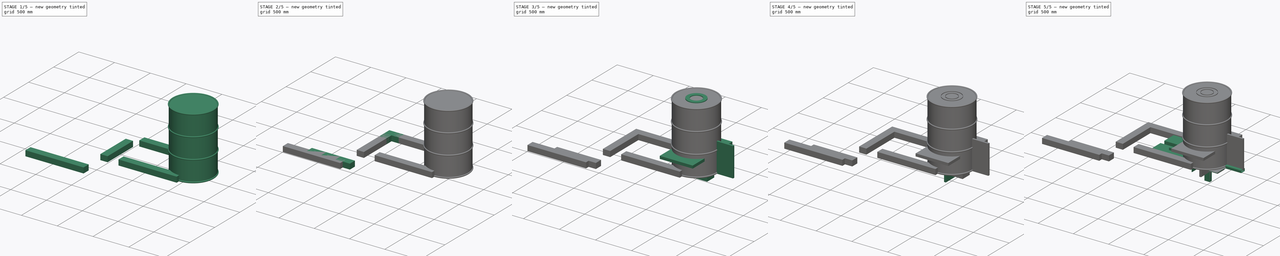
[diagram: build sequence overview — one tinted view per stage of 5, left to right]
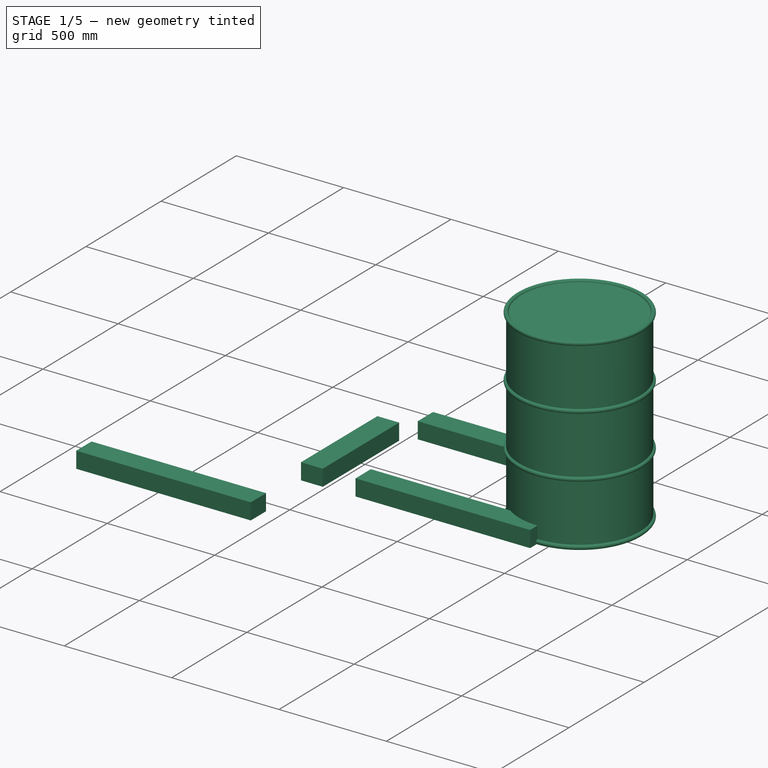
[diagram: stage 1 of 5 — iso view after this stage's code; geometry added in this stage tinted green]
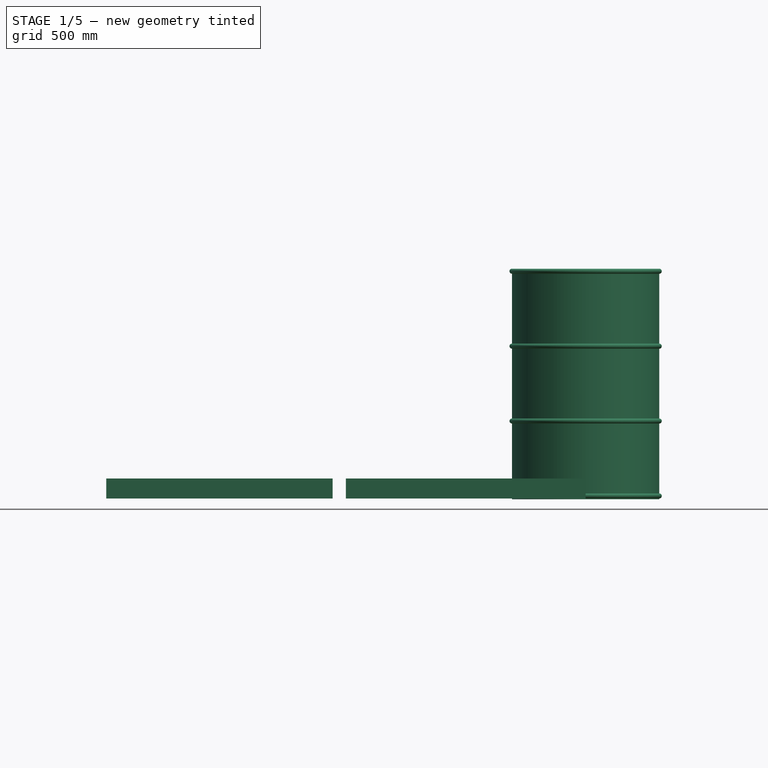
[diagram: stage 1 of 5 — front view after this stage's code; geometry added in this stage tinted green]
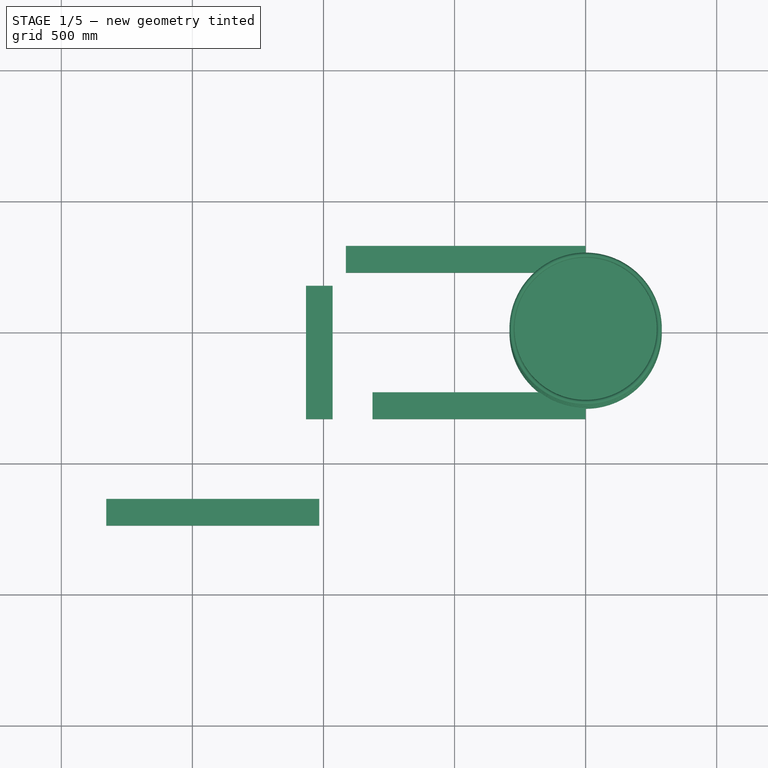
[diagram: stage 1 of 5 — top view after this stage's code; geometry added in this stage tinted green]
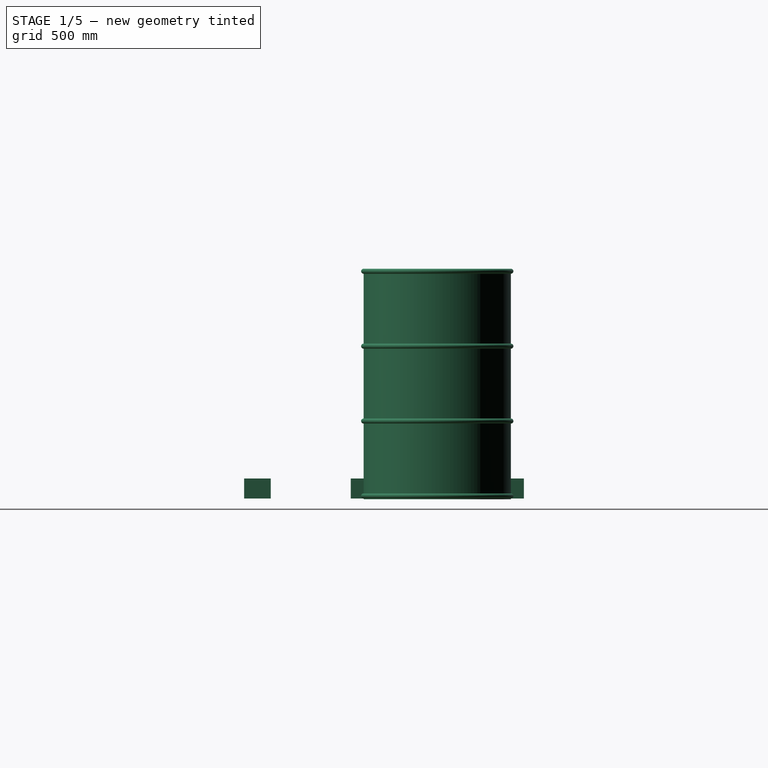
[diagram: stage 1 of 5 — right view after this stage's code; geometry added in this stage tinted green]
FCSTD DOCUMENT  (FreeCAD 0.20R28968 (Git))
Label: BBRH-11x13.5-10
License: All rights reserved
objects: Sketcher::SketchObject×336, PartDesign::Pad×300, PartDesign::Body×299, App::Part×50, Part::FeaturePython×39, PartDesign::Pocket×26, PartDesign::Fillet×21, App::LinkElement×18, PartDesign::Chamfer×9, PartDesign::ShapeBinder×5, PartDesign::FeaturePython×4, PartDesign::Plane×3, PartDesign::CoordinateSystem×3, Part::Helix×3, PartDesign::AdditivePipe×3, PartDesign::Mirrored×2, PartDesign::FeatureBase×2, PartDesign::PolarPattern×2, PartDesign::LinearPattern×1, PartDesign::AdditiveHelix×1, +1 more types
note: 1382 computed .brp shape members not serialized (recipe doc carries the construction recipe); baked Part::Feature solids carry a one-line shape summary decoded from their .brp

FEATURE [PartDesign::Body] Body6669  label="BRICK-1353"
  Group = -> [Sketch8158,Pad7352]
  Origin = -> Origin8691
  Placement = pos=(-812.8,228.6,0) rot=(0,0,1;0rad)
  Tip = -> Pad7352
FEATURE [Sketcher::SketchObject] Sketch8172
  FullyConstrained = true
  MapMode = 5
  Support = -> [XY_Plane8415]
  sketch-geometry (4):
    g0: LineSegment StartX=0 StartY=0 StartZ=0 EndX=-101.6 EndY=0 EndZ=0
    g1: LineSegment StartX=-101.6 StartY=0 StartZ=0 EndX=-101.6 EndY=-152.4 EndZ=0
    g2: LineSegment StartX=-101.6 StartY=-152.4 StartZ=0 EndX=0 EndY=-152.4 EndZ=0
    g3: LineSegment StartX=0 StartY=-152.4 StartZ=0 EndX=0 EndY=0 EndZ=0
  constraints (11):
    c: Coincident(g0,g1)
    c: Coincident(g1,g2)
    c: Coincident(g2,g3)
    c: Coincident(g3,g0)
    c: Horizontal(g0)
    c: Horizontal(g2)
    c: Vertical(g1)
    c: Vertical(g3)
    c: Coincident(g0,g-1)
    c: DistanceX(g2,g2) = 101.6
    c: DistanceY(g3,g3) = 152.4
FEATURE [PartDesign::Pad] Pad7203
  Direction = (0,0,1)
  Length = 76.2
  Length2 = 9.92188
  Profile = -> Sketch8172
  ReferenceAxis = -> Sketch8172 [N_Axis]
  Refine = true
  Type = 0
FEATURE [PartDesign::Body] Body6588  label="BRICK-1424"
  Group = -> [Sketch8282,Pad7272]
  Origin = -> Origin8603
  Placement = pos=(-762,-330.2,-25.4) rot=(0,0,1;0rad)
  Tip = -> Pad7272
FEATURE [Sketcher::SketchObject] Sketch8283
  FullyConstrained = true
  MapMode = 5
  Support = -> [XY_Plane8512]
  sketch-geometry (4):
    g0: LineSegment StartX=0 StartY=0 StartZ=0 EndX=-101.6 EndY=0 EndZ=0
    g1: LineSegment StartX=-101.6 StartY=0 StartZ=0 EndX=-101.6 EndY=203.2 EndZ=0
    g2: LineSegment StartX=-101.6 StartY=203.2 StartZ=0 EndX=0 EndY=203.2 EndZ=0
    g3: LineSegment StartX=0 StartY=203.2 StartZ=0 EndX=0 EndY=0 EndZ=0
  constraints (11):
    c: Coincident(g0,g1)
    c: Coincident(g1,g2)
    c: Coincident(g2,g3)
    c: Coincident(g3,g0)
    c: Horizontal(g0)
    c: Horizontal(g2)
    c: Vertical(g1)
    c: Vertical(g3)
    c: Coincident(g0,g-1)
    c: DistanceX(g2,g2) = 101.6
    c: DistanceY(g1,g1) = 203.2
FEATURE [PartDesign::Pad] Pad7273
  Direction = (0,0,1)
  Length = 76.2
  Length2 = 9.92188
  Profile = -> Sketch8283
  ReferenceAxis = -> Sketch8283 [N_Axis]
  Refine = true
  Type = 0
FEATURE [Sketcher::SketchObject] Sketch8284
  FullyConstrained = true
  MapMode = 5
  Support = -> [XY_Plane8514]
  sketch-geometry (4):
    g0: LineSegment StartX=0 StartY=0 StartZ=0 EndX=-203.2 EndY=0 EndZ=0
    g1: LineSegment StartX=-203.2 StartY=0 StartZ=0 EndX=-203.2 EndY=101.6 EndZ=0
    g2: LineSegment StartX=-203.2 StartY=101.6 StartZ=0 EndX=0 EndY=101.6 EndZ=0
    g3: LineSegment StartX=0 StartY=101.6 StartZ=0 EndX=0 EndY=0 EndZ=0
  constraints (11):
    c: Coincident(g0,g1)
    c: Coincident(g1,g2)
    c: Coincident(g2,g3)
    c: Coincident(g3,g0)
    c: Horizontal(g0)
    c: Horizontal(g2)
    c: Vertical(g1)
    c: Vertical(g3)
    c: Coincident(g0,g-1)
    c: DistanceX(g2,g2) = 203.2
    c: DistanceY(g1,g1) = 101.6
FEATURE [PartDesign::Pad] Pad7274
  Direction = (0,0,1)
  Length = 76.2
  Length2 = 9.92188
  Profile = -> Sketch8284
  ReferenceAxis = -> Sketch8284 [N_Axis]
  Refine = true
  Type = 0
FEATURE [Sketcher::SketchObject] Sketch8285
  FullyConstrained = true
  MapMode = 5
  Support = -> [XY_Plane8515]
  sketch-geometry (4):
    g0: LineSegment StartX=0 StartY=0 StartZ=0 EndX=-101.6 EndY=0 EndZ=0
    g1: LineSegment StartX=-101.6 StartY=0 StartZ=0 EndX=-101.6 EndY=203.2 EndZ=0
    g2: LineSegment StartX=-101.6 StartY=203.2 StartZ=0 EndX=0 EndY=203.2 EndZ=0
    g3: LineSegment StartX=0 StartY=203.2 StartZ=0 EndX=0 EndY=0 EndZ=0
  constraints (11):
    c: Coincident(g0,g1)
    c: Coincident(g1,g2)
    c: Coincident(g2,g3)
    c: Coincident(g3,g0)
    c: Horizontal(g0)
    c: Horizontal(g2)
    c: Vertical(g1)
    c: Vertical(g3)
    c: Coincident(g0,g-1)
    c: DistanceX(g2,g2) = 101.6
    c: DistanceY(g3,g3) = 203.2
FEATURE [PartDesign::Pad] Pad7275
  Direction = (0,0,1)
  Length = 76.2
  Length2 = 9.92188
  Profile = -> Sketch8285
  ReferenceAxis = -> Sketch8285 [N_Axis]
  Refine = true
  Type = 0
FEATURE [PartDesign::Body] Body6591  label="BRICK-1427"
  Group = -> [Sketch8285,Pad7275]
  Origin = -> Origin8608
  Placement = pos=(0,-330.2,0) rot=(0,0,1;0rad)
  Tip = -> Pad7275
FEATURE [Sketcher::SketchObject] Sketch8286
  FullyConstrained = true
  MapMode = 5
  Support = -> [XY_Plane8516]
  sketch-geometry (4):
    g0: LineSegment StartX=0 StartY=0 StartZ=0 EndX=-203.2 EndY=0 EndZ=0
    g1: LineSegment StartX=-203.2 StartY=0 StartZ=0 EndX=-203.2 EndY=101.6 EndZ=0
    g2: LineSegment StartX=-203.2 StartY=101.6 StartZ=0 EndX=0 EndY=101.6 EndZ=0
    g3: LineSegment StartX=0 StartY=101.6 StartZ=0 EndX=0 EndY=0 EndZ=0
  constraints (11):
    c: Coincident(g0,g1)
    c: Coincident(g1,g2)
    c: Coincident(g2,g3)
    c: Coincident(g3,g0)
    c: Horizontal(g0)
    c: Horizontal(g2)
    c: Vertical(g1)
    c: Vertical(g3)
    c: Coincident(g0,g-1)
    c: DistanceX(g2,g2) = 203.2
    c: DistanceY(g1,g1) = 101.6
FEATURE [PartDesign::Pad] Pad7276
  Direction = (0,0,1)
  Length = 76.2
  Length2 = 9.92188
  Profile = -> Sketch8286
  ReferenceAxis = -> Sketch8286 [N_Axis]
  Refine = true
  Type = 0
FEATURE [PartDesign::Body] Body6592  label="BRICK-1428"
  Group = -> [Sketch8286,Pad7276]
  Origin = -> Origin8609
  Placement = pos=(-101.6,0,0) rot=(0,0,1;0rad)
  Tip = -> Pad7276
FEATURE [Part::FeaturePython] Array457  # Draft array (typed FeaturePython)
  AlwaysSyncPlacement = false
  Angle = 360
  ArrayType = 0
  Axis = (0,0,1)
  Base = -> Body6592
  Center = (0,0,0)
  Count = 4
  ExpandArray = false
  Fuse = false
  IntervalAxis = (0,0,0)
  IntervalX = (-203.2,0,0)
  IntervalY = (0,100.012,0)
  IntervalZ = (0,0,100.012)
  NumberCircles = 3
  NumberPolar = 5
  NumberX = 4
  NumberY = 1
  NumberZ = 1
  Placement = pos=(101.6,228.6,0) rot=(0,0,1;0rad)
  PlacementList = 4 placements: arithmetic series from (-101.6,0,0) step (-203.2,0,0) to (-711.2,0,0)
  RadialDistance = 50
  ScaleList = (4) [(1,1,1),(1,1,1),(1,1,1),(1,1,1)]
  Symmetry = 1
  TangentialDistance = 25
FEATURE [Sketcher::SketchObject] Sketch8287
  FullyConstrained = true
  MapMode = 5
  Support = -> [XY_Plane8517]
  sketch-geometry (4):
    g0: LineSegment StartX=0 StartY=0 StartZ=0 EndX=-101.6 EndY=0 EndZ=0
    g1: LineSegment StartX=-101.6 StartY=0 StartZ=0 EndX=-101.6 EndY=-190.5 EndZ=0
    g2: LineSegment StartX=-101.6 StartY=-190.5 StartZ=0 EndX=0 EndY=-190.5 EndZ=0
    g3: LineSegment StartX=0 StartY=-190.5 StartZ=0 EndX=0 EndY=0 EndZ=0
  constraints (11):
    c: Coincident(g0,g1)
    c: Coincident(g1,g2)
    c: Coincident(g2,g3)
    c: Coincident(g3,g0)
    c: Horizontal(g0)
    c: Horizontal(g2)
    c: Vertical(g1)
    c: Vertical(g3)
    c: Coincident(g0,g-1)
    c: DistanceX(g2,g2) = 101.6
    c: DistanceY(g3,g3) = 190.5
FEATURE [PartDesign::Pad] Pad7277
  Direction = (0,0,1)
  Length = 76.2
  Length2 = 9.92188
  Profile = -> Sketch8287
  ReferenceAxis = -> Sketch8287 [N_Axis]
  Refine = true
  Type = 0
FEATURE [PartDesign::Body] Body6593  label="BRICK-1429"
  Group = -> [Sketch8287,Pad7277]
  Origin = -> Origin8610
  Placement = pos=(0,228.6,0) rot=(0,0,1;0rad)
  Tip = -> Pad7277
FEATURE [Sketcher::SketchObject] Sketch8288
  FullyConstrained = true
  MapMode = 5
  Support = -> [XY_Plane8518]
  sketch-geometry (4):
    g0: LineSegment StartX=0 StartY=0 StartZ=0 EndX=-101.6 EndY=0 EndZ=0
    g1: LineSegment StartX=-101.6 StartY=0 StartZ=0 EndX=-101.6 EndY=203.2 EndZ=0
    g2: LineSegment StartX=-101.6 StartY=203.2 StartZ=0 EndX=0 EndY=203.2 EndZ=0
    g3: LineSegment StartX=0 StartY=203.2 StartZ=0 EndX=0 EndY=0 EndZ=0
  constraints (11):
    c: Coincident(g0,g1)
    c: Coincident(g1,g2)
    c: Coincident(g2,g3)
    c: Coincident(g3,g0)
    c: Horizontal(g0)
    c: Horizontal(g2)
    c: Vertical(g1)
    c: Vertical(g3)
    c: Coincident(g0,g-1)
    c: DistanceX(g2,g2) = 101.6
    c: DistanceY(g1,g1) = 203.2
FEATURE [PartDesign::Pad] Pad7278
  Direction = (0,0,1)
  Length = 76.2
  Length2 = 9.92188
  Profile = -> Sketch8288
  ReferenceAxis = -> Sketch8288 [N_Axis]
  Refine = true
  Type = 0
FEATURE [PartDesign::Body] Body6594  label="BRICK-1430"
  Group = -> [Sketch8288,Pad7278]
  Origin = -> Origin8611
  Tip = -> Pad7278
FEATURE [Part::FeaturePython] Array458  # Draft array (typed FeaturePython)
  AlwaysSyncPlacement = false
  Angle = 360
  ArrayType = 0
  Axis = (0,0,1)
  Base = -> Body6594
  Center = (0,0,0)
  Count = 2
  ExpandArray = false
  Fuse = false
  IntervalAxis = (0,0,0)
  IntervalX = (100.012,0,0)
  IntervalY = (0,203.2,0)
  IntervalZ = (0,0,100.012)
  NumberCircles = 3
  NumberPolar = 5
  NumberX = 1
  NumberY = 2
  NumberZ = 1
  Placement = pos=(-965.2,-330.2,3.05176e-05) rot=(0,0,1;0rad)
  PlacementList = 2 placements: [(0,0,0),(0,203.2,0)]
  RadialDistance = 50
  ScaleList = (2) [(1,1,1),(1,1,1)]
  Symmetry = 1
  TangentialDistance = 25
FEATURE [Sketcher::SketchObject] Sketch8289
  FullyConstrained = true
  MapMode = 5
  Support = -> [XY_Plane8520]
  sketch-geometry (4):
    g0: LineSegment StartX=0 StartY=0 StartZ=0 EndX=-203.2 EndY=0 EndZ=0
    g1: LineSegment StartX=-203.2 StartY=0 StartZ=0 EndX=-203.2 EndY=101.6 EndZ=0
    g2: LineSegment StartX=-203.2 StartY=101.6 StartZ=0 EndX=0 EndY=101.6 EndZ=0
    g3: LineSegment StartX=0 StartY=101.6 StartZ=0 EndX=0 EndY=0 EndZ=0
  constraints (11):
    c: Coincident(g0,g1)
    c: Coincident(g1,g2)
    c: Coincident(g2,g3)
    c: Coincident(g3,g0)
    c: Horizontal(g0)
    c: Horizontal(g2)
    c: Vertical(g1)
    c: Vertical(g3)
    c: Coincident(g0,g-1)
    c: DistanceX(g2,g2) = 203.2
    c: DistanceY(g1,g1) = 101.6
FEATURE [PartDesign::Pad] Pad7279
  Direction = (0,0,1)
  Length = 76.2
  Length2 = 9.92188
  Profile = -> Sketch8289
  ReferenceAxis = -> Sketch8289 [N_Axis]
  Refine = true
  Type = 0
FEATURE [PartDesign::Body] Body6595  label="BRICK-1431"
  Group = -> [Sketch8289,Pad7279]
  Origin = -> Origin8613
  Placement = pos=(-101.6,0,0) rot=(0,0,1;0rad)
  Tip = -> Pad7279
FEATURE [Part::FeaturePython] Array459  # Draft array (typed FeaturePython)
  AlwaysSyncPlacement = false
  Angle = 360
  ArrayType = 0
  Axis = (0,0,1)
  Base = -> Body6595
  Center = (0,0,0)
  Count = 4
  ExpandArray = false
  Fuse = false
  IntervalAxis = (0,0,0)
  IntervalX = (-203.2,0,0)
  IntervalY = (0,100.012,0)
  IntervalZ = (0,0,100.012)
  NumberCircles = 3
  NumberPolar = 5
  NumberX = 4
  NumberY = 1
  NumberZ = 1
  Placement = pos=(101.6,-330.2,0) rot=(0,0,1;0rad)
  PlacementList = 4 placements: arithmetic series from (-101.6,0,0) step (-203.2,0,0) to (-711.2,0,0)
  RadialDistance = 50
  ScaleList = (4) [(1,1,1),(1,1,1),(1,1,1),(1,1,1)]
  Symmetry = 1
  TangentialDistance = 25
FEATURE [Sketcher::SketchObject] Sketch8290
  FullyConstrained = true
  MapMode = 5
  Support = -> [XY_Plane8521]
  sketch-geometry (4):
    g0: LineSegment StartX=0 StartY=0 StartZ=0 EndX=-203.2 EndY=0 EndZ=0
    g1: LineSegment StartX=-203.2 StartY=0 StartZ=0 EndX=-203.2 EndY=101.6 EndZ=0
    g2: LineSegment StartX=-203.2 StartY=101.6 StartZ=0 EndX=0 EndY=101.6 EndZ=0
    g3: LineSegment StartX=0 StartY=101.6 StartZ=0 EndX=0 EndY=0 EndZ=0
  constraints (11):
    c: Coincident(g0,g1)
    c: Coincident(g1,g2)
    c: Coincident(g2,g3)
    c: Coincident(g3,g0)
    c: Horizontal(g0)
    c: Horizontal(g2)
    c: Vertical(g1)
    c: Vertical(g3)
    c: Coincident(g0,g-1)
    c: DistanceX(g2,g2) = 203.2
    c: DistanceY(g1,g1) = 101.6
FEATURE [PartDesign::Pad] Pad7280
  Direction = (0,0,1)
  Length = 76.2
  Length2 = 9.92188
  Profile = -> Sketch8290
  ReferenceAxis = -> Sketch8290 [N_Axis]
  Refine = true
  Type = 0
FEATURE [PartDesign::Body] Body6596  label="BRICK-1432"
  Group = -> [Sketch8290,Pad7280]
  Origin = -> Origin8614
  Placement = pos=(-101.6,0,0) rot=(0,0,1;0rad)
  Tip = -> Pad7280
FEATURE [Part::FeaturePython] Array460  # Draft array (typed FeaturePython)
  AlwaysSyncPlacement = false
  Angle = 360
  ArrayType = 0
  Axis = (0,0,1)
  Base = -> Body6596
  Center = (0,0,0)
  Count = 4
  ExpandArray = false
  Fuse = false
  IntervalAxis = (0,0,0)
  IntervalX = (-203.2,0,0)
  IntervalY = (0,100.012,0)
  IntervalZ = (0,0,100.012)
  NumberCircles = 3
  NumberPolar = 5
  NumberX = 4
  NumberY = 1
  NumberZ = 1
  Placement = pos=(0,228.6,0) rot=(0,0,1;0rad)
  PlacementList = 4 placements: arithmetic series from (-101.6,0,0) step (-203.2,0,0) to (-711.2,0,0)
  RadialDistance = 50
  ScaleList = (4) [(1,1,1),(1,1,1),(1,1,1),(1,1,1)]
  Symmetry = 1
  TangentialDistance = 25
FEATURE [Sketcher::SketchObject] Sketch8291
  FullyConstrained = true
  MapMode = 5
  Support = -> [XY_Plane8522]
  sketch-geometry (4):
    g0: LineSegment StartX=0 StartY=0 StartZ=0 EndX=-101.6 EndY=0 EndZ=0
    g1: LineSegment StartX=-101.6 StartY=0 StartZ=0 EndX=-101.6 EndY=190.5 EndZ=0
    g2: LineSegment StartX=-101.6 StartY=190.5 StartZ=0 EndX=0 EndY=190.5 EndZ=0
    g3: LineSegment StartX=0 StartY=190.5 StartZ=0 EndX=0 EndY=0 EndZ=0
  constraints (11):
    c: Coincident(g0,g1)
    c: Coincident(g1,g2)
    c: Coincident(g2,g3)
    c: Coincident(g3,g0)
    c: Horizontal(g0)
    c: Horizontal(g2)
    c: Vertical(g1)
    c: Vertical(g3)
    c: Coincident(g0,g-1)
    c: DistanceX(g2,g2) = 101.6
    c: DistanceY(g1,g1) = 190.5
FEATURE [PartDesign::Pad] Pad7281
  Direction = (0,0,1)
  Length = 76.2
  Length2 = 9.92188
  Profile = -> Sketch8291
  ReferenceAxis = -> Sketch8291 [N_Axis]
  Refine = true
  Type = 0
FEATURE [PartDesign::Body] Body6597  label="BRICK-1433"
  Group = -> [Sketch8291,Pad7281]
  Origin = -> Origin8615
  Placement = pos=(0,-228.6,0) rot=(0,0,1;0rad)
  Tip = -> Pad7281
FEATURE [Sketcher::SketchObject] Sketch8292
  FullyConstrained = true
  MapMode = 5
  Support = -> [XY_Plane8523]
  sketch-geometry (4):
    g0: LineSegment StartX=0 StartY=0 StartZ=0 EndX=-101.6 EndY=0 EndZ=0
    g1: LineSegment StartX=-101.6 StartY=0 StartZ=0 EndX=-101.6 EndY=-203.2 EndZ=0
    g2: LineSegment StartX=-101.6 StartY=-203.2 StartZ=0 EndX=0 EndY=-203.2 EndZ=0
    g3: LineSegment StartX=0 StartY=-203.2 StartZ=0 EndX=0 EndY=0 EndZ=0
  constraints (11):
    c: Coincident(g0,g1)
    c: Coincident(g1,g2)
    c: Coincident(g2,g3)
    c: Coincident(g3,g0)
    c: Horizontal(g0)
    c: Horizontal(g2)
    c: Vertical(g1)
    c: Vertical(g3)
    c: Coincident(g0,g-1)
    c: DistanceX(g2,g2) = 101.6
    c: DistanceY(g3,g3) = 203.2
FEATURE [PartDesign::Pad] Pad7282
  Direction = (0,0,1)
  Length = 76.2
  Length2 = 9.92188
  Profile = -> Sketch8292
  ReferenceAxis = -> Sketch8292 [N_Axis]
  Refine = true
  Type = 0
FEATURE [PartDesign::Body] Body6598  label="BRICK-1434"
  Group = -> [Sketch8292,Pad7282]
  Origin = -> Origin8616
  Placement = pos=(0,330.2,0) rot=(0,0,1;0rad)
  Tip = -> Pad7282
FEATURE [Sketcher::SketchObject] Sketch8293
  FullyConstrained = true
  MapMode = 5
  Support = -> [XY_Plane8524]
  sketch-geometry (4):
    g0: LineSegment StartX=0 StartY=0 StartZ=0 EndX=-101.6 EndY=0 EndZ=0
    g1: LineSegment StartX=-101.6 StartY=0 StartZ=0 EndX=-101.6 EndY=203.2 EndZ=0
    g2: LineSegment StartX=-101.6 StartY=203.2 StartZ=0 EndX=0 EndY=203.2 EndZ=0
    g3: LineSegment StartX=0 StartY=203.2 StartZ=0 EndX=0 EndY=0 EndZ=0
  constraints (11):
    c: Coincident(g0,g1)
    c: Coincident(g1,g2)
    c: Coincident(g2,g3)
    c: Coincident(g3,g0)
    c: Horizontal(g0)
    c: Horizontal(g2)
    c: Vertical(g1)
    c: Vertical(g3)
    c: Coincident(g0,g-1)
    c: DistanceX(g2,g2) = 101.6
    c: DistanceY(g1,g1) = 203.2
FEATURE [PartDesign::Pad] Pad7283
  Direction = (0,0,1)
  Length = 76.2
  Length2 = 9.92188
  Profile = -> Sketch8293
  ReferenceAxis = -> Sketch8293 [N_Axis]
  Refine = true
  Type = 0
FEATURE [PartDesign::Body] Body6599  label="BRICK-1435"
  Group = -> [Sketch8293,Pad7283]
  Origin = -> Origin8617
  Tip = -> Pad7283
FEATURE [Part::FeaturePython] Array461  # Draft array (typed FeaturePython)
  AlwaysSyncPlacement = false
  Angle = 360
  ArrayType = 0
  Axis = (0,0,1)
  Base = -> Body6599
  Center = (0,0,0)
  Count = 2
  ExpandArray = false
  Fuse = false
  IntervalAxis = (0,0,0)
  IntervalX = (100.012,0,0)
  IntervalY = (0,203.2,0)
  IntervalZ = (0,0,100.012)
  NumberCircles = 3
  NumberPolar = 5
  NumberX = 1
  NumberY = 2
  NumberZ = 1
  Placement = pos=(-965.2,-228.6,6.10352e-05) rot=(0,0,1;0rad)
  PlacementList = 2 placements: [(0,0,0),(0,203.2,0)]
  RadialDistance = 50
  ScaleList = (2) [(1,1,1),(1,1,1)]
  Symmetry = 1
  TangentialDistance = 25
FEATURE [Sketcher::SketchObject] Sketch8294
  FullyConstrained = true
  MapMode = 5
  Support = -> [XY_Plane8526]
  sketch-geometry (4):
    g0: LineSegment StartX=0 StartY=0 StartZ=0 EndX=-203.2 EndY=0 EndZ=0
    g1: LineSegment StartX=-203.2 StartY=0 StartZ=0 EndX=-203.2 EndY=101.6 EndZ=0
    g2: LineSegment StartX=-203.2 StartY=101.6 StartZ=0 EndX=0 EndY=101.6 EndZ=0
    g3: LineSegment StartX=0 StartY=101.6 StartZ=0 EndX=0 EndY=0 EndZ=0
  constraints (11):
    c: Coincident(g0,g1)
    c: Coincident(g1,g2)
    c: Coincident(g2,g3)
    c: Coincident(g3,g0)
    c: Horizontal(g0)
    c: Horizontal(g2)
    c: Vertical(g1)
    c: Vertical(g3)
    c: Coincident(g0,g-1)
    c: DistanceX(g2,g2) = 203.2
    c: DistanceY(g1,g1) = 101.6
FEATURE [PartDesign::Pad] Pad7284
  Direction = (0,0,1)
  Length = 76.2
  Length2 = 9.92188
  Profile = -> Sketch8294
  ReferenceAxis = -> Sketch8294 [N_Axis]
  Refine = true
  Type = 0
FEATURE [PartDesign::Body] Body6600  label="BRICK-1436"
  Group = -> [Sketch8294,Pad7284]
  Origin = -> Origin8619
  Placement = pos=(-1016,-406.4,0) rot=(0,0,1;0rad)
  Tip = -> Pad7284
FEATURE [Part::FeaturePython] Array462  # Draft array (typed FeaturePython)
  AlwaysSyncPlacement = false
  Angle = 360
  ArrayType = 0
  Axis = (0,0,1)
  Base = -> Body6600
  Center = (0,0,0)
  Count = 4
  ElementList = -> [Array005_i121,Array005_i122,Array005_i123,Array005_i124]
  ExpandArray = true
  Fuse = false
  IntervalAxis = (0,0,0)
  IntervalX = (-203.2,0,0)
  IntervalY = (0,100.012,0)
  IntervalZ = (0,0,100.012)
  NumberCircles = 3
  NumberPolar = 5
  NumberX = 4
  NumberY = 1
  NumberZ = 1
  Placement = pos=(1.52588e-05,-330.2,6.10352e-05) rot=(0,0,1;0rad)
  PlacementList = 4 placements: arithmetic series from (-1016,-406.4,0) step (-203.2,0,0) to (-1625.6,-406.4,0)
  RadialDistance = 50
  Symmetry = 1
  TangentialDistance = 25
FEATURE [Sketcher::SketchObject] Sketch8295
  FullyConstrained = true
  MapMode = 5
  Support = -> [XY_Plane8527]
  sketch-geometry (4):
    g0: LineSegment StartX=0 StartY=0 StartZ=0 EndX=-101.6 EndY=0 EndZ=0
    g1: LineSegment StartX=-101.6 StartY=0 StartZ=0 EndX=-101.6 EndY=171.45 EndZ=0
    g2: LineSegment StartX=-101.6 StartY=171.45 StartZ=0 EndX=0 EndY=171.45 EndZ=0
    g3: LineSegment StartX=0 StartY=171.45 StartZ=0 EndX=0 EndY=0 EndZ=0
  constraints (11):
    c: Coincident(g0,g1)
    c: Coincident(g1,g2)
    c: Coincident(g2,g3)
    c: Coincident(g3,g0)
    c: Horizontal(g0)
    c: Horizontal(g2)
    c: Vertical(g1)
    c: Vertical(g3)
    c: Coincident(g0,g-1)
    c: DistanceX(g2,g2) = 101.6
    c: DistanceY(g3,g3) = 171.45
FEATURE [PartDesign::Pad] Pad7285
  Direction = (0,0,1)
  Length = 76.2
  Length2 = 9.92188
  Profile = -> Sketch8295
  ReferenceAxis = -> Sketch8295 [N_Axis]
  Refine = true
  Type = 0
FEATURE [PartDesign::Body] Body6601  label="BRICK-1437"
  Group = -> [Sketch8295,Pad7285]
  Origin = -> Origin8620
  Placement = pos=(0,-330.2,0) rot=(0,0,1;0rad)
  Tip = -> Pad7285
FEATURE [Sketcher::SketchObject] Sketch8296
  FullyConstrained = true
  MapMode = 5
  Support = -> [XY_Plane8528]
  sketch-geometry (4):
    g0: LineSegment StartX=0 StartY=0 StartZ=0 EndX=-203.2 EndY=0 EndZ=0
    g1: LineSegment StartX=-203.2 StartY=0 StartZ=0 EndX=-203.2 EndY=101.6 EndZ=0
    g2: LineSegment StartX=-203.2 StartY=101.6 StartZ=0 EndX=0 EndY=101.6 EndZ=0
    g3: LineSegment StartX=0 StartY=101.6 StartZ=0 EndX=0 EndY=0 EndZ=0
  constraints (11):
    c: Coincident(g0,g1)
    c: Coincident(g1,g2)
    c: Coincident(g2,g3)
    c: Coincident(g3,g0)
    c: Horizontal(g0)
    c: Horizontal(g2)
    c: Vertical(g1)
    c: Vertical(g3)
    c: Coincident(g0,g-1)
    c: DistanceX(g2,g2) = 203.2
    c: DistanceY(g1,g1) = 101.6
FEATURE [PartDesign::Pad] Pad7286
  Direction = (0,0,1)
  Length = 76.2
  Length2 = 9.92188
  Profile = -> Sketch8296
  ReferenceAxis = -> Sketch8296 [N_Axis]
  Refine = true
  Type = 0
FEATURE [PartDesign::Body] Body6602  label="BRICK-1438"
  Group = -> [Sketch8296,Pad7286]
  Origin = -> Origin8621
  Placement = pos=(-101.6,0,0) rot=(0,0,1;0rad)
  Tip = -> Pad7286
FEATURE [Part::FeaturePython] Array463  # Draft array (typed FeaturePython)
  AlwaysSyncPlacement = false
  Angle = 360
  ArrayType = 0
  Axis = (0,0,1)
  Base = -> Body6602
  Center = (0,0,0)
  Count = 4
  ExpandArray = false
  Fuse = false
  IntervalAxis = (0,0,0)
  IntervalX = (-203.2,0,0)
  IntervalY = (0,100.012,0)
  IntervalZ = (0,0,100.012)
  NumberCircles = 3
  NumberPolar = 5
  NumberX = 4
  NumberY = 1
  NumberZ = 1
  Placement = pos=(101.6,228.6,0) rot=(0,0,1;0rad)
  PlacementList = 4 placements: arithmetic series from (-101.6,0,0) step (-203.2,0,0) to (-711.2,0,0)
  RadialDistance = 50
  ScaleList = (4) [(1,1,1),(1,1,1),(1,1,1),(1,1,1)]
  Symmetry = 1
  TangentialDistance = 25
FEATURE [Sketcher::SketchObject] Sketch8297
  FullyConstrained = true
  MapMode = 5
  Support = -> [XY_Plane8529]
  sketch-geometry (4):
    g0: LineSegment StartX=0 StartY=0 StartZ=0 EndX=-101.6 EndY=0 EndZ=0
    g1: LineSegment StartX=-101.6 StartY=0 StartZ=0 EndX=-101.6 EndY=-69.85 EndZ=0
    g2: LineSegment StartX=-101.6 StartY=-69.85 StartZ=0 EndX=0 EndY=-69.85 EndZ=0
    g3: LineSegment StartX=0 StartY=-69.85 StartZ=0 EndX=0 EndY=0 EndZ=0
  constraints (11):
    c: Coincident(g0,g1)
    c: Coincident(g1,g2)
    c: Coincident(g2,g3)
    c: Coincident(g3,g0)
    c: Horizontal(g0)
    c: Horizontal(g2)
    c: Vertical(g1)
    c: Vertical(g3)
    c: Coincident(g0,g-1)
    c: DistanceX(g2,g2) = 101.6
    c: DistanceY(g3,g3) = 69.85
FEATURE [PartDesign::Pad] Pad7287
  Direction = (0,0,1)
  Length = 76.2
  Length2 = 9.92188
  Profile = -> Sketch8297
  ReferenceAxis = -> Sketch8297 [N_Axis]
  Refine = true
  Type = 0
FEATURE [PartDesign::Body] Body6603  label="BRICK-1439"
  Group = -> [Sketch8297,Pad7287]
  Origin = -> Origin8622
  Placement = pos=(0,228.6,0) rot=(0,0,1;0rad)
  Tip = -> Pad7287
FEATURE [Sketcher::SketchObject] Sketch8298
  FullyConstrained = true
  MapMode = 5
  Support = -> [XY_Plane8530]
  sketch-geometry (4):
    g0: LineSegment StartX=0 StartY=0 StartZ=0 EndX=-101.6 EndY=0 EndZ=0
    g1: LineSegment StartX=-101.6 StartY=0 StartZ=0 EndX=-101.6 EndY=203.2 EndZ=0
    g2: LineSegment StartX=-101.6 StartY=203.2 StartZ=0 EndX=0 EndY=203.2 EndZ=0
    g3: LineSegment StartX=0 StartY=203.2 StartZ=0 EndX=0 EndY=0 EndZ=0
  constraints (11):
    c: Coincident(g0,g1)
    c: Coincident(g1,g2)
    c: Coincident(g2,g3)
    c: Coincident(g3,g0)
    c: Horizontal(g0)
    c: Horizontal(g2)
    c: Vertical(g1)
    c: Vertical(g3)
    c: Coincident(g0,g-1)
    c: DistanceX(g2,g2) = 101.6
    c: DistanceY(g1,g1) = 203.2
FEATURE [PartDesign::Pad] Pad7288
  Direction = (0,0,1)
  Length = 76.2
  Length2 = 9.92188
  Profile = -> Sketch8298
  ReferenceAxis = -> Sketch8298 [N_Axis]
  Refine = true
  Type = 0
FEATURE [PartDesign::Body] Body6604  label="BRICK-1440"
  Group = -> [Sketch8298,Pad7288]
  Origin = -> Origin8623
  Tip = -> Pad7288
FEATURE [Part::FeaturePython] Array464  # Draft array (typed FeaturePython)
  AlwaysSyncPlacement = false
  Angle = 360
  ArrayType = 0
  Axis = (0,0,1)
  Base = -> Body6604
  Center = (0,0,0)
  Count = 2
  ExpandArray = false
  Fuse = false
  IntervalAxis = (0,0,0)
  IntervalX = (100.012,0,0)
  IntervalY = (0,203.2,0)
  IntervalZ = (0,0,100.012)
  NumberCircles = 3
  NumberPolar = 5
  NumberX = 1
  NumberY = 2
  NumberZ = 1
  Placement = pos=(-965.2,-330.2,0) rot=(0,0,1;0rad)
  PlacementList = 2 placements: [(0,0,0),(0,203.2,0)]
  RadialDistance = 50
  ScaleList = (2) [(1,1,1),(1,1,1)]
  Symmetry = 1
  TangentialDistance = 25
FEATURE [Sketcher::SketchObject] Sketch8299
  FullyConstrained = true
  MapMode = 5
  Support = -> [XY_Plane8532]
  sketch-geometry (4):
    g0: LineSegment StartX=0 StartY=0 StartZ=0 EndX=-203.2 EndY=0 EndZ=0
    g1: LineSegment StartX=-203.2 StartY=0 StartZ=0 EndX=-203.2 EndY=101.6 EndZ=0
    g2: LineSegment StartX=-203.2 StartY=101.6 StartZ=0 EndX=0 EndY=101.6 EndZ=0
    g3: LineSegment StartX=0 StartY=101.6 StartZ=0 EndX=0 EndY=0 EndZ=0
  constraints (11):
    c: Coincident(g0,g1)
    c: Coincident(g1,g2)
    c: Coincident(g2,g3)
    c: Coincident(g3,g0)
    c: Horizontal(g0)
    c: Horizontal(g2)
    c: Vertical(g1)
    c: Vertical(g3)
    c: Coincident(g0,g-1)
    c: DistanceX(g2,g2) = 203.2
    c: DistanceY(g1,g1) = 101.6
FEATURE [PartDesign::Pad] Pad7289
  Direction = (0,0,1)
  Length = 76.2
  Length2 = 9.92188
  Profile = -> Sketch8299
  ReferenceAxis = -> Sketch8299 [N_Axis]
  Refine = true
  Type = 0
FEATURE [PartDesign::Body] Body6605  label="BRICK-1441"
  Group = -> [Sketch8299,Pad7289]
  Origin = -> Origin8625
  Placement = pos=(-101.6,0,0) rot=(0,0,1;0rad)
  Tip = -> Pad7289
FEATURE [Part::FeaturePython] Array465  # Draft array (typed FeaturePython)
  AlwaysSyncPlacement = false
  Angle = 360
  ArrayType = 0
  Axis = (0,0,1)
  Base = -> Body6605
  Center = (0,0,0)
  Count = 4
  ExpandArray = false
  Fuse = false
  IntervalAxis = (0,0,0)
  IntervalX = (-203.2,0,0)
  IntervalY = (0,100.012,0)
  IntervalZ = (0,0,100.012)
  NumberCircles = 3
  NumberPolar = 5
  NumberX = 4
  NumberY = 1
  NumberZ = 1
  Placement = pos=(101.6,-330.2,0) rot=(0,0,1;0rad)
  PlacementList = 4 placements: arithmetic series from (-101.6,0,0) step (-203.2,0,0) to (-711.2,0,0)
  RadialDistance = 50
  ScaleList = (4) [(1,1,1),(1,1,1),(1,1,1),(1,1,1)]
  Symmetry = 1
  TangentialDistance = 25
FEATURE [Sketcher::SketchObject] Sketch8300
  FullyConstrained = false
  MapMode = 5
  Support = -> [XY_Plane8533]
  sketch-geometry (4):
    g0: LineSegment StartX=0 StartY=0 StartZ=0 EndX=-101.6 EndY=0 EndZ=0
    g1: LineSegment StartX=-101.6 StartY=0 StartZ=0 EndX=-101.6 EndY=203.2 EndZ=0
    g2: LineSegment StartX=-101.6 StartY=203.2 StartZ=0 EndX=0 EndY=203.2 EndZ=0
    g3: LineSegment StartX=0 StartY=203.2 StartZ=0 EndX=0 EndY=0 EndZ=0
  constraints (10):
    c: Coincident(g0,g1)
    c: Coincident(g1,g2)
    c: Coincident(g2,g3)
    c: Coincident(g3,g0)
    c: Horizontal(g0)
    c: Horizontal(g2)
    c: Vertical(g1)
    c: Vertical(g3)
    c: Coincident(g0,g-1)
    c: DistanceX(g2,g2) = 101.6
FEATURE [PartDesign::Pad] Pad7290
  Direction = (0,0,1)
  Length = 76.2
  Length2 = 9.92188
  Profile = -> Sketch8300
  ReferenceAxis = -> Sketch8300 [N_Axis]
  Refine = true
  Type = 0
FEATURE [PartDesign::Body] Body6606  label="BRICK-1442"
  Group = -> [Sketch8300,Pad7290]
  Origin = -> Origin8626
  Tip = -> Pad7290
FEATURE [Sketcher::SketchObject] Sketch8301
  FullyConstrained = true
  MapMode = 5
  Support = -> [XY_Plane8534]
  sketch-geometry (4):
    g0: LineSegment StartX=0 StartY=0 StartZ=0 EndX=-203.2 EndY=0 EndZ=0
    g1: LineSegment StartX=-203.2 StartY=0 StartZ=0 EndX=-203.2 EndY=101.6 EndZ=0
    g2: LineSegment StartX=-203.2 StartY=101.6 StartZ=0 EndX=0 EndY=101.6 EndZ=0
    g3: LineSegment StartX=0 StartY=101.6 StartZ=0 EndX=0 EndY=0 EndZ=0
  constraints (11):
    c: Coincident(g0,g1)
    c: Coincident(g1,g2)
    c: Coincident(g2,g3)
    c: Coincident(g3,g0)
    c: Horizontal(g0)
    c: Horizontal(g2)
    c: Vertical(g1)
    c: Vertical(g3)
    c: Coincident(g0,g-1)
    c: DistanceX(g2,g2) = 203.2
    c: DistanceY(g1,g1) = 101.6
FEATURE [PartDesign::Pad] Pad7291
  Direction = (0,0,1)
  Length = 76.2
  Length2 = 9.92188
  Profile = -> Sketch8301
  ReferenceAxis = -> Sketch8301 [N_Axis]
  Refine = true
  Type = 0
FEATURE [PartDesign::Body] Body6607  label="BRICK-1443"
  Group = -> [Sketch8301,Pad7291]
  Origin = -> Origin8627
  Placement = pos=(-101.6,0,0) rot=(0,0,1;0rad)
  Tip = -> Pad7291
FEATURE [Part::FeaturePython] Array466  # Draft array (typed FeaturePython)
  AlwaysSyncPlacement = false
  Angle = 360
  ArrayType = 0
  Axis = (0,0,1)
  Base = -> Body6607
  Center = (0,0,0)
  Count = 4
  ExpandArray = false
  Fuse = false
  IntervalAxis = (0,0,0)
  IntervalX = (-203.2,0,0)
  IntervalY = (0,100.012,0)
  IntervalZ = (0,0,100.012)
  NumberCircles = 3
  NumberPolar = 5
  NumberX = 4
  NumberY = 1
  NumberZ = 1
  Placement = pos=(0,228.6,0) rot=(0,0,1;0rad)
  PlacementList = 4 placements: arithmetic series from (-101.6,0,0) step (-203.2,0,0) to (-711.2,0,0)
  RadialDistance = 50
  ScaleList = (4) [(1,1,1),(1,1,1),(1,1,1),(1,1,1)]
  Symmetry = 1
  TangentialDistance = 25
FEATURE [Sketcher::SketchObject] Sketch8302
  FullyConstrained = true
  MapMode = 5
  Support = -> [XY_Plane8535]
  sketch-geometry (4):
    g0: LineSegment StartX=0 StartY=0 StartZ=0 EndX=-101.6 EndY=0 EndZ=0
    g1: LineSegment StartX=-101.6 StartY=0 StartZ=0 EndX=-101.6 EndY=69.85 EndZ=0
    g2: LineSegment StartX=-101.6 StartY=69.85 StartZ=0 EndX=0 EndY=69.85 EndZ=0
    g3: LineSegment StartX=0 StartY=69.85 StartZ=0 EndX=0 EndY=0 EndZ=0
  constraints (11):
    c: Coincident(g0,g1)
    c: Coincident(g1,g2)
    c: Coincident(g2,g3)
    c: Coincident(g3,g0)
    c: Horizontal(g0)
    c: Horizontal(g2)
    c: Vertical(g1)
    c: Vertical(g3)
    c: Coincident(g0,g-1)
    c: DistanceX(g2,g2) = 101.6
    c: DistanceY(g1,g1) = 69.85
FEATURE [PartDesign::Pad] Pad7292
  Direction = (0,0,1)
  Length = 76.2
  Length2 = 9.92188
  Profile = -> Sketch8302
  ReferenceAxis = -> Sketch8302 [N_Axis]
  Refine = true
  Type = 0
FEATURE [PartDesign::Body] Body6608  label="BRICK-1444"
  Group = -> [Sketch8302,Pad7292]
  Origin = -> Origin8628
  Placement = pos=(0,-228.6,0) rot=(0,0,1;0rad)
  Tip = -> Pad7292
FEATURE [Sketcher::SketchObject] Sketch8303
  FullyConstrained = true
  MapMode = 5
  Support = -> [XY_Plane8536]
  sketch-geometry (4):
    g0: LineSegment StartX=0 StartY=0 StartZ=0 EndX=-101.6 EndY=0 EndZ=0
    g1: LineSegment StartX=-101.6 StartY=0 StartZ=0 EndX=-101.6 EndY=-171.45 EndZ=0
    g2: LineSegment StartX=-101.6 StartY=-171.45 StartZ=0 EndX=0 EndY=-171.45 EndZ=0
    g3: LineSegment StartX=0 StartY=-171.45 StartZ=0 EndX=0 EndY=0 EndZ=0
  constraints (11):
    c: Coincident(g0,g1)
    c: Coincident(g1,g2)
    c: Coincident(g2,g3)
    c: Coincident(g3,g0)
    c: Horizontal(g0)
    c: Horizontal(g2)
    c: Vertical(g1)
    c: Vertical(g3)
    c: Coincident(g0,g-1)
    c: DistanceX(g2,g2) = 101.6
    c: DistanceY(g3,g3) = 171.45
FEATURE [PartDesign::Pad] Pad7293
  Direction = (0,0,1)
  Length = 76.2
  Length2 = 9.92188
  Profile = -> Sketch8303
  ReferenceAxis = -> Sketch8303 [N_Axis]
  Refine = true
  Type = 0
FEATURE [PartDesign::Body] Body6618  label="BRICK-1454"
  Group = -> [Sketch8316,Pad7302]
  Origin = -> Origin8639
  Placement = pos=(0,127,0) rot=(0,0,1;0rad)
  Tip = -> Pad7302
FEATURE [Sketcher::SketchObject] Sketch8317
  FullyConstrained = true
  MapMode = 5
  Support = -> [XY_Plane8553]
  sketch-geometry (4):
    g0: LineSegment StartX=0 StartY=0 StartZ=0 EndX=-101.6 EndY=0 EndZ=0
    g1: LineSegment StartX=-101.6 StartY=0 StartZ=0 EndX=-101.6 EndY=203.2 EndZ=0
    g2: LineSegment StartX=-101.6 StartY=203.2 StartZ=0 EndX=0 EndY=203.2 EndZ=0
    g3: LineSegment StartX=0 StartY=203.2 StartZ=0 EndX=0 EndY=0 EndZ=0
  constraints (11):
    c: Coincident(g0,g1)
    c: Coincident(g1,g2)
    c: Coincident(g2,g3)
    c: Coincident(g3,g0)
    c: Horizontal(g0)
    c: Horizontal(g2)
    c: Vertical(g1)
    c: Vertical(g3)
    c: Coincident(g0,g-1)
    c: DistanceX(g2,g2) = 101.6
    c: DistanceY(g1,g1) = 203.2
FEATURE [PartDesign::Pad] Pad7307
  Direction = (0,0,1)
  Length = 76.2
  Length2 = 9.92188
  Profile = -> Sketch8317
  ReferenceAxis = -> Sketch8317 [N_Axis]
  Refine = true
  Type = 0
FEATURE [PartDesign::Body] Body6623  label="BRICK-1459"
  Group = -> [Sketch8317,Pad7307]
  Origin = -> Origin8646
  Placement = pos=(-1066.8,228.6,0) rot=(0,0,1;3.14159rad)
  Tip = -> Pad7307
FEATURE [Sketcher::SketchObject] Sketch8318
  FullyConstrained = true
  MapMode = 5
  Support = -> [XY_Plane8555]
  sketch-geometry (4):
    g0: LineSegment StartX=0 StartY=0 StartZ=0 EndX=-152.4 EndY=0 EndZ=0
    g1: LineSegment StartX=-152.4 StartY=0 StartZ=0 EndX=-152.4 EndY=101.6 EndZ=0
    g2: LineSegment StartX=-152.4 StartY=101.6 StartZ=0 EndX=0 EndY=101.6 EndZ=0
    g3: LineSegment StartX=0 StartY=101.6 StartZ=0 EndX=0 EndY=0 EndZ=0
  constraints (11):
    c: Coincident(g0,g1)
    c: Coincident(g1,g2)
    c: Coincident(g2,g3)
    c: Coincident(g3,g0)
    c: Horizontal(g0)
    c: Horizontal(g2)
    c: Vertical(g1)
    c: Vertical(g3)
    c: Coincident(g0,g-1)
    c: DistanceX(g2,g2) = 152.4
    c: DistanceY(g1,g1) = 101.6
FEATURE [PartDesign::Pad] Pad7308
  Direction = (0,0,1)
  Length = 76.2
  Length2 = 9.92188
  Profile = -> Sketch8318
  ReferenceAxis = -> Sketch8318 [N_Axis]
  Refine = true
  Type = 0
FEATURE [PartDesign::Body] Body6624  label="BRICK-1460"
  Group = -> [Sketch8318,Pad7308]
  Origin = -> Origin8648
  Placement = pos=(-914.4,-330.2,0) rot=(0,0,1;0rad)
  Tip = -> Pad7308
FEATURE [Sketcher::SketchObject] Sketch8319
  FullyConstrained = true
  MapMode = 5
  Support = -> [XY_Plane8556]
  sketch-geometry (4):
    g0: LineSegment StartX=0 StartY=0 StartZ=0 EndX=-203.2 EndY=0 EndZ=0
    g1: LineSegment StartX=-203.2 StartY=0 StartZ=0 EndX=-203.2 EndY=101.6 EndZ=0
    g2: LineSegment StartX=-203.2 StartY=101.6 StartZ=0 EndX=0 EndY=101.6 EndZ=0
    g3: LineSegment StartX=0 StartY=101.6 StartZ=0 EndX=0 EndY=0 EndZ=0
  constraints (11):
    c: Coincident(g0,g1)
    c: Coincident(g1,g2)
    c: Coincident(g2,g3)
    c: Coincident(g3,g0)
    c: Horizontal(g0)
    c: Horizontal(g2)
    c: Vertical(g1)
    c: Vertical(g3)
    c: Coincident(g0,g-1)
    c: DistanceX(g2,g2) = 203.2
    c: DistanceY(g1,g1) = 101.6
FEATURE [PartDesign::Pad] Pad7309
  Direction = (0,0,1)
  Length = 76.2
  Length2 = 9.92188
  Profile = -> Sketch8319
  ReferenceAxis = -> Sketch8319 [N_Axis]
  Refine = true
  Type = 0
FEATURE [PartDesign::Body] Body6625  label="BRICK-1461"
  Group = -> [Sketch8319,Pad7309]
  Origin = -> Origin8649
  Placement = pos=(-711.2,-330.2,0) rot=(0,0,1;0rad)
  Tip = -> Pad7309
FEATURE [Sketcher::SketchObject] Sketch8320
  FullyConstrained = true
  MapMode = 5
  Support = -> [XY_Plane8557]
  sketch-geometry (4):
    g0: LineSegment StartX=0 StartY=0 StartZ=0 EndX=-203.2 EndY=0 EndZ=0
    g1: LineSegment StartX=-203.2 StartY=0 StartZ=0 EndX=-203.2 EndY=101.6 EndZ=0
    g2: LineSegment StartX=-203.2 StartY=101.6 StartZ=0 EndX=0 EndY=101.6 EndZ=0
    g3: LineSegment StartX=0 StartY=101.6 StartZ=0 EndX=0 EndY=0 EndZ=0
  constraints (11):
    c: Coincident(g0,g1)
    c: Coincident(g1,g2)
    c: Coincident(g2,g3)
    c: Coincident(g3,g0)
    c: Horizontal(g0)
    c: Horizontal(g2)
    c: Vertical(g1)
    c: Vertical(g3)
    c: Coincident(g0,g-1)
    c: DistanceX(g2,g2) = 203.2
    c: DistanceY(g1,g1) = 101.6
FEATURE [PartDesign::Pad] Pad7310
  Direction = (0,0,1)
  Length = 76.2
  Length2 = 9.92188
  Profile = -> Sketch8320
  ReferenceAxis = -> Sketch8320 [N_Axis]
  Refine = true
  Type = 0
FEATURE [PartDesign::Body] Body6626  label="BRICK-1462"
  Group = -> [Sketch8320,Pad7310]
  Origin = -> Origin8650
  Placement = pos=(-508,-330.2,0) rot=(0,0,1;0rad)
  Tip = -> Pad7310
FEATURE [Sketcher::SketchObject] Sketch8321
  FullyConstrained = true
  MapMode = 5
  Support = -> [XY_Plane8558]
  sketch-geometry (4):
    g0: LineSegment StartX=0 StartY=0 StartZ=0 EndX=-203.2 EndY=0 EndZ=0
    g1: LineSegment StartX=-203.2 StartY=0 StartZ=0 EndX=-203.2 EndY=-101.6 EndZ=0
    g2: LineSegment StartX=-203.2 StartY=-101.6 StartZ=0 EndX=0 EndY=-101.6 EndZ=0
    g3: LineSegment StartX=0 StartY=-101.6 StartZ=0 EndX=0 EndY=0 EndZ=0
  constraints (11):
    c: Coincident(g0,g1)
    c: Coincident(g1,g2)
    c: Coincident(g2,g3)
    c: Coincident(g3,g0)
    c: Horizontal(g0)
    c: Horizontal(g2)
    c: Vertical(g1)
    c: Vertical(g3)
    c: Coincident(g0,g-1)
    c: DistanceX(g2,g2) = 203.2
    c: DistanceY(g1,g1) = 101.6
FEATURE [PartDesign::Pad] Pad7311
  Direction = (0,0,1)
  Length = 76.2
  Length2 = 9.92188
  Profile = -> Sketch8321
  ReferenceAxis = -> Sketch8321 [N_Axis]
  Refine = true
  Type = 0
FEATURE [Sketcher::SketchObject] Sketch8322
  FullyConstrained = true
  MapMode = 5
  Support = -> [XY_Plane8559]
  sketch-geometry (4):
    g0: LineSegment StartX=0 StartY=0 StartZ=0 EndX=-203.2 EndY=0 EndZ=0
    g1: LineSegment StartX=-203.2 StartY=0 StartZ=0 EndX=-203.2 EndY=101.6 EndZ=0
    g2: LineSegment StartX=-203.2 StartY=101.6 StartZ=0 EndX=0 EndY=101.6 EndZ=0
    g3: LineSegment StartX=0 StartY=101.6 StartZ=0 EndX=0 EndY=0 EndZ=0
  constraints (11):
    c: Coincident(g0,g1)
    c: Coincident(g1,g2)
    c: Coincident(g2,g3)
    c: Coincident(g3,g0)
    c: Horizontal(g0)
    c: Horizontal(g2)
    c: Vertical(g1)
    c: Vertical(g3)
    c: Coincident(g0,g-1)
    c: DistanceX(g2,g2) = 203.2
    c: DistanceY(g1,g1) = 101.6
FEATURE [PartDesign::Pad] Pad7312
  Direction = (0,0,1)
  Length = 76.2
  Length2 = 9.92188
  Profile = -> Sketch8322
  ReferenceAxis = -> Sketch8322 [N_Axis]
  Refine = true
  Type = 0
FEATURE [PartDesign::Body] Body6628  label="BRICK-1464"
  Group = -> [Sketch8322,Pad7312]
  Origin = -> Origin8652
  Placement = pos=(-101.6,-330.2,0) rot=(0,0,1;0rad)
  Tip = -> Pad7312
FEATURE [Sketcher::SketchObject] Sketch8323
  FullyConstrained = true
  MapMode = 5
  Support = -> [XY_Plane8560]
  sketch-geometry (4):
    g0: LineSegment StartX=0 StartY=0 StartZ=0 EndX=-101.6 EndY=0 EndZ=0
    g1: LineSegment StartX=-101.6 StartY=0 StartZ=0 EndX=-101.6 EndY=203.2 EndZ=0
    g2: LineSegment StartX=-101.6 StartY=203.2 StartZ=0 EndX=0 EndY=203.2 EndZ=0
    g3: LineSegment StartX=0 StartY=203.2 StartZ=0 EndX=0 EndY=0 EndZ=0
  constraints (11):
    c: Coincident(g0,g1)
    c: Coincident(g1,g2)
    c: Coincident(g2,g3)
    c: Coincident(g3,g0)
    c: Horizontal(g0)
    c: Horizontal(g2)
    c: Vertical(g1)
    c: Vertical(g3)
    c: Coincident(g0,g-1)
    c: DistanceX(g2,g2) = 101.6
    c: DistanceY(g1,g1) = 203.2
FEATURE [PartDesign::Pad] Pad7313
  Direction = (0,0,1)
  Length = 76.2
  Length2 = 9.92188
  Profile = -> Sketch8323
  ReferenceAxis = -> Sketch8323 [N_Axis]
  Refine = true
  Type = 0
FEATURE [PartDesign::Body] Body6629  label="BRICK-1465"
  Group = -> [Sketch8323,Pad7313]
  Origin = -> Origin8653
  Placement = pos=(-1066.8,-25.4,0) rot=(0,0,1;3.14159rad)
  Tip = -> Pad7313
FEATURE [Sketcher::SketchObject] Sketch8324
  FullyConstrained = true
  MapMode = 5
  Support = -> [XY_Plane8561]
  sketch-geometry (4):
    g0: LineSegment StartX=0 StartY=0 StartZ=0 EndX=-101.6 EndY=0 EndZ=0
    g1: LineSegment StartX=-101.6 StartY=0 StartZ=0 EndX=-101.6 EndY=50.8 EndZ=0
    g2: LineSegment StartX=-101.6 StartY=50.8 StartZ=0 EndX=0 EndY=50.8 EndZ=0
    g3: LineSegment StartX=0 StartY=50.8 StartZ=0 EndX=0 EndY=0 EndZ=0
  constraints (11):
    c: Coincident(g0,g1)
    c: Coincident(g1,g2)
    c: Coincident(g2,g3)
    c: Coincident(g3,g0)
    c: Horizontal(g0)
    c: Horizontal(g2)
    c: Vertical(g1)
    c: Vertical(g3)
    c: Coincident(g0,g-1)
    c: DistanceX(g2,g2) = 101.6
    c: DistanceY(g1,g1) = 50.8
FEATURE [PartDesign::Pad] Pad7314
  Direction = (0,0,1)
  Length = 76.2
  Length2 = 9.92188
  Profile = -> Sketch8324
  ReferenceAxis = -> Sketch8324 [N_Axis]
  Refine = true
  Type = 0
FEATURE [PartDesign::Body] Body6630  label="BRICK-1466"
  Group = -> [Sketch8324,Pad7314]
  Origin = -> Origin8654
  Placement = pos=(-1066.8,25.4,0) rot=(0,0,1;3.14159rad)
  Tip = -> Pad7314
FEATURE [Sketcher::SketchObject] Sketch8325
  FullyConstrained = true
  MapMode = 5
  Support = -> [XY_Plane8562]
  sketch-geometry (4):
    g0: LineSegment StartX=0 StartY=0 StartZ=0 EndX=-101.6 EndY=0 EndZ=0
    g1: LineSegment StartX=-101.6 StartY=0 StartZ=0 EndX=-101.6 EndY=12.7 EndZ=0
    g2: LineSegment StartX=-101.6 StartY=12.7 StartZ=0 EndX=0 EndY=12.7 EndZ=0
    g3: LineSegment StartX=0 StartY=12.7 StartZ=0 EndX=0 EndY=0 EndZ=0
  constraints (11):
    c: Coincident(g0,g1)
    c: Coincident(g1,g2)
    c: Coincident(g2,g3)
    c: Coincident(g3,g0)
    c: Horizontal(g0)
    c: Horizontal(g2)
    c: Vertical(g1)
    c: Vertical(g3)
    c: Coincident(g0,g-1)
    c: DistanceX(g2,g2) = 101.6
    c: DistanceY(g1,g1) = 12.7
FEATURE [PartDesign::Pad] Pad7315
  Direction = (0,0,1)
  Length = 76.2
  Length2 = 9.92188
  Profile = -> Sketch8325
  ReferenceAxis = -> Sketch8325 [N_Axis]
  Refine = true
  Type = 0
FEATURE [PartDesign::Body] Body6631  label="BRICK-1467"
  Group = -> [Sketch8325,Pad7315]
  Origin = -> Origin8655
  Placement = pos=(-101.6,127,0) rot=(0,0,1;3.14159rad)
  Tip = -> Pad7315
FEATURE [Sketcher::SketchObject] Sketch8326
  FullyConstrained = true
  MapMode = 5
  Support = -> [XY_Plane8563]
  sketch-geometry (4):
    g0: LineSegment StartX=0 StartY=0 StartZ=0 EndX=-101.6 EndY=0 EndZ=0
    g1: LineSegment StartX=-101.6 StartY=0 StartZ=0 EndX=-101.6 EndY=165.1 EndZ=0
    g2: LineSegment StartX=-101.6 StartY=165.1 StartZ=0 EndX=0 EndY=165.1 EndZ=0
    g3: LineSegment StartX=0 StartY=165.1 StartZ=0 EndX=0 EndY=0 EndZ=0
  constraints (11):
    c: Coincident(g0,g1)
    c: Coincident(g1,g2)
    c: Coincident(g2,g3)
    c: Coincident(g3,g0)
    c: Horizontal(g0)
    c: Horizontal(g2)
    c: Vertical(g1)
    c: Vertical(g3)
    c: Coincident(g0,g-1)
    c: DistanceX(g2,g2) = 101.6
    c: DistanceY(g1,g1) = 165.1
FEATURE [PartDesign::Pad] Pad7316
  Direction = (0,0,1)
  Length = 76.2
  Length2 = 9.92188
  Profile = -> Sketch8326
  ReferenceAxis = -> Sketch8326 [N_Axis]
  Refine = true
  Type = 0
FEATURE [PartDesign::Body] Body6632  label="BRICK-1468"
  Group = -> [Sketch8326,Pad7316]
  Origin = -> Origin8656
  Placement = pos=(-101.6,38.1,0) rot=(0,0,1;3.14159rad)
  Tip = -> Pad7316
FEATURE [Sketcher::SketchObject] Sketch8327
  FullyConstrained = true
  MapMode = 5
  Support = -> [XY_Plane8564]
  sketch-geometry (4):
    g0: LineSegment StartX=0 StartY=0 StartZ=0 EndX=-101.6 EndY=0 EndZ=0
    g1: LineSegment StartX=-101.6 StartY=0 StartZ=0 EndX=-101.6 EndY=203.2 EndZ=0
    g2: LineSegment StartX=-101.6 StartY=203.2 StartZ=0 EndX=0 EndY=203.2 EndZ=0
    g3: LineSegment StartX=0 StartY=203.2 StartZ=0 EndX=0 EndY=0 EndZ=0
  constraints (11):
    c: Coincident(g0,g1)
    c: Coincident(g1,g2)
    c: Coincident(g2,g3)
    c: Coincident(g3,g0)
    c: Horizontal(g0)
    c: Horizontal(g2)
    c: Vertical(g1)
    c: Vertical(g3)
    c: Coincident(g0,g-1)
    c: DistanceX(g2,g2) = 101.6
    c: DistanceY(g1,g1) = 203.2
FEATURE [PartDesign::Pad] Pad7317
  Direction = (0,0,1)
  Length = 76.2
  Length2 = 9.92188
  Profile = -> Sketch8327
  ReferenceAxis = -> Sketch8327 [N_Axis]
  Refine = true
  Type = 0
FEATURE [PartDesign::Body] Body6633  label="BRICK-1469"
  Group = -> [Sketch8327,Pad7317]
  Origin = -> Origin8657
  Placement = pos=(-101.6,-127,0) rot=(0,0,1;3.14159rad)
  Tip = -> Pad7317
FEATURE [Sketcher::SketchObject] Sketch8328
  FullyConstrained = true
  MapMode = 5
  Support = -> [XY_Plane8565]
  sketch-geometry (4):
    g0: LineSegment StartX=0 StartY=0 StartZ=0 EndX=-203.2 EndY=0 EndZ=0
    g1: LineSegment StartX=-203.2 StartY=0 StartZ=0 EndX=-203.2 EndY=101.6 EndZ=0
    g2: LineSegment StartX=-203.2 StartY=101.6 StartZ=0 EndX=0 EndY=101.6 EndZ=0
    g3: LineSegment StartX=0 StartY=101.6 StartZ=0 EndX=0 EndY=0 EndZ=0
  constraints (11):
    c: Coincident(g0,g1)
    c: Coincident(g1,g2)
    c: Coincident(g2,g3)
    c: Coincident(g3,g0)
    c: Horizontal(g0)
    c: Horizontal(g2)
    c: Vertical(g1)
    c: Vertical(g3)
    c: Coincident(g0,g-1)
    c: DistanceX(g2,g2) = 203.2
    c: DistanceY(g1,g1) = 101.6
FEATURE [PartDesign::Pad] Pad7318
  Direction = (0,0,1)
  Length = 76.2
  Length2 = 9.92188
  Profile = -> Sketch8328
  ReferenceAxis = -> Sketch8328 [N_Axis]
  Refine = true
  Type = 0
FEATURE [PartDesign::Body] Body6634  label="BRICK-1470"
  Group = -> [Sketch8328,Pad7318]
  Origin = -> Origin8658
  Placement = pos=(-863.6,228.6,0) rot=(0,0,1;0rad)
  Tip = -> Pad7318
FEATURE [Sketcher::SketchObject] Sketch8329
  FullyConstrained = true
  MapMode = 5
  Support = -> [XY_Plane8566]
  sketch-geometry (4):
    g0: LineSegment StartX=0 StartY=0 StartZ=0 EndX=-203.2 EndY=0 EndZ=0
    g1: LineSegment StartX=-203.2 StartY=0 StartZ=0 EndX=-203.2 EndY=101.6 EndZ=0
    g2: LineSegment StartX=-203.2 StartY=101.6 StartZ=0 EndX=0 EndY=101.6 EndZ=0
    g3: LineSegment StartX=0 StartY=101.6 StartZ=0 EndX=0 EndY=0 EndZ=0
  constraints (11):
    c: Coincident(g0,g1)
    c: Coincident(g1,g2)
    c: Coincident(g2,g3)
    c: Coincident(g3,g0)
    c: Horizontal(g0)
    c: Horizontal(g2)
    c: Vertical(g1)
    c: Vertical(g3)
    c: Coincident(g0,g-1)
    c: DistanceX(g2,g2) = 203.2
    c: DistanceY(g1,g1) = 101.6
FEATURE [PartDesign::Pad] Pad7319
  Direction = (0,0,1)
  Length = 76.2
  Length2 = 9.92188
  Profile = -> Sketch8329
  ReferenceAxis = -> Sketch8329 [N_Axis]
  Refine = true
  Type = 0
FEATURE [PartDesign::Body] Body6635  label="BRICK-1471"
  Group = -> [Sketch8329,Pad7319]
  Origin = -> Origin8659
  Placement = pos=(-660.4,228.6,0) rot=(0,0,1;0rad)
  Tip = -> Pad7319
FEATURE [Sketcher::SketchObject] Sketch8330
  FullyConstrained = true
  MapMode = 5
  Support = -> [XY_Plane8567]
  sketch-geometry (4):
    g0: LineSegment StartX=0 StartY=0 StartZ=0 EndX=-203.2 EndY=0 EndZ=0
    g1: LineSegment StartX=-203.2 StartY=0 StartZ=0 EndX=-203.2 EndY=101.6 EndZ=0
    g2: LineSegment StartX=-203.2 StartY=101.6 StartZ=0 EndX=0 EndY=101.6 EndZ=0
    g3: LineSegment StartX=0 StartY=101.6 StartZ=0 EndX=0 EndY=0 EndZ=0
  constraints (11):
    c: Coincident(g0,g1)
    c: Coincident(g1,g2)
    c: Coincident(g2,g3)
    c: Coincident(g3,g0)
    c: Horizontal(g0)
    c: Horizontal(g2)
    c: Vertical(g1)
    c: Vertical(g3)
    c: Coincident(g0,g-1)
    c: DistanceX(g2,g2) = 203.2
    c: DistanceY(g1,g1) = 101.6
FEATURE [PartDesign::Pad] Pad7320
  Direction = (0,0,1)
  Length = 76.2
  Length2 = 9.92188
  Profile = -> Sketch8330
  ReferenceAxis = -> Sketch8330 [N_Axis]
  Refine = true
  Type = 0
FEATURE [PartDesign::Body] Body6636  label="BRICK-1472"
  Group = -> [Sketch8330,Pad7320]
  Origin = -> Origin8660
  Placement = pos=(-457.2,228.6,0) rot=(0,0,1;0rad)
  Tip = -> Pad7320
FEATURE [Sketcher::SketchObject] Sketch8331
  FullyConstrained = true
  MapMode = 5
  Support = -> [XY_Plane8568]
  sketch-geometry (4):
    g0: LineSegment StartX=0 StartY=0 StartZ=0 EndX=-203.2 EndY=0 EndZ=0
    g1: LineSegment StartX=-203.2 StartY=0 StartZ=0 EndX=-203.2 EndY=101.6 EndZ=0
    g2: LineSegment StartX=-203.2 StartY=101.6 StartZ=0 EndX=0 EndY=101.6 EndZ=0
    g3: LineSegment StartX=0 StartY=101.6 StartZ=0 EndX=0 EndY=0 EndZ=0
  constraints (11):
    c: Coincident(g0,g1)
    c: Coincident(g1,g2)
    c: Coincident(g2,g3)
    c: Coincident(g3,g0)
    c: Horizontal(g0)
    c: Horizontal(g2)
    c: Vertical(g1)
    c: Vertical(g3)
    c: Coincident(g0,g-1)
    c: DistanceX(g2,g2) = 203.2
    c: DistanceY(g1,g1) = 101.6
FEATURE [PartDesign::Pad] Pad7321
  Direction = (0,0,1)
  Length = 76.2
  Length2 = 9.92188
  Profile = -> Sketch8331
  ReferenceAxis = -> Sketch8331 [N_Axis]
  Refine = true
  Type = 0
FEATURE [PartDesign::Body] Body6637  label="BRICK-1473"
  Group = -> [Sketch8331,Pad7321]
  Origin = -> Origin8661
  Placement = pos=(-254,228.6,0) rot=(0,0,1;0rad)
  Tip = -> Pad7321
FEATURE [Sketcher::SketchObject] Sketch8332
  FullyConstrained = true
  MapMode = 5
  Support = -> [XY_Plane8569]
  sketch-geometry (4):
    g0: LineSegment StartX=0 StartY=0 StartZ=0 EndX=-101.6 EndY=0 EndZ=0
    g1: LineSegment StartX=-101.6 StartY=0 StartZ=0 EndX=-101.6 EndY=203.2 EndZ=0
    g2: LineSegment StartX=-101.6 StartY=203.2 StartZ=0 EndX=0 EndY=203.2 EndZ=0
    g3: LineSegment StartX=0 StartY=203.2 StartZ=0 EndX=0 EndY=0 EndZ=0
  constraints (11):
    c: Coincident(g0,g1)
    c: Coincident(g1,g2)
    c: Coincident(g2,g3)
    c: Coincident(g3,g0)
    c: Horizontal(g0)
    c: Horizontal(g2)
    c: Vertical(g1)
    c: Vertical(g3)
    c: Coincident(g0,g-1)
    c: DistanceX(g2,g2) = 101.6
    c: DistanceY(g1,g1) = 203.2
FEATURE [PartDesign::Pad] Pad7322
  Direction = (0,0,1)
  Length = 76.2
  Length2 = 9.92188
  Profile = -> Sketch8332
  ReferenceAxis = -> Sketch8332 [N_Axis]
  Refine = true
  Type = 0
FEATURE [PartDesign::Body] Body6638  label="BRICK-1474"
  Group = -> [Sketch8332,Pad7322]
  Origin = -> Origin8662
  Placement = pos=(-101.6,330.2,0) rot=(0,0,1;3.14159rad)
  Tip = -> Pad7322
FEATURE [Sketcher::SketchObject] Sketch8333
  FullyConstrained = true
  MapMode = 5
  Placement = pos=(0,0,0) rot=(1,0,0;1.5708rad)
  Support = -> [XZ_Plane8564]
  sketch-geometry (4):
    g0: LineSegment StartX=-101.6 StartY=38.1 StartZ=0 EndX=-107.95 EndY=38.1 EndZ=0
    g1: LineSegment StartX=-107.95 StartY=38.1 StartZ=0 EndX=-107.95 EndY=88.9 EndZ=0
    g2: LineSegment StartX=-107.95 StartY=88.9 StartZ=0 EndX=-101.6 EndY=88.9 EndZ=0
    g3: LineSegment StartX=-101.6 StartY=88.9 StartZ=0 EndX=-101.6 EndY=38.1 EndZ=0
  constraints (12):
    c: Coincident(g0,g1)
    c: Coincident(g1,g2)
    c: Coincident(g2,g3)
    c: Coincident(g3,g0)
    c: Horizontal(g0)
    c: Horizontal(g2)
    c: Vertical(g1)
    c: Vertical(g3)
    c: DistanceX(g2,g2) = 6.35
    c: DistanceY(g-1,g0) = 38.1
    c: DistanceX(g0,g-1) = 101.6
    c: DistanceY(g1,g1) = 50.8
FEATURE [PartDesign::Pocket] Pocket683
  BaseFeature = -> Pad7311
  Direction = (0,1,2e-16)
  Length = 44.45
  Length2 = 5.15937
  Profile = -> Sketch8333
  ReferenceAxis = -> Sketch8333 [N_Axis]
  Refine = true
  Reversed = true
  Type = 0
FEATURE [PartDesign::Fillet] Fillet563
  Base = -> Pocket683 [Edge22]
  BaseFeature = -> Pocket683
  Radius = 37.846
  Refine = true
  SupportTransform = false
  UseAllEdges = false
FEATURE [PartDesign::Body] Body6569  label="BRICK-1406"
  Group = -> [Sketch8334,Pad7323]
  Origin = -> Origin8580
  Placement = pos=(0,-228.6,0) rot=(0,0,1;0rad)
  Tip = -> Pad7323
FEATURE [Sketcher::SketchObject] Sketch8335
  FullyConstrained = true
  MapMode = 5
  Placement = pos=(0,0,0) rot=(0.57735,0.57735,0.57735;2.0944rad)
  Support = -> [YZ_Plane8496]
  sketch-geometry (4):
    g0: LineSegment StartX=-101.6 StartY=152.4 StartZ=0 EndX=101.6 EndY=152.4 EndZ=0
    g1: LineSegment StartX=101.6 StartY=152.4 StartZ=0 EndX=101.6 EndY=0 EndZ=0
    g2: LineSegment StartX=101.6 StartY=0 StartZ=0 EndX=-101.6 EndY=0 EndZ=0
    g3: LineSegment StartX=-101.6 StartY=0 StartZ=0 EndX=-101.6 EndY=152.4 EndZ=0
  constraints (11):
    c: Coincident(g0,g1)
    c: Coincident(g1,g2)
    c: Coincident(g2,g3)
    c: Coincident(g3,g0)
    c: Horizontal(g0)
    c: Horizontal(g2)
    c: Vertical(g1)
    c: Vertical(g3)
    c: DistanceX(g0,g0) = 203.2
    c: DistanceY(g1,g1) = 152.4
    c: Symmetric(g2,g1,g-1)
FEATURE [PartDesign::Pad] Pad7324
  Direction = (1,-2e-16,3e-16)
  Length = 50.8
  Length2 = 9.92188
  Placement = pos=(0,0,0) rot=(0.57735,0.57735,0.57735;2.0944rad)
  Profile = -> Sketch8335
  ReferenceAxis = -> Sketch8335 [N_Axis]
  Refine = true
  Reversed = true
  Type = 0
FEATURE [PartDesign::Pocket] Pocket684
  BaseFeature = -> Pad7324
  Direction = (0,1,-2e-16)
  Length = 50.8
  Length2 = 5.15937
  Midplane = true
  Placement = pos=(0,0,0) rot=(0.57735,0.57735,0.57735;2.0944rad)
  Profile = -> Sketch8263
  ReferenceAxis = -> Sketch8263 [N_Axis]
  Refine = true
  Type = 0
FEATURE [PartDesign::Body] Body6646  label="BRICK-1481"
  Group = -> [Sketch8341,Pad7330]
  Origin = -> Origin8669
  Placement = pos=(-965.2,-177.8,0) rot=(0,0,1;0rad)
  Tip = -> Pad7330
FEATURE [Sketcher::SketchObject] Sketch8342
  FullyConstrained = true
  MapMode = 5
  Support = -> [XY_Plane8577]
  sketch-geometry (4):
    g0: LineSegment StartX=0 StartY=0 StartZ=0 EndX=-101.6 EndY=0 EndZ=0
    g1: LineSegment StartX=-101.6 StartY=0 StartZ=0 EndX=-101.6 EndY=-152.4 EndZ=0
    g2: LineSegment StartX=-101.6 StartY=-152.4 StartZ=0 EndX=0 EndY=-152.4 EndZ=0
    g3: LineSegment StartX=0 StartY=-152.4 StartZ=0 EndX=0 EndY=0 EndZ=0
  constraints (11):
    c: Coincident(g0,g1)
    c: Coincident(g1,g2)
    c: Coincident(g2,g3)
    c: Coincident(g3,g0)
    c: Horizontal(g0)
    c: Horizontal(g2)
    c: Vertical(g1)
    c: Vertical(g3)
    c: Coincident(g0,g-1)
    c: DistanceX(g2,g2) = 101.6
    c: DistanceY(g3,g3) = 152.4
FEATURE [PartDesign::Pad] Pad7331
  Direction = (0,0,1)
  Length = 76.2
  Length2 = 9.92188
  Profile = -> Sketch8342
  ReferenceAxis = -> Sketch8342 [N_Axis]
  Refine = true
  Type = 0
FEATURE [PartDesign::Body] Body6647  label="BRICK-1482"
  Group = -> [Sketch8342,Pad7331]
  Origin = -> Origin8670
  Placement = pos=(-1066.8,177.8,0) rot=(0,0,1;3.14159rad)
  Tip = -> Pad7331
FEATURE [Sketcher::SketchObject] Sketch8343
  FullyConstrained = true
  MapMode = 5
  Support = -> [XY_Plane8578]
  sketch-geometry (4):
    g0: LineSegment StartX=0 StartY=0 StartZ=0 EndX=-101.6 EndY=0 EndZ=0
    g1: LineSegment StartX=-101.6 StartY=0 StartZ=0 EndX=-101.6 EndY=-152.4 EndZ=0
    g2: LineSegment StartX=-101.6 StartY=-152.4 StartZ=0 EndX=0 EndY=-152.4 EndZ=0
    g3: LineSegment StartX=0 StartY=-152.4 StartZ=0 EndX=0 EndY=0 EndZ=0
  constraints (11):
    c: Coincident(g0,g1)
    c: Coincident(g1,g2)
    c: Coincident(g2,g3)
    c: Coincident(g3,g0)
    c: Horizontal(g0)
    c: Horizontal(g2)
    c: Vertical(g1)
    c: Vertical(g3)
    c: Coincident(g0,g-1)
    c: DistanceX(g2,g2) = 101.6
    c: DistanceY(g3,g3) = 152.4
FEATURE [PartDesign::Pad] Pad7332
  Direction = (0,0,1)
  Length = 76.2
  Length2 = 9.92188
  Profile = -> Sketch8343
  ReferenceAxis = -> Sketch8343 [N_Axis]
  Refine = true
  Type = 0
FEATURE [PartDesign::Body] Body6648  label="BRICK-1483"
  Group = -> [Sketch8343,Pad7332]
  Origin = -> Origin8671
  Placement = pos=(-965.2,228.6,0) rot=(0,0,1;0rad)
  Tip = -> Pad7332
FEATURE [Sketcher::SketchObject] Sketch8344
  FullyConstrained = true
  MapMode = 5
  Support = -> [XY_Plane8579]
  sketch-geometry (4):
    g0: LineSegment StartX=0 StartY=0 StartZ=0 EndX=-101.6 EndY=0 EndZ=0
    g1: LineSegment StartX=-101.6 StartY=0 StartZ=0 EndX=-101.6 EndY=152.4 EndZ=0
    g2: LineSegment StartX=-101.6 StartY=152.4 StartZ=0 EndX=0 EndY=152.4 EndZ=0
    g3: LineSegment StartX=0 StartY=152.4 StartZ=0 EndX=0 EndY=0 EndZ=0
  constraints (11):
    c: Coincident(g0,g1)
    c: Coincident(g1,g2)
    c: Coincident(g2,g3)
    c: Coincident(g3,g0)
    c: Horizontal(g0)
    c: Horizontal(g2)
    c: Vertical(g1)
    c: Vertical(g3)
    c: Coincident(g0,g-1)
    c: DistanceX(g2,g2) = 101.6
    c: DistanceY(g3,g3) = 152.4
FEATURE [PartDesign::Pad] Pad7333
  Direction = (0,0,1)
  Length = 76.2
  Length2 = 9.92188
  Profile = -> Sketch8344
  ReferenceAxis = -> Sketch8344 [N_Axis]
  Refine = true
  Type = 0
FEATURE [PartDesign::Body] Body6649  label="BRICK-1484"
  Group = -> [Sketch8344,Pad7333]
  Origin = -> Origin8672
  Placement = pos=(-965.2,177.8,0) rot=(0,0,1;0rad)
  Tip = -> Pad7333
FEATURE [Sketcher::SketchObject] Sketch8345
  FullyConstrained = true
  MapMode = 5
  Support = -> [XY_Plane8580]
  sketch-geometry (4):
    g0: LineSegment StartX=0 StartY=0 StartZ=0 EndX=-101.6 EndY=0 EndZ=0
    g1: LineSegment StartX=-101.6 StartY=0 StartZ=0 EndX=-101.6 EndY=-152.4 EndZ=0
    g2: LineSegment StartX=-101.6 StartY=-152.4 StartZ=0 EndX=0 EndY=-152.4 EndZ=0
    g3: LineSegment StartX=0 StartY=-152.4 StartZ=0 EndX=0 EndY=0 EndZ=0
  constraints (11):
    c: Coincident(g0,g1)
    c: Coincident(g1,g2)
    c: Coincident(g2,g3)
    c: Coincident(g3,g0)
    c: Horizontal(g0)
    c: Horizontal(g2)
    c: Vertical(g1)
    c: Vertical(g3)
    c: Coincident(g0,g-1)
    c: DistanceX(g2,g2) = 101.6
    c: DistanceY(g3,g3) = 152.4
FEATURE [PartDesign::Pad] Pad7334
  Direction = (0,0,1)
  Length = 76.2
  Length2 = 9.92188
  Profile = -> Sketch8345
  ReferenceAxis = -> Sketch8345 [N_Axis]
  Refine = true
  Type = 0
FEATURE [PartDesign::Body] Body6654  label="BRICK-1489"
  Group = -> [Sketch8349,Pad7338]
  Origin = -> Origin8677
  Placement = pos=(1.7e-13,-127,0) rot=(0,0,1;0rad)
  Tip = -> Pad7338
FEATURE [App::Part] Part363  label="BRICK-COURSE-004"
  Group = -> [Body6580,Array447,Body6581,Array448,Body6582,Body6583,Array449,Body6621,Body6622,Body6645,Body6654,Body6669]
  Origin = -> Origin8594
  Placement = pos=(0,0,228.6) rot=(0,0,1;0rad)
FEATURE [Sketcher::SketchObject] Sketch8350
  FullyConstrained = true
  MapMode = 5
  Support = -> [XY_Plane8585]
  sketch-geometry (4):
    g0: LineSegment StartX=0 StartY=0 StartZ=0 EndX=-101.6 EndY=0 EndZ=0
    g1: LineSegment StartX=-101.6 StartY=0 StartZ=0 EndX=-101.6 EndY=203.2 EndZ=0
    g2: LineSegment StartX=-101.6 StartY=203.2 StartZ=0 EndX=0 EndY=203.2 EndZ=0
    g3: LineSegment StartX=0 StartY=203.2 StartZ=0 EndX=0 EndY=0 EndZ=0
  constraints (11):
    c: Coincident(g0,g1)
    c: Coincident(g1,g2)
    c: Coincident(g2,g3)
    c: Coincident(g3,g0)
    c: Horizontal(g0)
    c: Horizontal(g2)
    c: Vertical(g1)
    c: Vertical(g3)
    c: Coincident(g0,g-1)
    c: DistanceX(g2,g2) = 101.6
    c: DistanceY(g1,g1) = 203.2
FEATURE [PartDesign::Pad] Pad7339
  Direction = (0,0,1)
  Length = 76.2
  Length2 = 9.92188
  Profile = -> Sketch8350
  ReferenceAxis = -> Sketch8350 [N_Axis]
  Refine = true
  Type = 0
FEATURE [PartDesign::Body] Body6655  label="BRICK-1490"
  Group = -> [Sketch8350,Pad7339]
  Origin = -> Origin8678
  Tip = -> Pad7339
FEATURE [Part::FeaturePython] Array470  # Draft array (typed FeaturePython)
  AlwaysSyncPlacement = false
  Angle = 360
  ArrayType = 0
  Axis = (0,0,1)
  Base = -> Body6655
  Center = (0,0,0)
  Count = 2
  ExpandArray = false
  Fuse = false
  IntervalAxis = (0,0,0)
  IntervalX = (100.012,0,0)
  IntervalY = (0,203.2,0)
  IntervalZ = (0,0,100.012)
  NumberCircles = 3
  NumberPolar = 5
  NumberX = 1
  NumberY = 2
  NumberZ = 1
  Placement = pos=(-965.2,-330.2,0) rot=(0,0,1;0rad)
  PlacementList = 2 placements: [(0,0,0),(0,203.2,0)]
  RadialDistance = 50
  ScaleList = (2) [(1,1,1),(1,1,1)]
  Symmetry = 1
  TangentialDistance = 25
FEATURE [Sketcher::SketchObject] Sketch8351
  FullyConstrained = true
  MapMode = 5
  Support = -> [XY_Plane8587]
  sketch-geometry (4):
    g0: LineSegment StartX=0 StartY=0 StartZ=0 EndX=-203.2 EndY=0 EndZ=0
    g1: LineSegment StartX=-203.2 StartY=0 StartZ=0 EndX=-203.2 EndY=101.6 EndZ=0
    g2: LineSegment StartX=-203.2 StartY=101.6 StartZ=0 EndX=0 EndY=101.6 EndZ=0
    g3: LineSegment StartX=0 StartY=101.6 StartZ=0 EndX=0 EndY=0 EndZ=0
  constraints (11):
    c: Coincident(g0,g1)
    c: Coincident(g1,g2)
    c: Coincident(g2,g3)
    c: Coincident(g3,g0)
    c: Horizontal(g0)
    c: Horizontal(g2)
    c: Vertical(g1)
    c: Vertical(g3)
    c: Coincident(g0,g-1)
    c: DistanceX(g2,g2) = 203.2
    c: DistanceY(g1,g1) = 101.6
FEATURE [PartDesign::Pad] Pad7340
  Direction = (0,0,1)
  Length = 76.2
  Length2 = 9.92188
  Profile = -> Sketch8351
  ReferenceAxis = -> Sketch8351 [N_Axis]
  Refine = true
  Type = 0
FEATURE [PartDesign::Body] Body6656  label="BRICK-1491"
  Group = -> [Sketch8351,Pad7340]
  Origin = -> Origin8680
  Placement = pos=(-101.6,0,0) rot=(0,0,1;0rad)
  Tip = -> Pad7340
FEATURE [Part::FeaturePython] Array471  # Draft array (typed FeaturePython)
  AlwaysSyncPlacement = false
  Angle = 360
  ArrayType = 0
  Axis = (0,0,1)
  Base = -> Body6656
  Center = (0,0,0)
  Count = 4
  ExpandArray = false
  Fuse = false
  IntervalAxis = (0,0,0)
  IntervalX = (-203.2,0,0)
  IntervalY = (0,100.012,0)
  IntervalZ = (0,0,100.012)
  NumberCircles = 3
  NumberPolar = 5
  NumberX = 4
  NumberY = 1
  NumberZ = 1
  Placement = pos=(101.6,-330.2,0) rot=(0,0,1;0rad)
  PlacementList = 4 placements: arithmetic series from (-101.6,0,0) step (-203.2,0,0) to (-711.2,0,0)
  RadialDistance = 50
  ScaleList = (4) [(1,1,1),(1,1,1),(1,1,1),(1,1,1)]
  Symmetry = 1
  TangentialDistance = 25
FEATURE [Sketcher::SketchObject] Sketch8352
  FullyConstrained = false
  MapMode = 5
  Support = -> [XY_Plane8588]
  sketch-geometry (4):
    g0: LineSegment StartX=0 StartY=0 StartZ=0 EndX=-101.6 EndY=0 EndZ=0
    g1: LineSegment StartX=-101.6 StartY=0 StartZ=0 EndX=-101.6 EndY=203.2 EndZ=0
    g2: LineSegment StartX=-101.6 StartY=203.2 StartZ=0 EndX=0 EndY=203.2 EndZ=0
    g3: LineSegment StartX=0 StartY=203.2 StartZ=0 EndX=0 EndY=0 EndZ=0
  constraints (10):
    c: Coincident(g0,g1)
    c: Coincident(g1,g2)
    c: Coincident(g2,g3)
    c: Coincident(g3,g0)
    c: Horizontal(g0)
    c: Horizontal(g2)
    c: Vertical(g1)
    c: Vertical(g3)
    c: Coincident(g0,g-1)
    c: DistanceX(g2,g2) = 101.6
FEATURE [PartDesign::Pad] Pad7341
  Direction = (0,0,1)
  Length = 76.2
  Length2 = 9.92188
  Profile = -> Sketch8352
  ReferenceAxis = -> Sketch8352 [N_Axis]
  Refine = true
  Type = 0
FEATURE [PartDesign::Body] Body6657  label="BRICK-1492"
  Group = -> [Sketch8352,Pad7341]
  Origin = -> Origin8681
  Tip = -> Pad7341
FEATURE [Sketcher::SketchObject] Sketch8353
  FullyConstrained = true
  MapMode = 5
  Support = -> [XY_Plane8589]
  sketch-geometry (4):
    g0: LineSegment StartX=0 StartY=0 StartZ=0 EndX=-203.2 EndY=0 EndZ=0
    g1: LineSegment StartX=-203.2 StartY=0 StartZ=0 EndX=-203.2 EndY=101.6 EndZ=0
    g2: LineSegment StartX=-203.2 StartY=101.6 StartZ=0 EndX=0 EndY=101.6 EndZ=0
    g3: LineSegment StartX=0 StartY=101.6 StartZ=0 EndX=0 EndY=0 EndZ=0
  constraints (11):
    c: Coincident(g0,g1)
    c: Coincident(g1,g2)
    c: Coincident(g2,g3)
    c: Coincident(g3,g0)
    c: Horizontal(g0)
    c: Horizontal(g2)
    c: Vertical(g1)
    c: Vertical(g3)
    c: Coincident(g0,g-1)
    c: DistanceX(g2,g2) = 203.2
    c: DistanceY(g1,g1) = 101.6
FEATURE [PartDesign::Pad] Pad7342
  Direction = (0,0,1)
  Length = 76.2
  Length2 = 9.92188
  Profile = -> Sketch8353
  ReferenceAxis = -> Sketch8353 [N_Axis]
  Refine = true
  Type = 0
FEATURE [PartDesign::Body] Body6658  label="BRICK-1493"
  Group = -> [Sketch8353,Pad7342]
  Origin = -> Origin8682
  Placement = pos=(-101.6,0,0) rot=(0,0,1;0rad)
  Tip = -> Pad7342
FEATURE [Part::FeaturePython] Array472  # Draft array (typed FeaturePython)
  AlwaysSyncPlacement = false
  Angle = 360
  ArrayType = 0
  Axis = (0,0,1)
  Base = -> Body6658
  Center = (0,0,0)
  Count = 4
  ExpandArray = false
  Fuse = false
  IntervalAxis = (0,0,0)
  IntervalX = (-203.2,0,0)
  IntervalY = (0,100.012,0)
  IntervalZ = (0,0,100.012)
  NumberCircles = 3
  NumberPolar = 5
  NumberX = 4
  NumberY = 1
  NumberZ = 1
  Placement = pos=(0,228.6,0) rot=(0,0,1;0rad)
  PlacementList = 4 placements: arithmetic series from (-101.6,0,0) step (-203.2,0,0) to (-711.2,0,0)
  RadialDistance = 50
  ScaleList = (4) [(1,1,1),(1,1,1),(1,1,1),(1,1,1)]
  Symmetry = 1
  TangentialDistance = 25
FEATURE [Sketcher::SketchObject] Sketch8354
  FullyConstrained = true
  MapMode = 5
  Support = -> [XY_Plane8590]
  sketch-geometry (4):
    g0: LineSegment StartX=0 StartY=0 StartZ=0 EndX=-101.6 EndY=0 EndZ=0
    g1: LineSegment StartX=-101.6 StartY=0 StartZ=0 EndX=-101.6 EndY=69.85 EndZ=0
    g2: LineSegment StartX=-101.6 StartY=69.85 StartZ=0 EndX=0 EndY=69.85 EndZ=0
    g3: LineSegment StartX=0 StartY=69.85 StartZ=0 EndX=0 EndY=0 EndZ=0
  constraints (11):
    c: Coincident(g0,g1)
    c: Coincident(g1,g2)
    c: Coincident(g2,g3)
    c: Coincident(g3,g0)
    c: Horizontal(g0)
    c: Horizontal(g2)
    c: Vertical(g1)
    c: Vertical(g3)
    c: Coincident(g0,g-1)
    c: DistanceX(g2,g2) = 101.6
    c: DistanceY(g1,g1) = 69.85
FEATURE [PartDesign::Pad] Pad7343
  Direction = (0,0,1)
  Length = 76.2
  Length2 = 9.92188
  Profile = -> Sketch8354
  ReferenceAxis = -> Sketch8354 [N_Axis]
  Refine = true
  Type = 0
FEATURE [PartDesign::Body] Body6659  label="BRICK-1494"
  Group = -> [Sketch8354,Pad7343]
  Origin = -> Origin8683
  Placement = pos=(0,-228.6,0) rot=(0,0,1;0rad)
  Tip = -> Pad7343
FEATURE [Sketcher::SketchObject] Sketch8355
  FullyConstrained = true
  MapMode = 5
  Support = -> [XY_Plane8591]
  sketch-geometry (4):
    g0: LineSegment StartX=0 StartY=0 StartZ=0 EndX=-101.6 EndY=0 EndZ=0
    g1: LineSegment StartX=-101.6 StartY=0 StartZ=0 EndX=-101.6 EndY=-171.45 EndZ=0
    g2: LineSegment StartX=-101.6 StartY=-171.45 StartZ=0 EndX=0 EndY=-171.45 EndZ=0
    g3: LineSegment StartX=0 StartY=-171.45 StartZ=0 EndX=0 EndY=0 EndZ=0
  constraints (11):
    c: Coincident(g0,g1)
    c: Coincident(g1,g2)
    c: Coincident(g2,g3)
    c: Coincident(g3,g0)
    c: Horizontal(g0)
    c: Horizontal(g2)
    c: Vertical(g1)
    c: Vertical(g3)
    c: Coincident(g0,g-1)
    c: DistanceX(g2,g2) = 101.6
    c: DistanceY(g3,g3) = 171.45
FEATURE [PartDesign::Pad] Pad7344
  Direction = (0,0,1)
  Length = 76.2
  Length2 = 9.92188
  Profile = -> Sketch8355
  ReferenceAxis = -> Sketch8355 [N_Axis]
  Refine = true
  Type = 0
FEATURE [PartDesign::Body] Body6660  label="BRICK-1495"
  Group = -> [Sketch8355,Pad7344]
  Origin = -> Origin8684
  Placement = pos=(0,330.2,0) rot=(0,0,1;0rad)
  Tip = -> Pad7344
FEATURE [Sketcher::SketchObject] Sketch8356
  FullyConstrained = true
  MapMode = 5
  Support = -> [XY_Plane8592]
  sketch-geometry (4):
    g0: LineSegment StartX=0 StartY=0 StartZ=0 EndX=-101.6 EndY=0 EndZ=0
    g1: LineSegment StartX=-101.6 StartY=0 StartZ=0 EndX=-101.6 EndY=-152.4 EndZ=0
    g2: LineSegment StartX=-101.6 StartY=-152.4 StartZ=0 EndX=0 EndY=-152.4 EndZ=0
    g3: LineSegment StartX=0 StartY=-152.4 StartZ=0 EndX=0 EndY=0 EndZ=0
  constraints (11):
    c: Coincident(g0,g1)
    c: Coincident(g1,g2)
    c: Coincident(g2,g3)
    c: Coincident(g3,g0)
    c: Horizontal(g0)
    c: Horizontal(g2)
    c: Vertical(g1)
    c: Vertical(g3)
    c: Coincident(g0,g-1)
    c: DistanceX(g2,g2) = 101.6
    c: DistanceY(g3,g3) = 152.4
FEATURE [PartDesign::Pad] Pad7345
  Direction = (0,0,1)
  Length = 76.2
  Length2 = 9.92188
  Profile = -> Sketch8356
  ReferenceAxis = -> Sketch8356 [N_Axis]
  Refine = true
  Type = 0
FEATURE [PartDesign::Body] Body6661  label="BRICK-1496"
  Group = -> [Sketch8356,Pad7345]
  Origin = -> Origin8685
  Placement = pos=(-965.2,228.6,0) rot=(0,0,1;0rad)
  Tip = -> Pad7345
FEATURE [Sketcher::SketchObject] Sketch8357
  FullyConstrained = true
  MapMode = 5
  Support = -> [XY_Plane8593]
  sketch-geometry (4):
    g0: LineSegment StartX=0 StartY=0 StartZ=0 EndX=-152.4 EndY=0 EndZ=0
    g1: LineSegment StartX=-152.4 StartY=0 StartZ=0 EndX=-152.4 EndY=101.6 EndZ=0
    g2: LineSegment StartX=-152.4 StartY=101.6 StartZ=0 EndX=0 EndY=101.6 EndZ=0
    g3: LineSegment StartX=0 StartY=101.6 StartZ=0 EndX=0 EndY=0 EndZ=0
  constraints (11):
    c: Coincident(g0,g1)
    c: Coincident(g1,g2)
    c: Coincident(g2,g3)
    c: Coincident(g3,g0)
    c: Horizontal(g0)
    c: Horizontal(g2)
    c: Vertical(g1)
    c: Vertical(g3)
    c: Coincident(g0,g-1)
    c: DistanceX(g2,g2) = 152.4
    c: DistanceY(g1,g1) = 101.6
FEATURE [PartDesign::Pad] Pad7346
  Direction = (0,0,1)
  Length = 76.2
  Length2 = 9.92188
  Profile = -> Sketch8357
  ReferenceAxis = -> Sketch8357 [N_Axis]
  Refine = true
  Type = 0
FEATURE [PartDesign::Body] Body6662  label="BRICK-1497"
  Group = -> [Sketch8357,Pad7346]
  Origin = -> Origin8686
  Placement = pos=(-101.6,228.6,0) rot=(0,0,1;0rad)
  Tip = -> Pad7346
FEATURE [Sketcher::SketchObject] Sketch8358
  FullyConstrained = true
  MapMode = 5
  Support = -> [XY_Plane8594]
  sketch-geometry (4):
    g0: LineSegment StartX=0 StartY=0 StartZ=0 EndX=-101.6 EndY=0 EndZ=0
    g1: LineSegment StartX=-101.6 StartY=0 StartZ=0 EndX=-101.6 EndY=88.9 EndZ=0
    g2: LineSegment StartX=-101.6 StartY=88.9 StartZ=0 EndX=0 EndY=88.9 EndZ=0
    g3: LineSegment StartX=0 StartY=88.9 StartZ=0 EndX=0 EndY=0 EndZ=0
  constraints (11):
    c: Coincident(g0,g1)
    c: Coincident(g1,g2)
    c: Coincident(g2,g3)
    c: Coincident(g3,g0)
    c: Horizontal(g0)
    c: Horizontal(g2)
    c: Vertical(g1)
    c: Vertical(g3)
    c: Coincident(g0,g-1)
    c: DistanceX(g2,g2) = 101.6
    c: DistanceY(g3,g3) = 88.9
FEATURE [PartDesign::Pad] Pad7347
  Direction = (0,0,1)
  Length = 76.2
  Length2 = 9.92188
  Profile = -> Sketch8358
  ReferenceAxis = -> Sketch8358 [N_Axis]
  Refine = true
  Type = 0
FEATURE [PartDesign::Body] Body6664  label="BRICK-1499"
  Group = -> [Sketch8359,Pad7348]
  Origin = -> Origin8688
  Placement = pos=(0,177.8,0) rot=(0,0,1;0rad)
  Tip = -> Pad7348
FEATURE [Sketcher::SketchObject] Sketch8360
  FullyConstrained = true
  MapMode = 5
  Support = -> [XY_Plane8596]
  sketch-geometry (4):
    g0: LineSegment StartX=0 StartY=0 StartZ=0 EndX=-101.6 EndY=0 EndZ=0
    g1: LineSegment StartX=-101.6 StartY=0 StartZ=0 EndX=-101.6 EndY=76.2 EndZ=0
    g2: LineSegment StartX=-101.6 StartY=76.2 StartZ=0 EndX=0 EndY=76.2 EndZ=0
    g3: LineSegment StartX=0 StartY=76.2 StartZ=0 EndX=0 EndY=0 EndZ=0
  constraints (11):
    c: Coincident(g0,g1)
    c: Coincident(g1,g2)
    c: Coincident(g2,g3)
    c: Coincident(g3,g0)
    c: Horizontal(g0)
    c: Horizontal(g2)
    c: Vertical(g1)
    c: Vertical(g3)
    c: Coincident(g0,g-1)
    c: DistanceX(g2,g2) = 101.6
    c: DistanceY(g3,g3) = 76.2
FEATURE [PartDesign::Pad] Pad7349
  Direction = (0,0,1)
  Length = 50.8
  Length2 = 9.92188
  Profile = -> Sketch8360
  ReferenceAxis = -> Sketch8360 [N_Axis]
  Refine = true
  Type = 0
FEATURE [PartDesign::Body] Body6665  label="BRICK-1500"
  Group = -> [Sketch8360,Pad7349]
  Origin = -> Origin8689
  Placement = pos=(0,-38.1,0) rot=(0,0,1;0rad)
  Tip = -> Pad7349
FEATURE [Sketcher::SketchObject] Sketch8361
  FullyConstrained = true
  MapMode = 5
  Support = -> [XY_Plane8597]
  sketch-geometry (4):
    g0: LineSegment StartX=0 StartY=0 StartZ=0 EndX=-101.6 EndY=0 EndZ=0
    g1: LineSegment StartX=-101.6 StartY=0 StartZ=0 EndX=-101.6 EndY=-76.2 EndZ=0
    g2: LineSegment StartX=-101.6 StartY=-76.2 StartZ=0 EndX=0 EndY=-76.2 EndZ=0
    g3: LineSegment StartX=0 StartY=-76.2 StartZ=0 EndX=0 EndY=0 EndZ=0
  constraints (11):
    c: Coincident(g0,g1)
    c: Coincident(g1,g2)
    c: Coincident(g2,g3)
    c: Coincident(g3,g0)
    c: Horizontal(g0)
    c: Horizontal(g2)
    c: Vertical(g1)
    c: Vertical(g3)
    c: Coincident(g0,g-1)
    c: DistanceX(g2,g2) = 101.6
    c: DistanceY(g3,g3) = 76.2
FEATURE [PartDesign::Pad] Pad7350
  Direction = (0,0,1)
  Length = 31.75
  Length2 = 9.92188
  Profile = -> Sketch8361
  ReferenceAxis = -> Sketch8361 [N_Axis]
  Refine = true
  Type = 0
FEATURE [PartDesign::Body] Body6671  label="BRICK-1355"
  Group = -> [Sketch8363,Pad7354]
  Origin = -> Origin8693
  Placement = pos=(-812.8,-330.2,0) rot=(0,0,-1;1.5708rad)
  Tip = -> Pad7354
FEATURE [App::Part] Part364  label="BRICK-COURSE-005"
  Group = -> [Body6584,Array450,Body6585,Array451,Body6586,Body6587,Array452,Body6588,Body6615,Body6616,Body6646,Body6664,Body6670,Body6671]
  Origin = -> Origin8599
  Placement = pos=(0,0,304.8) rot=(0,0,1;0rad)
FEATURE [Sketcher::SketchObject] Sketch8364
  FullyConstrained = true
  MapMode = 5
  Support = -> [XY_Plane8601]
  sketch-geometry (4):
    g0: LineSegment StartX=0 StartY=0 StartZ=0 EndX=-101.6 EndY=0 EndZ=0
    g1: LineSegment StartX=-101.6 StartY=0 StartZ=0 EndX=-101.6 EndY=-152.4 EndZ=0
    g2: LineSegment StartX=-101.6 StartY=-152.4 StartZ=0 EndX=0 EndY=-152.4 EndZ=0
    g3: LineSegment StartX=0 StartY=-152.4 StartZ=0 EndX=0 EndY=0 EndZ=0
  constraints (11):
    c: Coincident(g0,g1)
    c: Coincident(g1,g2)
    c: Coincident(g2,g3)
    c: Coincident(g3,g0)
    c: Horizontal(g0)
    c: Horizontal(g2)
    c: Vertical(g1)
    c: Vertical(g3)
    c: Coincident(g0,g-1)
    c: DistanceX(g2,g2) = 101.6
    c: DistanceY(g3,g3) = 152.4
FEATURE [PartDesign::Pad] Pad7355
  Direction = (0,0,1)
  Length = 76.2
  Length2 = 9.92188
  Profile = -> Sketch8364
  ReferenceAxis = -> Sketch8364 [N_Axis]
  Refine = true
  Type = 0
FEATURE [PartDesign::Body] Body6672  label="BRICK-1356"
  Group = -> [Sketch8364,Pad7355]
  Origin = -> Origin8694
  Placement = pos=(-914.4,-330.2,0) rot=(0,0,-1;1.5708rad)
  Tip = -> Pad7355
FEATURE [Sketcher::SketchObject] Sketch8365
  FullyConstrained = true
  MapMode = 5
  Support = -> [XY_Plane8602]
  sketch-geometry (4):
    g0: LineSegment StartX=0 StartY=0 StartZ=0 EndX=-101.6 EndY=0 EndZ=0
    g1: LineSegment StartX=-101.6 StartY=0 StartZ=0 EndX=-101.6 EndY=-152.4 EndZ=0
    g2: LineSegment StartX=-101.6 StartY=-152.4 StartZ=0 EndX=0 EndY=-152.4 EndZ=0
    g3: LineSegment StartX=0 StartY=-152.4 StartZ=0 EndX=0 EndY=0 EndZ=0
  constraints (11):
    c: Coincident(g0,g1)
    c: Coincident(g1,g2)
    c: Coincident(g2,g3)
    c: Coincident(g3,g0)
    c: Horizontal(g0)
    c: Horizontal(g2)
    c: Vertical(g1)
    c: Vertical(g3)
    c: Coincident(g0,g-1)
    c: DistanceX(g2,g2) = 101.6
    c: DistanceY(g3,g3) = 152.4
FEATURE [PartDesign::Pad] Pad7356
  Direction = (0,0,1)
  Length = 76.2
  Length2 = 9.92188
  Profile = -> Sketch8365
  ReferenceAxis = -> Sketch8365 [N_Axis]
  Refine = true
  Type = 0
FEATURE [PartDesign::Body] Body6673  label="BRICK-1357"
  Group = -> [Sketch8365,Pad7356]
  Origin = -> Origin8695
  Placement = pos=(-812.8,228.6,0) rot=(0,0,-1;1.5708rad)
  Tip = -> Pad7356
FEATURE [App::Part] Part366  label="BRICK-COURSE-006"
  Group = -> [Body6589,Array455,Body6590,Array456,Body6591,Body6592,Array457,Body6593,Body6647,Body6663,Body6665,Body6672,Body6673]
  Origin = -> Origin8606
  Placement = pos=(0,0,381) rot=(0,0,1;0rad)
FEATURE [Sketcher::SketchObject] Sketch8366
  FullyConstrained = true
  MapMode = 5
  Support = -> [XY_Plane8603]
  sketch-geometry (4):
    g0: LineSegment StartX=0 StartY=0 StartZ=0 EndX=-101.6 EndY=0 EndZ=0
    g1: LineSegment StartX=-101.6 StartY=0 StartZ=0 EndX=-101.6 EndY=-152.4 EndZ=0
    g2: LineSegment StartX=-101.6 StartY=-152.4 StartZ=0 EndX=0 EndY=-152.4 EndZ=0
    g3: LineSegment StartX=0 StartY=-152.4 StartZ=0 EndX=0 EndY=0 EndZ=0
  constraints (11):
    c: Coincident(g0,g1)
    c: Coincident(g1,g2)
    c: Coincident(g2,g3)
    c: Coincident(g3,g0)
    c: Horizontal(g0)
    c: Horizontal(g2)
    c: Vertical(g1)
    c: Vertical(g3)
    c: Coincident(g0,g-1)
    c: DistanceX(g2,g2) = 101.6
    c: DistanceY(g3,g3) = 152.4
FEATURE [PartDesign::Pad] Pad7357
  Direction = (0,0,1)
  Length = 76.2
  Length2 = 9.92188
  Profile = -> Sketch8366
  ReferenceAxis = -> Sketch8366 [N_Axis]
  Refine = true
  Type = 0
FEATURE [PartDesign::Body] Body6674  label="BRICK-1358"
  Group = -> [Sketch8366,Pad7357]
  Origin = -> Origin8696
  Placement = pos=(-965.2,-228.6,0) rot=(0,0,1;1.5708rad)
  Tip = -> Pad7357
FEATURE [Sketcher::SketchObject] Sketch8367
  FullyConstrained = true
  MapMode = 5
  Support = -> [XY_Plane8604]
  sketch-geometry (4):
    g0: LineSegment StartX=0 StartY=0 StartZ=0 EndX=-101.6 EndY=0 EndZ=0
    g1: LineSegment StartX=-101.6 StartY=0 StartZ=0 EndX=-101.6 EndY=-152.4 EndZ=0
    g2: LineSegment StartX=-101.6 StartY=-152.4 StartZ=0 EndX=0 EndY=-152.4 EndZ=0
    g3: LineSegment StartX=0 StartY=-152.4 StartZ=0 EndX=0 EndY=0 EndZ=0
  constraints (11):
    c: Coincident(g0,g1)
    c: Coincident(g1,g2)
    c: Coincident(g2,g3)
    c: Coincident(g3,g0)
    c: Horizontal(g0)
    c: Horizontal(g2)
    c: Vertical(g1)
    c: Vertical(g3)
    c: Coincident(g0,g-1)
    c: DistanceX(g2,g2) = 101.6
    c: DistanceY(g3,g3) = 152.4
FEATURE [PartDesign::Pad] Pad7358
  Direction = (0,0,1)
  Length = 76.2
  Length2 = 9.92188
  Profile = -> Sketch8367
  ReferenceAxis = -> Sketch8367 [N_Axis]
  Refine = true
  Type = 0
FEATURE [PartDesign::Body] Body6500  label="BRICK-1359"
  Group = -> [Sketch8367,Pad7358]
  Origin = -> Origin8697
  Placement = pos=(-1066.8,330.2,2e-15) rot=(0,0,1;1.5708rad)
  Tip = -> Pad7358
FEATURE [Sketcher::SketchObject] Sketch8368
  FullyConstrained = true
  MapMode = 5
  Support = -> [XY_Plane8605]
  sketch-geometry (4):
    g0: LineSegment StartX=0 StartY=0 StartZ=0 EndX=-101.6 EndY=0 EndZ=0
    g1: LineSegment StartX=-101.6 StartY=0 StartZ=0 EndX=-101.6 EndY=152.4 EndZ=0
    g2: LineSegment StartX=-101.6 StartY=152.4 StartZ=0 EndX=0 EndY=152.4 EndZ=0
    g3: LineSegment StartX=0 StartY=152.4 StartZ=0 EndX=0 EndY=0 EndZ=0
  constraints (11):
    c: Coincident(g0,g1)
    c: Coincident(g1,g2)
    c: Coincident(g2,g3)
    c: Coincident(g3,g0)
    c: Horizontal(g0)
    c: Horizontal(g2)
    c: Vertical(g1)
    c: Vertical(g3)
    c: Coincident(g0,g-1)
    c: DistanceX(g2,g2) = 101.6
    c: DistanceY(g3,g3) = 152.4
FEATURE [PartDesign::Pad] Pad7359
  Direction = (0,0,1)
  Length = 76.2
  Length2 = 9.92188
  Profile = -> Sketch8368
  ReferenceAxis = -> Sketch8368 [N_Axis]
  Refine = true
  Type = 0
FEATURE [PartDesign::Body] Body6501  label="BRICK-1360"
  Group = -> [Sketch8368,Pad7359]
  Origin = -> Origin8698
  Placement = pos=(-965.2,228.6,0) rot=(0,0,-1;1.5708rad)
  Tip = -> Pad7359
FEATURE [Sketcher::SketchObject] Sketch8369
  FullyConstrained = true
  MapMode = 5
  Support = -> [XY_Plane8606]
  sketch-geometry (4):
    g0: LineSegment StartX=0 StartY=0 StartZ=0 EndX=-101.6 EndY=0 EndZ=0
    g1: LineSegment StartX=-101.6 StartY=0 StartZ=0 EndX=-101.6 EndY=152.4 EndZ=0
    g2: LineSegment StartX=-101.6 StartY=152.4 StartZ=0 EndX=0 EndY=152.4 EndZ=0
    g3: LineSegment StartX=0 StartY=152.4 StartZ=0 EndX=0 EndY=0 EndZ=0
  constraints (11):
    c: Coincident(g0,g1)
    c: Coincident(g1,g2)
    c: Coincident(g2,g3)
    c: Coincident(g3,g0)
    c: Horizontal(g0)
    c: Horizontal(g2)
    c: Vertical(g1)
    c: Vertical(g3)
    c: Coincident(g0,g-1)
    c: DistanceX(g2,g2) = 101.6
    c: DistanceY(g3,g3) = 152.4
FEATURE [PartDesign::Pad] Pad7360
  Direction = (0,0,1)
  Length = 76.2
  Length2 = 9.92188
  Profile = -> Sketch8369
  ReferenceAxis = -> Sketch8369 [N_Axis]
  Refine = true
  Type = 0
FEATURE [PartDesign::Body] Body6502  label="BRICK-1361"
  Group = -> [Sketch8369,Pad7360]
  Origin = -> Origin8699
  Placement = pos=(-1066.8,-330.2,0) rot=(0,0,-1;1.5708rad)
  Tip = -> Pad7360
FEATURE [App::Part] Part368  label="BRICK-COURSE-008"
  Group = -> [Body6599,Array461,Body6600,Array462,Body6601,Body6602,Array463,Body6603,Body6649,Body6501,Body6502]
  Origin = -> Origin8618
  Placement = pos=(0,0,533.4) rot=(0,0,1;0rad)
FEATURE [Sketcher::SketchObject] Sketch8370
  FullyConstrained = true
  MapMode = 5
  Support = -> [XY_Plane8607]
  sketch-geometry (4):
    g0: LineSegment StartX=0 StartY=0 StartZ=0 EndX=-101.6 EndY=0 EndZ=0
    g1: LineSegment StartX=-101.6 StartY=0 StartZ=0 EndX=-101.6 EndY=-152.4 EndZ=0
    g2: LineSegment StartX=-101.6 StartY=-152.4 StartZ=0 EndX=0 EndY=-152.4 EndZ=0
    g3: LineSegment StartX=0 StartY=-152.4 StartZ=0 EndX=0 EndY=0 EndZ=0
  constraints (11):
    c: Coincident(g0,g1)
    c: Coincident(g1,g2)
    c: Coincident(g2,g3)
    c: Coincident(g3,g0)
    c: Horizontal(g0)
    c: Horizontal(g2)
    c: Vertical(g1)
    c: Vertical(g3)
    c: Coincident(g0,g-1)
    c: DistanceX(g2,g2) = 101.6
    c: DistanceY(g3,g3) = 152.4
FEATURE [PartDesign::Pad] Pad7198
  Direction = (0,0,1)
  Length = 76.2
  Length2 = 9.92188
  Profile = -> Sketch8370
  ReferenceAxis = -> Sketch8370 [N_Axis]
  Refine = true
  Type = 0
FEATURE [PartDesign::Body] Body6503  label="BRICK-1362"
  Group = -> [Sketch8370,Pad7198]
  Origin = -> Origin8700
  Placement = pos=(-1066.8,330.2,0) rot=(0,0,1;1.5708rad)
  Tip = -> Pad7198
FEATURE [Sketcher::SketchObject] Sketch8371
  FullyConstrained = true
  MapMode = 5
  Support = -> [XY_Plane8411]
  sketch-geometry (4):
    g0: LineSegment StartX=0 StartY=0 StartZ=0 EndX=-101.6 EndY=0 EndZ=0
    g1: LineSegment StartX=-101.6 StartY=0 StartZ=0 EndX=-101.6 EndY=-152.4 EndZ=0
    g2: LineSegment StartX=-101.6 StartY=-152.4 StartZ=0 EndX=0 EndY=-152.4 EndZ=0
    g3: LineSegment StartX=0 StartY=-152.4 StartZ=0 EndX=0 EndY=0 EndZ=0
  constraints (11):
    c: Coincident(g0,g1)
    c: Coincident(g1,g2)
    c: Coincident(g2,g3)
    c: Coincident(g3,g0)
    c: Horizontal(g0)
    c: Horizontal(g2)
    c: Vertical(g1)
    c: Vertical(g3)
    c: Coincident(g0,g-1)
    c: DistanceX(g2,g2) = 101.6
    c: DistanceY(g3,g3) = 152.4
FEATURE [PartDesign::Pad] Pad7199
  Direction = (0,0,1)
  Length = 76.2
  Length2 = 9.92188
  Profile = -> Sketch8371
  ReferenceAxis = -> Sketch8371 [N_Axis]
  Refine = true
  Type = 0
FEATURE [PartDesign::Body] Body6506  label="BRICK-1365"
  Group = -> [Sketch8373,Pad7201]
  Origin = -> Origin8506
  Placement = pos=(-965.2,228.6,0) rot=(0,0,-1;1.5708rad)
  Tip = -> Pad7201
FEATURE [App::Part] Part370  label="BRICK-COURSE-010"
  Group = -> [Body6610,Array467,Body6611,Array468,Body6612,Body6613,Array469,Body6614,Body6651,Body6505,Body6506]
  Origin = -> Origin8631
  Placement = pos=(0,0,685.8) rot=(0,0,1;0rad)
FEATURE [Sketcher::SketchObject] Sketch8374
  FullyConstrained = true
  MapMode = 5
  Support = -> [XY_Plane8414]
  sketch-geometry (4):
    g0: LineSegment StartX=0 StartY=0 StartZ=0 EndX=-101.6 EndY=0 EndZ=0
    g1: LineSegment StartX=-101.6 StartY=0 StartZ=0 EndX=-101.6 EndY=-152.4 EndZ=0
    g2: LineSegment StartX=-101.6 StartY=-152.4 StartZ=0 EndX=0 EndY=-152.4 EndZ=0
    g3: LineSegment StartX=0 StartY=-152.4 StartZ=0 EndX=0 EndY=0 EndZ=0
  constraints (11):
    c: Coincident(g0,g1)
    c: Coincident(g1,g2)
    c: Coincident(g2,g3)
    c: Coincident(g3,g0)
    c: Horizontal(g0)
    c: Horizontal(g2)
    c: Vertical(g1)
    c: Vertical(g3)
    c: Coincident(g0,g-1)
    c: DistanceX(g2,g2) = 101.6
    c: DistanceY(g3,g3) = 152.4
FEATURE [PartDesign::Pad] Pad7202
  Direction = (0,0,1)
  Length = 76.2
  Length2 = 9.92188
  Profile = -> Sketch8374
  ReferenceAxis = -> Sketch8374 [N_Axis]
  Refine = true
  Type = 0
FEATURE [PartDesign::Body] Body6507  label="BRICK-1366"
  Group = -> [Sketch8374,Pad7202]
  Origin = -> Origin8507
  Placement = pos=(-914.4,228.6,0) rot=(0,0,-1;1.5708rad)
  Tip = -> Pad7202
FEATURE [App::Part] Part374  label="BRICK-COURSE-012"
  Group = -> [Body6655,Array470,Body6656,Array471,Body6657,Body6658,Array472,Body6659,Body6660,Body6661,Body6507,Body6508]
  Origin = -> Origin8679
  Placement = pos=(0,0,762) rot=(0,0,1;0rad)
FEATURE [Sketcher::SketchObject] Sketch8415
  FullyConstrained = true
  MapMode = 5
  Support = -> [XY_Plane8641]
  sketch-geometry (4):
    g0: LineSegment StartX=0 StartY=0 StartZ=0 EndX=-101.6 EndY=0 EndZ=0
    g1: LineSegment StartX=-101.6 StartY=0 StartZ=0 EndX=-101.6 EndY=76.2 EndZ=0
    g2: LineSegment StartX=-101.6 StartY=76.2 StartZ=0 EndX=0 EndY=76.2 EndZ=0
    g3: LineSegment StartX=0 StartY=76.2 StartZ=0 EndX=0 EndY=0 EndZ=0
  constraints (11):
    c: Coincident(g0,g1)
    c: Coincident(g1,g2)
    c: Coincident(g2,g3)
    c: Coincident(g3,g0)
    c: Horizontal(g0)
    c: Horizontal(g2)
    c: Vertical(g1)
    c: Vertical(g3)
    c: Coincident(g0,g-1)
    c: DistanceX(g2,g2) = 101.6
    c: DistanceY(g1,g1) = 76.2
FEATURE [PartDesign::Pad] Pad7391
  Direction = (0,0,1)
  Length = 41.275
  Length2 = 9.92188
  Profile = -> Sketch8415
  ReferenceAxis = -> Sketch8415 [N_Axis]
  Refine = true
  Type = 0
FEATURE [PartDesign::Body] Body6704  label="BRICK-1513"
  Group = -> [Sketch8415,Pad7391]
  Origin = -> Origin8734
  Placement = pos=(-101.6,114.3,34.925) rot=(0,0,1;3.14159rad)
  Tip = -> Pad7391
FEATURE [App::Part] Part373  label="BRICK-COURSE-011"
  Group = -> [Body6623,Body6624,Body6625,Body6626,Body6627,Body6628,Body6629,Body6630,Body6631,Body6632,Body6633,Body6634,Body6635,Body6636,Body6637,Body6638,Body6662,Body6704]
  Origin = -> Origin8647
  Placement = pos=(0,0,838.2) rot=(0,0,1;0rad)
FEATURE [Sketcher::SketchObject] Sketch8430
  FullyConstrained = true
  MapMode = 5
  Support = -> [XY_Plane8655]
  sketch-geometry (4):
    g0: LineSegment StartX=0 StartY=0 StartZ=0 EndX=-101.6 EndY=0 EndZ=0
    g1: LineSegment StartX=-101.6 StartY=0 StartZ=0 EndX=-101.6 EndY=-88.9 EndZ=0
    g2: LineSegment StartX=-101.6 StartY=-88.9 StartZ=0 EndX=0 EndY=-88.9 EndZ=0
    g3: LineSegment StartX=0 StartY=-88.9 StartZ=0 EndX=0 EndY=0 EndZ=0
  constraints (11):
    c: Coincident(g0,g1)
    c: Coincident(g1,g2)
    c: Coincident(g2,g3)
    c: Coincident(g3,g0)
    c: Horizontal(g0)
    c: Horizontal(g2)
    c: Vertical(g1)
    c: Vertical(g3)
    c: Coincident(g0,g-1)
    c: DistanceX(g2,g2) = 101.6
    c: DistanceY(g3,g3) = 88.9
FEATURE [PartDesign::Pad] Pad7407
  Direction = (0,0,1)
  Length = 76.2
  Length2 = 9.92188
  Profile = -> Sketch8430
  ReferenceAxis = -> Sketch8430 [N_Axis]
  Refine = true
  Type = 0
FEATURE [PartDesign::Body] Body6715  label="BRICK-1514"
  Group = -> [Sketch8430,Pad7407]
  Origin = -> Origin8748
  Placement = pos=(0,127,0) rot=(0,0,1;0rad)
  Tip = -> Pad7407
FEATURE [App::Part] Part367  label="BRICK-COURSE-007"
  Group = -> [Body6594,Array458,Body6595,Array459,Body6596,Array460,Body6597,Body6598,Body6648,Body6666,Body6674,Body6500,Body6715]
  Origin = -> Origin8612
  Placement = pos=(0,0,457.2) rot=(0,0,1;0rad)
FEATURE [App::Part] Part365  label="26x42-12x12.5-BRICK BOX004"
  Group = -> [Part371,Part362,Body6575,Part372,Part363,Part364,Part366,Part367,Part368,Part369,Part370,Part373,Body6640,Part374]
  Origin = -> Origin8604
  Placement = pos=(-1.243e-13,-558.8,-241.3) rot=(0,0,1;4.71239rad)
FEATURE [App::Part] Part210  label="CLAY-BRICKS001"
  Group = -> [Part360,Part365]
  Origin = -> Origin7465
  Placement = pos=(0,457.2,73.025) rot=(0,0,1;0rad)
FEATURE [Sketcher::SketchObject] Sketch8493
  FullyConstrained = true
  MapMode = 5
  Placement = pos=(0,0,0) rot=(0.57735,0.57735,0.57735;2.0944rad)
  Support = -> [YZ_Plane8728]
  sketch-geometry (33):
    g0: LineSegment StartX=0 StartY=0 StartZ=0 EndX=-290.513 EndY=0 EndZ=0
    g1: LineSegment StartX=-290.513 StartY=0 StartZ=0 EndX=-290.513 EndY=19.05 EndZ=0
    g2: LineSegment StartX=-290.513 StartY=19.05 StartZ=0 EndX=-280.987 EndY=19.05 EndZ=0
    g3: LineSegment StartX=-280.987 StartY=19.05 StartZ=0 EndX=-280.987 EndY=285.75 EndZ=0
    g4: LineSegment StartX=-280.987 StartY=285.75 StartZ=0 EndX=-290.513 EndY=285.75 EndZ=0
    g5: LineSegment StartX=-290.513 StartY=285.75 StartZ=0 EndX=-290.513 EndY=304.8 EndZ=0
    g6: LineSegment StartX=-290.513 StartY=304.8 StartZ=0 EndX=-280.987 EndY=304.8 EndZ=0
    g7: LineSegment StartX=-280.987 StartY=304.8 StartZ=0 EndX=-280.987 EndY=571.5 EndZ=0
    g8: LineSegment StartX=-280.987 StartY=571.5 StartZ=0 EndX=-290.513 EndY=571.5 EndZ=0
    g9: LineSegment StartX=-290.513 StartY=571.5 StartZ=0 EndX=-290.513 EndY=590.55 EndZ=0
    g10: LineSegment StartX=-290.513 StartY=590.55 StartZ=0 EndX=-280.987 EndY=590.55 EndZ=0
    g11: LineSegment StartX=-280.987 StartY=590.55 StartZ=0 EndX=-280.987 EndY=857.25 EndZ=0
    g12: LineSegment StartX=-280.987 StartY=857.25 StartZ=0 EndX=-290.513 EndY=857.25 EndZ=0
    g13: LineSegment StartX=-290.513 StartY=857.25 StartZ=0 EndX=-290.513 EndY=876.3 EndZ=0
    g14: LineSegment StartX=-290.513 StartY=876.3 StartZ=0 EndX=0 EndY=876.3 EndZ=0
    g15: ArcOfCircle CenterX=-280.987 CenterY=581.025 CenterZ=0 NormalX=0 NormalY=0 NormalZ=1 AngleXU=0 Radius=9.525 StartAngle=1.5708 EndAngle=4.71239
    g16: ArcOfCircle CenterX=-280.988 CenterY=295.275 CenterZ=0 NormalX=0 NormalY=0 NormalZ=1 AngleXU=0 Radius=9.525 StartAngle=1.57079 EndAngle=4.71239
    g17: ArcOfCircle CenterX=-280.988 CenterY=9.525 CenterZ=0 NormalX=0 NormalY=0 NormalZ=1 AngleXU=0 Radius=9.525 StartAngle=1.5708 EndAngle=4.71239
    g18: LineSegment StartX=-280.987 StartY=0 StartZ=0 EndX=0 EndY=0 EndZ=0
    g19: LineSegment StartX=0 StartY=0 StartZ=0 EndX=0 EndY=-3.175 EndZ=0
    g20: LineSegment StartX=0 StartY=-3.175 StartZ=0 EndX=-277.812 EndY=-3.175 EndZ=0
    g21: LineSegment StartX=-277.812 StartY=-3.175 StartZ=0 EndX=-277.812 EndY=863.6 EndZ=0
    g22: LineSegment StartX=-277.812 StartY=863.6 StartZ=0 EndX=0 EndY=863.6 EndZ=0
    g23: LineSegment StartX=0 StartY=863.6 StartZ=0 EndX=0 EndY=876.3 EndZ=0
    g24: LineSegment StartX=0 StartY=876.3 StartZ=0 EndX=-280.987 EndY=876.3 EndZ=0
    g25: ArcOfCircle CenterX=-280.987 CenterY=866.775 CenterZ=0 NormalX=0 NormalY=0 NormalZ=1 AngleXU=0 Radius=9.525 StartAngle=1.5708 EndAngle=4.71239
    g26: LineSegment StartX=-280.987 StartY=857.25 StartZ=0 EndX=-280.987 EndY=876.3 EndZ=0
    g27: GeomPoint X=290.513 Y=0 Z=0
    g28: ArcOfCircle CenterX=-280.987 CenterY=866.775 CenterZ=0 NormalX=0 NormalY=0 NormalZ=1 AngleXU=0 Radius=9.525 StartAngle=9.2e-14 EndAngle=4.71239
    g29: LineSegment StartX=-271.462 StartY=866.775 StartZ=0 EndX=0 EndY=866.775 EndZ=0
    g30: LineSegment StartX=0 StartY=863.6 StartZ=0 EndX=0 EndY=866.775 EndZ=0
    g31: LineSegment StartX=-277.812 StartY=-3.175 StartZ=0 EndX=-280.987 EndY=-3.175 EndZ=0
    g32: LineSegment StartX=-280.987 StartY=-3.175 StartZ=0 EndX=-280.987 EndY=0 EndZ=0
  constraints (93):
    c: Coincident(g-1,g0)
    c: PointOnObject(g0,g-1)
    c: Coincident(g0,g1)
    c: Vertical(g1)
    c: Coincident(g1,g2)
    c: Horizontal(g2)
    c: Coincident(g2,g3)
    c: Vertical(g3)
    c: Coincident(g3,g4)
    c: Coincident(g4,g5)
    c: Vertical(g5)
    c: Coincident(g5,g6)
    c: Coincident(g6,g7)
    c: Vertical(g7)
    c: Coincident(g7,g8)
    c: Coincident(g8,g9)
    c: Coincident(g9,g10)
    c: Coincident(g10,g11)
    c: Vertical(g11)
    c: Coincident(g11,g12)
    c: Coincident(g12,g13)
    c: Vertical(g13)
    c: Coincident(g13,g14)
    c: PointOnObject(g14,g-2)
    c: Horizontal(g14)
    c: Vertical(g9)
    c: Horizontal(g10)
    c: Horizontal(g8)
    c: Horizontal(g6)
    c: Horizontal(g4)
    c: Horizontal(g12)
    c: Equal(g7,g11)
    c: Equal(g13,g9)
    c: Equal(g9,g5)
    c: Equal(g5,g1)
    c: Equal(g12,g10)
    c: Equal(g10,g6)
    c: Equal(g6,g2)
    c: Equal(g10,g8)
    c: Equal(g6,g4)
    c: DistanceY(g13,g13) = 19.05
    c: DistanceY(g0,g14) = 876.3
    c: Coincident(g15,g7)
    c: Coincident(g15,g11)
    c: Coincident(g16,g3)
    c: Coincident(g16,g7)
    c: Coincident(g17,g3)
    c: PointOnObject(g17,g0)
    c: Coincident(g18,g17)
    c: Coincident(g18,g0)
    c: Coincident(g19,g18)
    c: PointOnObject(g19,g-2)
    c: Coincident(g20,g19)
    c: Horizontal(g20)
    c: Coincident(g21,g20)
    c: Vertical(g21)
    c: Coincident(g22,g21)
    c: PointOnObject(g22,g-2)
    c: Horizontal(g22)
    c: Coincident(g23,g22)
    c: Coincident(g23,g14)
    c: Coincident(g24,g23)
    c: DistanceY(g23,g23) = 12.7
    c: PointOnObject(g24,g11)
    c: Coincident(g25,g11)
    c: Tangent(g25,g24) = -1.5708
    c: Coincident(g26,g11)
    c: Coincident(g26,g24)
    c: PointOnObject(g25,g26)
    c: DistanceX(g24,g21) = 3.175
    c: Tangent(g15,g10)
    c: Equal(g25,g16)
    c: Equal(g16,g17)
    c: Equal(g3,g11)
    c: Symmetric(g0,g27,g-2)
    c: PointOnObject(g17,g3)
    c: DistanceX(g17,g27) = 571.5
    c: Tangent(g17,g1)
    c: DistanceY(g19,g19) = 3.175
    c: Coincident(g28,g25)
    c: Coincident(g28,g11)
    c: Coincident(g29,g28)
    c: PointOnObject(g29,g23)
    c: Horizontal(g29)
    c: Coincident(g30,g22)
    c: Coincident(g30,g29)
    c: DistanceY(g30,g30) = 3.175
    c: DistanceX(g22,g22) = 277.812
    c: Coincident(g21,g31)
    c: Horizontal(g31)
    c: Coincident(g31,g32)
    c: Coincident(g32,g17)
    c: Vertical(g32)
FEATURE [PartDesign::Revolution] Revolution005
  Angle = 360
  Axis = (-2e-16,3e-16,1)
  Base = (0,0,0)
  Placement = pos=(0,0,0) rot=(0.57735,0.57735,0.57735;2.0944rad)
  Profile = -> Sketch8493
  ReferenceAxis = -> Sketch8493 [V_Axis]
  Refine = true
FEATURE [PartDesign::Body] Body6762  label="BARREL-006"
  Group = -> [Sketch8493,Revolution005]
  Origin = -> Origin8813
  Placement = pos=(1.99e-13,635,901.7) rot=(0,0,1;0rad)
  Tip = -> Revolution005
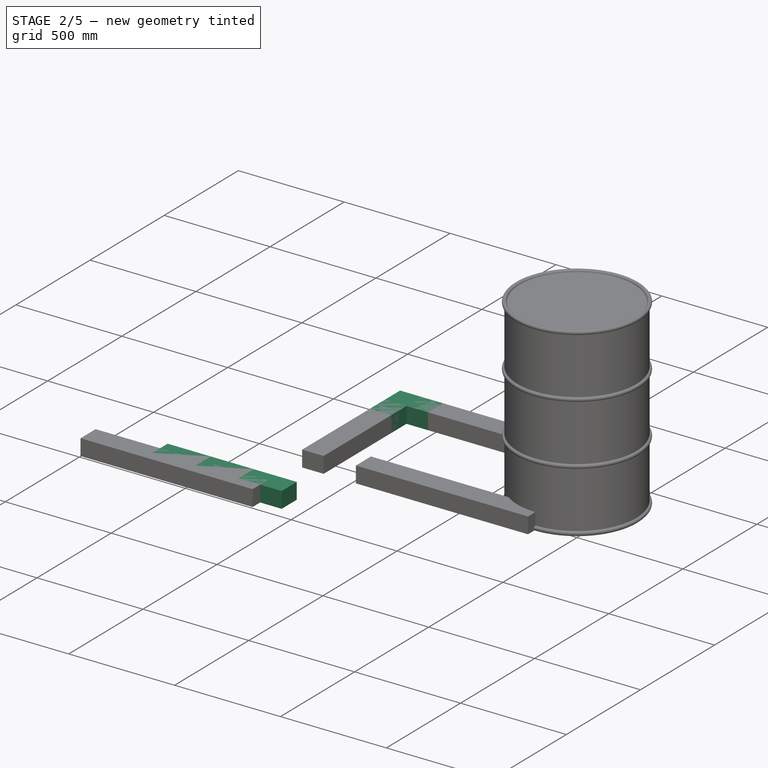
[diagram: stage 2 of 5 — iso view after this stage's code; geometry added in this stage tinted green]
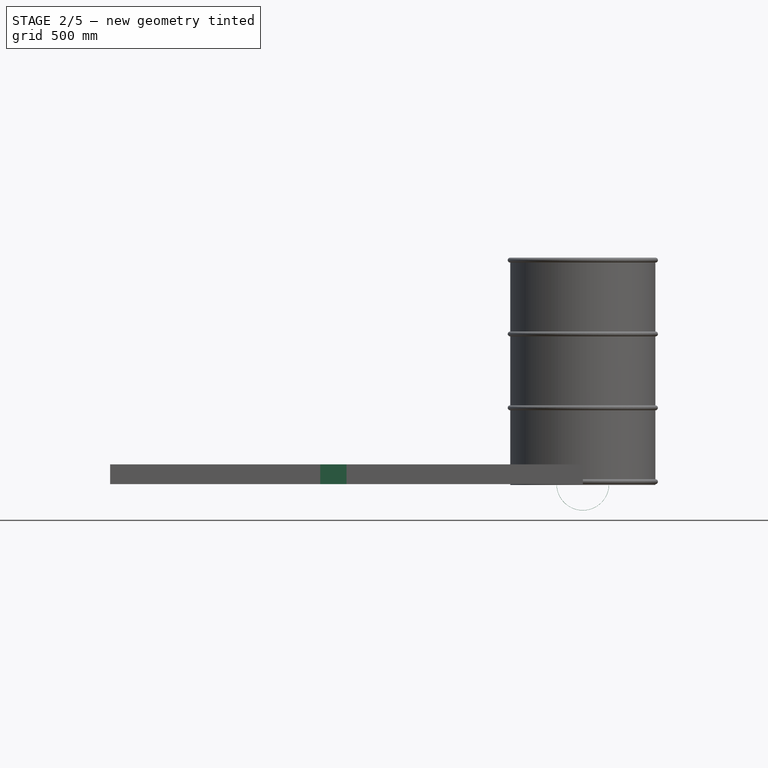
[diagram: stage 2 of 5 — front view after this stage's code; geometry added in this stage tinted green]
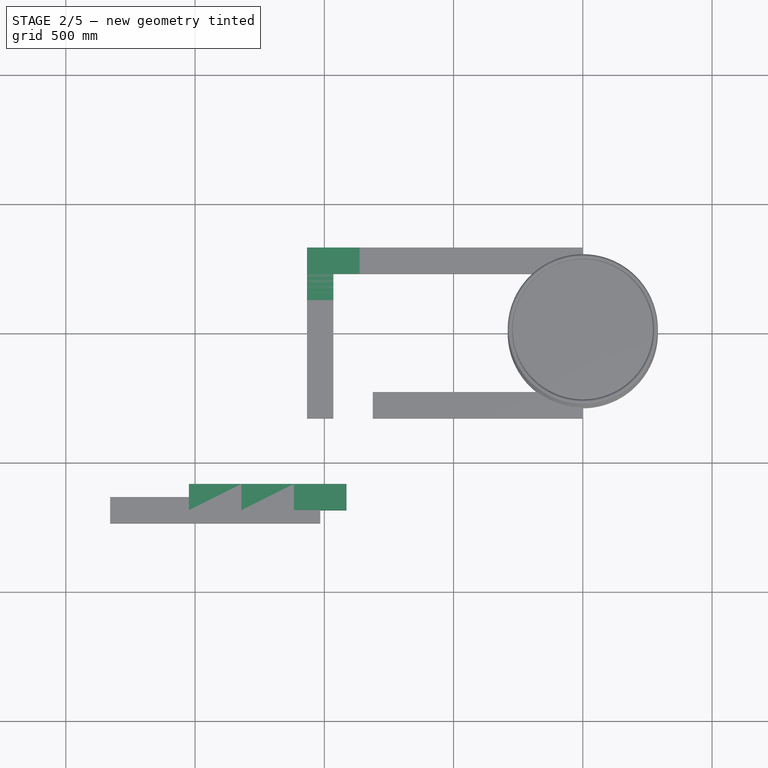
[diagram: stage 2 of 5 — top view after this stage's code; geometry added in this stage tinted green]
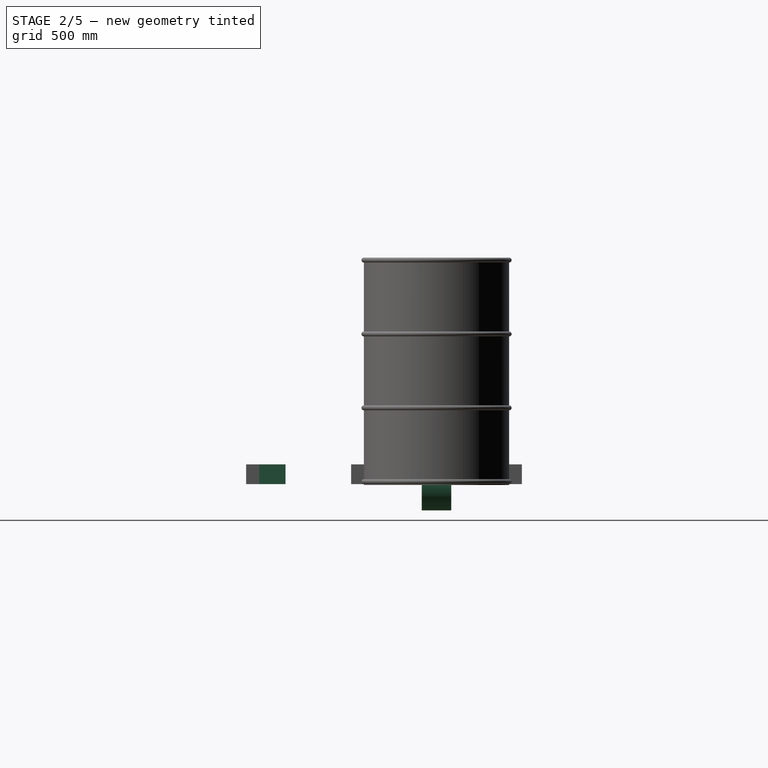
[diagram: stage 2 of 5 — right view after this stage's code; geometry added in this stage tinted green]
FEATURE [PartDesign::Body] Body  label="CONCRETE ROUND-01"
  Group = -> [Sketch8492,Pad,Chamfer,Chamfer001]
  Origin = -> Origin
  Placement = pos=(0,0,152.4) rot=(0,0,1;0rad)
  Tip = -> Chamfer001
FEATURE [Sketcher::SketchObject] Sketch8153
  FullyConstrained = true
  MapMode = 5
  Support = -> [XY_Plane8396]
  sketch-geometry (4):
    g0: LineSegment StartX=0 StartY=0 StartZ=0 EndX=-152.4 EndY=0 EndZ=0
    g1: LineSegment StartX=-152.4 StartY=0 StartZ=0 EndX=-152.4 EndY=101.6 EndZ=0
    g2: LineSegment StartX=-152.4 StartY=101.6 StartZ=0 EndX=0 EndY=101.6 EndZ=0
    g3: LineSegment StartX=0 StartY=101.6 StartZ=0 EndX=0 EndY=0 EndZ=0
  constraints (11):
    c: Coincident(g0,g1)
    c: Coincident(g1,g2)
    c: Coincident(g2,g3)
    c: Coincident(g3,g0)
    c: Horizontal(g0)
    c: Horizontal(g2)
    c: Vertical(g1)
    c: Vertical(g3)
    c: Coincident(g0,g-1)
    c: DistanceY(g1,g1) = 101.6
    c: DistanceX(g2,g2) = 152.4
FEATURE [PartDesign::Pad] Pad7184
  Direction = (0,0,1)
  Length = 76.2
  Length2 = 9.92188
  Profile = -> Sketch8153
  ReferenceAxis = -> Sketch8153 [N_Axis]
  Refine = true
  Type = 0
FEATURE [PartDesign::Body] Body6489  label="BRICK-1502"
  Group = -> [Sketch8153,Pad7184]
  Origin = -> Origin8489
  Placement = pos=(-812.8,-330.2,0) rot=(0,0,1;0rad)
  Tip = -> Pad7184
FEATURE [Sketcher::SketchObject] Sketch8154
  FullyConstrained = true
  MapMode = 5
  Support = -> [XY_Plane8397]
  sketch-geometry (4):
    g0: LineSegment StartX=0 StartY=0 StartZ=0 EndX=-203.2 EndY=0 EndZ=0
    g1: LineSegment StartX=-203.2 StartY=0 StartZ=0 EndX=-203.2 EndY=101.6 EndZ=0
    g2: LineSegment StartX=-203.2 StartY=101.6 StartZ=0 EndX=0 EndY=101.6 EndZ=0
    g3: LineSegment StartX=0 StartY=101.6 StartZ=0 EndX=0 EndY=0 EndZ=0
  constraints (11):
    c: Coincident(g0,g1)
    c: Coincident(g1,g2)
    c: Coincident(g2,g3)
    c: Coincident(g3,g0)
    c: Horizontal(g0)
    c: Horizontal(g2)
    c: Vertical(g1)
    c: Vertical(g3)
    c: Coincident(g0,g-1)
    c: DistanceX(g2,g2) = 203.2
    c: DistanceY(g1,g1) = 101.6
FEATURE [PartDesign::Pad] Pad7185
  Direction = (0,0,1)
  Length = 76.2
  Length2 = 9.92188
  Profile = -> Sketch8154
  ReferenceAxis = -> Sketch8154 [N_Axis]
  Refine = true
  Type = 0
FEATURE [PartDesign::Body] Body6490  label="BRICK-1349"
  Group = -> [Sketch8154,Pad7185]
  Origin = -> Origin8490
  Placement = pos=(-101.6,0,0) rot=(0,0,1;0rad)
  Tip = -> Pad7185
FEATURE [Part::FeaturePython] Array473  # Draft array (typed FeaturePython)
  AlwaysSyncPlacement = false
  Angle = 360
  ArrayType = 0
  Axis = (0,0,1)
  Base = -> Body6490
  Center = (0,0,0)
  Count = 4
  ExpandArray = false
  Fuse = false
  IntervalAxis = (0,0,0)
  IntervalX = (-203.2,0,0)
  IntervalY = (0,100.012,0)
  IntervalZ = (0,0,100.012)
  NumberCircles = 3
  NumberPolar = 5
  NumberX = 4
  NumberY = 1
  NumberZ = 1
  Placement = pos=(-1168.4,330.2,0) rot=(0,0,1;3.14159rad)
  PlacementList = 4 placements: arithmetic series from (-101.6,0,0) step (-203.2,0,0) to (-711.2,0,0)
  RadialDistance = 50
  ScaleList = (4) [(1,1,1),(1,1,1),(1,1,1),(1,1,1)]
  Symmetry = 1
  TangentialDistance = 25
FEATURE [Sketcher::SketchObject] Sketch8155
  FullyConstrained = true
  MapMode = 5
  Support = -> [XY_Plane8398]
  sketch-geometry (4):
    g0: LineSegment StartX=0 StartY=0 StartZ=0 EndX=-152.4 EndY=0 EndZ=0
    g1: LineSegment StartX=-152.4 StartY=0 StartZ=0 EndX=-152.4 EndY=101.6 EndZ=0
    g2: LineSegment StartX=-152.4 StartY=101.6 StartZ=0 EndX=0 EndY=101.6 EndZ=0
    g3: LineSegment StartX=0 StartY=101.6 StartZ=0 EndX=0 EndY=0 EndZ=0
  constraints (11):
    c: Coincident(g0,g1)
    c: Coincident(g1,g2)
    c: Coincident(g2,g3)
    c: Coincident(g3,g0)
    c: Horizontal(g0)
    c: Horizontal(g2)
    c: Vertical(g1)
    c: Vertical(g3)
    c: Coincident(g0,g-1)
    c: DistanceY(g1,g1) = 101.6
    c: DistanceX(g2,g2) = 152.4
FEATURE [PartDesign::Pad] Pad7186
  Direction = (0,0,1)
  Length = 76.2
  Length2 = 9.92188
  Profile = -> Sketch8155
  ReferenceAxis = -> Sketch8155 [N_Axis]
  Refine = true
  Type = 0
FEATURE [PartDesign::Body] Body6491  label="BRICK-1350"
  Group = -> [Sketch8155,Pad7186]
  Origin = -> Origin8491
  Placement = pos=(1.56e-13,228.6,0) rot=(0,0,1;0rad)
  Tip = -> Pad7186
FEATURE [Sketcher::SketchObject] Sketch8156
  FullyConstrained = true
  MapMode = 5
  Support = -> [XY_Plane8399]
  sketch-geometry (4):
    g0: LineSegment StartX=0 StartY=0 StartZ=0 EndX=-152.4 EndY=0 EndZ=0
    g1: LineSegment StartX=-152.4 StartY=0 StartZ=0 EndX=-152.4 EndY=101.6 EndZ=0
    g2: LineSegment StartX=-152.4 StartY=101.6 StartZ=0 EndX=0 EndY=101.6 EndZ=0
    g3: LineSegment StartX=0 StartY=101.6 StartZ=0 EndX=0 EndY=0 EndZ=0
  constraints (11):
    c: Coincident(g0,g1)
    c: Coincident(g1,g2)
    c: Coincident(g2,g3)
    c: Coincident(g3,g0)
    c: Horizontal(g0)
    c: Horizontal(g2)
    c: Vertical(g1)
    c: Vertical(g3)
    c: Coincident(g0,g-1)
    c: DistanceX(g2,g2) = 152.4
    c: DistanceY(g1,g1) = 101.6
FEATURE [PartDesign::Pad] Pad7187
  Direction = (0,0,1)
  Length = 76.2
  Length2 = 9.92188
  Profile = -> Sketch8156
  ReferenceAxis = -> Sketch8156 [N_Axis]
  Refine = true
  Type = 0
FEATURE [PartDesign::Body] Body6667  label="BRICK-1351"
  Group = -> [Sketch8156,Pad7187]
  Origin = -> Origin8492
  Placement = pos=(0,-330.2,0) rot=(0,0,1;0rad)
  Tip = -> Pad7187
FEATURE [Sketcher::SketchObject] Sketch8157
  FullyConstrained = true
  MapMode = 5
  Support = -> [XY_Plane8400]
  sketch-geometry (4):
    g0: LineSegment StartX=0 StartY=0 StartZ=0 EndX=-152.4 EndY=0 EndZ=0
    g1: LineSegment StartX=-152.4 StartY=0 StartZ=0 EndX=-152.4 EndY=101.6 EndZ=0
    g2: LineSegment StartX=-152.4 StartY=101.6 StartZ=0 EndX=0 EndY=101.6 EndZ=0
    g3: LineSegment StartX=0 StartY=101.6 StartZ=0 EndX=0 EndY=0 EndZ=0
  constraints (11):
    c: Coincident(g0,g1)
    c: Coincident(g1,g2)
    c: Coincident(g2,g3)
    c: Coincident(g3,g0)
    c: Horizontal(g0)
    c: Horizontal(g2)
    c: Vertical(g1)
    c: Vertical(g3)
    c: Coincident(g0,g-1)
    c: DistanceX(g2,g2) = 152.4
    c: DistanceY(g1,g1) = 101.6
FEATURE [PartDesign::Pad] Pad7351
  Direction = (0,0,1)
  Length = 76.2
  Length2 = 9.92188
  Profile = -> Sketch8157
  ReferenceAxis = -> Sketch8157 [N_Axis]
  Refine = true
  Type = 0
FEATURE [PartDesign::Body] Body6668  label="BRICK-1352"
  Group = -> [Sketch8157,Pad7351]
  Origin = -> Origin8493
  Placement = pos=(-914.4,228.6,0) rot=(0,0,1;0rad)
  Tip = -> Pad7351
FEATURE [Sketcher::SketchObject] Sketch8158
  FullyConstrained = true
  MapMode = 5
  Support = -> [XY_Plane8598]
  sketch-geometry (4):
    g0: LineSegment StartX=0 StartY=0 StartZ=0 EndX=-152.4 EndY=0 EndZ=0
    g1: LineSegment StartX=-152.4 StartY=0 StartZ=0 EndX=-152.4 EndY=101.6 EndZ=0
    g2: LineSegment StartX=-152.4 StartY=101.6 StartZ=0 EndX=0 EndY=101.6 EndZ=0
    g3: LineSegment StartX=0 StartY=101.6 StartZ=0 EndX=0 EndY=0 EndZ=0
  constraints (11):
    c: Coincident(g0,g1)
    c: Coincident(g1,g2)
    c: Coincident(g2,g3)
    c: Coincident(g3,g0)
    c: Horizontal(g0)
    c: Horizontal(g2)
    c: Vertical(g1)
    c: Vertical(g3)
    c: Coincident(g0,g-1)
    c: DistanceX(g2,g2) = 152.4
    c: DistanceY(g1,g1) = 101.6
FEATURE [PartDesign::Pad] Pad7352
  Direction = (0,0,1)
  Length = 76.2
  Length2 = 9.92188
  Profile = -> Sketch8158
  ReferenceAxis = -> Sketch8158 [N_Axis]
  Refine = true
  Type = 0
FEATURE [PartDesign::Body] Body6560  label="BRICK-1400"
  Group = -> [Sketch8253,Pad7244]
  Origin = -> Origin8571
  Placement = pos=(-330.2,330.2,0) rot=(0,0,1;3.14159rad)
  Tip = -> Pad7244
FEATURE [Sketcher::SketchObject] Sketch8254
  FullyConstrained = true
  MapMode = 5
  Support = -> [XY_Plane8479]
  sketch-geometry (4):
    g0: LineSegment StartX=0 StartY=0 StartZ=0 EndX=-79.375 EndY=0 EndZ=0
    g1: LineSegment StartX=-79.375 StartY=0 StartZ=0 EndX=-79.375 EndY=180.975 EndZ=0
    g2: LineSegment StartX=-79.375 StartY=180.975 StartZ=0 EndX=0 EndY=180.975 EndZ=0
    g3: LineSegment StartX=0 StartY=180.975 StartZ=0 EndX=0 EndY=0 EndZ=0
  constraints (11):
    c: Coincident(g0,g1)
    c: Coincident(g1,g2)
    c: Coincident(g2,g3)
    c: Coincident(g3,g0)
    c: Horizontal(g0)
    c: Horizontal(g2)
    c: Vertical(g1)
    c: Vertical(g3)
    c: Coincident(g0,g-1)
    c: DistanceX(g2,g2) = 79.375
    c: DistanceY(g1,g1) = 180.975
FEATURE [PartDesign::Pad] Pad7245
  Direction = (0,0,1)
  Length = 76.2
  Length2 = 9.92188
  Profile = -> Sketch8254
  ReferenceAxis = -> Sketch8254 [N_Axis]
  Refine = true
  Type = 0
FEATURE [PartDesign::Body] Body6561  label="BRICK-1401"
  Group = -> [Sketch8254,Pad7245]
  Origin = -> Origin8572
  Placement = pos=(-250.825,-330.2,0) rot=(0,0,1;0rad)
  Tip = -> Pad7245
FEATURE [Sketcher::SketchObject] Sketch8255
  FullyConstrained = true
  MapMode = 5
  Support = -> [XY_Plane8480]
  sketch-geometry (4):
    g0: LineSegment StartX=0 StartY=0 StartZ=0 EndX=-95.25 EndY=0 EndZ=0
    g1: LineSegment StartX=-95.25 StartY=0 StartZ=0 EndX=-95.25 EndY=101.6 EndZ=0
    g2: LineSegment StartX=-95.25 StartY=101.6 StartZ=0 EndX=0 EndY=101.6 EndZ=0
    g3: LineSegment StartX=0 StartY=101.6 StartZ=0 EndX=0 EndY=0 EndZ=0
  constraints (11):
    c: Coincident(g0,g1)
    c: Coincident(g1,g2)
    c: Coincident(g2,g3)
    c: Coincident(g3,g0)
    c: Horizontal(g0)
    c: Horizontal(g2)
    c: Vertical(g1)
    c: Vertical(g3)
    c: Coincident(g0,g-1)
    c: DistanceX(g2,g2) = 95.25
    c: DistanceY(g1,g1) = 101.6
FEATURE [PartDesign::Pad] Pad7246
  Direction = (0,0,1)
  Length = 76.2
  Length2 = 9.92188
  Profile = -> Sketch8255
  ReferenceAxis = -> Sketch8255 [N_Axis]
  Refine = true
  Type = 0
FEATURE [PartDesign::Body] Body6562  label="BRICK-1402"
  Group = -> [Sketch8255,Pad7246]
  Origin = -> Origin8573
  Placement = pos=(-53.975,228.6,0) rot=(0,0,1;0rad)
  Tip = -> Pad7246
FEATURE [Sketcher::SketchObject] Sketch8256
  FullyConstrained = true
  MapMode = 5
  Support = -> [XY_Plane8481]
  sketch-geometry (7):
    g0: LineSegment StartX=0 StartY=0 StartZ=0 EndX=-101.6 EndY=0 EndZ=0
    g1: LineSegment StartX=-101.6 StartY=0 StartZ=0 EndX=-101.6 EndY=101.6 EndZ=0
    g2: LineSegment StartX=-101.6 StartY=101.6 StartZ=0 EndX=0 EndY=203.2 EndZ=0
    g3: LineSegment StartX=0 StartY=203.2 StartZ=0 EndX=0 EndY=0 EndZ=0
    g4: LineSegment StartX=-101.6 StartY=101.6 StartZ=0 EndX=-22.225 EndY=180.975 EndZ=0
    g5: LineSegment StartX=-22.225 StartY=180.975 StartZ=0 EndX=0 EndY=180.975 EndZ=0
    g6: LineSegment StartX=0 StartY=180.975 StartZ=0 EndX=0 EndY=0 EndZ=0
  constraints (19):
    c: Coincident(g0,g1)
    c: Coincident(g1,g2)
    c: Coincident(g2,g3)
    c: Coincident(g3,g0)
    c: Horizontal(g0)
    c: Vertical(g1)
    c: Vertical(g3)
    c: Coincident(g0,g-1)
    c: DistanceX(g2,g2) = 101.6
    c: DistanceY(g1,g1) = 101.6
    c: Angle(g1,g2) = 2.35619
    c: Coincident(g1,g4)
    c: PointOnObject(g4,g2)
    c: Coincident(g4,g5)
    c: PointOnObject(g5,g3)
    c: Horizontal(g5)
    c: Coincident(g5,g6)
    c: Coincident(g6,g0)
    c: DistanceY(g6,g6) = 180.975
FEATURE [PartDesign::Pad] Pad7247
  Direction = (0,0,1)
  Length = 76.2
  Length2 = 9.92188
  Profile = -> Sketch8256
  ReferenceAxis = -> Sketch8256 [N_Axis]
  Refine = true
  Type = 0
FEATURE [PartDesign::Body] Body6563  label="BRICK-1403"
  Group = -> [Sketch8256,Pad7247]
  Origin = -> Origin8574
  Placement = pos=(-250.825,330.2,0) rot=(0,0,1;3.14159rad)
  Tip = -> Pad7247
FEATURE [Sketcher::SketchObject] Sketch8257
  FullyConstrained = true
  MapMode = 5
  Support = -> [XY_Plane8482]
  sketch-geometry (7):
    g0: LineSegment StartX=0 StartY=0 StartZ=0 EndX=-101.6 EndY=0 EndZ=0
    g1: LineSegment StartX=-101.6 StartY=0 StartZ=0 EndX=-101.6 EndY=101.6 EndZ=0
    g2: LineSegment StartX=-101.6 StartY=101.6 StartZ=0 EndX=0 EndY=203.2 EndZ=0
    g3: LineSegment StartX=0 StartY=203.2 StartZ=0 EndX=0 EndY=0 EndZ=0
    g4: LineSegment StartX=-101.6 StartY=101.6 StartZ=0 EndX=-22.225 EndY=180.975 EndZ=0
    g5: LineSegment StartX=-22.225 StartY=180.975 StartZ=0 EndX=0 EndY=180.975 EndZ=0
    g6: LineSegment StartX=0 StartY=180.975 StartZ=0 EndX=0 EndY=0 EndZ=0
  constraints (19):
    c: Coincident(g0,g1)
    c: Coincident(g1,g2)
    c: Coincident(g2,g3)
    c: Coincident(g3,g0)
    c: Horizontal(g0)
    c: Vertical(g1)
    c: Vertical(g3)
    c: Coincident(g0,g-1)
    c: DistanceX(g2,g2) = 101.6
    c: DistanceY(g1,g1) = 101.6
    c: Angle(g1,g2) = 2.35619
    c: Coincident(g1,g4)
    c: PointOnObject(g4,g2)
    c: Coincident(g4,g5)
    c: PointOnObject(g5,g3)
    c: Horizontal(g5)
    c: Coincident(g5,g6)
    c: Coincident(g6,g0)
    c: DistanceY(g6,g6) = 180.975
FEATURE [PartDesign::Pad] Pad7248
  Direction = (0,0,1)
  Length = 76.2
  Length2 = 9.92188
  Profile = -> Sketch8257
  ReferenceAxis = -> Sketch8257 [N_Axis]
  Refine = true
  Type = 0
FEATURE [PartDesign::Body] Body6564  label="BRICK-1404"
  Group = -> [Sketch8257,Pad7248]
  Origin = -> Origin8575
  Placement = pos=(250.825,330.2,76.2) rot=(1,0,0;3.14159rad)
  Tip = -> Pad7248
FEATURE [Sketcher::SketchObject] Sketch8258
  FullyConstrained = true
  MapMode = 5
  Support = -> [XY_Plane8483]
  sketch-geometry (7):
    g0: LineSegment StartX=0 StartY=0 StartZ=0 EndX=-101.6 EndY=0 EndZ=0
    g1: LineSegment StartX=-101.6 StartY=0 StartZ=0 EndX=-101.6 EndY=101.6 EndZ=0
    g2: LineSegment StartX=-101.6 StartY=101.6 StartZ=0 EndX=0 EndY=203.2 EndZ=0
    g3: LineSegment StartX=0 StartY=203.2 StartZ=0 EndX=0 EndY=0 EndZ=0
    g4: LineSegment StartX=-101.6 StartY=101.6 StartZ=0 EndX=-22.225 EndY=180.975 EndZ=0
    g5: LineSegment StartX=-22.225 StartY=180.975 StartZ=0 EndX=0 EndY=180.975 EndZ=0
    g6: LineSegment StartX=0 StartY=180.975 StartZ=0 EndX=0 EndY=0 EndZ=0
  constraints (19):
    c: Coincident(g0,g1)
    c: Coincident(g1,g2)
    c: Coincident(g2,g3)
    c: Coincident(g3,g0)
    c: Horizontal(g0)
    c: Vertical(g1)
    c: Vertical(g3)
    c: Coincident(g0,g-1)
    c: DistanceX(g2,g2) = 101.6
    c: DistanceY(g1,g1) = 101.6
    c: Angle(g1,g2) = 2.35619
    c: Coincident(g1,g4)
    c: PointOnObject(g4,g2)
    c: Coincident(g4,g5)
    c: PointOnObject(g5,g3)
    c: Horizontal(g5)
    c: Coincident(g5,g6)
    c: Coincident(g6,g0)
    c: DistanceY(g6,g6) = 180.975
FEATURE [PartDesign::Pad] Pad7249
  Direction = (0,0,1)
  Length = 76.2
  Length2 = 9.92188
  Profile = -> Sketch8258
  ReferenceAxis = -> Sketch8258 [N_Axis]
  Refine = true
  Type = 0
FEATURE [PartDesign::Body] Body6568  label="CONCRETE ROUND-004"
  Group = -> [Sketch8261,Pad7252,Chamfer006,Chamfer007]
  Origin = -> Origin8579
  Placement = pos=(0,0,152.4) rot=(0,0,1;1.5708rad)
  Tip = -> Chamfer007
FEATURE [App::Part] Part360  label="BARREL-BRICK-BELL-005"
  Group = -> [Part359,Part361,Body,Body6566,Body6567,Body6568]
  Origin = -> Origin8540
  Placement = pos=(0,177.8,673.1) rot=(0,0,1;0rad)
FEATURE [Sketcher::SketchObject] Sketch8262
  FullyConstrained = true
  MapMode = 5
  Support = -> [XY_Plane8570]
  sketch-geometry (4):
    g0: LineSegment StartX=0 StartY=0 StartZ=0 EndX=-101.6 EndY=0 EndZ=0
    g1: LineSegment StartX=-101.6 StartY=0 StartZ=0 EndX=-101.6 EndY=127 EndZ=0
    g2: LineSegment StartX=-101.6 StartY=127 StartZ=0 EndX=0 EndY=127 EndZ=0
    g3: LineSegment StartX=0 StartY=127 StartZ=0 EndX=0 EndY=0 EndZ=0
  constraints (11):
    c: Coincident(g0,g1)
    c: Coincident(g1,g2)
    c: Coincident(g2,g3)
    c: Coincident(g3,g0)
    c: Horizontal(g0)
    c: Horizontal(g2)
    c: Vertical(g1)
    c: Vertical(g3)
    c: Coincident(g0,g-1)
    c: DistanceX(g2,g2) = 101.6
    c: DistanceY(g1,g1) = 127
FEATURE [PartDesign::Pad] Pad7253
  Direction = (0,0,1)
  Length = 76.2
  Length2 = 9.92188
  Profile = -> Sketch8262
  ReferenceAxis = -> Sketch8262 [N_Axis]
  Refine = true
  Type = 0
FEATURE [PartDesign::Body] Body6639  label="BRICK-1475"
  Group = -> [Sketch8262,Pad7253]
  Origin = -> Origin8663
  Placement = pos=(0,101.6,0) rot=(0,0,1;0rad)
  Tip = -> Pad7253
FEATURE [Sketcher::SketchObject] Sketch8263
  FullyConstrained = true
  MapMode = 5
  Placement = pos=(0,0,0) rot=(1,0,0;1.5708rad)
  Support = -> [XZ_Plane8494]
  sketch-geometry (8):
    g0: LineSegment StartX=-12.7 StartY=95.2251 StartZ=0 EndX=-12.7 EndY=88.9 EndZ=0
    g1: LineSegment StartX=-12.7 StartY=88.9 StartZ=0 EndX=0 EndY=88.9 EndZ=0
    g2: LineSegment StartX=0 StartY=88.9 StartZ=0 EndX=0 EndY=63.5 EndZ=0
    g3: LineSegment StartX=0 StartY=63.5 StartZ=0 EndX=-12.7 EndY=63.5 EndZ=0
    g4: LineSegment StartX=-12.7 StartY=63.5 StartZ=0 EndX=-12.7 EndY=57.1749 EndZ=0
    g5: LineSegment StartX=-12.7 StartY=57.1749 StartZ=0 EndX=-25.4 EndY=57.1749 EndZ=0
    g6: LineSegment StartX=-25.4 StartY=57.1749 StartZ=0 EndX=-25.4 EndY=95.2251 EndZ=0
    g7: LineSegment StartX=-25.4 StartY=95.2251 StartZ=0 EndX=-12.7 EndY=95.2251 EndZ=0
  constraints (24):
    c: Coincident(g0,g1)
    c: Horizontal(g1)
    c: Coincident(g1,g2)
    c: Vertical(g2)
    c: Coincident(g2,g3)
    c: Horizontal(g3)
    c: Coincident(g3,g4)
    c: Vertical(g4)
    c: Equal(g0,g4)
    c: DistanceY(g2,g2) = 25.4
    c: PointOnObject(g-1,g2)
    c: Vertical(g0)
    c: PointOnObject(g0,g4)
    c: DistanceY(g-1,g2) = 63.5
    c: Equal(g4,g0)
    c: DistanceX(g3,g3) = 12.7
    c: Coincident(g4,g5)
    c: Horizontal(g5)
    c: Coincident(g5,g6)
    c: Vertical(g6)
    c: Coincident(g6,g7)
    c: Coincident(g7,g0)
    c: Horizontal(g7)
    c: DistanceX(g7,g7) = 12.7
FEATURE [Sketcher::SketchObject] Sketch8264
  FullyConstrained = true
  MapMode = 5
  Support = -> [XY_Plane8545]
  sketch-geometry (4):
    g0: LineSegment StartX=0 StartY=0 StartZ=0 EndX=-101.6 EndY=0 EndZ=0
    g1: LineSegment StartX=-101.6 StartY=0 StartZ=0 EndX=-101.6 EndY=203.2 EndZ=0
    g2: LineSegment StartX=-101.6 StartY=203.2 StartZ=0 EndX=0 EndY=203.2 EndZ=0
    g3: LineSegment StartX=0 StartY=203.2 StartZ=0 EndX=0 EndY=0 EndZ=0
  constraints (11):
    c: Coincident(g0,g1)
    c: Coincident(g1,g2)
    c: Coincident(g2,g3)
    c: Coincident(g3,g0)
    c: Horizontal(g0)
    c: Horizontal(g2)
    c: Vertical(g1)
    c: Vertical(g3)
    c: Coincident(g0,g-1)
    c: DistanceX(g2,g2) = 101.6
    c: DistanceY(g1,g1) = 203.2
FEATURE [PartDesign::Pad] Pad7254
  Direction = (0,0,1)
  Length = 76.2
  Length2 = 9.92188
  Profile = -> Sketch8264
  ReferenceAxis = -> Sketch8264 [N_Axis]
  Refine = true
  Type = 0
FEATURE [PartDesign::Body] Body6570  label="BRICK-1407"
  Group = -> [Sketch8264,Pad7254]
  Origin = -> Origin8638
  Tip = -> Pad7254
FEATURE [Part::FeaturePython] Array453  # Draft array (typed FeaturePython)
  AlwaysSyncPlacement = false
  Angle = 360
  ArrayType = 0
  Axis = (0,0,1)
  Base = -> Body6570
  Center = (0,0,0)
  Count = 2
  ExpandArray = false
  Fuse = false
  IntervalAxis = (0,0,0)
  IntervalX = (100.012,0,0)
  IntervalY = (0,203.2,0)
  IntervalZ = (0,0,100.012)
  NumberCircles = 3
  NumberPolar = 5
  NumberX = 1
  NumberY = 2
  NumberZ = 1
  Placement = pos=(-965.2,-330.2,0) rot=(0,0,1;0rad)
  PlacementList = 2 placements: [(0,0,0),(0,203.2,0)]
  RadialDistance = 50
  ScaleList = (2) [(1,1,1),(1,1,1)]
  Symmetry = 1
  TangentialDistance = 25
FEATURE [Sketcher::SketchObject] Sketch8265
  FullyConstrained = true
  MapMode = 5
  Support = -> [XY_Plane8547]
  sketch-geometry (4):
    g0: LineSegment StartX=0 StartY=0 StartZ=0 EndX=-152.4 EndY=0 EndZ=0
    g1: LineSegment StartX=-152.4 StartY=0 StartZ=0 EndX=-152.4 EndY=101.6 EndZ=0
    g2: LineSegment StartX=-152.4 StartY=101.6 StartZ=0 EndX=0 EndY=101.6 EndZ=0
    g3: LineSegment StartX=0 StartY=101.6 StartZ=0 EndX=0 EndY=0 EndZ=0
  constraints (11):
    c: Coincident(g0,g1)
    c: Coincident(g1,g2)
    c: Coincident(g2,g3)
    c: Coincident(g3,g0)
    c: Horizontal(g0)
    c: Horizontal(g2)
    c: Vertical(g1)
    c: Vertical(g3)
    c: Coincident(g0,g-1)
    c: DistanceX(g2,g2) = 152.4
    c: DistanceY(g1,g1) = 101.6
FEATURE [PartDesign::Pad] Pad7255
  Direction = (0,0,1)
  Length = 76.2
  Length2 = 9.92188
  Profile = -> Sketch8265
  ReferenceAxis = -> Sketch8265 [N_Axis]
  Refine = true
  Type = 0
FEATURE [PartDesign::Body] Body6571  label="BRICK-1408"
  Group = -> [Sketch8265,Pad7255]
  Origin = -> Origin8640
  Placement = pos=(-254,330.2,0) rot=(0,0,1;3.14159rad)
  Tip = -> Pad7255
FEATURE [Sketcher::SketchObject] Sketch8266
  FullyConstrained = true
  MapMode = 5
  Support = -> [XY_Plane8548]
  sketch-geometry (4):
    g0: LineSegment StartX=0 StartY=0 StartZ=0 EndX=-101.6 EndY=0 EndZ=0
    g1: LineSegment StartX=-101.6 StartY=0 StartZ=0 EndX=-101.6 EndY=203.2 EndZ=0
    g2: LineSegment StartX=-101.6 StartY=203.2 StartZ=0 EndX=0 EndY=203.2 EndZ=0
    g3: LineSegment StartX=0 StartY=203.2 StartZ=0 EndX=0 EndY=0 EndZ=0
  constraints (11):
    c: Coincident(g0,g1)
    c: Coincident(g1,g2)
    c: Coincident(g2,g3)
    c: Coincident(g3,g0)
    c: Horizontal(g0)
    c: Horizontal(g2)
    c: Vertical(g1)
    c: Vertical(g3)
    c: Coincident(g0,g-1)
    c: DistanceX(g2,g2) = 101.6
    c: DistanceY(g1,g1) = 203.2
FEATURE [PartDesign::Pad] Pad7256
  Direction = (0,0,1)
  Length = 76.2
  Length2 = 9.92188
  Profile = -> Sketch8266
  ReferenceAxis = -> Sketch8266 [N_Axis]
  Refine = true
  Type = 0
FEATURE [PartDesign::Body] Body6572  label="BRICK-1409"
  Group = -> [Sketch8266,Pad7256]
  Origin = -> Origin8641
  Tip = -> Pad7256
FEATURE [Part::FeaturePython] Array441  # Draft array (typed FeaturePython)
  AlwaysSyncPlacement = false
  Angle = 360
  ArrayType = 0
  Axis = (0,0,1)
  Base = -> Body6572
  Center = (0,0,0)
  Count = 2
  ExpandArray = false
  Fuse = false
  IntervalAxis = (0,0,0)
  IntervalX = (100.012,0,0)
  IntervalY = (0,203.2,0)
  IntervalZ = (0,0,100.012)
  NumberCircles = 3
  NumberPolar = 5
  NumberX = 1
  NumberY = 2
  NumberZ = 1
  Placement = pos=(-965.2,-228.6,7.62939e-06) rot=(0,0,1;0rad)
  PlacementList = 2 placements: [(0,0,0),(0,203.2,0)]
  RadialDistance = 50
  ScaleList = (2) [(1,1,1),(1,1,1)]
  Symmetry = 1
  TangentialDistance = 25
FEATURE [Sketcher::SketchObject] Sketch8267
  FullyConstrained = true
  MapMode = 5
  Support = -> [XY_Plane8492]
  sketch-geometry (4):
    g0: LineSegment StartX=0 StartY=0 StartZ=0 EndX=-203.2 EndY=0 EndZ=0
    g1: LineSegment StartX=-203.2 StartY=0 StartZ=0 EndX=-203.2 EndY=101.6 EndZ=0
    g2: LineSegment StartX=-203.2 StartY=101.6 StartZ=0 EndX=0 EndY=101.6 EndZ=0
    g3: LineSegment StartX=0 StartY=101.6 StartZ=0 EndX=0 EndY=0 EndZ=0
  constraints (11):
    c: Coincident(g0,g1)
    c: Coincident(g1,g2)
    c: Coincident(g2,g3)
    c: Coincident(g3,g0)
    c: Horizontal(g0)
    c: Horizontal(g2)
    c: Vertical(g1)
    c: Vertical(g3)
    c: Coincident(g0,g-1)
    c: DistanceX(g2,g2) = 203.2
    c: DistanceY(g1,g1) = 101.6
FEATURE [PartDesign::Pad] Pad7257
  Direction = (0,0,1)
  Length = 76.2
  Length2 = 9.92188
  Profile = -> Sketch8267
  ReferenceAxis = -> Sketch8267 [N_Axis]
  Refine = true
  Type = 0
FEATURE [PartDesign::Body] Body6573  label="BRICK-1410"
  Group = -> [Sketch8267,Pad7257]
  Origin = -> Origin8585
  Placement = pos=(1.56e-13,228.6,0) rot=(0,0,1;0rad)
  Tip = -> Pad7257
FEATURE [Part::FeaturePython] Array  # Draft array (typed FeaturePython)
  AlwaysSyncPlacement = false
  Angle = 360
  ArrayType = 0
  Axis = (0,0,1)
  Base = -> Body6573
  Center = (0,0,0)
  Count = 4
  ExpandArray = false
  Fuse = false
  IntervalAxis = (0,0,0)
  IntervalX = (203.2,0,0)
  IntervalY = (0,100.012,0)
  IntervalZ = (0,0,100.012)
  NumberCircles = 3
  NumberPolar = 5
  NumberX = 4
  NumberY = 1
  NumberZ = 1
  Placement = pos=(-762,0.000118566,0) rot=(0,0,1;0rad)
  PlacementList = 4 placements: arithmetic series from (1.56319e-13,228.6,0) step (203.2,0,0) to (609.6,228.6,0)
  RadialDistance = 50
  ScaleList = (4) [(1,1,1),(1,1,1),(1,1,1),(1,1,1)]
  Symmetry = 1
  TangentialDistance = 25
FEATURE [Part::FeaturePython] Array442  # Draft array (typed FeaturePython)
  AlwaysSyncPlacement = false
  Angle = 360
  ArrayType = 0
  Axis = (0,0,1)
  Base = -> Body6573
  Center = (0,0,0)
  Count = 3
  ElementList = -> [Array005_i113,Array005_i129,Array005_i130]
  ExpandArray = true
  Fuse = false
  IntervalAxis = (0,0,0)
  IntervalX = (-203.2,0,0)
  IntervalY = (0,100.012,0)
  IntervalZ = (0,0,100.012)
  NumberCircles = 3
  NumberPolar = 5
  NumberX = 3
  NumberY = 1
  NumberZ = 1
  Placement = pos=(7.62939e-06,-330.2,7.62939e-06) rot=(0,0,1;0rad)
  PlacementList = 3 placements: arithmetic series from (-914.4,-355.6,0) step (-203.2,0,0) to (-1320.8,-355.6,0)
  RadialDistance = 50
  Symmetry = 1
  TangentialDistance = 25
FEATURE [Sketcher::SketchObject] Sketch8268
  FullyConstrained = true
  MapMode = 5
  Support = -> [XY_Plane8493]
  sketch-geometry (4):
    g0: LineSegment StartX=0 StartY=0 StartZ=0 EndX=-101.6 EndY=0 EndZ=0
    g1: LineSegment StartX=-101.6 StartY=0 StartZ=0 EndX=-101.6 EndY=203.2 EndZ=0
    g2: LineSegment StartX=-101.6 StartY=203.2 StartZ=0 EndX=0 EndY=203.2 EndZ=0
    g3: LineSegment StartX=0 StartY=203.2 StartZ=0 EndX=0 EndY=0 EndZ=0
  constraints (11):
    c: Coincident(g0,g1)
    c: Coincident(g1,g2)
    c: Coincident(g2,g3)
    c: Coincident(g3,g0)
    c: Horizontal(g0)
    c: Horizontal(g2)
    c: Vertical(g1)
    c: Vertical(g3)
    c: Coincident(g0,g-1)
    c: DistanceX(g2,g2) = 101.6
    c: DistanceY(g1,g1) = 203.2
FEATURE [PartDesign::Pad] Pad7258
  Direction = (0,0,1)
  Length = 76.2
  Length2 = 9.92188
  Profile = -> Sketch8268
  ReferenceAxis = -> Sketch8268 [N_Axis]
  Refine = true
  Type = 0
FEATURE [PartDesign::Body] Body6574  label="BRICK-1411"
  Group = -> [Sketch8268,Pad7258]
  Origin = -> Origin8586
  Placement = pos=(0,-330.2,0) rot=(0,0,1;0rad)
  Tip = -> Pad7258
FEATURE [Sketcher::SketchObject] Sketch8269
  FullyConstrained = true
  MapMode = 5
  Placement = pos=(0,0,0) rot=(1,0,0;1.5708rad)
  Support = -> [XZ_Plane8500]
  sketch-geometry (2):
    g0: Circle CenterX=0 CenterY=0 CenterZ=0 NormalX=0 NormalY=0 NormalZ=1 AngleXU=0 Radius=100.806
    g1: Circle CenterX=0 CenterY=0 CenterZ=0 NormalX=0 NormalY=0 NormalZ=1 AngleXU=0 Radius=101.6
  constraints (4):
    c: Coincident(g0,g-1)
    c: Coincident(g1,g0)
    c: Diameter(g1) = 203.2
    c: Diameter(g0) = 201.613
FEATURE [PartDesign::Pad] Pad7259
  Direction = (0,-1,-2e-16)
  Length = 114.3
  Length2 = 9.92188
  Midplane = true
  Placement = pos=(0,0,0) rot=(1,0,0;1.5708rad)
  Profile = -> Sketch8269
  ReferenceAxis = -> Sketch8269 [N_Axis]
  Refine = true
  Type = 0
FEATURE [PartDesign::Body] Body6575  label="8-DUCT-007"
  Group = -> [Sketch8269,Pad7259]
  Origin = -> Origin8587
  Placement = pos=(-863.6,-279.4,177.8) rot=(0,0,1;0rad)
  Tip = -> Pad7259
FEATURE [Sketcher::SketchObject] Sketch8270
  FullyConstrained = true
  MapMode = 5
  Support = -> [XY_Plane8495]
  sketch-geometry (4):
    g0: LineSegment StartX=0 StartY=0 StartZ=0 EndX=-101.6 EndY=0 EndZ=0
    g1: LineSegment StartX=-101.6 StartY=0 StartZ=0 EndX=-101.6 EndY=203.2 EndZ=0
    g2: LineSegment StartX=-101.6 StartY=203.2 StartZ=0 EndX=0 EndY=203.2 EndZ=0
    g3: LineSegment StartX=0 StartY=203.2 StartZ=0 EndX=0 EndY=0 EndZ=0
  constraints (11):
    c: Coincident(g0,g1)
    c: Coincident(g1,g2)
    c: Coincident(g2,g3)
    c: Coincident(g3,g0)
    c: Horizontal(g0)
    c: Horizontal(g2)
    c: Vertical(g1)
    c: Vertical(g3)
    c: Coincident(g0,g-1)
    c: DistanceX(g2,g2) = 101.6
    c: DistanceY(g1,g1) = 203.2
FEATURE [PartDesign::Pad] Pad7260
  Direction = (0,0,1)
  Length = 76.2
  Length2 = 9.92188
  Profile = -> Sketch8270
  ReferenceAxis = -> Sketch8270 [N_Axis]
  Refine = true
  Type = 0
FEATURE [PartDesign::Body] Body6576  label="BRICK-1412"
  Group = -> [Sketch8270,Pad7260]
  Origin = -> Origin8588
  Tip = -> Pad7260
FEATURE [Part::FeaturePython] Array443  # Draft array (typed FeaturePython)
  AlwaysSyncPlacement = false
  Angle = 360
  ArrayType = 0
  Axis = (0,0,1)
  Base = -> Body6576
  Center = (0,0,0)
  Count = 2
  ExpandArray = false
  Fuse = false
  IntervalAxis = (0,0,0)
  IntervalX = (100.012,0,0)
  IntervalY = (0,203.2,0)
  IntervalZ = (0,0,100.012)
  NumberCircles = 3
  NumberPolar = 5
  NumberX = 1
  NumberY = 2
  NumberZ = 1
  Placement = pos=(-1066.8,228.6,7.62939e-06) rot=(0,0,1;3.14159rad)
  PlacementList = 2 placements: [(0,0,0),(0,203.2,0)]
  RadialDistance = 50
  ScaleList = (2) [(1,1,1),(1,1,1)]
  Symmetry = 1
  TangentialDistance = 25
FEATURE [Sketcher::SketchObject] Sketch8271
  FullyConstrained = true
  MapMode = 5
  Support = -> [XY_Plane8497]
  sketch-geometry (4):
    g0: LineSegment StartX=0 StartY=0 StartZ=0 EndX=-203.2 EndY=0 EndZ=0
    g1: LineSegment StartX=-203.2 StartY=0 StartZ=0 EndX=-203.2 EndY=101.6 EndZ=0
    g2: LineSegment StartX=-203.2 StartY=101.6 StartZ=0 EndX=0 EndY=101.6 EndZ=0
    g3: LineSegment StartX=0 StartY=101.6 StartZ=0 EndX=0 EndY=0 EndZ=0
  constraints (11):
    c: Coincident(g0,g1)
    c: Coincident(g1,g2)
    c: Coincident(g2,g3)
    c: Coincident(g3,g0)
    c: Horizontal(g0)
    c: Horizontal(g2)
    c: Vertical(g1)
    c: Vertical(g3)
    c: Coincident(g0,g-1)
    c: DistanceX(g2,g2) = 203.2
    c: DistanceY(g1,g1) = 101.6
FEATURE [PartDesign::Pad] Pad7261
  Direction = (0,0,1)
  Length = 76.2
  Length2 = 9.92188
  Profile = -> Sketch8271
  ReferenceAxis = -> Sketch8271 [N_Axis]
  Refine = true
  Type = 0
FEATURE [PartDesign::Body] Body6577  label="BRICK-1413"
  Group = -> [Sketch8271,Pad7261]
  Origin = -> Origin8590
  Placement = pos=(-101.6,0,0) rot=(0,0,1;0rad)
  Tip = -> Pad7261
FEATURE [Part::FeaturePython] Array444  # Draft array (typed FeaturePython)
  AlwaysSyncPlacement = false
  Angle = 360
  ArrayType = 0
  Axis = (0,0,1)
  Base = -> Body6577
  Center = (0,0,0)
  Count = 3
  ExpandArray = false
  Fuse = false
  IntervalAxis = (0,0,0)
  IntervalX = (-203.2,0,0)
  IntervalY = (0,100.012,0)
  IntervalZ = (0,0,100.012)
  NumberCircles = 3
  NumberPolar = 5
  NumberX = 3
  NumberY = 1
  NumberZ = 1
  Placement = pos=(-50.8001,-330.2,7.62939e-06) rot=(0,0,1;0rad)
  PlacementList = 3 placements: arithmetic series from (-101.6,0,0) step (-203.2,0,0) to (-508,0,0)
  RadialDistance = 50
  ScaleList = (3) [(1,1,1),(1,1,1),(1,1,1)]
  Symmetry = 1
  TangentialDistance = 25
FEATURE [Sketcher::SketchObject] Sketch8272
  FullyConstrained = true
  MapMode = 5
  Support = -> [XY_Plane8498]
  sketch-geometry (4):
    g0: LineSegment StartX=0 StartY=0 StartZ=0 EndX=-101.6 EndY=0 EndZ=0
    g1: LineSegment StartX=-101.6 StartY=0 StartZ=0 EndX=-101.6 EndY=203.2 EndZ=0
    g2: LineSegment StartX=-101.6 StartY=203.2 StartZ=0 EndX=0 EndY=203.2 EndZ=0
    g3: LineSegment StartX=0 StartY=203.2 StartZ=0 EndX=0 EndY=0 EndZ=0
  constraints (11):
    c: Coincident(g0,g1)
    c: Coincident(g1,g2)
    c: Coincident(g2,g3)
    c: Coincident(g3,g0)
    c: Horizontal(g0)
    c: Horizontal(g2)
    c: Vertical(g1)
    c: Vertical(g3)
    c: Coincident(g0,g-1)
    c: DistanceX(g2,g2) = 101.6
    c: DistanceY(g1,g1) = 203.2
FEATURE [PartDesign::Pad] Pad7262
  Direction = (0,0,1)
  Length = 76.2
  Length2 = 9.92188
  Profile = -> Sketch8272
  ReferenceAxis = -> Sketch8272 [N_Axis]
  Refine = true
  Type = 0
FEATURE [PartDesign::Body] Body6578  label="BRICK-1414"
  Group = -> [Sketch8272,Pad7262]
  Origin = -> Origin8591
  Tip = -> Pad7262
FEATURE [Part::FeaturePython] Array445  # Draft array (typed FeaturePython)
  AlwaysSyncPlacement = false
  Angle = 360
  ArrayType = 0
  Axis = (0,0,1)
  Base = -> Body6578
  Center = (0,0,0)
  Count = 2
  ExpandArray = false
  Fuse = false
  IntervalAxis = (0,0,0)
  IntervalX = (100.012,0,0)
  IntervalY = (0,203.2,0)
  IntervalZ = (0,0,100.012)
  NumberCircles = 3
  NumberPolar = 5
  NumberX = 1
  NumberY = 2
  NumberZ = 1
  Placement = pos=(7.62939e-06,-228.6,0) rot=(0,0,1;0rad)
  PlacementList = 2 placements: [(0,0,0),(0,203.2,0)]
  RadialDistance = 50
  ScaleList = (2) [(1,1,1),(1,1,1)]
  Symmetry = 1
  TangentialDistance = 25
FEATURE [Sketcher::SketchObject] Sketch8273
  FullyConstrained = true
  MapMode = 5
  Support = -> [XY_Plane8499]
  sketch-geometry (4):
    g0: LineSegment StartX=0 StartY=0 StartZ=0 EndX=-203.2 EndY=0 EndZ=0
    g1: LineSegment StartX=-203.2 StartY=0 StartZ=0 EndX=-203.2 EndY=101.6 EndZ=0
    g2: LineSegment StartX=-203.2 StartY=101.6 StartZ=0 EndX=0 EndY=101.6 EndZ=0
    g3: LineSegment StartX=0 StartY=101.6 StartZ=0 EndX=0 EndY=0 EndZ=0
  constraints (11):
    c: Coincident(g0,g1)
    c: Coincident(g1,g2)
    c: Coincident(g2,g3)
    c: Coincident(g3,g0)
    c: Horizontal(g0)
    c: Horizontal(g2)
    c: Vertical(g1)
    c: Vertical(g3)
    c: Coincident(g0,g-1)
    c: DistanceX(g2,g2) = 203.2
    c: DistanceY(g1,g1) = 101.6
FEATURE [PartDesign::Pad] Pad7263
  Direction = (0,0,1)
  Length = 76.2
  Length2 = 9.92188
  Profile = -> Sketch8273
  ReferenceAxis = -> Sketch8273 [N_Axis]
  Refine = true
  Type = 0
FEATURE [PartDesign::Body] Body6579  label="BRICK-1415"
  Group = -> [Sketch8273,Pad7263]
  Origin = -> Origin8592
  Placement = pos=(-101.6,0,0) rot=(0,0,1;0rad)
  Tip = -> Pad7263
FEATURE [Part::FeaturePython] Array446  # Draft array (typed FeaturePython)
  AlwaysSyncPlacement = false
  Angle = 360
  ArrayType = 0
  Axis = (0,0,1)
  Base = -> Body6579
  Center = (0,0,0)
  Count = 4
  ExpandArray = false
  Fuse = false
  IntervalAxis = (0,0,0)
  IntervalX = (-203.2,0,0)
  IntervalY = (0,100.012,0)
  IntervalZ = (0,0,100.012)
  NumberCircles = 3
  NumberPolar = 5
  NumberX = 4
  NumberY = 1
  NumberZ = 1
  Placement = pos=(7.62939e-06,228.6,0) rot=(0,0,1;0rad)
  PlacementList = 4 placements: arithmetic series from (-101.6,0,0) step (-203.2,0,0) to (-711.2,0,0)
  RadialDistance = 50
  ScaleList = (4) [(1,1,1),(1,1,1),(1,1,1),(1,1,1)]
  Symmetry = 1
  TangentialDistance = 25
FEATURE [Sketcher::SketchObject] Sketch8274
  FullyConstrained = true
  MapMode = 5
  Support = -> [XY_Plane8500]
  sketch-geometry (4):
    g0: LineSegment StartX=0 StartY=0 StartZ=0 EndX=-101.6 EndY=0 EndZ=0
    g1: LineSegment StartX=-101.6 StartY=0 StartZ=0 EndX=-101.6 EndY=203.2 EndZ=0
    g2: LineSegment StartX=-101.6 StartY=203.2 StartZ=0 EndX=0 EndY=203.2 EndZ=0
    g3: LineSegment StartX=0 StartY=203.2 StartZ=0 EndX=0 EndY=0 EndZ=0
  constraints (11):
    c: Coincident(g0,g1)
    c: Coincident(g1,g2)
    c: Coincident(g2,g3)
    c: Coincident(g3,g0)
    c: Horizontal(g0)
    c: Horizontal(g2)
    c: Vertical(g1)
    c: Vertical(g3)
    c: Coincident(g0,g-1)
    c: DistanceX(g2,g2) = 101.6
    c: DistanceY(g1,g1) = 203.2
FEATURE [PartDesign::Pad] Pad7264
  Direction = (0,0,1)
  Length = 76.2
  Length2 = 9.92188
  Profile = -> Sketch8274
  ReferenceAxis = -> Sketch8274 [N_Axis]
  Refine = true
  Type = 0
FEATURE [PartDesign::Body] Body6580  label="BRICK-1416"
  Group = -> [Sketch8274,Pad7264]
  Origin = -> Origin8593
  Tip = -> Pad7264
FEATURE [Part::FeaturePython] Array447  # Draft array (typed FeaturePython)
  AlwaysSyncPlacement = false
  Angle = 360
  ArrayType = 0
  Axis = (0,0,1)
  Base = -> Body6580
  Center = (0,0,0)
  Count = 3
  ExpandArray = false
  Fuse = false
  IntervalAxis = (0,0,0)
  IntervalX = (100.012,0,0)
  IntervalY = (0,203.2,0)
  IntervalZ = (0,0,100.012)
  NumberCircles = 3
  NumberPolar = 5
  NumberX = 1
  NumberY = 3
  NumberZ = 1
  Placement = pos=(-1066.8,330.2,0) rot=(0,0,1;3.14159rad)
  PlacementList = 3 placements: arithmetic series from (0,0,0) step (0,203.2,0) to (0,406.4,0)
  RadialDistance = 50
  ScaleList = (3) [(1,1,1),(1,1,1),(1,1,1)]
  Symmetry = 1
  TangentialDistance = 25
FEATURE [Sketcher::SketchObject] Sketch8275
  FullyConstrained = true
  MapMode = 5
  Support = -> [XY_Plane8502]
  sketch-geometry (4):
    g0: LineSegment StartX=0 StartY=0 StartZ=0 EndX=-203.2 EndY=0 EndZ=0
    g1: LineSegment StartX=-203.2 StartY=0 StartZ=0 EndX=-203.2 EndY=101.6 EndZ=0
    g2: LineSegment StartX=-203.2 StartY=101.6 StartZ=0 EndX=0 EndY=101.6 EndZ=0
    g3: LineSegment StartX=0 StartY=101.6 StartZ=0 EndX=0 EndY=0 EndZ=0
  constraints (11):
    c: Coincident(g0,g1)
    c: Coincident(g1,g2)
    c: Coincident(g2,g3)
    c: Coincident(g3,g0)
    c: Horizontal(g0)
    c: Horizontal(g2)
    c: Vertical(g1)
    c: Vertical(g3)
    c: Coincident(g0,g-1)
    c: DistanceX(g2,g2) = 203.2
    c: DistanceY(g1,g1) = 101.6
FEATURE [PartDesign::Pad] Pad7265
  Direction = (0,0,1)
  Length = 76.2
  Length2 = 9.92188
  Profile = -> Sketch8275
  ReferenceAxis = -> Sketch8275 [N_Axis]
  Refine = true
  Type = 0
FEATURE [PartDesign::Body] Body6581  label="BRICK-1417"
  Group = -> [Sketch8275,Pad7265]
  Origin = -> Origin8595
  Placement = pos=(-711.2,-330.2,0) rot=(0,0,1;0rad)
  Tip = -> Pad7265
FEATURE [Part::FeaturePython] Array448  # Draft array (typed FeaturePython)
  AlwaysSyncPlacement = false
  Angle = 360
  ArrayType = 0
  Axis = (0,0,1)
  Base = -> Body6581
  Center = (0,0,0)
  Count = 3
  ElementList = -> [Array005_i114,Array005_i115,Array005_i116]
  ExpandArray = true
  Fuse = false
  IntervalAxis = (0,0,0)
  IntervalX = (-203.2,0,0)
  IntervalY = (0,100.012,0)
  IntervalZ = (0,0,100.012)
  NumberCircles = 3
  NumberPolar = 5
  NumberX = 3
  NumberY = 1
  NumberZ = 1
  Placement = pos=(7.62939e-06,-330.2,1.52588e-05) rot=(0,0,1;0rad)
  PlacementList = 3 placements: arithmetic series from (-1016,-406.4,0) step (-203.2,0,0) to (-1422.4,-406.4,0)
  RadialDistance = 50
  Symmetry = 1
  TangentialDistance = 25
FEATURE [Sketcher::SketchObject] Sketch8276
  FullyConstrained = true
  MapMode = 5
  Support = -> [XY_Plane8503]
  sketch-geometry (4):
    g0: LineSegment StartX=0 StartY=0 StartZ=0 EndX=-101.6 EndY=0 EndZ=0
    g1: LineSegment StartX=-101.6 StartY=0 StartZ=0 EndX=-101.6 EndY=203.2 EndZ=0
    g2: LineSegment StartX=-101.6 StartY=203.2 StartZ=0 EndX=0 EndY=203.2 EndZ=0
    g3: LineSegment StartX=0 StartY=203.2 StartZ=0 EndX=0 EndY=0 EndZ=0
  constraints (11):
    c: Coincident(g0,g1)
    c: Coincident(g1,g2)
    c: Coincident(g2,g3)
    c: Coincident(g3,g0)
    c: Horizontal(g0)
    c: Horizontal(g2)
    c: Vertical(g1)
    c: Vertical(g3)
    c: Coincident(g0,g-1)
    c: DistanceX(g2,g2) = 101.6
    c: DistanceY(g1,g1) = 203.2
FEATURE [PartDesign::Pad] Pad7266
  Direction = (0,0,1)
  Length = 76.2
  Length2 = 9.92188
  Profile = -> Sketch8276
  ReferenceAxis = -> Sketch8276 [N_Axis]
  Refine = true
  Type = 0
FEATURE [PartDesign::Body] Body6582  label="BRICK-1418"
  Group = -> [Sketch8276,Pad7266]
  Origin = -> Origin8596
  Placement = pos=(0,-330.2,0) rot=(0,0,1;0rad)
  Tip = -> Pad7266
FEATURE [Sketcher::SketchObject] Sketch8277
  FullyConstrained = true
  MapMode = 5
  Support = -> [XY_Plane8504]
  sketch-geometry (4):
    g0: LineSegment StartX=0 StartY=0 StartZ=0 EndX=-203.2 EndY=0 EndZ=0
    g1: LineSegment StartX=-203.2 StartY=0 StartZ=0 EndX=-203.2 EndY=101.6 EndZ=0
    g2: LineSegment StartX=-203.2 StartY=101.6 StartZ=0 EndX=0 EndY=101.6 EndZ=0
    g3: LineSegment StartX=0 StartY=101.6 StartZ=0 EndX=0 EndY=0 EndZ=0
  constraints (11):
    c: Coincident(g0,g1)
    c: Coincident(g1,g2)
    c: Coincident(g2,g3)
    c: Coincident(g3,g0)
    c: Horizontal(g0)
    c: Horizontal(g2)
    c: Vertical(g1)
    c: Vertical(g3)
    c: Coincident(g0,g-1)
    c: DistanceX(g2,g2) = 203.2
    c: DistanceY(g1,g1) = 101.6
FEATURE [PartDesign::Pad] Pad7267
  Direction = (0,0,1)
  Length = 76.2
  Length2 = 9.92188
  Profile = -> Sketch8277
  ReferenceAxis = -> Sketch8277 [N_Axis]
  Refine = true
  Type = 0
FEATURE [PartDesign::Body] Body6583  label="BRICK-1419"
  Group = -> [Sketch8277,Pad7267]
  Origin = -> Origin8597
  Placement = pos=(-101.6,0,0) rot=(0,0,1;0rad)
  Tip = -> Pad7267
FEATURE [Part::FeaturePython] Array449  # Draft array (typed FeaturePython)
  AlwaysSyncPlacement = false
  Angle = 360
  ArrayType = 0
  Axis = (0,0,1)
  Base = -> Body6583
  Center = (0,0,0)
  Count = 4
  ExpandArray = false
  Fuse = false
  IntervalAxis = (0,0,0)
  IntervalX = (-203.2,0,0)
  IntervalY = (0,100.012,0)
  IntervalZ = (0,0,100.012)
  NumberCircles = 3
  NumberPolar = 5
  NumberX = 4
  NumberY = 1
  NumberZ = 1
  Placement = pos=(101.6,228.6,1.52588e-05) rot=(0,0,1;0rad)
  PlacementList = 4 placements: arithmetic series from (-101.6,0,0) step (-203.2,0,0) to (-711.2,0,0)
  RadialDistance = 50
  ScaleList = (4) [(1,1,1),(1,1,1),(1,1,1),(1,1,1)]
  Symmetry = 1
  TangentialDistance = 25
FEATURE [Sketcher::SketchObject] Sketch8278
  FullyConstrained = true
  MapMode = 5
  Support = -> [XY_Plane8505]
  sketch-geometry (4):
    g0: LineSegment StartX=0 StartY=0 StartZ=0 EndX=-101.6 EndY=0 EndZ=0
    g1: LineSegment StartX=-101.6 StartY=0 StartZ=0 EndX=-101.6 EndY=203.2 EndZ=0
    g2: LineSegment StartX=-101.6 StartY=203.2 StartZ=0 EndX=0 EndY=203.2 EndZ=0
    g3: LineSegment StartX=0 StartY=203.2 StartZ=0 EndX=0 EndY=0 EndZ=0
  constraints (11):
    c: Coincident(g0,g1)
    c: Coincident(g1,g2)
    c: Coincident(g2,g3)
    c: Coincident(g3,g0)
    c: Horizontal(g0)
    c: Horizontal(g2)
    c: Vertical(g1)
    c: Vertical(g3)
    c: Coincident(g0,g-1)
    c: DistanceX(g2,g2) = 101.6
    c: DistanceY(g1,g1) = 203.2
FEATURE [PartDesign::Pad] Pad7268
  Direction = (0,0,1)
  Length = 76.2
  Length2 = 9.92188
  Profile = -> Sketch8278
  ReferenceAxis = -> Sketch8278 [N_Axis]
  Refine = true
  Type = 0
FEATURE [PartDesign::Body] Body6584  label="BRICK-1420"
  Group = -> [Sketch8278,Pad7268]
  Origin = -> Origin8598
  Tip = -> Pad7268
FEATURE [Part::FeaturePython] Array450  # Draft array (typed FeaturePython)
  AlwaysSyncPlacement = false
  Angle = 360
  ArrayType = 0
  Axis = (0,0,1)
  Base = -> Body6584
  Center = (0,0,0)
  Count = 2
  ExpandArray = false
  Fuse = false
  IntervalAxis = (0,0,0)
  IntervalX = (100.012,0,0)
  IntervalY = (0,203.2,0)
  IntervalZ = (0,0,100.012)
  NumberCircles = 3
  NumberPolar = 5
  NumberX = 1
  NumberY = 2
  NumberZ = 1
  Placement = pos=(-965.2,-177.8,-1.52588e-05) rot=(0,0,1;0rad)
  PlacementList = 2 placements: [(0,0,0),(0,203.2,0)]
  RadialDistance = 50
  ScaleList = (2) [(1,1,1),(1,1,1)]
  Symmetry = 1
  TangentialDistance = 25
FEATURE [Sketcher::SketchObject] Sketch8279
  FullyConstrained = true
  MapMode = 5
  Support = -> [XY_Plane8507]
  sketch-geometry (4):
    g0: LineSegment StartX=0 StartY=0 StartZ=0 EndX=-203.2 EndY=0 EndZ=0
    g1: LineSegment StartX=-203.2 StartY=0 StartZ=0 EndX=-203.2 EndY=101.6 EndZ=0
    g2: LineSegment StartX=-203.2 StartY=101.6 StartZ=0 EndX=0 EndY=101.6 EndZ=0
    g3: LineSegment StartX=0 StartY=101.6 StartZ=0 EndX=0 EndY=0 EndZ=0
  constraints (11):
    c: Coincident(g0,g1)
    c: Coincident(g1,g2)
    c: Coincident(g2,g3)
    c: Coincident(g3,g0)
    c: Horizontal(g0)
    c: Horizontal(g2)
    c: Vertical(g1)
    c: Vertical(g3)
    c: Coincident(g0,g-1)
    c: DistanceX(g2,g2) = 203.2
    c: DistanceY(g1,g1) = 101.6
FEATURE [PartDesign::Pad] Pad7269
  Direction = (0,0,1)
  Length = 76.2
  Length2 = 9.92188
  Profile = -> Sketch8279
  ReferenceAxis = -> Sketch8279 [N_Axis]
  Refine = true
  Type = 0
FEATURE [PartDesign::Body] Body6585  label="BRICK-1421"
  Group = -> [Sketch8279,Pad7269]
  Origin = -> Origin8600
  Placement = pos=(-101.6,0,0) rot=(0,0,1;0rad)
  Tip = -> Pad7269
FEATURE [Part::FeaturePython] Array451  # Draft array (typed FeaturePython)
  AlwaysSyncPlacement = false
  Angle = 360
  ArrayType = 0
  Axis = (0,0,1)
  Base = -> Body6585
  Center = (0,0,0)
  Count = 4
  ExpandArray = false
  Fuse = false
  IntervalAxis = (0,0,0)
  IntervalX = (-203.2,0,0)
  IntervalY = (0,100.012,0)
  IntervalZ = (0,0,100.012)
  NumberCircles = 3
  NumberPolar = 5
  NumberX = 4
  NumberY = 1
  NumberZ = 1
  Placement = pos=(101.6,-330.2,-1.52588e-05) rot=(0,0,1;0rad)
  PlacementList = 4 placements: arithmetic series from (-101.6,0,0) step (-203.2,0,0) to (-711.2,0,0)
  RadialDistance = 50
  ScaleList = (4) [(1,1,1),(1,1,1),(1,1,1),(1,1,1)]
  Symmetry = 1
  TangentialDistance = 25
FEATURE [Sketcher::SketchObject] Sketch8280
  FullyConstrained = false
  MapMode = 5
  Support = -> [XY_Plane8508]
  sketch-geometry (4):
    g0: LineSegment StartX=0 StartY=0 StartZ=0 EndX=-101.6 EndY=0 EndZ=0
    g1: LineSegment StartX=-101.6 StartY=0 StartZ=0 EndX=-101.6 EndY=203.2 EndZ=0
    g2: LineSegment StartX=-101.6 StartY=203.2 StartZ=0 EndX=0 EndY=203.2 EndZ=0
    g3: LineSegment StartX=0 StartY=203.2 StartZ=0 EndX=0 EndY=0 EndZ=0
  constraints (10):
    c: Coincident(g0,g1)
    c: Coincident(g1,g2)
    c: Coincident(g2,g3)
    c: Coincident(g3,g0)
    c: Horizontal(g0)
    c: Horizontal(g2)
    c: Vertical(g1)
    c: Vertical(g3)
    c: Coincident(g0,g-1)
    c: DistanceX(g2,g2) = 101.6
FEATURE [PartDesign::Pad] Pad7270
  Direction = (0,0,1)
  Length = 76.2
  Length2 = 9.92188
  Profile = -> Sketch8280
  ReferenceAxis = -> Sketch8280 [N_Axis]
  Refine = true
  Type = 0
FEATURE [PartDesign::Body] Body6586  label="BRICK-1422"
  Group = -> [Sketch8280,Pad7270]
  Origin = -> Origin8601
  Tip = -> Pad7270
FEATURE [Sketcher::SketchObject] Sketch8281
  FullyConstrained = true
  MapMode = 5
  Support = -> [XY_Plane8509]
  sketch-geometry (4):
    g0: LineSegment StartX=0 StartY=0 StartZ=0 EndX=-203.2 EndY=0 EndZ=0
    g1: LineSegment StartX=-203.2 StartY=0 StartZ=0 EndX=-203.2 EndY=101.6 EndZ=0
    g2: LineSegment StartX=-203.2 StartY=101.6 StartZ=0 EndX=0 EndY=101.6 EndZ=0
    g3: LineSegment StartX=0 StartY=101.6 StartZ=0 EndX=0 EndY=0 EndZ=0
  constraints (11):
    c: Coincident(g0,g1)
    c: Coincident(g1,g2)
    c: Coincident(g2,g3)
    c: Coincident(g3,g0)
    c: Horizontal(g0)
    c: Horizontal(g2)
    c: Vertical(g1)
    c: Vertical(g3)
    c: Coincident(g0,g-1)
    c: DistanceX(g2,g2) = 203.2
    c: DistanceY(g1,g1) = 101.6
FEATURE [PartDesign::Pad] Pad7271
  Direction = (0,0,1)
  Length = 76.2
  Length2 = 9.92188
  Profile = -> Sketch8281
  ReferenceAxis = -> Sketch8281 [N_Axis]
  Refine = true
  Type = 0
FEATURE [PartDesign::Body] Body6587  label="BRICK-1423"
  Group = -> [Sketch8281,Pad7271]
  Origin = -> Origin8602
  Placement = pos=(-101.6,0,0) rot=(0,0,1;0rad)
  Tip = -> Pad7271
FEATURE [Part::FeaturePython] Array452  # Draft array (typed FeaturePython)
  AlwaysSyncPlacement = false
  Angle = 360
  ArrayType = 0
  Axis = (0,0,1)
  Base = -> Body6587
  Center = (0,0,0)
  Count = 4
  ExpandArray = false
  Fuse = false
  IntervalAxis = (0,0,0)
  IntervalX = (-203.2,0,0)
  IntervalY = (0,100.012,0)
  IntervalZ = (0,0,100.012)
  NumberCircles = 3
  NumberPolar = 5
  NumberX = 4
  NumberY = 1
  NumberZ = 1
  Placement = pos=(1.52588e-05,228.6,-1.52588e-05) rot=(0,0,1;0rad)
  PlacementList = 4 placements: arithmetic series from (-101.6,0,0) step (-203.2,0,0) to (-711.2,0,0)
  RadialDistance = 50
  ScaleList = (4) [(1,1,1),(1,1,1),(1,1,1),(1,1,1)]
  Symmetry = 1
  TangentialDistance = 25
FEATURE [Sketcher::SketchObject] Sketch8282
  FullyConstrained = true
  MapMode = 5
  Support = -> [XY_Plane8510]
  sketch-geometry (4):
    g0: LineSegment StartX=0 StartY=0 StartZ=0 EndX=-203.2 EndY=0 EndZ=0
    g1: LineSegment StartX=-203.2 StartY=0 StartZ=0 EndX=-203.2 EndY=101.6 EndZ=0
    g2: LineSegment StartX=-203.2 StartY=101.6 StartZ=0 EndX=0 EndY=101.6 EndZ=0
    g3: LineSegment StartX=0 StartY=101.6 StartZ=0 EndX=0 EndY=0 EndZ=0
  constraints (11):
    c: Coincident(g0,g1)
    c: Coincident(g1,g2)
    c: Coincident(g2,g3)
    c: Coincident(g3,g0)
    c: Horizontal(g0)
    c: Horizontal(g2)
    c: Vertical(g1)
    c: Vertical(g3)
    c: Coincident(g0,g-1)
    c: DistanceX(g2,g2) = 203.2
    c: DistanceY(g1,g1) = 101.6
FEATURE [PartDesign::Pad] Pad7272
  Direction = (0,0,1)
  Length = 25.4
  Length2 = 9.92188
  Profile = -> Sketch8282
  ReferenceAxis = -> Sketch8282 [N_Axis]
  Refine = true
  Type = 0
FEATURE [PartDesign::Body] Body6589  label="BRICK-1425"
  Group = -> [Sketch8283,Pad7273]
  Origin = -> Origin8605
  Tip = -> Pad7273
FEATURE [Part::FeaturePython] Array455  # Draft array (typed FeaturePython)
  AlwaysSyncPlacement = false
  Angle = 360
  ArrayType = 0
  Axis = (0,0,1)
  Base = -> Body6589
  Center = (0,0,0)
  Count = 2
  ExpandArray = false
  Fuse = false
  IntervalAxis = (0,0,0)
  IntervalX = (100.012,0,0)
  IntervalY = (0,203.2,0)
  IntervalZ = (0,0,100.012)
  NumberCircles = 3
  NumberPolar = 5
  NumberX = 1
  NumberY = 2
  NumberZ = 1
  Placement = pos=(-965.2,-228.6,0) rot=(0,0,1;0rad)
  PlacementList = 2 placements: [(0,0,0),(0,203.2,0)]
  RadialDistance = 50
  ScaleList = (2) [(1,1,1),(1,1,1)]
  Symmetry = 1
  TangentialDistance = 25
FEATURE [PartDesign::Body] Body6590  label="BRICK-1426"
  Group = -> [Sketch8284,Pad7274]
  Origin = -> Origin8607
  Placement = pos=(-1016,-406.4,0) rot=(0,0,1;0rad)
  Tip = -> Pad7274
FEATURE [Part::FeaturePython] Array456  # Draft array (typed FeaturePython)
  AlwaysSyncPlacement = false
  Angle = 360
  ArrayType = 0
  Axis = (0,0,1)
  Base = -> Body6590
  Center = (0,0,0)
  Count = 4
  ElementList = -> [Array005_i117,Array005_i118,Array005_i119,Array005_i120]
  ExpandArray = true
  Fuse = false
  IntervalAxis = (0,0,0)
  IntervalX = (-203.2,0,0)
  IntervalY = (0,100.012,0)
  IntervalZ = (0,0,100.012)
  NumberCircles = 3
  NumberPolar = 5
  NumberX = 4
  NumberY = 1
  NumberZ = 1
  Placement = pos=(3.8147e-05,-330.2,0) rot=(0,0,1;0rad)
  PlacementList = 4 placements: arithmetic series from (-1016,-406.4,0) step (-203.2,0,0) to (-1625.6,-406.4,0)
  RadialDistance = 50
  Symmetry = 1
  TangentialDistance = 25
FEATURE [PartDesign::Body] Body6609  label="BRICK-1445"
  Group = -> [Sketch8303,Pad7293]
  Origin = -> Origin8629
  Placement = pos=(0,330.2,0) rot=(0,0,1;0rad)
  Tip = -> Pad7293
FEATURE [Sketcher::SketchObject] Sketch8304
  FullyConstrained = true
  MapMode = 5
  Support = -> [XY_Plane8537]
  sketch-geometry (4):
    g0: LineSegment StartX=0 StartY=0 StartZ=0 EndX=-101.6 EndY=0 EndZ=0
    g1: LineSegment StartX=-101.6 StartY=0 StartZ=0 EndX=-101.6 EndY=203.2 EndZ=0
    g2: LineSegment StartX=-101.6 StartY=203.2 StartZ=0 EndX=0 EndY=203.2 EndZ=0
    g3: LineSegment StartX=0 StartY=203.2 StartZ=0 EndX=0 EndY=0 EndZ=0
  constraints (11):
    c: Coincident(g0,g1)
    c: Coincident(g1,g2)
    c: Coincident(g2,g3)
    c: Coincident(g3,g0)
    c: Horizontal(g0)
    c: Horizontal(g2)
    c: Vertical(g1)
    c: Vertical(g3)
    c: Coincident(g0,g-1)
    c: DistanceX(g2,g2) = 101.6
    c: DistanceY(g1,g1) = 203.2
FEATURE [PartDesign::Pad] Pad7294
  Direction = (0,0,1)
  Length = 76.2
  Length2 = 9.92188
  Profile = -> Sketch8304
  ReferenceAxis = -> Sketch8304 [N_Axis]
  Refine = true
  Type = 0
FEATURE [PartDesign::Body] Body6610  label="BRICK-1446"
  Group = -> [Sketch8304,Pad7294]
  Origin = -> Origin8630
  Tip = -> Pad7294
FEATURE [Part::FeaturePython] Array467  # Draft array (typed FeaturePython)
  AlwaysSyncPlacement = false
  Angle = 360
  ArrayType = 0
  Axis = (0,0,1)
  Base = -> Body6610
  Center = (0,0,0)
  Count = 2
  ExpandArray = false
  Fuse = false
  IntervalAxis = (0,0,0)
  IntervalX = (100.012,0,0)
  IntervalY = (0,203.2,0)
  IntervalZ = (0,0,100.012)
  NumberCircles = 3
  NumberPolar = 5
  NumberX = 1
  NumberY = 2
  NumberZ = 1
  Placement = pos=(-965.2,-228.6,0) rot=(0,0,1;0rad)
  PlacementList = 2 placements: [(0,0,0),(0,203.2,0)]
  RadialDistance = 50
  ScaleList = (2) [(1,1,1),(1,1,1)]
  Symmetry = 1
  TangentialDistance = 25
FEATURE [Sketcher::SketchObject] Sketch8305
  FullyConstrained = true
  MapMode = 5
  Support = -> [XY_Plane8539]
  sketch-geometry (4):
    g0: LineSegment StartX=0 StartY=0 StartZ=0 EndX=-203.2 EndY=0 EndZ=0
    g1: LineSegment StartX=-203.2 StartY=0 StartZ=0 EndX=-203.2 EndY=101.6 EndZ=0
    g2: LineSegment StartX=-203.2 StartY=101.6 StartZ=0 EndX=0 EndY=101.6 EndZ=0
    g3: LineSegment StartX=0 StartY=101.6 StartZ=0 EndX=0 EndY=0 EndZ=0
  constraints (11):
    c: Coincident(g0,g1)
    c: Coincident(g1,g2)
    c: Coincident(g2,g3)
    c: Coincident(g3,g0)
    c: Horizontal(g0)
    c: Horizontal(g2)
    c: Vertical(g1)
    c: Vertical(g3)
    c: Coincident(g0,g-1)
    c: DistanceX(g2,g2) = 203.2
    c: DistanceY(g1,g1) = 101.6
FEATURE [PartDesign::Pad] Pad7295
  Direction = (0,0,1)
  Length = 76.2
  Length2 = 9.92188
  Profile = -> Sketch8305
  ReferenceAxis = -> Sketch8305 [N_Axis]
  Refine = true
  Type = 0
FEATURE [PartDesign::Body] Body6611  label="BRICK-1447"
  Group = -> [Sketch8305,Pad7295]
  Origin = -> Origin8632
  Placement = pos=(-1016,-406.4,0) rot=(0,0,1;0rad)
  Tip = -> Pad7295
FEATURE [Part::FeaturePython] Array468  # Draft array (typed FeaturePython)
  AlwaysSyncPlacement = false
  Angle = 360
  ArrayType = 0
  Axis = (0,0,1)
  Base = -> Body6611
  Center = (0,0,0)
  Count = 4
  ElementList = -> [Array005_i125,Array005_i126,Array005_i127,Array005_i128]
  ExpandArray = true
  Fuse = false
  IntervalAxis = (0,0,0)
  IntervalX = (-203.2,0,0)
  IntervalY = (0,100.012,0)
  IntervalZ = (0,0,100.012)
  NumberCircles = 3
  NumberPolar = 5
  NumberX = 4
  NumberY = 1
  NumberZ = 1
  Placement = pos=(7.62939e-06,-330.2,0) rot=(0,0,1;0rad)
  PlacementList = 4 placements: arithmetic series from (-1016,-406.4,0) step (-203.2,0,0) to (-1625.6,-406.4,0)
  RadialDistance = 50
  Symmetry = 1
  TangentialDistance = 25
FEATURE [Sketcher::SketchObject] Sketch8306
  FullyConstrained = true
  MapMode = 5
  Support = -> [XY_Plane8540]
  sketch-geometry (4):
    g0: LineSegment StartX=0 StartY=0 StartZ=0 EndX=-101.6 EndY=0 EndZ=0
    g1: LineSegment StartX=-101.6 StartY=0 StartZ=0 EndX=-101.6 EndY=171.45 EndZ=0
    g2: LineSegment StartX=-101.6 StartY=171.45 StartZ=0 EndX=0 EndY=171.45 EndZ=0
    g3: LineSegment StartX=0 StartY=171.45 StartZ=0 EndX=0 EndY=0 EndZ=0
  constraints (11):
    c: Coincident(g0,g1)
    c: Coincident(g1,g2)
    c: Coincident(g2,g3)
    c: Coincident(g3,g0)
    c: Horizontal(g0)
    c: Horizontal(g2)
    c: Vertical(g1)
    c: Vertical(g3)
    c: Coincident(g0,g-1)
    c: DistanceX(g2,g2) = 101.6
    c: DistanceY(g3,g3) = 171.45
FEATURE [PartDesign::Pad] Pad7296
  Direction = (0,0,1)
  Length = 76.2
  Length2 = 9.92188
  Profile = -> Sketch8306
  ReferenceAxis = -> Sketch8306 [N_Axis]
  Refine = true
  Type = 0
FEATURE [PartDesign::Body] Body6612  label="BRICK-1448"
  Group = -> [Sketch8306,Pad7296]
  Origin = -> Origin8633
  Placement = pos=(0,-330.2,0) rot=(0,0,1;0rad)
  Tip = -> Pad7296
FEATURE [Sketcher::SketchObject] Sketch8307
  FullyConstrained = true
  MapMode = 5
  Support = -> [XY_Plane8541]
  sketch-geometry (4):
    g0: LineSegment StartX=0 StartY=0 StartZ=0 EndX=-203.2 EndY=0 EndZ=0
    g1: LineSegment StartX=-203.2 StartY=0 StartZ=0 EndX=-203.2 EndY=101.6 EndZ=0
    g2: LineSegment StartX=-203.2 StartY=101.6 StartZ=0 EndX=0 EndY=101.6 EndZ=0
    g3: LineSegment StartX=0 StartY=101.6 StartZ=0 EndX=0 EndY=0 EndZ=0
  constraints (11):
    c: Coincident(g0,g1)
    c: Coincident(g1,g2)
    c: Coincident(g2,g3)
    c: Coincident(g3,g0)
    c: Horizontal(g0)
    c: Horizontal(g2)
    c: Vertical(g1)
    c: Vertical(g3)
    c: Coincident(g0,g-1)
    c: DistanceX(g2,g2) = 203.2
    c: DistanceY(g1,g1) = 101.6
FEATURE [PartDesign::Pad] Pad7297
  Direction = (0,0,1)
  Length = 76.2
  Length2 = 9.92188
  Profile = -> Sketch8307
  ReferenceAxis = -> Sketch8307 [N_Axis]
  Refine = true
  Type = 0
FEATURE [PartDesign::Body] Body6613  label="BRICK-1449"
  Group = -> [Sketch8307,Pad7297]
  Origin = -> Origin8634
  Placement = pos=(-101.6,0,0) rot=(0,0,1;0rad)
  Tip = -> Pad7297
FEATURE [Part::FeaturePython] Array469  # Draft array (typed FeaturePython)
  AlwaysSyncPlacement = false
  Angle = 360
  ArrayType = 0
  Axis = (0,0,1)
  Base = -> Body6613
  Center = (0,0,0)
  Count = 4
  ExpandArray = false
  Fuse = false
  IntervalAxis = (0,0,0)
  IntervalX = (-203.2,0,0)
  IntervalY = (0,100.012,0)
  IntervalZ = (0,0,100.012)
  NumberCircles = 3
  NumberPolar = 5
  NumberX = 4
  NumberY = 1
  NumberZ = 1
  Placement = pos=(101.6,228.6,0) rot=(0,0,1;0rad)
  PlacementList = 4 placements: arithmetic series from (-101.6,0,0) step (-203.2,0,0) to (-711.2,0,0)
  RadialDistance = 50
  ScaleList = (4) [(1,1,1),(1,1,1),(1,1,1),(1,1,1)]
  Symmetry = 1
  TangentialDistance = 25
FEATURE [Sketcher::SketchObject] Sketch8308
  FullyConstrained = true
  MapMode = 5
  Support = -> [XY_Plane8542]
  sketch-geometry (4):
    g0: LineSegment StartX=0 StartY=0 StartZ=0 EndX=-101.6 EndY=0 EndZ=0
    g1: LineSegment StartX=-101.6 StartY=0 StartZ=0 EndX=-101.6 EndY=-69.85 EndZ=0
    g2: LineSegment StartX=-101.6 StartY=-69.85 StartZ=0 EndX=0 EndY=-69.85 EndZ=0
    g3: LineSegment StartX=0 StartY=-69.85 StartZ=0 EndX=0 EndY=0 EndZ=0
  constraints (11):
    c: Coincident(g0,g1)
    c: Coincident(g1,g2)
    c: Coincident(g2,g3)
    c: Coincident(g3,g0)
    c: Horizontal(g0)
    c: Horizontal(g2)
    c: Vertical(g1)
    c: Vertical(g3)
    c: Coincident(g0,g-1)
    c: DistanceX(g2,g2) = 101.6
    c: DistanceY(g3,g3) = 69.85
FEATURE [PartDesign::Pad] Pad7298
  Direction = (0,0,1)
  Length = 76.2
  Length2 = 9.92188
  Profile = -> Sketch8308
  ReferenceAxis = -> Sketch8308 [N_Axis]
  Refine = true
  Type = 0
FEATURE [PartDesign::Body] Body6614  label="BRICK-1450"
  Group = -> [Sketch8308,Pad7298]
  Origin = -> Origin8635
  Placement = pos=(0,228.6,0) rot=(0,0,1;0rad)
  Tip = -> Pad7298
FEATURE [Sketcher::SketchObject] Sketch8309
  FullyConstrained = true
  MapMode = 5
  Support = -> [XY_Plane8543]
  sketch-geometry (4):
    g0: LineSegment StartX=0 StartY=0 StartZ=0 EndX=-101.6 EndY=0 EndZ=0
    g1: LineSegment StartX=-101.6 StartY=0 StartZ=0 EndX=-101.6 EndY=-152.4 EndZ=0
    g2: LineSegment StartX=-101.6 StartY=-152.4 StartZ=0 EndX=0 EndY=-152.4 EndZ=0
    g3: LineSegment StartX=0 StartY=-152.4 StartZ=0 EndX=0 EndY=0 EndZ=0
  constraints (11):
    c: Coincident(g0,g1)
    c: Coincident(g1,g2)
    c: Coincident(g2,g3)
    c: Coincident(g3,g0)
    c: Horizontal(g0)
    c: Horizontal(g2)
    c: Vertical(g1)
    c: Vertical(g3)
    c: Coincident(g0,g-1)
    c: DistanceX(g2,g2) = 101.6
    c: DistanceY(g3,g3) = 152.4
FEATURE [PartDesign::Pad] Pad7299
  Direction = (0,0,1)
  Length = 76.2
  Length2 = 9.92188
  Profile = -> Sketch8309
  ReferenceAxis = -> Sketch8309 [N_Axis]
  Refine = true
  Type = 0
FEATURE [PartDesign::Body] Body6615  label="BRICK-1451"
  Group = -> [Sketch8309,Pad7299]
  Origin = -> Origin8636
  Placement = pos=(0,330.2,0) rot=(0,0,1;0rad)
  Tip = -> Pad7299
FEATURE [Sketcher::SketchObject] Sketch8310
  FullyConstrained = true
  MapMode = 5
  Support = -> [XY_Plane8544]
  sketch-geometry (4):
    g0: LineSegment StartX=0 StartY=0 StartZ=0 EndX=-101.6 EndY=0 EndZ=0
    g1: LineSegment StartX=-101.6 StartY=0 StartZ=0 EndX=-101.6 EndY=203.2 EndZ=0
    g2: LineSegment StartX=-101.6 StartY=203.2 StartZ=0 EndX=0 EndY=203.2 EndZ=0
    g3: LineSegment StartX=0 StartY=203.2 StartZ=0 EndX=0 EndY=0 EndZ=0
  constraints (11):
    c: Coincident(g0,g1)
    c: Coincident(g1,g2)
    c: Coincident(g2,g3)
    c: Coincident(g3,g0)
    c: Horizontal(g0)
    c: Horizontal(g2)
    c: Vertical(g1)
    c: Vertical(g3)
    c: Coincident(g0,g-1)
    c: DistanceX(g2,g2) = 101.6
    c: DistanceY(g1,g1) = 203.2
FEATURE [PartDesign::Pad] Pad7300
  Direction = (0,0,1)
  Length = 76.2
  Length2 = 9.92188
  Profile = -> Sketch8310
  ReferenceAxis = -> Sketch8310 [N_Axis]
  Refine = true
  Type = 0
FEATURE [PartDesign::Body] Body6616  label="BRICK-1452"
  Group = -> [Sketch8310,Pad7300]
  Origin = -> Origin8637
  Placement = pos=(0,-228.6,0) rot=(0,0,1;0rad)
  Tip = -> Pad7300
FEATURE [Sketcher::SketchObject] Sketch8311
  FullyConstrained = true
  MapMode = 5
  Support = -> [XY_Plane8549]
  sketch-geometry (4):
    g0: LineSegment StartX=0 StartY=0 StartZ=0 EndX=-101.6 EndY=0 EndZ=0
    g1: LineSegment StartX=-101.6 StartY=0 StartZ=0 EndX=-101.6 EndY=101.6 EndZ=0
    g2: LineSegment StartX=-101.6 StartY=101.6 StartZ=0 EndX=0 EndY=101.6 EndZ=0
    g3: LineSegment StartX=0 StartY=101.6 StartZ=0 EndX=0 EndY=0 EndZ=0
  constraints (11):
    c: Coincident(g0,g1)
    c: Coincident(g1,g2)
    c: Coincident(g2,g3)
    c: Coincident(g3,g0)
    c: Horizontal(g0)
    c: Horizontal(g2)
    c: Vertical(g1)
    c: Vertical(g3)
    c: Coincident(g0,g-1)
    c: DistanceX(g2,g2) = 101.6
    c: DistanceY(g1,g1) = 101.6
FEATURE [PartDesign::Pad] Pad7303
  Direction = (0,0,1)
  Length = 76.2
  Length2 = 9.92188
  Profile = -> Sketch8311
  ReferenceAxis = -> Sketch8311 [N_Axis]
  Refine = true
  Type = 0
FEATURE [PartDesign::Body] Body6619  label="BRICK-1455"
  Group = -> [Sketch8311,Pad7303]
  Origin = -> Origin8642
  Placement = pos=(-965.2,-330.2,0) rot=(0,0,1;0rad)
  Tip = -> Pad7303
FEATURE [Sketcher::SketchObject] Sketch8312
  FullyConstrained = true
  MapMode = 5
  Support = -> [XY_Plane8550]
  sketch-geometry (4):
    g0: LineSegment StartX=0 StartY=0 StartZ=0 EndX=-50.8 EndY=0 EndZ=0
    g1: LineSegment StartX=-50.8 StartY=0 StartZ=0 EndX=-50.8 EndY=101.6 EndZ=0
    g2: LineSegment StartX=-50.8 StartY=101.6 StartZ=0 EndX=0 EndY=101.6 EndZ=0
    g3: LineSegment StartX=0 StartY=101.6 StartZ=0 EndX=0 EndY=0 EndZ=0
  constraints (11):
    c: Coincident(g0,g1)
    c: Coincident(g1,g2)
    c: Coincident(g2,g3)
    c: Coincident(g3,g0)
    c: Horizontal(g0)
    c: Horizontal(g2)
    c: Vertical(g1)
    c: Vertical(g3)
    c: Coincident(g0,g-1)
    c: DistanceX(g2,g2) = 50.8
    c: DistanceY(g1,g1) = 101.6
FEATURE [PartDesign::Pad] Pad7304
  Direction = (0,0,1)
  Length = 76.2
  Length2 = 9.92188
  Profile = -> Sketch8312
  ReferenceAxis = -> Sketch8312 [N_Axis]
  Refine = true
  Type = 0
FEATURE [PartDesign::Body] Body6620  label="BRICK-1456"
  Group = -> [Sketch8312,Pad7304]
  Origin = -> Origin8643
  Placement = pos=(-711.2,-330.2,0) rot=(0,0,1;0rad)
  Tip = -> Pad7304
FEATURE [Sketcher::SketchObject] Sketch8313
  FullyConstrained = true
  MapMode = 5
  Support = -> [XY_Plane8551]
  sketch-geometry (4):
    g0: LineSegment StartX=0 StartY=0 StartZ=0 EndX=-50.8 EndY=0 EndZ=0
    g1: LineSegment StartX=-50.8 StartY=0 StartZ=0 EndX=-50.8 EndY=101.6 EndZ=0
    g2: LineSegment StartX=-50.8 StartY=101.6 StartZ=0 EndX=0 EndY=101.6 EndZ=0
    g3: LineSegment StartX=0 StartY=101.6 StartZ=0 EndX=0 EndY=0 EndZ=0
  constraints (11):
    c: Coincident(g0,g1)
    c: Coincident(g1,g2)
    c: Coincident(g2,g3)
    c: Coincident(g3,g0)
    c: Horizontal(g0)
    c: Horizontal(g2)
    c: Vertical(g1)
    c: Vertical(g3)
    c: Coincident(g0,g-1)
    c: DistanceX(g2,g2) = 50.8
    c: DistanceY(g1,g1) = 101.6
FEATURE [PartDesign::Pad] Pad7305
  Direction = (0,0,1)
  Length = 76.2
  Length2 = 9.92188
  Profile = -> Sketch8313
  ReferenceAxis = -> Sketch8313 [N_Axis]
  Refine = true
  Type = 0
FEATURE [PartDesign::Body] Body6621  label="BRICK-1457"
  Group = -> [Sketch8313,Pad7305]
  Origin = -> Origin8644
  Placement = pos=(-711.2,-330.2,0) rot=(0,0,1;0rad)
  Tip = -> Pad7305
FEATURE [Sketcher::SketchObject] Sketch8314
  FullyConstrained = true
  MapMode = 5
  Support = -> [XY_Plane8552]
  sketch-geometry (4):
    g0: LineSegment StartX=0 StartY=0 StartZ=0 EndX=-101.6 EndY=0 EndZ=0
    g1: LineSegment StartX=-101.6 StartY=0 StartZ=0 EndX=-101.6 EndY=50.8 EndZ=0
    g2: LineSegment StartX=-101.6 StartY=50.8 StartZ=0 EndX=0 EndY=50.8 EndZ=0
    g3: LineSegment StartX=0 StartY=50.8 StartZ=0 EndX=0 EndY=0 EndZ=0
  constraints (11):
    c: Coincident(g0,g1)
    c: Coincident(g1,g2)
    c: Coincident(g2,g3)
    c: Coincident(g3,g0)
    c: Horizontal(g0)
    c: Horizontal(g2)
    c: Vertical(g1)
    c: Vertical(g3)
    c: Coincident(g0,g-1)
    c: DistanceX(g2,g2) = 101.6
    c: DistanceY(g1,g1) = 50.8
FEATURE [PartDesign::Pad] Pad7306
  Direction = (0,0,1)
  Length = 76.2
  Length2 = 9.92188
  Profile = -> Sketch8314
  ReferenceAxis = -> Sketch8314 [N_Axis]
  Refine = true
  Type = 0
FEATURE [PartDesign::Body] Body6622  label="BRICK-1458"
  Group = -> [Sketch8314,Pad7306]
  Origin = -> Origin8645
  Placement = pos=(-965.2,-330.2,0) rot=(0,0,1;0rad)
  Tip = -> Pad7306
FEATURE [Sketcher::SketchObject] Sketch8315
  FullyConstrained = true
  MapMode = 5
  Support = -> [XY_Plane8490]
  sketch-geometry (4):
    g0: LineSegment StartX=0 StartY=0 StartZ=0 EndX=-203.2 EndY=0 EndZ=0
    g1: LineSegment StartX=-203.2 StartY=0 StartZ=0 EndX=-203.2 EndY=101.6 EndZ=0
    g2: LineSegment StartX=-203.2 StartY=101.6 StartZ=0 EndX=0 EndY=101.6 EndZ=0
    g3: LineSegment StartX=0 StartY=101.6 StartZ=0 EndX=0 EndY=0 EndZ=0
  constraints (11):
    c: Coincident(g0,g1)
    c: Coincident(g1,g2)
    c: Coincident(g2,g3)
    c: Coincident(g3,g0)
    c: Horizontal(g0)
    c: Horizontal(g2)
    c: Vertical(g1)
    c: Vertical(g3)
    c: Coincident(g0,g-1)
    c: DistanceX(g2,g2) = 203.2
    c: DistanceY(g1,g1) = 101.6
FEATURE [PartDesign::Pad] Pad7301
  Direction = (0,0,1)
  Length = 76.2
  Length2 = 9.92188
  Profile = -> Sketch8315
  ReferenceAxis = -> Sketch8315 [N_Axis]
  Refine = true
  Type = 0
FEATURE [PartDesign::Body] Body6617  label="BRICK-1453"
  Group = -> [Sketch8315,Pad7301]
  Origin = -> Origin8583
  Placement = pos=(-101.6,0,0) rot=(0,0,1;0rad)
  Tip = -> Pad7301
FEATURE [Part::FeaturePython] Array454  # Draft array (typed FeaturePython)
  AlwaysSyncPlacement = false
  Angle = 360
  ArrayType = 0
  Axis = (0,0,1)
  Base = -> Body6617
  Center = (0,0,0)
  Count = 4
  ExpandArray = false
  Fuse = false
  IntervalAxis = (0,0,0)
  IntervalX = (-203.2,0,0)
  IntervalY = (0,100.012,0)
  IntervalZ = (0,0,100.012)
  NumberCircles = 3
  NumberPolar = 5
  NumberX = 4
  NumberY = 1
  NumberZ = 1
  Placement = pos=(101.6,-330.2,0) rot=(0,0,1;0rad)
  PlacementList = 4 placements: arithmetic series from (-101.6,0,0) step (-203.2,0,0) to (-711.2,0,0)
  RadialDistance = 50
  ScaleList = (4) [(1,1,1),(1,1,1),(1,1,1),(1,1,1)]
  Symmetry = 1
  TangentialDistance = 25
FEATURE [Sketcher::SketchObject] Sketch8316
  FullyConstrained = true
  MapMode = 5
  Support = -> [XY_Plane8546]
  sketch-geometry (4):
    g0: LineSegment StartX=0 StartY=0 StartZ=0 EndX=-101.6 EndY=0 EndZ=0
    g1: LineSegment StartX=-101.6 StartY=0 StartZ=0 EndX=-101.6 EndY=203.2 EndZ=0
    g2: LineSegment StartX=-101.6 StartY=203.2 StartZ=0 EndX=0 EndY=203.2 EndZ=0
    g3: LineSegment StartX=0 StartY=203.2 StartZ=0 EndX=0 EndY=0 EndZ=0
  constraints (11):
    c: Coincident(g0,g1)
    c: Coincident(g1,g2)
    c: Coincident(g2,g3)
    c: Coincident(g3,g0)
    c: Horizontal(g0)
    c: Horizontal(g2)
    c: Vertical(g1)
    c: Vertical(g3)
    c: Coincident(g0,g-1)
    c: DistanceX(g2,g2) = 101.6
    c: DistanceY(g1,g1) = 203.2
FEATURE [PartDesign::Pad] Pad7302
  Direction = (0,0,1)
  Length = 76.2
  Length2 = 9.92188
  Profile = -> Sketch8316
  ReferenceAxis = -> Sketch8316 [N_Axis]
  Refine = true
  Type = 0
FEATURE [PartDesign::Body] Body6627  label="BRICK-1463"
  Group = -> [Sketch8321,Pad7311,Sketch8333,Pocket683,Fillet563]
  Origin = -> Origin8651
  Placement = pos=(-304.8,-228.6,0) rot=(0,0,1;0rad)
  Tip = -> Fillet563
FEATURE [Sketcher::SketchObject] Sketch8334
  FullyConstrained = true
  MapMode = 5
  Support = -> [XY_Plane8487]
  sketch-geometry (4):
    g0: LineSegment StartX=0 StartY=0 StartZ=0 EndX=-101.6 EndY=0 EndZ=0
    g1: LineSegment StartX=-101.6 StartY=0 StartZ=0 EndX=-101.6 EndY=127 EndZ=0
    g2: LineSegment StartX=-101.6 StartY=127 StartZ=0 EndX=0 EndY=127 EndZ=0
    g3: LineSegment StartX=0 StartY=127 StartZ=0 EndX=0 EndY=0 EndZ=0
  constraints (11):
    c: Coincident(g0,g1)
    c: Coincident(g1,g2)
    c: Coincident(g2,g3)
    c: Coincident(g3,g0)
    c: Horizontal(g0)
    c: Horizontal(g2)
    c: Vertical(g1)
    c: Vertical(g3)
    c: Coincident(g0,g-1)
    c: DistanceX(g2,g2) = 101.6
    c: DistanceY(g1,g1) = 127
FEATURE [PartDesign::Pad] Pad7323
  Direction = (0,0,1)
  Length = 76.2
  Length2 = 9.92188
  Profile = -> Sketch8334
  ReferenceAxis = -> Sketch8334 [N_Axis]
  Refine = true
  Type = 0
FEATURE [PartDesign::Fillet] Fillet564
  Base = -> Pocket684 [Edge23,Edge18,Edge19,Edge21,Edge31,Edge27,Edge25,Edge29]
  BaseFeature = -> Pocket684
  Placement = pos=(0,0,0) rot=(0.57735,0.57735,0.57735;2.0944rad)
  Radius = 6.096
  Refine = true
  SupportTransform = false
  UseAllEdges = false
FEATURE [PartDesign::Body] Body6640  label="CLEAN-OUT-DOOR004"
  Group = -> [Sketch8335,Pad7324,Sketch8263,Pocket684,Fillet564]
  Origin = -> Origin8581
  Tip = -> Fillet564
FEATURE [Sketcher::SketchObject] Sketch8336
  FullyConstrained = true
  MapMode = 5
  Support = -> [XY_Plane8571]
  sketch-geometry (4):
    g0: LineSegment StartX=0 StartY=0 StartZ=0 EndX=-101.6 EndY=0 EndZ=0
    g1: LineSegment StartX=-101.6 StartY=0 StartZ=0 EndX=-101.6 EndY=152.4 EndZ=0
    g2: LineSegment StartX=-101.6 StartY=152.4 StartZ=0 EndX=0 EndY=152.4 EndZ=0
    g3: LineSegment StartX=0 StartY=152.4 StartZ=0 EndX=0 EndY=0 EndZ=0
  constraints (11):
    c: Coincident(g0,g1)
    c: Coincident(g1,g2)
    c: Coincident(g2,g3)
    c: Coincident(g3,g0)
    c: Horizontal(g0)
    c: Horizontal(g2)
    c: Vertical(g1)
    c: Vertical(g3)
    c: Coincident(g0,g-1)
    c: DistanceX(g2,g2) = 101.6
    c: DistanceY(g1,g1) = 152.4
FEATURE [PartDesign::Pad] Pad7325
  Direction = (0,0,1)
  Length = 76.2
  Length2 = 9.92188
  Profile = -> Sketch8336
  ReferenceAxis = -> Sketch8336 [N_Axis]
  Refine = true
  Type = 0
FEATURE [PartDesign::Body] Body6641  label="BRICK-1476"
  Group = -> [Sketch8336,Pad7325]
  Origin = -> Origin8664
  Placement = pos=(-965.2,76.2,0) rot=(0,0,1;0rad)
  Tip = -> Pad7325
FEATURE [Sketcher::SketchObject] Sketch8337
  FullyConstrained = true
  MapMode = 5
  Support = -> [XY_Plane8572]
  sketch-geometry (4):
    g0: LineSegment StartX=0 StartY=0 StartZ=0 EndX=-101.6 EndY=0 EndZ=0
    g1: LineSegment StartX=-101.6 StartY=0 StartZ=0 EndX=-101.6 EndY=152.4 EndZ=0
    g2: LineSegment StartX=-101.6 StartY=152.4 StartZ=0 EndX=0 EndY=152.4 EndZ=0
    g3: LineSegment StartX=0 StartY=152.4 StartZ=0 EndX=0 EndY=0 EndZ=0
  constraints (11):
    c: Coincident(g0,g1)
    c: Coincident(g1,g2)
    c: Coincident(g2,g3)
    c: Coincident(g3,g0)
    c: Horizontal(g0)
    c: Horizontal(g2)
    c: Vertical(g1)
    c: Vertical(g3)
    c: Coincident(g0,g-1)
    c: DistanceX(g2,g2) = 101.6
    c: DistanceY(g1,g1) = 152.4
FEATURE [PartDesign::Pad] Pad7326
  Direction = (0,0,1)
  Length = 76.2
  Length2 = 9.92188
  Profile = -> Sketch8337
  ReferenceAxis = -> Sketch8337 [N_Axis]
  Refine = true
  Type = 0
FEATURE [PartDesign::Body] Body6642  label="BRICK-1477"
  Group = -> [Sketch8337,Pad7326]
  Origin = -> Origin8665
  Placement = pos=(-965.2,177.8,0) rot=(0,0,1;0rad)
  Tip = -> Pad7326
FEATURE [Sketcher::SketchObject] Sketch8338
  FullyConstrained = true
  MapMode = 5
  Support = -> [XY_Plane8573]
  sketch-geometry (4):
    g0: LineSegment StartX=0 StartY=0 StartZ=0 EndX=-101.6 EndY=0 EndZ=0
    g1: LineSegment StartX=-101.6 StartY=0 StartZ=0 EndX=-101.6 EndY=152.4 EndZ=0
    g2: LineSegment StartX=-101.6 StartY=152.4 StartZ=0 EndX=0 EndY=152.4 EndZ=0
    g3: LineSegment StartX=0 StartY=152.4 StartZ=0 EndX=0 EndY=0 EndZ=0
  constraints (11):
    c: Coincident(g0,g1)
    c: Coincident(g1,g2)
    c: Coincident(g2,g3)
    c: Coincident(g3,g0)
    c: Horizontal(g0)
    c: Horizontal(g2)
    c: Vertical(g1)
    c: Vertical(g3)
    c: Coincident(g0,g-1)
    c: DistanceX(g2,g2) = 101.6
    c: DistanceY(g1,g1) = 152.4
FEATURE [PartDesign::Pad] Pad7327
  Direction = (0,0,1)
  Length = 76.2
  Length2 = 9.92188
  Profile = -> Sketch8338
  ReferenceAxis = -> Sketch8338 [N_Axis]
  Refine = true
  Type = 0
FEATURE [PartDesign::Body] Body6643  label="BRICK-1478"
  Group = -> [Sketch8338,Pad7327]
  Origin = -> Origin8666
  Placement = pos=(0,177.8,0) rot=(0,0,1;0rad)
  Tip = -> Pad7327
FEATURE [Sketcher::SketchObject] Sketch8339
  FullyConstrained = true
  MapMode = 5
  Support = -> [XY_Plane8574]
  sketch-geometry (4):
    g0: LineSegment StartX=0 StartY=0 StartZ=0 EndX=-101.6 EndY=0 EndZ=0
    g1: LineSegment StartX=-101.6 StartY=0 StartZ=0 EndX=-101.6 EndY=152.4 EndZ=0
    g2: LineSegment StartX=-101.6 StartY=152.4 StartZ=0 EndX=0 EndY=152.4 EndZ=0
    g3: LineSegment StartX=0 StartY=152.4 StartZ=0 EndX=0 EndY=0 EndZ=0
  constraints (11):
    c: Coincident(g0,g1)
    c: Coincident(g1,g2)
    c: Coincident(g2,g3)
    c: Coincident(g3,g0)
    c: Horizontal(g0)
    c: Horizontal(g2)
    c: Vertical(g1)
    c: Vertical(g3)
    c: Coincident(g0,g-1)
    c: DistanceX(g2,g2) = 101.6
    c: DistanceY(g1,g1) = 152.4
FEATURE [PartDesign::Pad] Pad7328
  Direction = (0,0,1)
  Length = 76.2
  Length2 = 9.92188
  Profile = -> Sketch8339
  ReferenceAxis = -> Sketch8339 [N_Axis]
  Refine = true
  Type = 0
FEATURE [PartDesign::Body] Body6644  label="BRICK-1479"
  Group = -> [Sketch8339,Pad7328]
  Origin = -> Origin8667
  Placement = pos=(-965.2,-330.2,0) rot=(0,0,1;0rad)
  Tip = -> Pad7328
FEATURE [App::Part] Part372  label="BRICK-COURSE-003"
  Group = -> [Body6576,Array443,Body6577,Array444,Body6578,Array445,Body6579,Array446,Body6643,Body6644,Body6667,Body6668]
  Origin = -> Origin8589
  Placement = pos=(0,0,152.4) rot=(0,0,1;0rad)
FEATURE [Sketcher::SketchObject] Sketch8340
  FullyConstrained = true
  MapMode = 5
  Support = -> [XY_Plane8575]
  sketch-geometry (4):
    g0: LineSegment StartX=0 StartY=0 StartZ=0 EndX=-101.6 EndY=0 EndZ=0
    g1: LineSegment StartX=-101.6 StartY=0 StartZ=0 EndX=-101.6 EndY=203.2 EndZ=0
    g2: LineSegment StartX=-101.6 StartY=203.2 StartZ=0 EndX=0 EndY=203.2 EndZ=0
    g3: LineSegment StartX=0 StartY=203.2 StartZ=0 EndX=0 EndY=0 EndZ=0
  constraints (11):
    c: Coincident(g0,g1)
    c: Coincident(g1,g2)
    c: Coincident(g2,g3)
    c: Coincident(g3,g0)
    c: Horizontal(g0)
    c: Horizontal(g2)
    c: Vertical(g1)
    c: Vertical(g3)
    c: Coincident(g0,g-1)
    c: DistanceX(g2,g2) = 101.6
    c: DistanceY(g1,g1) = 203.2
FEATURE [PartDesign::Pad] Pad7329
  Direction = (0,0,1)
  Length = 76.2
  Length2 = 9.92188
  Profile = -> Sketch8340
  ReferenceAxis = -> Sketch8340 [N_Axis]
  Refine = true
  Type = 0
FEATURE [PartDesign::Body] Body6645  label="BRICK-1480"
  Group = -> [Sketch8340,Pad7329]
  Origin = -> Origin8668
  Placement = pos=(-101.6,228.6,0) rot=(0,0,1;3.14159rad)
  Tip = -> Pad7329
FEATURE [Sketcher::SketchObject] Sketch8341
  FullyConstrained = true
  MapMode = 5
  Support = -> [XY_Plane8576]
  sketch-geometry (4):
    g0: LineSegment StartX=0 StartY=0 StartZ=0 EndX=-101.6 EndY=0 EndZ=0
    g1: LineSegment StartX=-101.6 StartY=0 StartZ=0 EndX=-101.6 EndY=-152.4 EndZ=0
    g2: LineSegment StartX=-101.6 StartY=-152.4 StartZ=0 EndX=0 EndY=-152.4 EndZ=0
    g3: LineSegment StartX=0 StartY=-152.4 StartZ=0 EndX=0 EndY=0 EndZ=0
  constraints (11):
    c: Coincident(g0,g1)
    c: Coincident(g1,g2)
    c: Coincident(g2,g3)
    c: Coincident(g3,g0)
    c: Horizontal(g0)
    c: Horizontal(g2)
    c: Vertical(g1)
    c: Vertical(g3)
    c: Coincident(g0,g-1)
    c: DistanceX(g2,g2) = 101.6
    c: DistanceY(g3,g3) = 152.4
FEATURE [PartDesign::Pad] Pad7330
  Direction = (0,0,1)
  Length = 76.2
  Length2 = 9.92188
  Profile = -> Sketch8341
  ReferenceAxis = -> Sketch8341 [N_Axis]
  Refine = true
  Type = 0
FEATURE [PartDesign::Body] Body6650  label="BRICK-1485"
  Group = -> [Sketch8345,Pad7334]
  Origin = -> Origin8673
  Placement = pos=(-965.2,228.6,0) rot=(0,0,1;0rad)
  Tip = -> Pad7334
FEATURE [Sketcher::SketchObject] Sketch8346
  FullyConstrained = true
  MapMode = 5
  Support = -> [XY_Plane8581]
  sketch-geometry (4):
    g0: LineSegment StartX=0 StartY=0 StartZ=0 EndX=-101.6 EndY=0 EndZ=0
    g1: LineSegment StartX=-101.6 StartY=0 StartZ=0 EndX=-101.6 EndY=152.4 EndZ=0
    g2: LineSegment StartX=-101.6 StartY=152.4 StartZ=0 EndX=0 EndY=152.4 EndZ=0
    g3: LineSegment StartX=0 StartY=152.4 StartZ=0 EndX=0 EndY=0 EndZ=0
  constraints (11):
    c: Coincident(g0,g1)
    c: Coincident(g1,g2)
    c: Coincident(g2,g3)
    c: Coincident(g3,g0)
    c: Horizontal(g0)
    c: Horizontal(g2)
    c: Vertical(g1)
    c: Vertical(g3)
    c: Coincident(g0,g-1)
    c: DistanceX(g2,g2) = 101.6
    c: DistanceY(g3,g3) = 152.4
FEATURE [PartDesign::Pad] Pad7335
  Direction = (0,0,1)
  Length = 76.2
  Length2 = 9.92188
  Profile = -> Sketch8346
  ReferenceAxis = -> Sketch8346 [N_Axis]
  Refine = true
  Type = 0
FEATURE [PartDesign::Body] Body6651  label="BRICK-1486"
  Group = -> [Sketch8346,Pad7335]
  Origin = -> Origin8674
  Placement = pos=(-965.2,177.8,0) rot=(0,0,1;0rad)
  Tip = -> Pad7335
FEATURE [Sketcher::SketchObject] Sketch8347
  FullyConstrained = true
  MapMode = 5
  Support = -> [XY_Plane8582]
  sketch-geometry (4):
    g0: LineSegment StartX=0 StartY=0 StartZ=0 EndX=-101.6 EndY=0 EndZ=0
    g1: LineSegment StartX=-101.6 StartY=0 StartZ=0 EndX=-101.6 EndY=25.4 EndZ=0
    g2: LineSegment StartX=-101.6 StartY=25.4 StartZ=0 EndX=0 EndY=25.4 EndZ=0
    g3: LineSegment StartX=0 StartY=25.4 StartZ=0 EndX=0 EndY=0 EndZ=0
  constraints (11):
    c: Coincident(g0,g1)
    c: Coincident(g1,g2)
    c: Coincident(g2,g3)
    c: Coincident(g3,g0)
    c: Horizontal(g0)
    c: Horizontal(g2)
    c: Vertical(g1)
    c: Vertical(g3)
    c: Coincident(g0,g-1)
    c: DistanceX(g2,g2) = 101.6
    c: DistanceY(g1,g1) = 25.4
FEATURE [PartDesign::Pad] Pad7336
  Direction = (0,0,1)
  Length = 76.2
  Length2 = 9.92188
  Profile = -> Sketch8347
  ReferenceAxis = -> Sketch8347 [N_Axis]
  Refine = true
  Type = 0
FEATURE [PartDesign::Body] Body6652  label="BRICK-1487"
  Group = -> [Sketch8347,Pad7336]
  Origin = -> Origin8675
  Placement = pos=(0,101.6,0) rot=(0,0,1;0rad)
  Tip = -> Pad7336
FEATURE [App::Part] Part371  label="BRICK-COURSE-001"
  Group = -> [Body6570,Array453,Body6617,Array454,Body6618,Body6571,Body6569,Body6641,Body6652,Body6489,Body6490,Array473]
  Origin = -> Origin8582
FEATURE [Sketcher::SketchObject] Sketch8348
  FullyConstrained = true
  MapMode = 5
  Support = -> [XY_Plane8583]
  sketch-geometry (4):
    g0: LineSegment StartX=0 StartY=0 StartZ=0 EndX=-101.6 EndY=0 EndZ=0
    g1: LineSegment StartX=-101.6 StartY=0 StartZ=0 EndX=-101.6 EndY=25.4 EndZ=0
    g2: LineSegment StartX=-101.6 StartY=25.4 StartZ=0 EndX=0 EndY=25.4 EndZ=0
    g3: LineSegment StartX=0 StartY=25.4 StartZ=0 EndX=0 EndY=0 EndZ=0
  constraints (11):
    c: Coincident(g0,g1)
    c: Coincident(g1,g2)
    c: Coincident(g2,g3)
    c: Coincident(g3,g0)
    c: Horizontal(g0)
    c: Horizontal(g2)
    c: Vertical(g1)
    c: Vertical(g3)
    c: Coincident(g0,g-1)
    c: DistanceX(g2,g2) = 101.6
    c: DistanceY(g1,g1) = 25.4
FEATURE [PartDesign::Pad] Pad7337
  Direction = (0,0,1)
  Length = 76.2
  Length2 = 9.92188
  Profile = -> Sketch8348
  ReferenceAxis = -> Sketch8348 [N_Axis]
  Refine = true
  Type = 0
FEATURE [PartDesign::Body] Body6653  label="BRICK-1488"
  Group = -> [Sketch8348,Pad7337]
  Origin = -> Origin8676
  Placement = pos=(0,-127,0) rot=(0,0,1;0rad)
  Tip = -> Pad7337
FEATURE [App::Part] Part362  label="BRICK-COURSE-002"
  Group = -> [Body6572,Array441,Body6573,Array442,Body6574,Body6619,Body6620,Body6639,Body6642,Body6653,Array,Body6491]
  Origin = -> Origin8584
  Placement = pos=(0,0,76.2) rot=(0,0,1;0rad)
FEATURE [Sketcher::SketchObject] Sketch8349
  FullyConstrained = true
  MapMode = 5
  Support = -> [XY_Plane8584]
  sketch-geometry (4):
    g0: LineSegment StartX=0 StartY=0 StartZ=0 EndX=-101.6 EndY=0 EndZ=0
    g1: LineSegment StartX=-101.6 StartY=0 StartZ=0 EndX=-101.6 EndY=152.4 EndZ=0
    g2: LineSegment StartX=-101.6 StartY=152.4 StartZ=0 EndX=0 EndY=152.4 EndZ=0
    g3: LineSegment StartX=0 StartY=152.4 StartZ=0 EndX=0 EndY=0 EndZ=0
  constraints (11):
    c: Coincident(g0,g1)
    c: Coincident(g1,g2)
    c: Coincident(g2,g3)
    c: Coincident(g3,g0)
    c: Horizontal(g0)
    c: Horizontal(g2)
    c: Vertical(g1)
    c: Vertical(g3)
    c: Coincident(g0,g-1)
    c: DistanceX(g2,g2) = 101.6
    c: DistanceY(g1,g1) = 152.4
FEATURE [PartDesign::Pad] Pad7338
  Direction = (0,0,1)
  Length = 76.2
  Length2 = 9.92188
  Profile = -> Sketch8349
  ReferenceAxis = -> Sketch8349 [N_Axis]
  Refine = true
  Type = 0
FEATURE [PartDesign::Body] Body6663  label="BRICK-1498"
  Group = -> [Sketch8358,Pad7347]
  Origin = -> Origin8687
  Placement = pos=(0,-127,0) rot=(0,0,1;0rad)
  Tip = -> Pad7347
FEATURE [Sketcher::SketchObject] Sketch8359
  FullyConstrained = true
  MapMode = 5
  Support = -> [XY_Plane8595]
  sketch-geometry (4):
    g0: LineSegment StartX=0 StartY=0 StartZ=0 EndX=-101.6 EndY=0 EndZ=0
    g1: LineSegment StartX=-101.6 StartY=0 StartZ=0 EndX=-101.6 EndY=-203.2 EndZ=0
    g2: LineSegment StartX=-101.6 StartY=-203.2 StartZ=0 EndX=0 EndY=-203.2 EndZ=0
    g3: LineSegment StartX=0 StartY=-203.2 StartZ=0 EndX=0 EndY=0 EndZ=0
  constraints (11):
    c: Coincident(g0,g1)
    c: Coincident(g1,g2)
    c: Coincident(g2,g3)
    c: Coincident(g3,g0)
    c: Horizontal(g0)
    c: Horizontal(g2)
    c: Vertical(g1)
    c: Vertical(g3)
    c: Coincident(g0,g-1)
    c: DistanceX(g2,g2) = 101.6
    c: DistanceY(g3,g3) = 203.2
FEATURE [PartDesign::Pad] Pad7348
  Direction = (0,0,1)
  Length = 76.2
  Length2 = 9.92188
  Profile = -> Sketch8359
  ReferenceAxis = -> Sketch8359 [N_Axis]
  Refine = true
  Type = 0
FEATURE [PartDesign::Body] Body6666  label="BRICK-1501"
  Group = -> [Sketch8361,Pad7350]
  Origin = -> Origin8690
  Placement = pos=(0,38.1,44.45) rot=(0,0,1;0rad)
  Tip = -> Pad7350
FEATURE [Sketcher::SketchObject] Sketch8362
  FullyConstrained = true
  MapMode = 5
  Support = -> [XY_Plane8599]
  sketch-geometry (4):
    g0: LineSegment StartX=0 StartY=0 StartZ=0 EndX=-101.6 EndY=0 EndZ=0
    g1: LineSegment StartX=-101.6 StartY=0 StartZ=0 EndX=-101.6 EndY=-152.4 EndZ=0
    g2: LineSegment StartX=-101.6 StartY=-152.4 StartZ=0 EndX=0 EndY=-152.4 EndZ=0
    g3: LineSegment StartX=0 StartY=-152.4 StartZ=0 EndX=0 EndY=0 EndZ=0
  constraints (11):
    c: Coincident(g0,g1)
    c: Coincident(g1,g2)
    c: Coincident(g2,g3)
    c: Coincident(g3,g0)
    c: Horizontal(g0)
    c: Horizontal(g2)
    c: Vertical(g1)
    c: Vertical(g3)
    c: Coincident(g0,g-1)
    c: DistanceX(g2,g2) = 101.6
    c: DistanceY(g3,g3) = 152.4
FEATURE [PartDesign::Pad] Pad7353
  Direction = (0,0,1)
  Length = 76.2
  Length2 = 9.92188
  Profile = -> Sketch8362
  ReferenceAxis = -> Sketch8362 [N_Axis]
  Refine = true
  Type = 0
FEATURE [PartDesign::Body] Body6670  label="BRICK-1354"
  Group = -> [Sketch8362,Pad7353]
  Origin = -> Origin8692
  Placement = pos=(-914.4,228.6,0) rot=(0,0,-1;1.5708rad)
  Tip = -> Pad7353
FEATURE [Sketcher::SketchObject] Sketch8363
  FullyConstrained = true
  MapMode = 5
  Support = -> [XY_Plane8600]
  sketch-geometry (4):
    g0: LineSegment StartX=0 StartY=0 StartZ=0 EndX=-101.6 EndY=0 EndZ=0
    g1: LineSegment StartX=-101.6 StartY=0 StartZ=0 EndX=-101.6 EndY=-152.4 EndZ=0
    g2: LineSegment StartX=-101.6 StartY=-152.4 StartZ=0 EndX=0 EndY=-152.4 EndZ=0
    g3: LineSegment StartX=0 StartY=-152.4 StartZ=0 EndX=0 EndY=0 EndZ=0
  constraints (11):
    c: Coincident(g0,g1)
    c: Coincident(g1,g2)
    c: Coincident(g2,g3)
    c: Coincident(g3,g0)
    c: Horizontal(g0)
    c: Horizontal(g2)
    c: Vertical(g1)
    c: Vertical(g3)
    c: Coincident(g0,g-1)
    c: DistanceX(g2,g2) = 101.6
    c: DistanceY(g3,g3) = 152.4
FEATURE [PartDesign::Pad] Pad7354
  Direction = (0,0,1)
  Length = 76.2
  Length2 = 9.92188
  Profile = -> Sketch8363
  ReferenceAxis = -> Sketch8363 [N_Axis]
  Refine = true
  Type = 0
FEATURE [PartDesign::Body] Body6504  label="BRICK-1363"
  Group = -> [Sketch8371,Pad7199]
  Origin = -> Origin8504
  Placement = pos=(-812.8,-330.2,0) rot=(0,0,-1;1.5708rad)
  Tip = -> Pad7199
FEATURE [App::Part] Part369  label="BRICK-COURSE-009"
  Group = -> [Body6604,Array464,Body6605,Array465,Body6606,Body6607,Array466,Body6608,Body6609,Body6650,Body6503,Body6504]
  Origin = -> Origin8624
  Placement = pos=(0,0,609.6) rot=(0,0,1;0rad)
FEATURE [Sketcher::SketchObject] Sketch8372
  FullyConstrained = true
  MapMode = 5
  Support = -> [XY_Plane8412]
  sketch-geometry (4):
    g0: LineSegment StartX=0 StartY=0 StartZ=0 EndX=-101.6 EndY=0 EndZ=0
    g1: LineSegment StartX=-101.6 StartY=0 StartZ=0 EndX=-101.6 EndY=152.4 EndZ=0
    g2: LineSegment StartX=-101.6 StartY=152.4 StartZ=0 EndX=0 EndY=152.4 EndZ=0
    g3: LineSegment StartX=0 StartY=152.4 StartZ=0 EndX=0 EndY=0 EndZ=0
  constraints (11):
    c: Coincident(g0,g1)
    c: Coincident(g1,g2)
    c: Coincident(g2,g3)
    c: Coincident(g3,g0)
    c: Horizontal(g0)
    c: Horizontal(g2)
    c: Vertical(g1)
    c: Vertical(g3)
    c: Coincident(g0,g-1)
    c: DistanceX(g2,g2) = 101.6
    c: DistanceY(g3,g3) = 152.4
FEATURE [PartDesign::Pad] Pad7200
  Direction = (0,0,1)
  Length = 76.2
  Length2 = 9.92188
  Profile = -> Sketch8372
  ReferenceAxis = -> Sketch8372 [N_Axis]
  Refine = true
  Type = 0
FEATURE [PartDesign::Body] Body6505  label="BRICK-1364"
  Group = -> [Sketch8372,Pad7200]
  Origin = -> Origin8505
  Placement = pos=(-1066.8,-330.2,0) rot=(0,0,-1;1.5708rad)
  Tip = -> Pad7200
FEATURE [Sketcher::SketchObject] Sketch8373
  FullyConstrained = true
  MapMode = 5
  Support = -> [XY_Plane8413]
  sketch-geometry (4):
    g0: LineSegment StartX=0 StartY=0 StartZ=0 EndX=-101.6 EndY=0 EndZ=0
    g1: LineSegment StartX=-101.6 StartY=0 StartZ=0 EndX=-101.6 EndY=152.4 EndZ=0
    g2: LineSegment StartX=-101.6 StartY=152.4 StartZ=0 EndX=0 EndY=152.4 EndZ=0
    g3: LineSegment StartX=0 StartY=152.4 StartZ=0 EndX=0 EndY=0 EndZ=0
  constraints (11):
    c: Coincident(g0,g1)
    c: Coincident(g1,g2)
    c: Coincident(g2,g3)
    c: Coincident(g3,g0)
    c: Horizontal(g0)
    c: Horizontal(g2)
    c: Vertical(g1)
    c: Vertical(g3)
    c: Coincident(g0,g-1)
    c: DistanceX(g2,g2) = 101.6
    c: DistanceY(g3,g3) = 152.4
FEATURE [PartDesign::Pad] Pad7201
  Direction = (0,0,1)
  Length = 76.2
  Length2 = 9.92188
  Profile = -> Sketch8373
  ReferenceAxis = -> Sketch8373 [N_Axis]
  Refine = true
  Type = 0
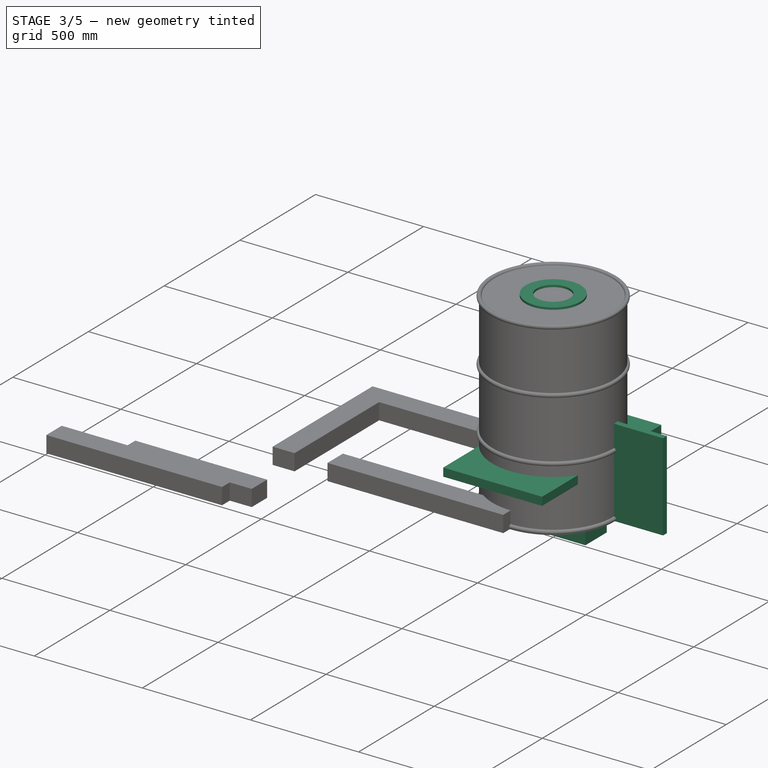
[diagram: stage 3 of 5 — iso view after this stage's code; geometry added in this stage tinted green]
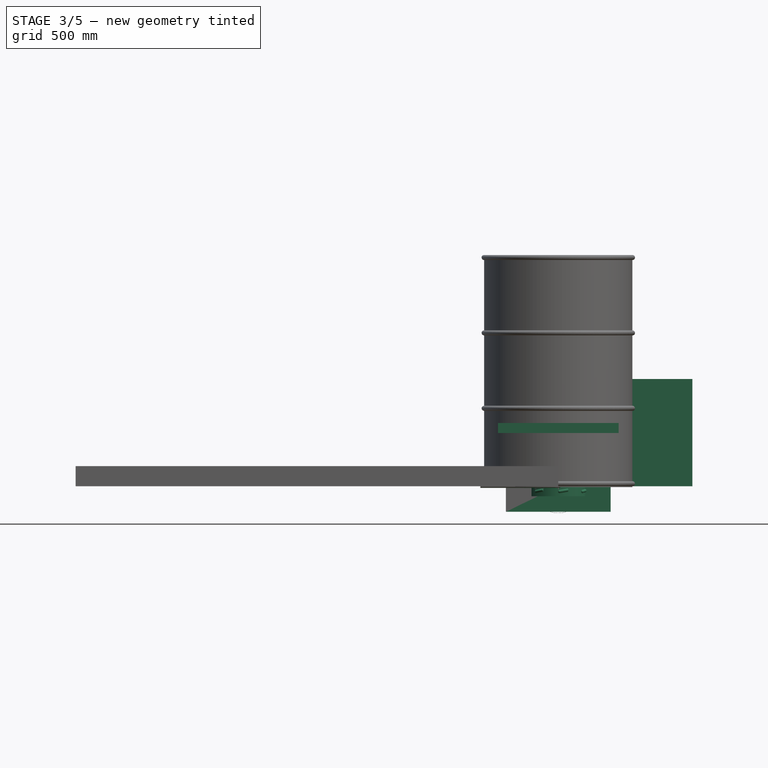
[diagram: stage 3 of 5 — front view after this stage's code; geometry added in this stage tinted green]
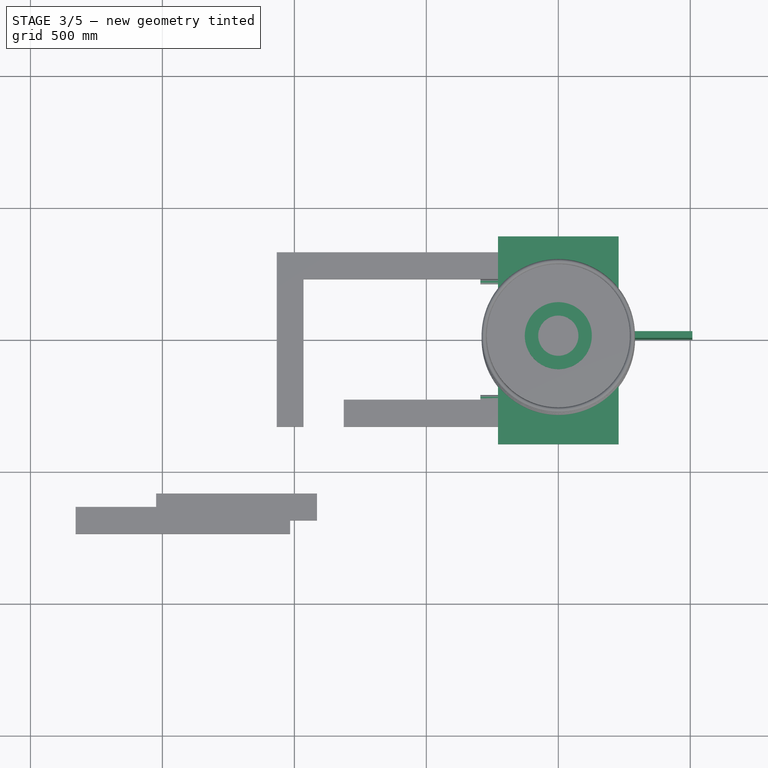
[diagram: stage 3 of 5 — top view after this stage's code; geometry added in this stage tinted green]
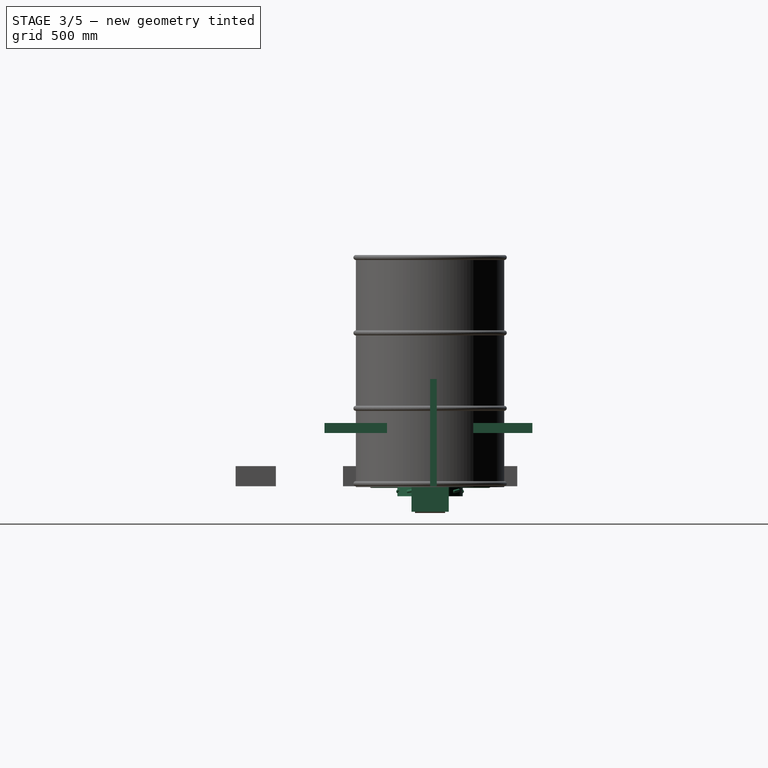
[diagram: stage 3 of 5 — right view after this stage's code; geometry added in this stage tinted green]
FEATURE [PartDesign::Body] Body6760  label="FB-R-2nd-AIR-036"
  Group = -> [Sketch8489,Pad7454,Sketch8490,Pocket702]
  Origin = -> Origin8811
  Placement = pos=(0,0,127) rot=(0,0,-1;1.5708rad)
  Tip = -> Pocket702
FEATURE [App::Part] Part394  label="FB-AIRPORTS"
  Group = -> [Body6759,Body6760]
  Origin = -> Origin8809
  Placement = pos=(0,0,63.5) rot=(0,0,1;0rad)
FEATURE [App::Part] Part391  label="FB-RISER-003"
  Group = -> [Part393,Part386,Part387,Part388,Part392,Part389,Part390,Part394]
  Origin = -> Origin8803
  Placement = pos=(0,571.5,127) rot=(0,0,1;0rad)
FEATURE [App::Part] Part319  label="FB-004"
  Group = -> [Part324,Part325,Part332,Part328,Part321,Part336,Part337,Part391]
  Origin = -> Origin8268
  Placement = pos=(0,0,203.2) rot=(0,0,1;0rad)
FEATURE [PartDesign::Plane] DatumPlane
  AttachmentOffset = pos=(0,0,876.3) rot=(0,0,1;0rad)
  Length = 307.67
  MapMode = 5
  Placement = pos=(0,0,876.3) rot=(0,0,1;0rad)
  ResizeMode = 0
  Support = -> [XY_Plane8006]
  Width = 307.677
FEATURE [Part::Helix] Helix
  Angle = 0
  AttacherType = Attacher::AttachEngine3D
  Height = 6.35
  LocalCoord = 0
  Pitch = 127
  Placement = pos=(0,0,17.4625) rot=(0,0,1;0rad)
  Radius = 121.92
  SegmentLength = 0
  Style = 1
FEATURE [Part::Helix] Helix001
  Angle = 0
  AttacherType = Attacher::AttachEngine3D
  Height = 6.35
  LocalCoord = 0
  Pitch = 127
  Placement = pos=(0,0,-20.6375) rot=(0,0,1;0rad)
  Radius = 121.92
  SegmentLength = 0
  Style = 1
FEATURE [PartDesign::ShapeBinder] ReferenceHelix
  Placement = pos=(0,0,17.4625) rot=(0,0,1;0rad)
  Support = -> [Helix]
  TraceSupport = false
FEATURE [PartDesign::ShapeBinder] ReferenceHelix001
  Placement = pos=(0,0,-20.6375) rot=(0,0,1;0rad)
  Support = -> [Helix001]
  TraceSupport = false
FEATURE [Sketcher::SketchObject] Sketch001
  FullyConstrained = true
  MapMode = 5
  Support = -> [XY_Plane8003]
  sketch-geometry (2):
    g0: Circle CenterX=0 CenterY=0 CenterZ=0 NormalX=0 NormalY=0 NormalZ=1 AngleXU=0 Radius=123.825
    g1: Circle CenterX=0 CenterY=0 CenterZ=0 NormalX=0 NormalY=0 NormalZ=1 AngleXU=0 Radius=76.2
  constraints (4):
    c: Coincident(g0,g-1)
    c: Diameter(g0) = 247.65
    c: Coincident(g1,g0)
    c: Diameter(g1) = 152.4
FEATURE [Sketcher::SketchObject] Sketch002
  ExternalGeometry = -> [Helix]
  FullyConstrained = true
  MapMode = 5
  Placement = pos=(0,0,0) rot=(1,0,0;1.5708rad)
  Support = -> [XZ_Plane8009]
  sketch-geometry (1):
    g0: Circle CenterX=121.92 CenterY=17.4625 CenterZ=0 NormalX=0 NormalY=0 NormalZ=1 AngleXU=0 Radius=6.35
  constraints (2):
    c: Diameter(g0) = 12.7
    c: Coincident(g0,g-3)
FEATURE [Sketcher::SketchObject] Sketch7785
  FullyConstrained = true
  MapMode = 5
  Support = -> [XY_Plane8003]
  sketch-geometry (15):
    g0: Circle CenterX=0 CenterY=0 CenterZ=0 NormalX=0 NormalY=0 NormalZ=1 AngleXU=0 Radius=76.2
    g1: LineSegment StartX=-147.637 StartY=147.637 StartZ=0 EndX=-147.637 EndY=-147.637 EndZ=0
    g2: LineSegment StartX=-147.637 StartY=-147.637 StartZ=0 EndX=147.637 EndY=-147.637 EndZ=0
    g3: LineSegment StartX=147.637 StartY=-147.637 StartZ=0 EndX=147.637 EndY=147.637 EndZ=0
    g4: LineSegment StartX=147.637 StartY=147.637 StartZ=0 EndX=-147.637 EndY=147.637 EndZ=0
    g5: GeomPoint X=0 Y=0 Z=0
    g6: LineSegment StartX=-120.65 StartY=120.65 StartZ=0 EndX=-120.65 EndY=-120.65 EndZ=0
    g7: LineSegment StartX=-120.65 StartY=-120.65 StartZ=0 EndX=120.65 EndY=-120.65 EndZ=0
    g8: LineSegment StartX=120.65 StartY=-120.65 StartZ=0 EndX=120.65 EndY=120.65 EndZ=0
    g9: LineSegment StartX=120.65 StartY=120.65 StartZ=0 EndX=-120.65 EndY=120.65 EndZ=0
    g10: GeomPoint X=0 Y=0 Z=0
    g11: Circle CenterX=-120.65 CenterY=120.65 CenterZ=0 NormalX=0 NormalY=0 NormalZ=1 AngleXU=0 Radius=3.175
    g12: Circle CenterX=120.65 CenterY=120.65 CenterZ=0 NormalX=0 NormalY=0 NormalZ=1 AngleXU=0 Radius=3.175
    g13: Circle CenterX=-120.65 CenterY=-120.65 CenterZ=0 NormalX=0 NormalY=0 NormalZ=1 AngleXU=0 Radius=3.175
    g14: Circle CenterX=120.65 CenterY=-120.65 CenterZ=0 NormalX=0 NormalY=0 NormalZ=1 AngleXU=0 Radius=3.175
  constraints (34):
    c: Coincident(g0,g-1)
    c: Diameter(g0) = 152.4
    c: Coincident(g1,g2)
    c: Coincident(g2,g3)
    c: Coincident(g3,g4)
    c: Coincident(g4,g1)
    c: Horizontal(g2)
    c: Horizontal(g4)
    c: Vertical(g1)
    c: Vertical(g3)
    c: Symmetric(g2,g1,g5)
    c: Coincident(g5,g0)
    c: Coincident(g6,g7)
    c: Coincident(g7,g8)
    c: Coincident(g8,g9)
    c: Coincident(g9,g6)
    c: Horizontal(g7)
    c: Horizontal(g9)
    c: Vertical(g6)
    c: Vertical(g8)
    c: Symmetric(g7,g6,g10)
    c: Coincident(g10,g0)
    c: Coincident(g11,g6)
    c: Coincident(g12,g8)
    c: Coincident(g13,g6)
    c: Coincident(g14,g7)
    c: Equal(g4,g1)
    c: Equal(g11,g12)
    c: Equal(g12,g14)
    c: Equal(g14,g13)
    c: Equal(g6,g9)
    c: Diameter(g12) = 6.35
    c: DistanceY(g1,g1) = 295.275
    c: DistanceX(g9,g9) = 241.3
FEATURE [PartDesign::Pad] Pad6848
  Direction = (0,0,1)
  Length = 3.175
  Length2 = 9.92188
  Profile = -> Sketch7785
  ReferenceAxis = -> Sketch7785 [N_Axis]
  Refine = true
  Type = 0
FEATURE [PartDesign::Pad] Pad001
  BaseFeature = -> Pad6848
  Direction = (0,0,1)
  Length = 38.1
  Length2 = 9.92188
  Profile = -> Sketch001
  ReferenceAxis = -> Sketch001 [N_Axis]
  Refine = true
  Type = 0
FEATURE [PartDesign::Body] Body6155  label="6 STOVE PIPE ADAPTER-01"
  Group = -> [Sketch7785,Pad6848,Sketch001,Pad001,Sketch002,AdditivePipe001,ReferenceHelix,PolarPattern,Fillet,Fillet001]
  Origin = -> Origin8096
  Placement = pos=(0,0,3.175) rot=(0,0,1;0rad)
  Tip = -> Fillet001
FEATURE [Sketcher::SketchObject] Sketch7787
  FullyConstrained = true
  MapMode = 5
  Support = -> [XY_Plane8006]
  sketch-geometry (4):
    g0: Circle CenterX=0 CenterY=0 CenterZ=0 NormalX=0 NormalY=0 NormalZ=1 AngleXU=0 Radius=76.2
    g1: GeomPoint X=0 Y=0 Z=0
    g2: GeomPoint X=0 Y=0 Z=0
    g3: Circle CenterX=0 CenterY=0 CenterZ=0 NormalX=0 NormalY=0 NormalZ=1 AngleXU=0 Radius=127
  constraints (6):
    c: Coincident(g0,g-1)
    c: Diameter(g0) = 152.4
    c: Coincident(g1,g0)
    c: Coincident(g2,g0)
    c: Coincident(g3,g0)
    c: Diameter(g3) = 254
FEATURE [PartDesign::Pad] Pad6850
  Direction = (0,0,1)
  Length = 876.3
  Length2 = 9.92188
  Profile = -> Sketch7787
  ReferenceAxis = -> Sketch7787 [N_Axis]
  Refine = true
  Type = 0
FEATURE [Sketcher::SketchObject] Sketch7788
  FullyConstrained = true
  MapMode = 5
  Support = -> [XY_Plane8006]
  sketch-geometry (2):
    g0: Circle CenterX=0 CenterY=0 CenterZ=0 NormalX=0 NormalY=0 NormalZ=1 AngleXU=0 Radius=123.825
    g1: Circle CenterX=0 CenterY=0 CenterZ=0 NormalX=0 NormalY=0 NormalZ=1 AngleXU=0 Radius=76.2
  constraints (4):
    c: Coincident(g0,g-1)
    c: Diameter(g0) = 247.65
    c: Coincident(g1,g0)
    c: Diameter(g1) = 152.4
FEATURE [PartDesign::Pad] Pad6851
  BaseFeature = -> Pad6850
  Direction = (0,0,1)
  Length = 38.1
  Length2 = 9.92188
  Profile = -> Sketch7788
  ReferenceAxis = -> Sketch7788 [N_Axis]
  Refine = true
  Reversed = true
  Type = 0
FEATURE [Sketcher::SketchObject] Sketch7789
  ExternalGeometry = -> [Helix001]
  FullyConstrained = true
  MapMode = 5
  Placement = pos=(0,0,0) rot=(1,0,0;1.5708rad)
  Support = -> [XZ_Plane8012]
  sketch-geometry (1):
    g0: Circle CenterX=121.92 CenterY=-20.6375 CenterZ=0 NormalX=0 NormalY=0 NormalZ=1 AngleXU=0 Radius=6.35
  constraints (2):
    c: Diameter(g0) = 12.7
    c: Coincident(g0,g-3)
FEATURE [PartDesign::AdditivePipe] AdditivePipe002
  AuxilleryCurvelinear = true
  AuxillerySpineTangent = false
  BaseFeature = -> Pad6851
  Binormal = (0,0,0)
  Mode = 0
  Profile = -> Sketch7789
  Refine = true
  Spine = -> ReferenceHelix001 [Edge1]
  SpineTangent = false
  Transformation = 0
  Transition = 0
FEATURE [PartDesign::Fillet] Fillet002
  Base = -> AdditivePipe002 [Edge18,Edge16]
  BaseFeature = -> AdditivePipe002
  Radius = 3.81
  Refine = true
  SupportTransform = false
  UseAllEdges = false
FEATURE [PartDesign::PolarPattern] PolarPattern001
  Angle = 360
  Axis = -> Z_Axis8012
  BaseFeature = -> Fillet002
  Occurrences = 8
  Originals = -> [AdditivePipe002,Fillet002]
  Refine = true
FEATURE [PartDesign::Body] Body6157  label="6x36 STOVE PIPE-01"
  Group = -> [Sketch7787,Pad6850,Sketch7788,Pad6851,Sketch7789,AdditivePipe002,ReferenceHelix001,Fillet002,PolarPattern001,Fillet003,DatumPlane,Sketch7790,Pocket664]
  Origin = -> Origin8099
  Placement = pos=(-1.08e-13,0,882.65) rot=(0,1,0;3.14159rad)
  Tip = -> Pocket664
FEATURE [App::Part] Part291  label="6IN STOVE PIPE RISER"
  Group = -> [Body6155,Body6157]
  Origin = -> Origin8097
  Placement = pos=(0,571.5,774.7) rot=(0,0,1;0rad)
FEATURE [Sketcher::SketchObject] Sketch183
  FullyConstrained = true
  MapMode = 5
  Support = -> [XY_Plane201]
  sketch-geometry (5):
    g0: LineSegment StartX=228.6 StartY=-400.05 StartZ=0 EndX=-228.6 EndY=-400.05 EndZ=0
    g1: LineSegment StartX=-228.6 StartY=-400.05 StartZ=0 EndX=-228.6 EndY=400.05 EndZ=0
    g2: LineSegment StartX=-228.6 StartY=400.05 StartZ=0 EndX=228.6 EndY=400.05 EndZ=0
    g3: LineSegment StartX=228.6 StartY=400.05 StartZ=0 EndX=228.6 EndY=-400.05 EndZ=0
    g4: GeomPoint X=0 Y=0 Z=0
  constraints (12):
    c: Coincident(g0,g1)
    c: Coincident(g1,g2)
    c: Coincident(g2,g3)
    c: Coincident(g3,g0)
    c: Horizontal(g0)
    c: Horizontal(g2)
    c: Vertical(g1)
    c: Vertical(g3)
    c: DistanceY(g3,g3) = 800.1
    c: DistanceX(g2,g2) = 457.2
    c: Coincident(g4,g-1)
    c: Symmetric(g0,g2,g4)
FEATURE [PartDesign::Pad] Pad183
  Direction = (0,0,1)
  Length = 6.35
  Length2 = 9.92188
  Profile = -> Sketch183
  ReferenceAxis = -> Sketch183 [N_Axis]
  Refine = true
  Type = 0
FEATURE [PartDesign::Pocket] Pocket628
  BaseFeature = -> Pad183
  Direction = (0,-1,0)
  Length = 12.7
  Length2 = 5.15937
  Profile = -> Pad183 [Face3]
  Refine = true
  Type = 0
FEATURE [PartDesign::Body] Body182  label="1/2 CONCRETE-BOARD-001"
  Group = -> [Sketch183,Pad183,Pocket628]
  Origin = -> Origin201
  Placement = pos=(0,0,-1.78e-14) rot=(0,0,1;0rad)
  Tip = -> Pocket628
FEATURE [Part::FeaturePython] Array203  # Draft array (typed FeaturePython)
  AlwaysSyncPlacement = false
  Angle = 360
  ArrayType = 0
  Axis = (0,0,1)
  Base = -> Body182
  Center = (0,0,0)
  Count = 6
  ExpandArray = false
  Fuse = false
  IntervalAxis = (0,0,0)
  IntervalX = (100.012,0,0)
  IntervalY = (0,100.012,0)
  IntervalZ = (0,0,6.35)
  NumberCircles = 3
  NumberPolar = 5
  NumberX = 1
  NumberY = 1
  NumberZ = 6
  Placement = pos=(0,-8.80972e-05,201.613) rot=(0,0,1;0rad)
  PlacementList = 6 placements: arithmetic series from (0,0,-1.78e-14) step (0,0,6.35) to (0,0,31.75)
  RadialDistance = 50
  ScaleList = (6) [(1,1,1),(1,1,1),(1,1,1),(1,1,1),(1,1,1),(1,1,1)]
  Symmetry = 1
  TangentialDistance = 25
FEATURE [Sketcher::SketchObject] Sketch7377
  FullyConstrained = true
  MapMode = 5
  Support = -> [XY_Plane7566]
  sketch-geometry (4):
    g0: LineSegment StartX=0 StartY=0 StartZ=0 EndX=101.6 EndY=0 EndZ=0
    g1: LineSegment StartX=101.6 StartY=0 StartZ=0 EndX=101.6 EndY=203.2 EndZ=0
    g2: LineSegment StartX=101.6 StartY=203.2 StartZ=0 EndX=0 EndY=203.2 EndZ=0
    g3: LineSegment StartX=0 StartY=203.2 StartZ=0 EndX=0 EndY=0 EndZ=0
  constraints (11):
    c: Coincident(g0,g1)
    c: Coincident(g1,g2)
    c: Coincident(g2,g3)
    c: Coincident(g3,g0)
    c: Horizontal(g0)
    c: Horizontal(g2)
    c: Vertical(g1)
    c: Vertical(g3)
    c: Coincident(g0,g-1)
    c: DistanceY(g1,g1) = 203.2
    c: DistanceX(g2,g2) = 101.6
FEATURE [PartDesign::Pad] Pad6470
  Direction = (0,0,1)
  Length = 50.8
  Length2 = 9.92188
  Profile = -> Sketch7377
  ReferenceAxis = -> Sketch7377 [N_Axis]
  Refine = true
  Type = 0
FEATURE [PartDesign::Body] Body5773  label="PAVER-01"
  Group = -> [Sketch7377,Pad6470]
  Origin = -> Origin7659
  Tip = -> Pad6470
FEATURE [Sketcher::SketchObject] Sketch7378
  FullyConstrained = true
  MapMode = 5
  Support = -> [XY_Plane7567]
  sketch-geometry (4):
    g0: LineSegment StartX=0 StartY=0 StartZ=0 EndX=101.6 EndY=0 EndZ=0
    g1: LineSegment StartX=101.6 StartY=0 StartZ=0 EndX=101.6 EndY=101.6 EndZ=0
    g2: LineSegment StartX=101.6 StartY=101.6 StartZ=0 EndX=0 EndY=101.6 EndZ=0
    g3: LineSegment StartX=0 StartY=101.6 StartZ=0 EndX=0 EndY=0 EndZ=0
  constraints (11):
    c: Coincident(g0,g1)
    c: Coincident(g1,g2)
    c: Coincident(g2,g3)
    c: Coincident(g3,g0)
    c: Horizontal(g0)
    c: Horizontal(g2)
    c: Vertical(g1)
    c: Vertical(g3)
    c: Coincident(g0,g-1)
    c: DistanceY(g1,g1) = 101.6
    c: DistanceX(g2,g2) = 101.6
FEATURE [PartDesign::Pad] Pad6471
  Direction = (0,0,1)
  Length = 50.8
  Length2 = 9.92188
  Profile = -> Sketch7378
  ReferenceAxis = -> Sketch7378 [N_Axis]
  Refine = true
  Type = 0
FEATURE [PartDesign::Body] Body5774  label="PAVER-002"
  Group = -> [Sketch7378,Pad6471]
  Origin = -> Origin7660
  Placement = pos=(-101.6,0,0) rot=(0,0,1;0rad)
  Tip = -> Pad6471
FEATURE [Sketcher::SketchObject] Sketch7384
  FullyConstrained = true
  MapMode = 5
  Support = -> [XY_Plane7579]
  sketch-geometry (4):
    g0: LineSegment StartX=0 StartY=0 StartZ=0 EndX=101.6 EndY=0 EndZ=0
    g1: LineSegment StartX=101.6 StartY=0 StartZ=0 EndX=101.6 EndY=152.4 EndZ=0
    g2: LineSegment StartX=101.6 StartY=152.4 StartZ=0 EndX=0 EndY=152.4 EndZ=0
    g3: LineSegment StartX=0 StartY=152.4 StartZ=0 EndX=0 EndY=0 EndZ=0
  constraints (11):
    c: Coincident(g0,g1)
    c: Coincident(g1,g2)
    c: Coincident(g2,g3)
    c: Coincident(g3,g0)
    c: Horizontal(g0)
    c: Horizontal(g2)
    c: Vertical(g1)
    c: Vertical(g3)
    c: Coincident(g0,g-1)
    c: DistanceY(g1,g1) = 152.4
    c: DistanceX(g2,g2) = 101.6
FEATURE [PartDesign::Pad] Pad6477
  Direction = (0,0,1)
  Length = 50.8
  Length2 = 9.92188
  Profile = -> Sketch7384
  ReferenceAxis = -> Sketch7384 [N_Axis]
  Refine = true
  Type = 0
FEATURE [PartDesign::Body] Body5786  label="PAVER-014"
  Group = -> [Sketch7384,Pad6477]
  Origin = -> Origin7672
  Placement = pos=(-203.2,609.6,0) rot=(0,0,1;0rad)
  Tip = -> Pad6477
FEATURE [Sketcher::SketchObject] Sketch7385
  FullyConstrained = true
  MapMode = 5
  Support = -> [XY_Plane7580]
  sketch-geometry (4):
    g0: LineSegment StartX=0 StartY=0 StartZ=0 EndX=101.6 EndY=0 EndZ=0
    g1: LineSegment StartX=101.6 StartY=0 StartZ=0 EndX=101.6 EndY=152.4 EndZ=0
    g2: LineSegment StartX=101.6 StartY=152.4 StartZ=0 EndX=0 EndY=152.4 EndZ=0
    g3: LineSegment StartX=0 StartY=152.4 StartZ=0 EndX=0 EndY=0 EndZ=0
  constraints (11):
    c: Coincident(g0,g1)
    c: Coincident(g1,g2)
    c: Coincident(g2,g3)
    c: Coincident(g3,g0)
    c: Horizontal(g0)
    c: Horizontal(g2)
    c: Vertical(g1)
    c: Vertical(g3)
    c: Coincident(g0,g-1)
    c: DistanceY(g1,g1) = 152.4
    c: DistanceX(g2,g2) = 101.6
FEATURE [PartDesign::Pad] Pad6478
  Direction = (0,0,1)
  Length = 50.8
  Length2 = 9.92188
  Profile = -> Sketch7385
  ReferenceAxis = -> Sketch7385 [N_Axis]
  Refine = true
  Type = 0
FEATURE [PartDesign::Body] Body5787  label="PAVER-015"
  Group = -> [Sketch7385,Pad6478]
  Origin = -> Origin7673
  Placement = pos=(0,609.6,0) rot=(0,0,1;0rad)
  Tip = -> Pad6478
FEATURE [Sketcher::SketchObject] Sketch7386
  FullyConstrained = true
  MapMode = 5
  Support = -> [XY_Plane7581]
  sketch-geometry (4):
    g0: LineSegment StartX=0 StartY=0 StartZ=0 EndX=101.6 EndY=0 EndZ=0
    g1: LineSegment StartX=101.6 StartY=0 StartZ=0 EndX=101.6 EndY=101.6 EndZ=0
    g2: LineSegment StartX=101.6 StartY=101.6 StartZ=0 EndX=0 EndY=101.6 EndZ=0
    g3: LineSegment StartX=0 StartY=101.6 StartZ=0 EndX=0 EndY=0 EndZ=0
  constraints (11):
    c: Coincident(g0,g1)
    c: Coincident(g1,g2)
    c: Coincident(g2,g3)
    c: Coincident(g3,g0)
    c: Horizontal(g0)
    c: Horizontal(g2)
    c: Vertical(g1)
    c: Vertical(g3)
    c: Coincident(g0,g-1)
    c: DistanceY(g1,g1) = 101.6
    c: DistanceX(g2,g2) = 101.6
FEATURE [PartDesign::Pad] Pad6479
  Direction = (0,0,1)
  Length = 50.8
  Length2 = 9.92188
  Profile = -> Sketch7386
  ReferenceAxis = -> Sketch7386 [N_Axis]
  Refine = true
  Type = 0
FEATURE [PartDesign::Body] Body5788  label="PAVER-016"
  Group = -> [Sketch7386,Pad6479]
  Origin = -> Origin7674
  Placement = pos=(101.6,0,0) rot=(0,0,1;0rad)
  Tip = -> Pad6479
FEATURE [Sketcher::SketchObject] Sketch7387
  FullyConstrained = true
  MapMode = 5
  Support = -> [XY_Plane7582]
  sketch-geometry (4):
    g0: LineSegment StartX=0 StartY=0 StartZ=0 EndX=101.6 EndY=0 EndZ=0
    g1: LineSegment StartX=101.6 StartY=0 StartZ=0 EndX=101.6 EndY=203.2 EndZ=0
    g2: LineSegment StartX=101.6 StartY=203.2 StartZ=0 EndX=0 EndY=203.2 EndZ=0
    g3: LineSegment StartX=0 StartY=203.2 StartZ=0 EndX=0 EndY=0 EndZ=0
  constraints (11):
    c: Coincident(g0,g1)
    c: Coincident(g1,g2)
    c: Coincident(g2,g3)
    c: Coincident(g3,g0)
    c: Horizontal(g0)
    c: Horizontal(g2)
    c: Vertical(g1)
    c: Vertical(g3)
    c: Coincident(g0,g-1)
    c: DistanceY(g1,g1) = 203.2
    c: DistanceX(g2,g2) = 101.6
FEATURE [PartDesign::Pad] Pad6480
  Direction = (0,0,1)
  Length = 50.8
  Length2 = 9.92188
  Profile = -> Sketch7387
  ReferenceAxis = -> Sketch7387 [N_Axis]
  Refine = true
  Type = 0
FEATURE [PartDesign::Body] Body5789  label="PAVER-017"
  Group = -> [Sketch7387,Pad6480]
  Origin = -> Origin7675
  Tip = -> Pad6480
FEATURE [Sketcher::SketchObject] Sketch7388
  FullyConstrained = true
  MapMode = 5
  Support = -> [XY_Plane7583]
  sketch-geometry (4):
    g0: LineSegment StartX=0 StartY=0 StartZ=0 EndX=101.6 EndY=0 EndZ=0
    g1: LineSegment StartX=101.6 StartY=0 StartZ=0 EndX=101.6 EndY=203.2 EndZ=0
    g2: LineSegment StartX=101.6 StartY=203.2 StartZ=0 EndX=0 EndY=203.2 EndZ=0
    g3: LineSegment StartX=0 StartY=203.2 StartZ=0 EndX=0 EndY=0 EndZ=0
  constraints (11):
    c: Coincident(g0,g1)
    c: Coincident(g1,g2)
    c: Coincident(g2,g3)
    c: Coincident(g3,g0)
    c: Horizontal(g0)
    c: Horizontal(g2)
    c: Vertical(g1)
    c: Vertical(g3)
    c: Coincident(g0,g-1)
    c: DistanceY(g1,g1) = 203.2
    c: DistanceX(g2,g2) = 101.6
FEATURE [PartDesign::Pad] Pad6481
  Direction = (0,0,1)
  Length = 50.8
  Length2 = 9.92188
  Profile = -> Sketch7388
  ReferenceAxis = -> Sketch7388 [N_Axis]
  Refine = true
  Type = 0
FEATURE [PartDesign::Body] Body5790  label="PAVER-018"
  Group = -> [Sketch7388,Pad6481]
  Origin = -> Origin7676
  Placement = pos=(0,203.2,0) rot=(0,0,1;0rad)
  Tip = -> Pad6481
FEATURE [Sketcher::SketchObject] Sketch7389
  FullyConstrained = true
  MapMode = 5
  Support = -> [XY_Plane7584]
  sketch-geometry (4):
    g0: LineSegment StartX=0 StartY=0 StartZ=0 EndX=101.6 EndY=0 EndZ=0
    g1: LineSegment StartX=101.6 StartY=0 StartZ=0 EndX=101.6 EndY=203.2 EndZ=0
    g2: LineSegment StartX=101.6 StartY=203.2 StartZ=0 EndX=0 EndY=203.2 EndZ=0
    g3: LineSegment StartX=0 StartY=203.2 StartZ=0 EndX=0 EndY=0 EndZ=0
  constraints (11):
    c: Coincident(g0,g1)
    c: Coincident(g1,g2)
    c: Coincident(g2,g3)
    c: Coincident(g3,g0)
    c: Horizontal(g0)
    c: Horizontal(g2)
    c: Vertical(g1)
    c: Vertical(g3)
    c: Coincident(g0,g-1)
    c: DistanceY(g1,g1) = 203.2
    c: DistanceX(g2,g2) = 101.6
FEATURE [PartDesign::Pad] Pad6482
  Direction = (0,0,1)
  Length = 50.8
  Length2 = 9.92188
  Profile = -> Sketch7389
  ReferenceAxis = -> Sketch7389 [N_Axis]
  Refine = true
  Type = 0
FEATURE [PartDesign::Body] Body5791  label="PAVER-019"
  Group = -> [Sketch7389,Pad6482]
  Origin = -> Origin7677
  Placement = pos=(0,406.4,0) rot=(0,0,1;0rad)
  Tip = -> Pad6482
FEATURE [Sketcher::SketchObject] Sketch7390
  FullyConstrained = true
  MapMode = 5
  Support = -> [XY_Plane7585]
  sketch-geometry (4):
    g0: LineSegment StartX=0 StartY=0 StartZ=0 EndX=101.6 EndY=0 EndZ=0
    g1: LineSegment StartX=101.6 StartY=0 StartZ=0 EndX=101.6 EndY=203.2 EndZ=0
    g2: LineSegment StartX=101.6 StartY=203.2 StartZ=0 EndX=0 EndY=203.2 EndZ=0
    g3: LineSegment StartX=0 StartY=203.2 StartZ=0 EndX=0 EndY=0 EndZ=0
  constraints (11):
    c: Coincident(g0,g1)
    c: Coincident(g1,g2)
    c: Coincident(g2,g3)
    c: Coincident(g3,g0)
    c: Horizontal(g0)
    c: Horizontal(g2)
    c: Vertical(g1)
    c: Vertical(g3)
    c: Coincident(g0,g-1)
    c: DistanceY(g1,g1) = 203.2
    c: DistanceX(g2,g2) = 101.6
FEATURE [PartDesign::Pad] Pad6483
  Direction = (0,0,1)
  Length = 50.8
  Length2 = 9.92188
  Profile = -> Sketch7390
  ReferenceAxis = -> Sketch7390 [N_Axis]
  Refine = true
  Type = 0
FEATURE [PartDesign::Body] Body5792  label="PAVER-020"
  Group = -> [Sketch7390,Pad6483]
  Origin = -> Origin7678
  Placement = pos=(-203.2,0,0) rot=(0,0,1;0rad)
  Tip = -> Pad6483
FEATURE [Sketcher::SketchObject] Sketch7391
  FullyConstrained = true
  MapMode = 5
  Support = -> [XY_Plane7586]
  sketch-geometry (4):
    g0: LineSegment StartX=0 StartY=0 StartZ=0 EndX=101.6 EndY=0 EndZ=0
    g1: LineSegment StartX=101.6 StartY=0 StartZ=0 EndX=101.6 EndY=203.2 EndZ=0
    g2: LineSegment StartX=101.6 StartY=203.2 StartZ=0 EndX=0 EndY=203.2 EndZ=0
    g3: LineSegment StartX=0 StartY=203.2 StartZ=0 EndX=0 EndY=0 EndZ=0
  constraints (11):
    c: Coincident(g0,g1)
    c: Coincident(g1,g2)
    c: Coincident(g2,g3)
    c: Coincident(g3,g0)
    c: Horizontal(g0)
    c: Horizontal(g2)
    c: Vertical(g1)
    c: Vertical(g3)
    c: Coincident(g0,g-1)
    c: DistanceY(g1,g1) = 203.2
    c: DistanceX(g2,g2) = 101.6
FEATURE [PartDesign::Pad] Pad6484
  Direction = (0,0,1)
  Length = 50.8
  Length2 = 9.92188
  Profile = -> Sketch7391
  ReferenceAxis = -> Sketch7391 [N_Axis]
  Refine = true
  Type = 0
FEATURE [PartDesign::Body] Body5793  label="PAVER-021"
  Group = -> [Sketch7391,Pad6484]
  Origin = -> Origin7679
  Placement = pos=(-101.6,101.6,0) rot=(0,0,1;0rad)
  Tip = -> Pad6484
FEATURE [Sketcher::SketchObject] Sketch7392
  FullyConstrained = true
  MapMode = 5
  Support = -> [XY_Plane7587]
  sketch-geometry (4):
    g0: LineSegment StartX=0 StartY=0 StartZ=0 EndX=101.6 EndY=0 EndZ=0
    g1: LineSegment StartX=101.6 StartY=0 StartZ=0 EndX=101.6 EndY=203.2 EndZ=0
    g2: LineSegment StartX=101.6 StartY=203.2 StartZ=0 EndX=0 EndY=203.2 EndZ=0
    g3: LineSegment StartX=0 StartY=203.2 StartZ=0 EndX=0 EndY=0 EndZ=0
  constraints (11):
    c: Coincident(g0,g1)
    c: Coincident(g1,g2)
    c: Coincident(g2,g3)
    c: Coincident(g3,g0)
    c: Horizontal(g0)
    c: Horizontal(g2)
    c: Vertical(g1)
    c: Vertical(g3)
    c: Coincident(g0,g-1)
    c: DistanceY(g1,g1) = 203.2
    c: DistanceX(g2,g2) = 101.6
FEATURE [PartDesign::Pad] Pad6485
  Direction = (0,0,1)
  Length = 50.8
  Length2 = 9.92188
  Profile = -> Sketch7392
  ReferenceAxis = -> Sketch7392 [N_Axis]
  Refine = true
  Type = 0
FEATURE [PartDesign::Body] Body5794  label="PAVER-022"
  Group = -> [Sketch7392,Pad6485]
  Origin = -> Origin7680
  Placement = pos=(101.6,101.6,0) rot=(0,0,1;0rad)
  Tip = -> Pad6485
FEATURE [Sketcher::SketchObject] Sketch7393
  FullyConstrained = true
  MapMode = 5
  Support = -> [XY_Plane7588]
  sketch-geometry (4):
    g0: LineSegment StartX=0 StartY=0 StartZ=0 EndX=101.6 EndY=0 EndZ=0
    g1: LineSegment StartX=101.6 StartY=0 StartZ=0 EndX=101.6 EndY=203.2 EndZ=0
    g2: LineSegment StartX=101.6 StartY=203.2 StartZ=0 EndX=0 EndY=203.2 EndZ=0
    g3: LineSegment StartX=0 StartY=203.2 StartZ=0 EndX=0 EndY=0 EndZ=0
  constraints (11):
    c: Coincident(g0,g1)
    c: Coincident(g1,g2)
    c: Coincident(g2,g3)
    c: Coincident(g3,g0)
    c: Horizontal(g0)
    c: Horizontal(g2)
    c: Vertical(g1)
    c: Vertical(g3)
    c: Coincident(g0,g-1)
    c: DistanceY(g1,g1) = 203.2
    c: DistanceX(g2,g2) = 101.6
FEATURE [PartDesign::Pad] Pad6486
  Direction = (0,0,1)
  Length = 50.8
  Length2 = 9.92188
  Profile = -> Sketch7393
  ReferenceAxis = -> Sketch7393 [N_Axis]
  Refine = true
  Type = 0
FEATURE [PartDesign::Body] Body5795  label="PAVER-023"
  Group = -> [Sketch7393,Pad6486]
  Origin = -> Origin7681
  Placement = pos=(-203.2,203.2,0) rot=(0,0,1;0rad)
  Tip = -> Pad6486
FEATURE [Sketcher::SketchObject] Sketch7394
  FullyConstrained = true
  MapMode = 5
  Support = -> [XY_Plane7589]
  sketch-geometry (4):
    g0: LineSegment StartX=0 StartY=0 StartZ=0 EndX=101.6 EndY=0 EndZ=0
    g1: LineSegment StartX=101.6 StartY=0 StartZ=0 EndX=101.6 EndY=203.2 EndZ=0
    g2: LineSegment StartX=101.6 StartY=203.2 StartZ=0 EndX=0 EndY=203.2 EndZ=0
    g3: LineSegment StartX=0 StartY=203.2 StartZ=0 EndX=0 EndY=0 EndZ=0
  constraints (11):
    c: Coincident(g0,g1)
    c: Coincident(g1,g2)
    c: Coincident(g2,g3)
    c: Coincident(g3,g0)
    c: Horizontal(g0)
    c: Horizontal(g2)
    c: Vertical(g1)
    c: Vertical(g3)
    c: Coincident(g0,g-1)
    c: DistanceY(g1,g1) = 203.2
    c: DistanceX(g2,g2) = 101.6
FEATURE [PartDesign::Pad] Pad6487
  Direction = (0,0,1)
  Length = 50.8
  Length2 = 9.92188
  Profile = -> Sketch7394
  ReferenceAxis = -> Sketch7394 [N_Axis]
  Refine = true
  Type = 0
FEATURE [PartDesign::Body] Body5796  label="PAVER-024"
  Group = -> [Sketch7394,Pad6487]
  Origin = -> Origin7682
  Placement = pos=(-101.6,304.8,0) rot=(0,0,1;0rad)
  Tip = -> Pad6487
FEATURE [Sketcher::SketchObject] Sketch7395
  FullyConstrained = true
  MapMode = 5
  Support = -> [XY_Plane7590]
  sketch-geometry (4):
    g0: LineSegment StartX=0 StartY=0 StartZ=0 EndX=101.6 EndY=0 EndZ=0
    g1: LineSegment StartX=101.6 StartY=0 StartZ=0 EndX=101.6 EndY=203.2 EndZ=0
    g2: LineSegment StartX=101.6 StartY=203.2 StartZ=0 EndX=0 EndY=203.2 EndZ=0
    g3: LineSegment StartX=0 StartY=203.2 StartZ=0 EndX=0 EndY=0 EndZ=0
  constraints (11):
    c: Coincident(g0,g1)
    c: Coincident(g1,g2)
    c: Coincident(g2,g3)
    c: Coincident(g3,g0)
    c: Horizontal(g0)
    c: Horizontal(g2)
    c: Vertical(g1)
    c: Vertical(g3)
    c: Coincident(g0,g-1)
    c: DistanceY(g1,g1) = 203.2
    c: DistanceX(g2,g2) = 101.6
FEATURE [PartDesign::Pad] Pad6488
  Direction = (0,0,1)
  Length = 50.8
  Length2 = 9.92188
  Profile = -> Sketch7395
  ReferenceAxis = -> Sketch7395 [N_Axis]
  Refine = true
  Type = 0
FEATURE [PartDesign::Body] Body5797  label="PAVER-025"
  Group = -> [Sketch7395,Pad6488]
  Origin = -> Origin7683
  Placement = pos=(101.6,304.8,0) rot=(0,0,1;0rad)
  Tip = -> Pad6488
FEATURE [Sketcher::SketchObject] Sketch7396
  FullyConstrained = true
  MapMode = 5
  Support = -> [XY_Plane7591]
  sketch-geometry (4):
    g0: LineSegment StartX=0 StartY=0 StartZ=0 EndX=101.6 EndY=0 EndZ=0
    g1: LineSegment StartX=101.6 StartY=0 StartZ=0 EndX=101.6 EndY=203.2 EndZ=0
    g2: LineSegment StartX=101.6 StartY=203.2 StartZ=0 EndX=0 EndY=203.2 EndZ=0
    g3: LineSegment StartX=0 StartY=203.2 StartZ=0 EndX=0 EndY=0 EndZ=0
  constraints (11):
    c: Coincident(g0,g1)
    c: Coincident(g1,g2)
    c: Coincident(g2,g3)
    c: Coincident(g3,g0)
    c: Horizontal(g0)
    c: Horizontal(g2)
    c: Vertical(g1)
    c: Vertical(g3)
    c: Coincident(g0,g-1)
    c: DistanceY(g1,g1) = 203.2
    c: DistanceX(g2,g2) = 101.6
FEATURE [PartDesign::Pad] Pad6489
  Direction = (0,0,1)
  Length = 50.8
  Length2 = 9.92188
  Profile = -> Sketch7396
  ReferenceAxis = -> Sketch7396 [N_Axis]
  Refine = true
  Type = 0
FEATURE [PartDesign::Body] Body5798  label="PAVER-026"
  Group = -> [Sketch7396,Pad6489]
  Origin = -> Origin7684
  Placement = pos=(101.6,508,0) rot=(0,0,1;0rad)
  Tip = -> Pad6489
FEATURE [Sketcher::SketchObject] Sketch7397
  FullyConstrained = true
  MapMode = 5
  Support = -> [XY_Plane7592]
  sketch-geometry (4):
    g0: LineSegment StartX=0 StartY=0 StartZ=0 EndX=101.6 EndY=0 EndZ=0
    g1: LineSegment StartX=101.6 StartY=0 StartZ=0 EndX=101.6 EndY=203.2 EndZ=0
    g2: LineSegment StartX=101.6 StartY=203.2 StartZ=0 EndX=0 EndY=203.2 EndZ=0
    g3: LineSegment StartX=0 StartY=203.2 StartZ=0 EndX=0 EndY=0 EndZ=0
  constraints (11):
    c: Coincident(g0,g1)
    c: Coincident(g1,g2)
    c: Coincident(g2,g3)
    c: Coincident(g3,g0)
    c: Horizontal(g0)
    c: Horizontal(g2)
    c: Vertical(g1)
    c: Vertical(g3)
    c: Coincident(g0,g-1)
    c: DistanceY(g1,g1) = 203.2
    c: DistanceX(g2,g2) = 101.6
FEATURE [PartDesign::Pad] Pad6490
  Direction = (0,0,1)
  Length = 50.8
  Length2 = 9.92188
  Profile = -> Sketch7397
  ReferenceAxis = -> Sketch7397 [N_Axis]
  Refine = true
  Type = 0
FEATURE [PartDesign::Body] Body5799  label="PAVER-027"
  Group = -> [Sketch7397,Pad6490]
  Origin = -> Origin7685
  Placement = pos=(-101.6,508,0) rot=(0,0,1;0rad)
  Tip = -> Pad6490
FEATURE [Sketcher::SketchObject] Sketch7398
  FullyConstrained = true
  MapMode = 5
  Support = -> [XY_Plane7593]
  sketch-geometry (4):
    g0: LineSegment StartX=0 StartY=0 StartZ=0 EndX=101.6 EndY=0 EndZ=0
    g1: LineSegment StartX=101.6 StartY=0 StartZ=0 EndX=101.6 EndY=203.2 EndZ=0
    g2: LineSegment StartX=101.6 StartY=203.2 StartZ=0 EndX=0 EndY=203.2 EndZ=0
    g3: LineSegment StartX=0 StartY=203.2 StartZ=0 EndX=0 EndY=0 EndZ=0
  constraints (11):
    c: Coincident(g0,g1)
    c: Coincident(g1,g2)
    c: Coincident(g2,g3)
    c: Coincident(g3,g0)
    c: Horizontal(g0)
    c: Horizontal(g2)
    c: Vertical(g1)
    c: Vertical(g3)
    c: Coincident(g0,g-1)
    c: DistanceY(g1,g1) = 203.2
    c: DistanceX(g2,g2) = 101.6
FEATURE [PartDesign::Pad] Pad6491
  Direction = (0,0,1)
  Length = 50.8
  Length2 = 9.92188
  Profile = -> Sketch7398
  ReferenceAxis = -> Sketch7398 [N_Axis]
  Refine = true
  Type = 0
FEATURE [PartDesign::Body] Body5800  label="PAVER-028"
  Group = -> [Sketch7398,Pad6491]
  Origin = -> Origin7686
  Placement = pos=(-203.2,406.4,0) rot=(0,0,1;0rad)
  Tip = -> Pad6491
FEATURE [Sketcher::SketchObject] Sketch7399
  FullyConstrained = true
  MapMode = 5
  Support = -> [XY_Plane7594]
  sketch-geometry (4):
    g0: LineSegment StartX=0 StartY=0 StartZ=0 EndX=101.6 EndY=0 EndZ=0
    g1: LineSegment StartX=101.6 StartY=0 StartZ=0 EndX=101.6 EndY=50.8 EndZ=0
    g2: LineSegment StartX=101.6 StartY=50.8 StartZ=0 EndX=0 EndY=50.8 EndZ=0
    g3: LineSegment StartX=0 StartY=50.8 StartZ=0 EndX=0 EndY=0 EndZ=0
  constraints (11):
    c: Coincident(g0,g1)
    c: Coincident(g1,g2)
    c: Coincident(g2,g3)
    c: Coincident(g3,g0)
    c: Horizontal(g0)
    c: Horizontal(g2)
    c: Vertical(g1)
    c: Vertical(g3)
    c: Coincident(g0,g-1)
    c: DistanceY(g1,g1) = 50.8
    c: DistanceX(g2,g2) = 101.6
FEATURE [PartDesign::Pad] Pad6492
  Direction = (0,0,1)
  Length = 50.8
  Length2 = 9.92188
  Profile = -> Sketch7399
  ReferenceAxis = -> Sketch7399 [N_Axis]
  Refine = true
  Type = 0
FEATURE [PartDesign::Body] Body5801  label="PAVER-029"
  Group = -> [Sketch7399,Pad6492]
  Origin = -> Origin7687
  Placement = pos=(-101.6,711.2,0) rot=(0,0,1;0rad)
  Tip = -> Pad6492
FEATURE [Sketcher::SketchObject] Sketch7400
  FullyConstrained = true
  MapMode = 5
  Support = -> [XY_Plane7595]
  sketch-geometry (4):
    g0: LineSegment StartX=0 StartY=0 StartZ=0 EndX=101.6 EndY=0 EndZ=0
    g1: LineSegment StartX=101.6 StartY=0 StartZ=0 EndX=101.6 EndY=50.8 EndZ=0
    g2: LineSegment StartX=101.6 StartY=50.8 StartZ=0 EndX=0 EndY=50.8 EndZ=0
    g3: LineSegment StartX=0 StartY=50.8 StartZ=0 EndX=0 EndY=0 EndZ=0
  constraints (11):
    c: Coincident(g0,g1)
    c: Coincident(g1,g2)
    c: Coincident(g2,g3)
    c: Coincident(g3,g0)
    c: Horizontal(g0)
    c: Horizontal(g2)
    c: Vertical(g1)
    c: Vertical(g3)
    c: Coincident(g0,g-1)
    c: DistanceY(g1,g1) = 50.8
    c: DistanceX(g2,g2) = 101.6
FEATURE [PartDesign::Pad] Pad6493
  Direction = (0,0,1)
  Length = 50.8
  Length2 = 9.92188
  Profile = -> Sketch7400
  ReferenceAxis = -> Sketch7400 [N_Axis]
  Refine = true
  Type = 0
FEATURE [PartDesign::Body] Body5802  label="PAVER-030"
  Group = -> [Sketch7400,Pad6493]
  Origin = -> Origin7688
  Placement = pos=(101.6,711.2,0) rot=(0,0,1;0rad)
  Tip = -> Pad6493
FEATURE [App::Part] Part241  label="2in PAVERS"
  Group = -> [Body5773,Body5774,Body5786,Body5787,Body5788,Body5789,Body5790,Body5791,Body5792,Body5793,Body5794,Body5795,Body5796,Body5797,Body5798,Body5799,Body5800,Body5801,Body5802]
  Origin = -> Origin7658
  Placement = pos=(0,-376.237,-131.762) rot=(0,0,1;0rad)
FEATURE [Sketcher::SketchObject] Sketch8045
  FullyConstrained = true
  MapMode = 5
  Support = -> [XY_Plane8277]
  sketch-geometry (15):
    g0: LineSegment StartX=-198.438 StartY=70.6437 StartZ=0 EndX=-198.438 EndY=-70.6437 EndZ=0
    g1: LineSegment StartX=-198.438 StartY=-70.6437 StartZ=0 EndX=198.438 EndY=-70.6437 EndZ=0
    g2: LineSegment StartX=198.438 StartY=-70.6437 StartZ=0 EndX=198.438 EndY=70.6437 EndZ=0
    g3: LineSegment StartX=198.438 StartY=70.6437 StartZ=0 EndX=-198.438 EndY=70.6437 EndZ=0
    g4: GeomPoint X=0 Y=0 Z=0
    g5: LineSegment StartX=-160.338 StartY=26.1937 StartZ=0 EndX=-160.338 EndY=-26.1937 EndZ=0
    g6: LineSegment StartX=-160.338 StartY=-26.1937 StartZ=0 EndX=-19.05 EndY=-26.1937 EndZ=0
    g7: LineSegment StartX=-19.05 StartY=-26.1937 StartZ=0 EndX=-19.05 EndY=26.1937 EndZ=0
    g8: LineSegment StartX=-19.05 StartY=26.1937 StartZ=0 EndX=-160.338 EndY=26.1937 EndZ=0
    g9: GeomPoint X=-89.6938 Y=0 Z=0
    g10: LineSegment StartX=19.05 StartY=26.1937 StartZ=0 EndX=19.05 EndY=-26.1937 EndZ=0
    g11: LineSegment StartX=19.05 StartY=-26.1937 StartZ=0 EndX=160.338 EndY=-26.1937 EndZ=0
    g12: LineSegment StartX=160.338 StartY=-26.1937 StartZ=0 EndX=160.338 EndY=26.1937 EndZ=0
    g13: LineSegment StartX=160.338 StartY=26.1937 StartZ=0 EndX=19.05 EndY=26.1937 EndZ=0
    g14: GeomPoint X=89.6937 Y=0 Z=0
  constraints (37):
    c: Coincident(g0,g1)
    c: Coincident(g1,g2)
    c: Coincident(g2,g3)
    c: Coincident(g3,g0)
    c: Horizontal(g1)
    c: Horizontal(g3)
    c: Vertical(g0)
    c: Vertical(g2)
    c: Symmetric(g1,g0,g4)
    c: Coincident(g4,g-1)
    c: Coincident(g5,g6)
    c: Coincident(g6,g7)
    c: Coincident(g7,g8)
    c: Coincident(g8,g5)
    c: Horizontal(g6)
    c: Horizontal(g8)
    c: Vertical(g5)
    c: Vertical(g7)
    c: Symmetric(g6,g5,g9)
    c: PointOnObject(g9,g-1)
    c: Coincident(g10,g11)
    c: Coincident(g11,g12)
    c: Coincident(g12,g13)
    c: Coincident(g13,g10)
    c: Horizontal(g11)
    c: Horizontal(g13)
    c: Vertical(g10)
    c: Vertical(g12)
    c: Symmetric(g11,g10,g14)
    c: PointOnObject(g14,g-1)
    c: Symmetric(g7,g10,g-2)
    c: DistanceY(g0,g0) = 141.287
    c: Equal(g6,g11)
    c: DistanceX(g1,g1) = 396.875
    c: DistanceX(g7,g10) = 38.1
    c: DistanceX(g12,g2) = 38.1
    c: DistanceY(g5,g0) = 44.45
FEATURE [PartDesign::Pad] Pad7078
  Direction = (0,0,1)
  Length = 193.675
  Length2 = 9.92188
  Midplane = true
  Profile = -> Sketch8045
  ReferenceAxis = -> Sketch8045 [N_Axis]
  Refine = true
  Type = 0
FEATURE [PartDesign::Body] Body6383  label="CONCRETE BLOCK-007"
  Group = -> [Sketch8045,Pad7078]
  Origin = -> Origin8370
  Placement = pos=(-2.71e-13,279.4,-40.4812) rot=(0,0.707107,-0.707107;3.14159rad)
  Tip = -> Pad7078
FEATURE [Sketcher::SketchObject] Sketch8046
  FullyConstrained = true
  MapMode = 5
  Support = -> [XY_Plane8278]
  sketch-geometry (15):
    g0: LineSegment StartX=-198.438 StartY=70.6437 StartZ=0 EndX=-198.438 EndY=-70.6437 EndZ=0
    g1: LineSegment StartX=-198.438 StartY=-70.6437 StartZ=0 EndX=198.438 EndY=-70.6437 EndZ=0
    g2: LineSegment StartX=198.438 StartY=-70.6437 StartZ=0 EndX=198.438 EndY=70.6437 EndZ=0
    g3: LineSegment StartX=198.438 StartY=70.6437 StartZ=0 EndX=-198.438 EndY=70.6437 EndZ=0
    g4: GeomPoint X=0 Y=0 Z=0
    g5: LineSegment StartX=-160.338 StartY=26.1937 StartZ=0 EndX=-160.338 EndY=-26.1937 EndZ=0
    g6: LineSegment StartX=-160.338 StartY=-26.1937 StartZ=0 EndX=-19.05 EndY=-26.1937 EndZ=0
    g7: LineSegment StartX=-19.05 StartY=-26.1937 StartZ=0 EndX=-19.05 EndY=26.1937 EndZ=0
    g8: LineSegment StartX=-19.05 StartY=26.1937 StartZ=0 EndX=-160.338 EndY=26.1937 EndZ=0
    g9: GeomPoint X=-89.6938 Y=0 Z=0
    g10: LineSegment StartX=19.05 StartY=26.1937 StartZ=0 EndX=19.05 EndY=-26.1937 EndZ=0
    g11: LineSegment StartX=19.05 StartY=-26.1937 StartZ=0 EndX=160.338 EndY=-26.1937 EndZ=0
    g12: LineSegment StartX=160.338 StartY=-26.1937 StartZ=0 EndX=160.338 EndY=26.1937 EndZ=0
    g13: LineSegment StartX=160.338 StartY=26.1937 StartZ=0 EndX=19.05 EndY=26.1937 EndZ=0
    g14: GeomPoint X=89.6937 Y=0 Z=0
  constraints (37):
    c: Coincident(g0,g1)
    c: Coincident(g1,g2)
    c: Coincident(g2,g3)
    c: Coincident(g3,g0)
    c: Horizontal(g1)
    c: Horizontal(g3)
    c: Vertical(g0)
    c: Vertical(g2)
    c: Symmetric(g1,g0,g4)
    c: Coincident(g4,g-1)
    c: Coincident(g5,g6)
    c: Coincident(g6,g7)
    c: Coincident(g7,g8)
    c: Coincident(g8,g5)
    c: Horizontal(g6)
    c: Horizontal(g8)
    c: Vertical(g5)
    c: Vertical(g7)
    c: Symmetric(g6,g5,g9)
    c: PointOnObject(g9,g-1)
    c: Coincident(g10,g11)
    c: Coincident(g11,g12)
    c: Coincident(g12,g13)
    c: Coincident(g13,g10)
    c: Horizontal(g11)
    c: Horizontal(g13)
    c: Vertical(g10)
    c: Vertical(g12)
    c: Symmetric(g11,g10,g14)
    c: PointOnObject(g14,g-1)
    c: Symmetric(g7,g10,g-2)
    c: DistanceY(g0,g0) = 141.287
    c: Equal(g6,g11)
    c: DistanceX(g1,g1) = 396.875
    c: DistanceX(g7,g10) = 38.1
    c: DistanceX(g12,g2) = 38.1
    c: DistanceY(g5,g0) = 44.45
FEATURE [PartDesign::Pad] Pad7079
  Direction = (0,0,1)
  Length = 193.675
  Length2 = 9.92188
  Midplane = true
  Profile = -> Sketch8046
  ReferenceAxis = -> Sketch8046 [N_Axis]
  Refine = true
  Type = 0
FEATURE [PartDesign::Body] Body6384  label="CONCRETE BLOCK-008"
  Group = -> [Sketch8046,Pad7079]
  Origin = -> Origin8371
  Placement = pos=(-2.71e-13,279.4,100.806) rot=(0,0.707107,-0.707107;3.14159rad)
  Tip = -> Pad7079
FEATURE [Sketcher::SketchObject] Sketch8047
  FullyConstrained = true
  MapMode = 5
  Support = -> [XY_Plane8279]
  sketch-geometry (15):
    g0: LineSegment StartX=-198.438 StartY=70.6437 StartZ=0 EndX=-198.438 EndY=-70.6437 EndZ=0
    g1: LineSegment StartX=-198.438 StartY=-70.6437 StartZ=0 EndX=198.438 EndY=-70.6437 EndZ=0
    g2: LineSegment StartX=198.438 StartY=-70.6437 StartZ=0 EndX=198.438 EndY=70.6437 EndZ=0
    g3: LineSegment StartX=198.438 StartY=70.6437 StartZ=0 EndX=-198.438 EndY=70.6437 EndZ=0
    g4: GeomPoint X=0 Y=0 Z=0
    g5: LineSegment StartX=-160.338 StartY=26.1937 StartZ=0 EndX=-160.338 EndY=-26.1937 EndZ=0
    g6: LineSegment StartX=-160.338 StartY=-26.1937 StartZ=0 EndX=-19.05 EndY=-26.1937 EndZ=0
    g7: LineSegment StartX=-19.05 StartY=-26.1937 StartZ=0 EndX=-19.05 EndY=26.1937 EndZ=0
    g8: LineSegment StartX=-19.05 StartY=26.1937 StartZ=0 EndX=-160.338 EndY=26.1937 EndZ=0
    g9: GeomPoint X=-89.6938 Y=0 Z=0
    g10: LineSegment StartX=19.05 StartY=26.1937 StartZ=0 EndX=19.05 EndY=-26.1937 EndZ=0
    g11: LineSegment StartX=19.05 StartY=-26.1937 StartZ=0 EndX=160.338 EndY=-26.1937 EndZ=0
    g12: LineSegment StartX=160.338 StartY=-26.1937 StartZ=0 EndX=160.338 EndY=26.1937 EndZ=0
    g13: LineSegment StartX=160.338 StartY=26.1937 StartZ=0 EndX=19.05 EndY=26.1937 EndZ=0
    g14: GeomPoint X=89.6937 Y=0 Z=0
  constraints (37):
    c: Coincident(g0,g1)
    c: Coincident(g1,g2)
    c: Coincident(g2,g3)
    c: Coincident(g3,g0)
    c: Horizontal(g1)
    c: Horizontal(g3)
    c: Vertical(g0)
    c: Vertical(g2)
    c: Symmetric(g1,g0,g4)
    c: Coincident(g4,g-1)
    c: Coincident(g5,g6)
    c: Coincident(g6,g7)
    c: Coincident(g7,g8)
    c: Coincident(g8,g5)
    c: Horizontal(g6)
    c: Horizontal(g8)
    c: Vertical(g5)
    c: Vertical(g7)
    c: Symmetric(g6,g5,g9)
    c: PointOnObject(g9,g-1)
    c: Coincident(g10,g11)
    c: Coincident(g11,g12)
    c: Coincident(g12,g13)
    c: Coincident(g13,g10)
    c: Horizontal(g11)
    c: Horizontal(g13)
    c: Vertical(g10)
    c: Vertical(g12)
    c: Symmetric(g11,g10,g14)
    c: PointOnObject(g14,g-1)
    c: Symmetric(g7,g10,g-2)
    c: DistanceY(g0,g0) = 141.287
    c: Equal(g6,g11)
    c: DistanceX(g1,g1) = 396.875
    c: DistanceX(g7,g10) = 38.1
    c: DistanceX(g12,g2) = 38.1
    c: DistanceY(g5,g0) = 44.45
FEATURE [PartDesign::Pad] Pad7080
  Direction = (0,0,1)
  Length = 193.675
  Length2 = 9.92188
  Midplane = true
  Profile = -> Sketch8047
  ReferenceAxis = -> Sketch8047 [N_Axis]
  Refine = true
  Type = 0
FEATURE [PartDesign::Body] Body6385  label="CONCRETE BLOCK-009"
  Group = -> [Sketch8047,Pad7080]
  Origin = -> Origin8372
  Placement = pos=(-2.71e-13,1.71e-13,-40.4812) rot=(0,0.707107,-0.707107;3.14159rad)
  Tip = -> Pad7080
FEATURE [Sketcher::SketchObject] Sketch8048
  FullyConstrained = true
  MapMode = 5
  Support = -> [XY_Plane8280]
  sketch-geometry (15):
    g0: LineSegment StartX=-198.438 StartY=70.6437 StartZ=0 EndX=-198.438 EndY=-70.6437 EndZ=0
    g1: LineSegment StartX=-198.438 StartY=-70.6437 StartZ=0 EndX=198.438 EndY=-70.6437 EndZ=0
    g2: LineSegment StartX=198.438 StartY=-70.6437 StartZ=0 EndX=198.438 EndY=70.6437 EndZ=0
    g3: LineSegment StartX=198.438 StartY=70.6437 StartZ=0 EndX=-198.438 EndY=70.6437 EndZ=0
    g4: GeomPoint X=0 Y=0 Z=0
    g5: LineSegment StartX=-160.338 StartY=26.1937 StartZ=0 EndX=-160.338 EndY=-26.1937 EndZ=0
    g6: LineSegment StartX=-160.338 StartY=-26.1937 StartZ=0 EndX=-19.05 EndY=-26.1937 EndZ=0
    g7: LineSegment StartX=-19.05 StartY=-26.1937 StartZ=0 EndX=-19.05 EndY=26.1937 EndZ=0
    g8: LineSegment StartX=-19.05 StartY=26.1937 StartZ=0 EndX=-160.338 EndY=26.1937 EndZ=0
    g9: GeomPoint X=-89.6938 Y=0 Z=0
    g10: LineSegment StartX=19.05 StartY=26.1937 StartZ=0 EndX=19.05 EndY=-26.1937 EndZ=0
    g11: LineSegment StartX=19.05 StartY=-26.1937 StartZ=0 EndX=160.338 EndY=-26.1937 EndZ=0
    g12: LineSegment StartX=160.338 StartY=-26.1937 StartZ=0 EndX=160.338 EndY=26.1937 EndZ=0
    g13: LineSegment StartX=160.338 StartY=26.1937 StartZ=0 EndX=19.05 EndY=26.1937 EndZ=0
    g14: GeomPoint X=89.6937 Y=0 Z=0
  constraints (37):
    c: Coincident(g0,g1)
    c: Coincident(g1,g2)
    c: Coincident(g2,g3)
    c: Coincident(g3,g0)
    c: Horizontal(g1)
    c: Horizontal(g3)
    c: Vertical(g0)
    c: Vertical(g2)
    c: Symmetric(g1,g0,g4)
    c: Coincident(g4,g-1)
    c: Coincident(g5,g6)
    c: Coincident(g6,g7)
    c: Coincident(g7,g8)
    c: Coincident(g8,g5)
    c: Horizontal(g6)
    c: Horizontal(g8)
    c: Vertical(g5)
    c: Vertical(g7)
    c: Symmetric(g6,g5,g9)
    c: PointOnObject(g9,g-1)
    c: Coincident(g10,g11)
    c: Coincident(g11,g12)
    c: Coincident(g12,g13)
    c: Coincident(g13,g10)
    c: Horizontal(g11)
    c: Horizontal(g13)
    c: Vertical(g10)
    c: Vertical(g12)
    c: Symmetric(g11,g10,g14)
    c: PointOnObject(g14,g-1)
    c: Symmetric(g7,g10,g-2)
    c: DistanceY(g0,g0) = 141.287
    c: Equal(g6,g11)
    c: DistanceX(g1,g1) = 396.875
    c: DistanceX(g7,g10) = 38.1
    c: DistanceX(g12,g2) = 38.1
    c: DistanceY(g5,g0) = 44.45
FEATURE [PartDesign::Pad] Pad7081
  Direction = (0,0,1)
  Length = 193.675
  Length2 = 9.92188
  Midplane = true
  Profile = -> Sketch8048
  ReferenceAxis = -> Sketch8048 [N_Axis]
  Refine = true
  Type = 0
FEATURE [PartDesign::Body] Body6386  label="CONCRETE BLOCK-010"
  Group = -> [Sketch8048,Pad7081]
  Origin = -> Origin8373
  Placement = pos=(-2.71e-13,9.1e-14,100.806) rot=(0,0.707107,-0.707107;3.14159rad)
  Tip = -> Pad7081
FEATURE [Sketcher::SketchObject] Sketch8049
  FullyConstrained = true
  MapMode = 5
  Support = -> [XY_Plane8281]
  sketch-geometry (15):
    g0: LineSegment StartX=-198.438 StartY=70.6437 StartZ=0 EndX=-198.438 EndY=-70.6437 EndZ=0
    g1: LineSegment StartX=-198.438 StartY=-70.6437 StartZ=0 EndX=198.438 EndY=-70.6437 EndZ=0
    g2: LineSegment StartX=198.438 StartY=-70.6437 StartZ=0 EndX=198.438 EndY=70.6437 EndZ=0
    g3: LineSegment StartX=198.438 StartY=70.6437 StartZ=0 EndX=-198.438 EndY=70.6437 EndZ=0
    g4: GeomPoint X=0 Y=0 Z=0
    g5: LineSegment StartX=-160.338 StartY=26.1937 StartZ=0 EndX=-160.338 EndY=-26.1937 EndZ=0
    g6: LineSegment StartX=-160.338 StartY=-26.1937 StartZ=0 EndX=-19.05 EndY=-26.1937 EndZ=0
    g7: LineSegment StartX=-19.05 StartY=-26.1937 StartZ=0 EndX=-19.05 EndY=26.1937 EndZ=0
    g8: LineSegment StartX=-19.05 StartY=26.1937 StartZ=0 EndX=-160.338 EndY=26.1937 EndZ=0
    g9: GeomPoint X=-89.6938 Y=0 Z=0
    g10: LineSegment StartX=19.05 StartY=26.1937 StartZ=0 EndX=19.05 EndY=-26.1938 EndZ=0
    g11: LineSegment StartX=19.05 StartY=-26.1938 StartZ=0 EndX=160.338 EndY=-26.1938 EndZ=0
    g12: LineSegment StartX=160.338 StartY=-26.1938 StartZ=0 EndX=160.338 EndY=26.1937 EndZ=0
    g13: LineSegment StartX=160.338 StartY=26.1937 StartZ=0 EndX=19.05 EndY=26.1937 EndZ=0
    g14: GeomPoint X=89.6937 Y=0 Z=0
  constraints (37):
    c: Coincident(g0,g1)
    c: Coincident(g1,g2)
    c: Coincident(g2,g3)
    c: Coincident(g3,g0)
    c: Horizontal(g1)
    c: Horizontal(g3)
    c: Vertical(g0)
    c: Vertical(g2)
    c: Symmetric(g1,g0,g4)
    c: Coincident(g4,g-1)
    c: Coincident(g5,g6)
    c: Coincident(g6,g7)
    c: Coincident(g7,g8)
    c: Coincident(g8,g5)
    c: Horizontal(g6)
    c: Horizontal(g8)
    c: Vertical(g5)
    c: Vertical(g7)
    c: Symmetric(g6,g5,g9)
    c: PointOnObject(g9,g-1)
    c: Coincident(g10,g11)
    c: Coincident(g11,g12)
    c: Coincident(g12,g13)
    c: Coincident(g13,g10)
    c: Horizontal(g11)
    c: Horizontal(g13)
    c: Vertical(g10)
    c: Vertical(g12)
    c: Symmetric(g11,g10,g14)
    c: PointOnObject(g14,g-1)
    c: Symmetric(g7,g10,g-2)
    c: DistanceY(g0,g0) = 141.287
    c: Equal(g6,g11)
    c: DistanceX(g1,g1) = 396.875
    c: DistanceX(g7,g10) = 38.1
    c: DistanceX(g12,g2) = 38.1
    c: DistanceY(g5,g0) = 44.45
FEATURE [PartDesign::Pad] Pad7082
  Direction = (0,0,1)
  Length = 193.675
  Length2 = 9.92188
  Midplane = true
  Profile = -> Sketch8049
  ReferenceAxis = -> Sketch8049 [N_Axis]
  Refine = true
  Type = 0
FEATURE [PartDesign::Body] Body6387  label="CONCRETE BLOCK-011"
  Group = -> [Sketch8049,Pad7082]
  Origin = -> Origin8374
  Placement = pos=(-2.71e-13,-279.4,-40.4813) rot=(0,0.707107,-0.707107;3.14159rad)
  Tip = -> Pad7082
FEATURE [Sketcher::SketchObject] Sketch8050
  FullyConstrained = true
  MapMode = 5
  Support = -> [XY_Plane8282]
  sketch-geometry (15):
    g0: LineSegment StartX=-198.438 StartY=70.6437 StartZ=0 EndX=-198.438 EndY=-70.6437 EndZ=0
    g1: LineSegment StartX=-198.438 StartY=-70.6437 StartZ=0 EndX=198.438 EndY=-70.6437 EndZ=0
    g2: LineSegment StartX=198.438 StartY=-70.6437 StartZ=0 EndX=198.438 EndY=70.6437 EndZ=0
    g3: LineSegment StartX=198.438 StartY=70.6437 StartZ=0 EndX=-198.438 EndY=70.6437 EndZ=0
    g4: GeomPoint X=0 Y=0 Z=0
    g5: LineSegment StartX=-160.338 StartY=26.1937 StartZ=0 EndX=-160.338 EndY=-26.1937 EndZ=0
    g6: LineSegment StartX=-160.338 StartY=-26.1937 StartZ=0 EndX=-19.05 EndY=-26.1937 EndZ=0
    g7: LineSegment StartX=-19.05 StartY=-26.1937 StartZ=0 EndX=-19.05 EndY=26.1937 EndZ=0
    g8: LineSegment StartX=-19.05 StartY=26.1937 StartZ=0 EndX=-160.338 EndY=26.1937 EndZ=0
    g9: GeomPoint X=-89.6938 Y=0 Z=0
    g10: LineSegment StartX=19.05 StartY=26.1937 StartZ=0 EndX=19.05 EndY=-26.1938 EndZ=0
    g11: LineSegment StartX=19.05 StartY=-26.1938 StartZ=0 EndX=160.338 EndY=-26.1938 EndZ=0
    g12: LineSegment StartX=160.338 StartY=-26.1938 StartZ=0 EndX=160.338 EndY=26.1937 EndZ=0
    g13: LineSegment StartX=160.338 StartY=26.1937 StartZ=0 EndX=19.05 EndY=26.1937 EndZ=0
    g14: GeomPoint X=89.6937 Y=0 Z=0
  constraints (37):
    c: Coincident(g0,g1)
    c: Coincident(g1,g2)
    c: Coincident(g2,g3)
    c: Coincident(g3,g0)
    c: Horizontal(g1)
    c: Horizontal(g3)
    c: Vertical(g0)
    c: Vertical(g2)
    c: Symmetric(g1,g0,g4)
    c: Coincident(g4,g-1)
    c: Coincident(g5,g6)
    c: Coincident(g6,g7)
    c: Coincident(g7,g8)
    c: Coincident(g8,g5)
    c: Horizontal(g6)
    c: Horizontal(g8)
    c: Vertical(g5)
    c: Vertical(g7)
    c: Symmetric(g6,g5,g9)
    c: PointOnObject(g9,g-1)
    c: Coincident(g10,g11)
    c: Coincident(g11,g12)
    c: Coincident(g12,g13)
    c: Coincident(g13,g10)
    c: Horizontal(g11)
    c: Horizontal(g13)
    c: Vertical(g10)
    c: Vertical(g12)
    c: Symmetric(g11,g10,g14)
    c: PointOnObject(g14,g-1)
    c: Symmetric(g7,g10,g-2)
    c: DistanceY(g0,g0) = 141.287
    c: Equal(g6,g11)
    c: DistanceX(g1,g1) = 396.875
    c: DistanceX(g7,g10) = 38.1
    c: DistanceX(g12,g2) = 38.1
    c: DistanceY(g5,g0) = 44.45
FEATURE [PartDesign::Pad] Pad7083
  Direction = (0,0,1)
  Length = 193.675
  Length2 = 9.92188
  Midplane = true
  Profile = -> Sketch8050
  ReferenceAxis = -> Sketch8050 [N_Axis]
  Refine = true
  Type = 0
FEATURE [PartDesign::Body] Body6388  label="CONCRETE BLOCK-012"
  Group = -> [Sketch8050,Pad7083]
  Origin = -> Origin8375
  Placement = pos=(-2.71e-13,-279.4,100.806) rot=(0,0.707107,-0.707107;3.14159rad)
  Tip = -> Pad7083
FEATURE [App::Part] Part004  label="CONCRETE BLOCKS"
  Group = -> [Body6383,Body6384,Body6385,Body6386,Body6387,Body6388]
  Origin = -> Origin197
  Placement = pos=(0,0,30.1625) rot=(0,0,1;0rad)
FEATURE [App::Part] Part048  label="BASE-13x19-01"
  Group = -> [Part004,Body182,Array203,Part241]
  Origin = -> Origin421
  Placement = pos=(0,400.05,-36.5125) rot=(0,0,1;0rad)
FEATURE [Sketcher::SketchObject] Sketch6903
  FullyConstrained = true
  MapMode = 5
  Support = -> [XY_Plane7242]
  sketch-geometry (5):
    g0: LineSegment StartX=-295.275 StartY=219.075 StartZ=0 EndX=-12.7 EndY=219.075 EndZ=0
    g1: LineSegment StartX=-5.187e-13 StartY=206.375 StartZ=0 EndX=-5.187e-13 EndY=-206.375 EndZ=0
    g2: LineSegment StartX=-12.7 StartY=-219.075 StartZ=0 EndX=-295.275 EndY=-219.075 EndZ=0
    g3: ArcOfCircle CenterX=-12.7 CenterY=206.375 CenterZ=0 NormalX=0 NormalY=0 NormalZ=1 AngleXU=0 Radius=12.7 StartAngle=4e-16 EndAngle=1.5708
    g4: ArcOfCircle CenterX=-12.7 CenterY=-206.375 CenterZ=0 NormalX=0 NormalY=0 NormalZ=1 AngleXU=0 Radius=12.7 StartAngle=4.71239 EndAngle=6.28319
  constraints (13):
    c: Horizontal(g0)
    c: Vertical(g1)
    c: Horizontal(g2)
    c: Equal(g0,g2)
    c: Tangent(g0,g3) = 1.5708
    c: Tangent(g1,g3) = 1.5708
    c: Tangent(g2,g4) = 1.5708
    c: Tangent(g1,g4) = 1.5708
    c: DistanceY(g2,g0) = 438.15
    c: PointOnObject(g-1,g1)
    c: Symmetric(g3,g4,g-1)
    c: Radius(g3) = 12.7
    c: DistanceX(g2,g1) = 295.275
FEATURE [Sketcher::SketchObject] Sketch6904
  FullyConstrained = true
  MapMode = 5
  Placement = pos=(0,0,0) rot=(1,0,0;1.5708rad)
  Support = -> [XZ_Plane7248]
  sketch-geometry (6):
    g0: ArcOfCircle CenterX=-3.175 CenterY=-2.02e-14 CenterZ=0 NormalX=0 NormalY=0 NormalZ=1 AngleXU=0 Radius=6.35 StartAngle=1.5708 EndAngle=4.71239
    g1: ArcOfCircle CenterX=3.175 CenterY=2.02e-14 CenterZ=0 NormalX=0 NormalY=0 NormalZ=1 AngleXU=0 Radius=6.35 StartAngle=4.71239 EndAngle=7.85398
    g2: LineSegment StartX=-3.175 StartY=-6.35 StartZ=0 EndX=3.175 EndY=-6.35 EndZ=0
    g3: LineSegment StartX=3.175 StartY=6.35 StartZ=0 EndX=-3.175 EndY=6.35 EndZ=0
    g4: LineSegment StartX=-9.525 StartY=-2.02e-14 StartZ=0 EndX=9.525 EndY=-2.02e-14 EndZ=0
    g5: GeomPoint X=0 Y=0 Z=0
  constraints (14):
    c: Tangent(g0,g2) = -1.5708
    c: Tangent(g2,g1) = -1.5708
    c: Tangent(g1,g3) = -1.5708
    c: Tangent(g3,g0) = -1.5708
    c: Equal(g0,g1)
    c: Horizontal(g2)
    c: PointOnObject(g4,g0)
    c: PointOnObject(g4,g1)
    c: Horizontal(g4)
    c: PointOnObject(g0,g4)
    c: DistanceX(g4,g4) = 19.05
    c: DistanceY(g1,g1) = 12.7
    c: Symmetric(g0,g1,g5)
    c: Coincident(g-1,g5)
FEATURE [PartDesign::AdditivePipe] AdditivePipe
  AuxilleryCurvelinear = true
  AuxillerySpineTangent = false
  Binormal = (0,0,0)
  Mode = 0
  Placement = pos=(0,0,0) rot=(1,0,0;1.5708rad)
  Profile = -> Sketch6904
  Refine = true
  Spine = -> Sketch6903
  SpineTangent = false
  Transformation = 0
  Transition = 0
FEATURE [PartDesign::Body] Body5501  label="STOVE-TOP-GASKET-01"
  Group = -> [Sketch6903,Sketch6904,AdditivePipe]
  Origin = -> Origin7335
  Placement = pos=(-130.175,0,777.875) rot=(0,0,1;0rad)
  Tip = -> AdditivePipe
FEATURE [Sketcher::SketchObject] Sketch7098
  FullyConstrained = true
  MapMode = 5
  Placement = pos=(0,0,0) rot=(1,0,0;1.5708rad)
  Support = -> [XZ_Plane7250]
  sketch-geometry (4):
    g0: LineSegment StartX=0 StartY=0 StartZ=0 EndX=508 EndY=0 EndZ=0
    g1: LineSegment StartX=508 StartY=0 StartZ=0 EndX=508 EndY=406.4 EndZ=0
    g2: LineSegment StartX=508 StartY=406.4 StartZ=0 EndX=0 EndY=406.4 EndZ=0
    g3: LineSegment StartX=0 StartY=406.4 StartZ=0 EndX=0 EndY=0 EndZ=0
  constraints (11):
    c: Coincident(g0,g1)
    c: Coincident(g1,g2)
    c: Coincident(g2,g3)
    c: Coincident(g3,g0)
    c: Horizontal(g0)
    c: Horizontal(g2)
    c: Vertical(g1)
    c: Vertical(g3)
    c: Coincident(g0,g-1)
    c: DistanceX(g2,g2) = 508
    c: DistanceY(g1,g1) = 406.4
FEATURE [PartDesign::Pad] Pad6198
  Direction = (0,-1,-2e-16)
  Length = 25.4
  Length2 = 9.92188
  Placement = pos=(0,0,0) rot=(1,0,0;1.5708rad)
  Profile = -> Sketch7098
  ReferenceAxis = -> Sketch7098 [N_Axis]
  Refine = true
  Reversed = true
  Type = 0
FEATURE [PartDesign::Body] Body5503  label="20x20-CFB-002"
  Group = -> [Sketch7098,Pad6198]
  Origin = -> Origin7337
  Placement = pos=(-641.35,228.6,368.3) rot=(0,0,1;0rad)
  Tip = -> Pad6198
FEATURE [Sketcher::SketchObject] Sketch7101
  FullyConstrained = true
  MapMode = 5
  Placement = pos=(0,0,0) rot=(1,0,0;1.5708rad)
  Support = -> [XZ_Plane7255]
  sketch-geometry (4):
    g0: LineSegment StartX=0 StartY=0 StartZ=0 EndX=508 EndY=0 EndZ=0
    g1: LineSegment StartX=508 StartY=0 StartZ=0 EndX=508 EndY=406.4 EndZ=0
    g2: LineSegment StartX=508 StartY=406.4 StartZ=0 EndX=0 EndY=406.4 EndZ=0
    g3: LineSegment StartX=0 StartY=406.4 StartZ=0 EndX=0 EndY=0 EndZ=0
  constraints (11):
    c: Coincident(g0,g1)
    c: Coincident(g1,g2)
    c: Coincident(g2,g3)
    c: Coincident(g3,g0)
    c: Horizontal(g0)
    c: Horizontal(g2)
    c: Vertical(g1)
    c: Vertical(g3)
    c: Coincident(g0,g-1)
    c: DistanceX(g2,g2) = 508
    c: DistanceY(g1,g1) = 406.4
FEATURE [PartDesign::Pad] Pad6201
  Direction = (0,-1,-2e-16)
  Length = 25.4
  Length2 = 9.92188
  Placement = pos=(0,0,0) rot=(1,0,0;1.5708rad)
  Profile = -> Sketch7101
  ReferenceAxis = -> Sketch7101 [N_Axis]
  Refine = true
  Reversed = true
  Type = 0
FEATURE [PartDesign::Body] Body5506  label="20x20-CFB-005"
  Group = -> [Sketch7101,Pad6201]
  Origin = -> Origin7342
  Placement = pos=(-641.35,228.6,0) rot=(0,0,1;0rad)
  Tip = -> Pad6201
FEATURE [Sketcher::SketchObject] Sketch7106
  FullyConstrained = true
  MapMode = 5
  Placement = pos=(0,0,0) rot=(1,0,0;1.5708rad)
  Support = -> [XZ_Plane7262]
  sketch-geometry (4):
    g0: LineSegment StartX=0 StartY=0 StartZ=0 EndX=165.1 EndY=0 EndZ=0
    g1: LineSegment StartX=165.1 StartY=0 StartZ=0 EndX=165.1 EndY=444.5 EndZ=0
    g2: LineSegment StartX=165.1 StartY=444.5 StartZ=0 EndX=0 EndY=444.5 EndZ=0
    g3: LineSegment StartX=0 StartY=444.5 StartZ=0 EndX=0 EndY=0 EndZ=0
  constraints (11):
    c: Coincident(g0,g1)
    c: Coincident(g1,g2)
    c: Coincident(g2,g3)
    c: Coincident(g3,g0)
    c: Horizontal(g0)
    c: Horizontal(g2)
    c: Vertical(g1)
    c: Vertical(g3)
    c: Coincident(g0,g-1)
    c: DistanceY(g3,g3) = 444.5
    c: DistanceX(g2,g2) = 165.1
FEATURE [PartDesign::Pad] Pad6206
  Direction = (0,-1,-2e-16)
  Length = 25.4
  Length2 = 9.92188
  Placement = pos=(0,0,0) rot=(1,0,0;1.5708rad)
  Profile = -> Sketch7106
  ReferenceAxis = -> Sketch7106 [N_Axis]
  Refine = true
  Reversed = true
  Type = 0
FEATURE [PartDesign::Body] Body5511  label="20x20-CFB-010"
  Group = -> [Sketch7106,Pad6206]
  Origin = -> Origin7349
  Placement = pos=(-806.45,317.5,368.3) rot=(0,0,1;0rad)
  Tip = -> Pad6206
FEATURE [App::Part] Part193  label="LEFT SIDE"
  Group = -> [Body5503,Body5511]
  Origin = -> Origin7341
  Placement = pos=(0,-457.2,0) rot=(0,0,1;0rad)
FEATURE [Sketcher::SketchObject] Sketch7107
  FullyConstrained = true
  MapMode = 5
  Placement = pos=(0,0,0) rot=(1,0,0;1.5708rad)
  Support = -> [XZ_Plane7263]
  sketch-geometry (4):
    g0: LineSegment StartX=0 StartY=0 StartZ=0 EndX=279.4 EndY=0 EndZ=0
    g1: LineSegment StartX=279.4 StartY=0 StartZ=0 EndX=279.4 EndY=444.5 EndZ=0
    g2: LineSegment StartX=279.4 StartY=444.5 StartZ=0 EndX=0 EndY=444.5 EndZ=0
    g3: LineSegment StartX=0 StartY=444.5 StartZ=0 EndX=0 EndY=0 EndZ=0
  constraints (11):
    c: Coincident(g0,g1)
    c: Coincident(g1,g2)
    c: Coincident(g2,g3)
    c: Coincident(g3,g0)
    c: Horizontal(g0)
    c: Horizontal(g2)
    c: Vertical(g1)
    c: Vertical(g3)
    c: Coincident(g0,g-1)
    c: DistanceY(g1,g1) = 444.5
    c: DistanceX(g2,g2) = 279.4
FEATURE [PartDesign::Pad] Pad6207
  Direction = (0,-1,-2e-16)
  Length = 25.4
  Length2 = 9.92188
  Placement = pos=(0,0,0) rot=(1,0,0;1.5708rad)
  Profile = -> Sketch7107
  ReferenceAxis = -> Sketch7107 [N_Axis]
  Refine = true
  Reversed = true
  Type = 0
FEATURE [PartDesign::Body] Body5512  label="20x20-CFB-011"
  Group = -> [Sketch7107,Pad6207]
  Origin = -> Origin7350
  Placement = pos=(-831.85,139.7,368.3) rot=(0,0,-1;1.5708rad)
  Tip = -> Pad6207
FEATURE [Sketcher::SketchObject] Sketch7950
  FullyConstrained = true
  MapMode = 5
  Placement = pos=(0,0,0) rot=(1,0,0;1.5708rad)
  Support = -> [XZ_Plane8179]
  sketch-geometry (4):
    g0: LineSegment StartX=0 StartY=0 StartZ=0 EndX=165.1 EndY=0 EndZ=0
    g1: LineSegment StartX=165.1 StartY=0 StartZ=0 EndX=165.1 EndY=444.5 EndZ=0
    g2: LineSegment StartX=165.1 StartY=444.5 StartZ=0 EndX=0 EndY=444.5 EndZ=0
    g3: LineSegment StartX=0 StartY=444.5 StartZ=0 EndX=0 EndY=0 EndZ=0
  constraints (11):
    c: Coincident(g0,g1)
    c: Coincident(g1,g2)
    c: Coincident(g2,g3)
    c: Coincident(g3,g0)
    c: Horizontal(g0)
    c: Horizontal(g2)
    c: Vertical(g1)
    c: Vertical(g3)
    c: Coincident(g0,g-1)
    c: DistanceX(g2,g2) = 165.1
    c: DistanceY(g3,g3) = 444.5
FEATURE [PartDesign::Pad] Pad6991
  Direction = (0,-1,-2e-16)
  Length = 25.4
  Length2 = 9.92188
  Placement = pos=(0,0,0) rot=(1,0,0;1.5708rad)
  Profile = -> Sketch7950
  ReferenceAxis = -> Sketch7950 [N_Axis]
  Refine = true
  Reversed = true
  Type = 0
FEATURE [PartDesign::Body] Body6297  label="20x20-CFB-014"
  Group = -> [Sketch7950,Pad6991]
  Origin = -> Origin8266
  Placement = pos=(-641.35,165.1,-2.1e-14) rot=(0,0,1;3.14159rad)
  Tip = -> Pad6991
FEATURE [App::Part] Part194  label="RIGHT SIDE"
  Group = -> [Body5506,Body6297]
  Origin = -> Origin7346
  Placement = pos=(0,-25.4,368.3) rot=(0,0,1;0rad)
FEATURE [Sketcher::SketchObject] Sketch8169
  FullyConstrained = true
  MapMode = 5
  Placement = pos=(0,0,0) rot=(1,0,0;1.5708rad)
  Support = -> [XZ_Plane8415]
  sketch-geometry (4):
    g0: LineSegment StartX=0 StartY=0 StartZ=0 EndX=88.9 EndY=0 EndZ=0
    g1: LineSegment StartX=88.9 StartY=0 StartZ=0 EndX=88.9 EndY=406.4 EndZ=0
    g2: LineSegment StartX=88.9 StartY=406.4 StartZ=0 EndX=0 EndY=406.4 EndZ=0
    g3: LineSegment StartX=0 StartY=406.4 StartZ=0 EndX=0 EndY=0 EndZ=0
  constraints (11):
    c: Coincident(g0,g1)
    c: Coincident(g1,g2)
    c: Coincident(g2,g3)
    c: Coincident(g3,g0)
    c: Horizontal(g0)
    c: Horizontal(g2)
    c: Vertical(g1)
    c: Vertical(g3)
    c: Coincident(g0,g-1)
    c: DistanceY(g1,g1) = 406.4
    c: DistanceX(g2,g2) = 88.9
FEATURE [PartDesign::Pad] Pad7196
  Direction = (0,-1,-2e-16)
  Length = 25.4
  Length2 = 9.92188
  Placement = pos=(0,0,0) rot=(1,0,0;1.5708rad)
  Profile = -> Sketch8169
  ReferenceAxis = -> Sketch8169 [N_Axis]
  Refine = true
  Reversed = true
  Type = 0
FEATURE [PartDesign::Body] Body6498  label="20x20-CFB-015"
  Group = -> [Sketch8169,Pad7196]
  Origin = -> Origin8502
  Placement = pos=(-666.75,-139.7,368.3) rot=(0,0,-1;1.5708rad)
  Tip = -> Pad7196
FEATURE [Sketcher::SketchObject] Sketch8170
  FullyConstrained = true
  MapMode = 5
  Placement = pos=(0,0,0) rot=(1,0,0;1.5708rad)
  Support = -> [XZ_Plane8416]
  sketch-geometry (4):
    g0: LineSegment StartX=0 StartY=0 StartZ=0 EndX=88.9 EndY=0 EndZ=0
    g1: LineSegment StartX=88.9 StartY=0 StartZ=0 EndX=88.9 EndY=406.4 EndZ=0
    g2: LineSegment StartX=88.9 StartY=406.4 StartZ=0 EndX=0 EndY=406.4 EndZ=0
    g3: LineSegment StartX=0 StartY=406.4 StartZ=0 EndX=0 EndY=0 EndZ=0
  constraints (11):
    c: Coincident(g0,g1)
    c: Coincident(g1,g2)
    c: Coincident(g2,g3)
    c: Coincident(g3,g0)
    c: Horizontal(g0)
    c: Horizontal(g2)
    c: Vertical(g1)
    c: Vertical(g3)
    c: Coincident(g0,g-1)
    c: DistanceY(g1,g1) = 406.4
    c: DistanceX(g2,g2) = 88.9
FEATURE [PartDesign::Pad] Pad7197
  Direction = (0,-1,-2e-16)
  Length = 25.4
  Length2 = 9.92188
  Placement = pos=(0,0,0) rot=(1,0,0;1.5708rad)
  Profile = -> Sketch8170
  ReferenceAxis = -> Sketch8170 [N_Axis]
  Refine = true
  Reversed = true
  Type = 0
FEATURE [PartDesign::Body] Body6499  label="20x20-CFB-016"
  Group = -> [Sketch8170,Pad7197]
  Origin = -> Origin8503
  Placement = pos=(-666.75,228.6,368.3) rot=(0,0,-1;1.5708rad)
  Tip = -> Pad7197
FEATURE [App::Part] Part195  label="BACK"
  Group = -> [Body5512,Body6498,Body6499]
  Origin = -> Origin7347
FEATURE [App::Part] Part192  label="INSULATION-GASKET"
  Group = -> [Body5501,Part193,Part194,Part195]
  Origin = -> Origin7340
  Placement = pos=(-2.68e-14,-120.65,-38.1) rot=(0,0,1;4.71239rad)
FEATURE [App::LinkElement] Array005_i113
  LinkPlacement = pos=(-101.6,0,0) rot=(0,0,1;0rad)
  LinkedObject = -> Body6573
  Placement = pos=(-101.6,0,0) rot=(0,0,1;0rad)
  _LinkOwner = 2793
FEATURE [App::LinkElement] Array005_i114
  LinkPlacement = pos=(-101.6,0,0) rot=(0,0,1;0rad)
  LinkedObject = -> Body6581
  Placement = pos=(-101.6,0,0) rot=(0,0,1;0rad)
  _LinkOwner = 2793
FEATURE [App::LinkElement] Array005_i115
  LinkPlacement = pos=(-304.8,0,0) rot=(0,0,1;0rad)
  LinkedObject = -> Body6581
  Placement = pos=(-304.8,0,0) rot=(0,0,1;0rad)
  _LinkOwner = 2793
FEATURE [App::LinkElement] Array005_i116
  LinkPlacement = pos=(-508,0,0) rot=(0,0,1;0rad)
  LinkedObject = -> Body6581
  Placement = pos=(-508,0,0) rot=(0,0,1;0rad)
  _LinkOwner = 2793
FEATURE [App::LinkElement] Array005_i117
  LinkPlacement = pos=(-101.6,0,0) rot=(0,0,1;0rad)
  LinkedObject = -> Body6590
  Placement = pos=(-101.6,0,0) rot=(0,0,1;0rad)
  _LinkOwner = 2793
FEATURE [App::LinkElement] Array005_i118
  LinkPlacement = pos=(-304.8,0,0) rot=(0,0,1;0rad)
  LinkedObject = -> Body6590
  Placement = pos=(-304.8,0,0) rot=(0,0,1;0rad)
  _LinkOwner = 2793
FEATURE [App::LinkElement] Array005_i119
  LinkPlacement = pos=(-508,0,0) rot=(0,0,1;0rad)
  LinkedObject = -> Body6590
  Placement = pos=(-508,0,0) rot=(0,0,1;0rad)
  _LinkOwner = 2793
FEATURE [App::LinkElement] Array005_i120
  LinkPlacement = pos=(-711.2,0,0) rot=(0,0,1;0rad)
  LinkedObject = -> Body6590
  Placement = pos=(-711.2,0,0) rot=(0,0,1;0rad)
  _LinkOwner = 2793
FEATURE [App::LinkElement] Array005_i121
  LinkPlacement = pos=(-101.6,0,0) rot=(0,0,1;0rad)
  LinkedObject = -> Body6600
  Placement = pos=(-101.6,0,0) rot=(0,0,1;0rad)
  _LinkOwner = 2793
FEATURE [App::LinkElement] Array005_i122
  LinkPlacement = pos=(-304.8,0,0) rot=(0,0,1;0rad)
  LinkedObject = -> Body6600
  Placement = pos=(-304.8,0,0) rot=(0,0,1;0rad)
  _LinkOwner = 2793
FEATURE [App::LinkElement] Array005_i123
  LinkPlacement = pos=(-508,0,0) rot=(0,0,1;0rad)
  LinkedObject = -> Body6600
  Placement = pos=(-508,0,0) rot=(0,0,1;0rad)
  _LinkOwner = 2793
FEATURE [App::LinkElement] Array005_i124
  LinkPlacement = pos=(-711.2,0,0) rot=(0,0,1;0rad)
  LinkedObject = -> Body6600
  Placement = pos=(-711.2,0,0) rot=(0,0,1;0rad)
  _LinkOwner = 2793
FEATURE [App::LinkElement] Array005_i125
  LinkPlacement = pos=(-101.6,0,0) rot=(0,0,1;0rad)
  LinkedObject = -> Body6611
  Placement = pos=(-101.6,0,0) rot=(0,0,1;0rad)
  _LinkOwner = 2793
FEATURE [App::LinkElement] Array005_i126
  LinkPlacement = pos=(-304.8,0,0) rot=(0,0,1;0rad)
  LinkedObject = -> Body6611
  Placement = pos=(-304.8,0,0) rot=(0,0,1;0rad)
  _LinkOwner = 2793
FEATURE [App::LinkElement] Array005_i127
  LinkPlacement = pos=(-508,0,0) rot=(0,0,1;0rad)
  LinkedObject = -> Body6611
  Placement = pos=(-508,0,0) rot=(0,0,1;0rad)
  _LinkOwner = 2793
FEATURE [App::LinkElement] Array005_i128
  LinkPlacement = pos=(-711.2,0,0) rot=(0,0,1;0rad)
  LinkedObject = -> Body6611
  Placement = pos=(-711.2,0,0) rot=(0,0,1;0rad)
  _LinkOwner = 2793
FEATURE [App::LinkElement] Array005_i129
  LinkPlacement = pos=(-304.8,0,0) rot=(0,0,1;0rad)
  LinkedObject = -> Body6573
  Placement = pos=(-304.8,0,0) rot=(0,0,1;0rad)
  _LinkOwner = 2793
FEATURE [App::LinkElement] Array005_i130
  LinkPlacement = pos=(-508,0,0) rot=(0,0,1;0rad)
  LinkedObject = -> Body6573
  Placement = pos=(-508,0,0) rot=(0,0,1;0rad)
  _LinkOwner = 2793
FEATURE [Sketcher::SketchObject] Sketch8492
  FullyConstrained = true
  MapMode = 5
  Support = -> [XY_Plane]
  sketch-geometry (3):
    g0: Circle CenterX=0 CenterY=0 CenterZ=0 NormalX=0 NormalY=0 NormalZ=1 AngleXU=0 Radius=277.812
    g1: LineSegment StartX=-157.866 StartY=-228.6 StartZ=0 EndX=157.866 EndY=-228.6 EndZ=0
    g2: ArcOfCircle CenterX=0 CenterY=0 CenterZ=0 NormalX=0 NormalY=0 NormalZ=1 AngleXU=0 Radius=277.812 StartAngle=4.10801 EndAngle=5.31676
  constraints (8):
    c: Coincident(g0,g-1)
    c: Diameter(g0) = 555.625
    c: PointOnObject(g1,g0)
    c: Horizontal(g1)
    c: Coincident(g2,g0)
    c: Coincident(g2,g1)
    c: Coincident(g2,g1)
    c: DistanceY(g1,g2) = 228.6
FEATURE [PartDesign::Pad] Pad
  Direction = (0,0,1)
  Length = 38.1
  Length2 = 9.92188
  Profile = -> Sketch8492
  ReferenceAxis = -> Sketch8492 [N_Axis]
  Refine = true
  Type = 0
FEATURE [PartDesign::Chamfer] Chamfer
  Angle = 45
  Base = -> Pad [Edge4]
  BaseFeature = -> Pad
  ChamferType = 0
  FlipDirection = false
  Refine = true
  Size = 25.4
  Size2 = 1
  SupportTransform = false
  UseAllEdges = false
FEATURE [PartDesign::Chamfer] Chamfer001
  Angle = 45
  Base = -> Chamfer [Edge7]
  BaseFeature = -> Chamfer
  ChamferType = 0
  FlipDirection = false
  Refine = true
  Size = 6.35
  Size2 = 1
  SupportTransform = false
  UseAllEdges = false
FEATURE [PartDesign::Body] Body6508  label="BRICK-1367"
  Group = -> [Sketch8172,Pad7203]
  Origin = -> Origin8508
  Placement = pos=(-812.8,-330.2,0) rot=(0,0,-1;1.5708rad)
  Tip = -> Pad7203
FEATURE [Sketcher::SketchObject] Sketch8203
  FullyConstrained = true
  MapMode = 5
  Support = -> [XY_Plane8452]
  sketch-geometry (4):
    g0: LineSegment StartX=0 StartY=0 StartZ=0 EndX=-79.375 EndY=0 EndZ=0
    g1: LineSegment StartX=-79.375 StartY=0 StartZ=0 EndX=-79.375 EndY=180.975 EndZ=0
    g2: LineSegment StartX=-79.375 StartY=180.975 StartZ=0 EndX=0 EndY=180.975 EndZ=0
    g3: LineSegment StartX=0 StartY=180.975 StartZ=0 EndX=0 EndY=0 EndZ=0
  constraints (11):
    c: Coincident(g0,g1)
    c: Coincident(g1,g2)
    c: Coincident(g2,g3)
    c: Coincident(g3,g0)
    c: Horizontal(g0)
    c: Horizontal(g2)
    c: Vertical(g1)
    c: Vertical(g3)
    c: Coincident(g0,g-1)
    c: DistanceX(g2,g2) = 79.375
    c: DistanceY(g1,g1) = 180.975
FEATURE [PartDesign::Pad] Pad7219
  Direction = (0,0,1)
  Length = 76.2
  Length2 = 9.92188
  Profile = -> Sketch8203
  ReferenceAxis = -> Sketch8203 [N_Axis]
  Refine = true
  Type = 0
FEATURE [PartDesign::Body] Body6534  label="BRICK-1377"
  Group = -> [Sketch8203,Pad7219]
  Origin = -> Origin8545
  Placement = pos=(330.2,-330.2,0) rot=(0,0,1;0rad)
  Tip = -> Pad7219
FEATURE [Sketcher::SketchObject] Sketch8204
  FullyConstrained = true
  MapMode = 5
  Support = -> [XY_Plane8454]
  sketch-geometry (7):
    g0: LineSegment StartX=0 StartY=0 StartZ=0 EndX=-101.6 EndY=0 EndZ=0
    g1: LineSegment StartX=-101.6 StartY=0 StartZ=0 EndX=-101.6 EndY=101.6 EndZ=0
    g2: LineSegment StartX=-101.6 StartY=101.6 StartZ=0 EndX=0 EndY=203.2 EndZ=0
    g3: LineSegment StartX=0 StartY=203.2 StartZ=0 EndX=0 EndY=0 EndZ=0
    g4: LineSegment StartX=-101.6 StartY=101.6 StartZ=0 EndX=-22.225 EndY=180.975 EndZ=0
    g5: LineSegment StartX=-22.225 StartY=180.975 StartZ=0 EndX=0 EndY=180.975 EndZ=0
    g6: LineSegment StartX=0 StartY=180.975 StartZ=0 EndX=0 EndY=0 EndZ=0
  constraints (19):
    c: Coincident(g0,g1)
    c: Coincident(g1,g2)
    c: Coincident(g2,g3)
    c: Coincident(g3,g0)
    c: Horizontal(g0)
    c: Vertical(g1)
    c: Vertical(g3)
    c: Coincident(g0,g-1)
    c: DistanceX(g2,g2) = 101.6
    c: DistanceY(g1,g1) = 101.6
    c: Angle(g1,g2) = 2.35619
    c: Coincident(g1,g4)
    c: PointOnObject(g4,g2)
    c: Coincident(g4,g5)
    c: PointOnObject(g5,g3)
    c: Horizontal(g5)
    c: Coincident(g5,g6)
    c: Coincident(g6,g0)
    c: DistanceY(g6,g6) = 180.975
FEATURE [PartDesign::Pad] Pad7220
  Direction = (0,0,1)
  Length = 76.2
  Length2 = 9.92188
  Profile = -> Sketch8204
  ReferenceAxis = -> Sketch8204 [N_Axis]
  Refine = true
  Type = 0
FEATURE [PartDesign::Body] Body6535  label="BRICK-1378"
  Group = -> [Sketch8204,Pad7220]
  Origin = -> Origin8547
  Placement = pos=(250.825,-330.2,0) rot=(0,0,1;0rad)
  Tip = -> Pad7220
FEATURE [Sketcher::SketchObject] Sketch8205
  FullyConstrained = true
  MapMode = 5
  Support = -> [XY_Plane8448]
  sketch-geometry (4):
    g0: LineSegment StartX=0 StartY=0 StartZ=0 EndX=-79.375 EndY=0 EndZ=0
    g1: LineSegment StartX=-79.375 StartY=0 StartZ=0 EndX=-79.375 EndY=180.975 EndZ=0
    g2: LineSegment StartX=-79.375 StartY=180.975 StartZ=0 EndX=0 EndY=180.975 EndZ=0
    g3: LineSegment StartX=0 StartY=180.975 StartZ=0 EndX=0 EndY=0 EndZ=0
  constraints (11):
    c: Coincident(g0,g1)
    c: Coincident(g1,g2)
    c: Coincident(g2,g3)
    c: Coincident(g3,g0)
    c: Horizontal(g0)
    c: Horizontal(g2)
    c: Vertical(g1)
    c: Vertical(g3)
    c: Coincident(g0,g-1)
    c: DistanceX(g2,g2) = 79.375
    c: DistanceY(g1,g1) = 180.975
FEATURE [PartDesign::Pad] Pad7216
  Direction = (0,0,1)
  Length = 76.2
  Length2 = 9.92188
  Profile = -> Sketch8205
  ReferenceAxis = -> Sketch8205 [N_Axis]
  Refine = true
  Type = 0
FEATURE [PartDesign::Body] Body6531  label="BRICK-1374"
  Group = -> [Sketch8205,Pad7216]
  Origin = -> Origin8541
  Placement = pos=(330.2,149.225,0) rot=(0,0,1;0rad)
  Tip = -> Pad7216
FEATURE [Sketcher::SketchObject] Sketch8206
  FullyConstrained = true
  MapMode = 5
  Support = -> [XY_Plane8449]
  sketch-geometry (4):
    g0: LineSegment StartX=0 StartY=0 StartZ=0 EndX=-203.2 EndY=0 EndZ=0
    g1: LineSegment StartX=-203.2 StartY=0 StartZ=0 EndX=-203.2 EndY=101.6 EndZ=0
    g2: LineSegment StartX=-203.2 StartY=101.6 StartZ=0 EndX=0 EndY=101.6 EndZ=0
    g3: LineSegment StartX=0 StartY=101.6 StartZ=0 EndX=0 EndY=0 EndZ=0
  constraints (11):
    c: Coincident(g0,g1)
    c: Coincident(g1,g2)
    c: Coincident(g2,g3)
    c: Coincident(g3,g0)
    c: Horizontal(g0)
    c: Horizontal(g2)
    c: Vertical(g1)
    c: Vertical(g3)
    c: Coincident(g0,g-1)
    c: DistanceX(g2,g2) = 203.2
    c: DistanceY(g1,g1) = 101.6
FEATURE [PartDesign::Pad] Pad7217
  Direction = (0,0,1)
  Length = 76.2
  Length2 = 9.92188
  Profile = -> Sketch8206
  ReferenceAxis = -> Sketch8206 [N_Axis]
  Refine = true
  Type = 0
FEATURE [PartDesign::Body] Body6532  label="BRICK-1375"
  Group = -> [Sketch8206,Pad7217]
  Origin = -> Origin8542
  Placement = pos=(149.225,-330.2,0) rot=(0,0,1;0rad)
  Tip = -> Pad7217
FEATURE [Sketcher::SketchObject] Sketch8207
  FullyConstrained = true
  MapMode = 5
  Support = -> [XY_Plane8450]
  sketch-geometry (4):
    g0: LineSegment StartX=0 StartY=0 StartZ=0 EndX=-203.2 EndY=0 EndZ=0
    g1: LineSegment StartX=-203.2 StartY=0 StartZ=0 EndX=-203.2 EndY=101.6 EndZ=0
    g2: LineSegment StartX=-203.2 StartY=101.6 StartZ=0 EndX=0 EndY=101.6 EndZ=0
    g3: LineSegment StartX=0 StartY=101.6 StartZ=0 EndX=0 EndY=0 EndZ=0
  constraints (11):
    c: Coincident(g0,g1)
    c: Coincident(g1,g2)
    c: Coincident(g2,g3)
    c: Coincident(g3,g0)
    c: Horizontal(g0)
    c: Horizontal(g2)
    c: Vertical(g1)
    c: Vertical(g3)
    c: Coincident(g0,g-1)
    c: DistanceX(g2,g2) = 203.2
    c: DistanceY(g1,g1) = 101.6
FEATURE [PartDesign::Pad] Pad7218
  Direction = (0,0,1)
  Length = 76.2
  Length2 = 9.92188
  Profile = -> Sketch8207
  ReferenceAxis = -> Sketch8207 [N_Axis]
  Refine = true
  Type = 0
FEATURE [PartDesign::Body] Body6533  label="BRICK-1376"
  Group = -> [Sketch8207,Pad7218]
  Origin = -> Origin8543
  Placement = pos=(53.975,228.6,0) rot=(0,0,1;0rad)
  Tip = -> Pad7218
FEATURE [Sketcher::SketchObject] Sketch8208
  FullyConstrained = true
  MapMode = 5
  Support = -> [XY_Plane8455]
  sketch-geometry (4):
    g0: LineSegment StartX=0 StartY=0 StartZ=0 EndX=-101.6 EndY=0 EndZ=0
    g1: LineSegment StartX=-101.6 StartY=0 StartZ=0 EndX=-101.6 EndY=149.225 EndZ=0
    g2: LineSegment StartX=-101.6 StartY=149.225 StartZ=0 EndX=0 EndY=149.225 EndZ=0
    g3: LineSegment StartX=0 StartY=149.225 StartZ=0 EndX=0 EndY=0 EndZ=0
  constraints (11):
    c: Coincident(g0,g1)
    c: Coincident(g1,g2)
    c: Coincident(g2,g3)
    c: Coincident(g3,g0)
    c: Horizontal(g0)
    c: Horizontal(g2)
    c: Vertical(g1)
    c: Vertical(g3)
    c: Coincident(g0,g-1)
    c: DistanceX(g2,g2) = 101.6
    c: DistanceY(g1,g1) = 149.225
FEATURE [PartDesign::Pad] Pad7221
  Direction = (0,0,1)
  Length = 76.2
  Length2 = 9.92188
  Profile = -> Sketch8208
  ReferenceAxis = -> Sketch8208 [N_Axis]
  Refine = true
  Type = 0
FEATURE [PartDesign::Body] Body6536  label="BRICK-1379"
  Group = -> [Sketch8208,Pad7221]
  Origin = -> Origin8548
  Placement = pos=(330.2,-149.225,0) rot=(0,0,1;0rad)
  Tip = -> Pad7221
FEATURE [Sketcher::SketchObject] Sketch8209
  FullyConstrained = true
  MapMode = 5
  Support = -> [XY_Plane8456]
  sketch-geometry (4):
    g0: LineSegment StartX=0 StartY=0 StartZ=0 EndX=-101.6 EndY=0 EndZ=0
    g1: LineSegment StartX=-101.6 StartY=0 StartZ=0 EndX=-101.6 EndY=95.25 EndZ=0
    g2: LineSegment StartX=-101.6 StartY=95.25 StartZ=0 EndX=0 EndY=95.25 EndZ=0
    g3: LineSegment StartX=0 StartY=95.25 StartZ=0 EndX=0 EndY=0 EndZ=0
  constraints (11):
    c: Coincident(g0,g1)
    c: Coincident(g1,g2)
    c: Coincident(g2,g3)
    c: Coincident(g3,g0)
    c: Horizontal(g0)
    c: Horizontal(g2)
    c: Vertical(g1)
    c: Vertical(g3)
    c: Coincident(g0,g-1)
    c: DistanceX(g2,g2) = 101.6
    c: DistanceY(g1,g1) = 95.25
FEATURE [PartDesign::Pad] Pad7222
  Direction = (0,0,1)
  Length = 76.2
  Length2 = 9.92188
  Profile = -> Sketch8209
  ReferenceAxis = -> Sketch8209 [N_Axis]
  Refine = true
  Type = 0
FEATURE [PartDesign::Body] Body6537  label="BRICK-1380"
  Group = -> [Sketch8209,Pad7222]
  Origin = -> Origin8549
  Placement = pos=(-228.6,53.975,0) rot=(0,0,1;0rad)
  Tip = -> Pad7222
FEATURE [Sketcher::SketchObject] Sketch8230
  FullyConstrained = true
  MapMode = 5
  Support = -> [XY_Plane8458]
  sketch-geometry (4):
    g0: LineSegment StartX=0 StartY=0 StartZ=0 EndX=-101.6 EndY=0 EndZ=0
    g1: LineSegment StartX=-101.6 StartY=0 StartZ=0 EndX=-101.6 EndY=149.225 EndZ=0
    g2: LineSegment StartX=-101.6 StartY=149.225 StartZ=0 EndX=0 EndY=149.225 EndZ=0
    g3: LineSegment StartX=0 StartY=149.225 StartZ=0 EndX=0 EndY=0 EndZ=0
  constraints (11):
    c: Coincident(g0,g1)
    c: Coincident(g1,g2)
    c: Coincident(g2,g3)
    c: Coincident(g3,g0)
    c: Horizontal(g0)
    c: Horizontal(g2)
    c: Vertical(g1)
    c: Vertical(g3)
    c: Coincident(g0,g-1)
    c: DistanceX(g2,g2) = 101.6
    c: DistanceY(g1,g1) = 149.225
FEATURE [PartDesign::Pad] Pad7223
  Direction = (0,0,1)
  Length = 76.2
  Length2 = 9.92188
  Profile = -> Sketch8230
  ReferenceAxis = -> Sketch8230 [N_Axis]
  Refine = true
  Type = 0
FEATURE [PartDesign::Body] Body6539  label="BRICK-1381"
  Group = -> [Sketch8230,Pad7223]
  Origin = -> Origin8551
  Placement = pos=(330.2,5.68e-14,0) rot=(0,0,1;0rad)
  Tip = -> Pad7223
FEATURE [Sketcher::SketchObject] Sketch8231
  FullyConstrained = true
  MapMode = 5
  Support = -> [XY_Plane8459]
  sketch-geometry (4):
    g0: LineSegment StartX=0 StartY=0 StartZ=0 EndX=-95.25 EndY=0 EndZ=0
    g1: LineSegment StartX=-95.25 StartY=0 StartZ=0 EndX=-95.25 EndY=101.6 EndZ=0
    g2: LineSegment StartX=-95.25 StartY=101.6 StartZ=0 EndX=0 EndY=101.6 EndZ=0
    g3: LineSegment StartX=0 StartY=101.6 StartZ=0 EndX=0 EndY=0 EndZ=0
  constraints (11):
    c: Coincident(g0,g1)
    c: Coincident(g1,g2)
    c: Coincident(g2,g3)
    c: Coincident(g3,g0)
    c: Horizontal(g0)
    c: Horizontal(g2)
    c: Vertical(g1)
    c: Vertical(g3)
    c: Coincident(g0,g-1)
    c: DistanceX(g2,g2) = 95.25
    c: DistanceY(g1,g1) = 101.6
FEATURE [PartDesign::Pad] Pad7224
  Direction = (0,0,1)
  Length = 76.2
  Length2 = 9.92188
  Profile = -> Sketch8231
  ReferenceAxis = -> Sketch8231 [N_Axis]
  Refine = true
  Type = 0
FEATURE [PartDesign::Body] Body6540  label="BRICK-1382"
  Group = -> [Sketch8231,Pad7224]
  Origin = -> Origin8552
  Placement = pos=(-53.975,-330.2,0) rot=(0,0,1;0rad)
  Tip = -> Pad7224
FEATURE [Sketcher::SketchObject] Sketch8232
  FullyConstrained = true
  MapMode = 5
  Support = -> [XY_Plane8460]
  sketch-geometry (4):
    g0: LineSegment StartX=0 StartY=0 StartZ=0 EndX=-101.6 EndY=0 EndZ=0
    g1: LineSegment StartX=-101.6 StartY=0 StartZ=0 EndX=-101.6 EndY=203.2 EndZ=0
    g2: LineSegment StartX=-101.6 StartY=203.2 StartZ=0 EndX=0 EndY=203.2 EndZ=0
    g3: LineSegment StartX=0 StartY=203.2 StartZ=0 EndX=0 EndY=0 EndZ=0
  constraints (11):
    c: Coincident(g0,g1)
    c: Coincident(g1,g2)
    c: Coincident(g2,g3)
    c: Coincident(g3,g0)
    c: Horizontal(g0)
    c: Horizontal(g2)
    c: Vertical(g1)
    c: Vertical(g3)
    c: Coincident(g0,g-1)
    c: DistanceX(g2,g2) = 101.6
    c: DistanceY(g1,g1) = 203.2
FEATURE [PartDesign::Pad] Pad7225
  Direction = (0,0,1)
  Length = 76.2
  Length2 = 9.92188
  Profile = -> Sketch8232
  ReferenceAxis = -> Sketch8232 [N_Axis]
  Refine = true
  Type = 0
FEATURE [PartDesign::Body] Body6541  label="BRICK-1383"
  Group = -> [Sketch8232,Pad7225]
  Origin = -> Origin8553
  Placement = pos=(-228.6,-149.225,0) rot=(0,0,1;0rad)
  Tip = -> Pad7225
FEATURE [Sketcher::SketchObject] Sketch8233
  FullyConstrained = true
  MapMode = 5
  Support = -> [XY_Plane8461]
  sketch-geometry (4):
    g0: LineSegment StartX=0 StartY=0 StartZ=0 EndX=-79.375 EndY=0 EndZ=0
    g1: LineSegment StartX=-79.375 StartY=0 StartZ=0 EndX=-79.375 EndY=180.975 EndZ=0
    g2: LineSegment StartX=-79.375 StartY=180.975 StartZ=0 EndX=0 EndY=180.975 EndZ=0
    g3: LineSegment StartX=0 StartY=180.975 StartZ=0 EndX=0 EndY=0 EndZ=0
  constraints (11):
    c: Coincident(g0,g1)
    c: Coincident(g1,g2)
    c: Coincident(g2,g3)
    c: Coincident(g3,g0)
    c: Horizontal(g0)
    c: Horizontal(g2)
    c: Vertical(g1)
    c: Vertical(g3)
    c: Coincident(g0,g-1)
    c: DistanceX(g2,g2) = 79.375
    c: DistanceY(g1,g1) = 180.975
FEATURE [PartDesign::Pad] Pad7226
  Direction = (0,0,1)
  Length = 76.2
  Length2 = 9.92188
  Profile = -> Sketch8233
  ReferenceAxis = -> Sketch8233 [N_Axis]
  Refine = true
  Type = 0
FEATURE [PartDesign::Body] Body6542  label="BRICK-1384"
  Group = -> [Sketch8233,Pad7226]
  Origin = -> Origin8554
  Placement = pos=(-330.2,330.2,0) rot=(0,0,1;3.14159rad)
  Tip = -> Pad7226
FEATURE [Sketcher::SketchObject] Sketch8234
  FullyConstrained = true
  MapMode = 5
  Support = -> [XY_Plane8462]
  sketch-geometry (4):
    g0: LineSegment StartX=0 StartY=0 StartZ=0 EndX=-79.375 EndY=0 EndZ=0
    g1: LineSegment StartX=-79.375 StartY=0 StartZ=0 EndX=-79.375 EndY=180.975 EndZ=0
    g2: LineSegment StartX=-79.375 StartY=180.975 StartZ=0 EndX=0 EndY=180.975 EndZ=0
    g3: LineSegment StartX=0 StartY=180.975 StartZ=0 EndX=0 EndY=0 EndZ=0
  constraints (11):
    c: Coincident(g0,g1)
    c: Coincident(g1,g2)
    c: Coincident(g2,g3)
    c: Coincident(g3,g0)
    c: Horizontal(g0)
    c: Horizontal(g2)
    c: Vertical(g1)
    c: Vertical(g3)
    c: Coincident(g0,g-1)
    c: DistanceX(g2,g2) = 79.375
    c: DistanceY(g1,g1) = 180.975
FEATURE [PartDesign::Pad] Pad7227
  Direction = (0,0,1)
  Length = 76.2
  Length2 = 9.92188
  Profile = -> Sketch8234
  ReferenceAxis = -> Sketch8234 [N_Axis]
  Refine = true
  Type = 0
FEATURE [PartDesign::Body] Body6543  label="BRICK-1385"
  Group = -> [Sketch8234,Pad7227]
  Origin = -> Origin8555
  Placement = pos=(-250.825,-330.2,0) rot=(0,0,1;0rad)
  Tip = -> Pad7227
FEATURE [Sketcher::SketchObject] Sketch8239
  FullyConstrained = true
  MapMode = 5
  Support = -> [XY_Plane8463]
  sketch-geometry (4):
    g0: LineSegment StartX=0 StartY=0 StartZ=0 EndX=-95.25 EndY=0 EndZ=0
    g1: LineSegment StartX=-95.25 StartY=0 StartZ=0 EndX=-95.25 EndY=101.6 EndZ=0
    g2: LineSegment StartX=-95.25 StartY=101.6 StartZ=0 EndX=0 EndY=101.6 EndZ=0
    g3: LineSegment StartX=0 StartY=101.6 StartZ=0 EndX=0 EndY=0 EndZ=0
  constraints (11):
    c: Coincident(g0,g1)
    c: Coincident(g1,g2)
    c: Coincident(g2,g3)
    c: Coincident(g3,g0)
    c: Horizontal(g0)
    c: Horizontal(g2)
    c: Vertical(g1)
    c: Vertical(g3)
    c: Coincident(g0,g-1)
    c: DistanceX(g2,g2) = 95.25
    c: DistanceY(g1,g1) = 101.6
FEATURE [PartDesign::Pad] Pad7230
  Direction = (0,0,1)
  Length = 76.2
  Length2 = 9.92188
  Profile = -> Sketch8239
  ReferenceAxis = -> Sketch8239 [N_Axis]
  Refine = true
  Type = 0
FEATURE [PartDesign::Body] Body6546  label="BRICK-1386"
  Group = -> [Sketch8239,Pad7230]
  Origin = -> Origin8556
  Placement = pos=(149.225,228.6,0) rot=(0,0,1;0rad)
  Tip = -> Pad7230
FEATURE [Sketcher::SketchObject] Sketch8240
  FullyConstrained = true
  MapMode = 5
  Support = -> [XY_Plane8464]
  sketch-geometry (7):
    g0: LineSegment StartX=0 StartY=0 StartZ=0 EndX=-101.6 EndY=0 EndZ=0
    g1: LineSegment StartX=-101.6 StartY=0 StartZ=0 EndX=-101.6 EndY=101.6 EndZ=0
    g2: LineSegment StartX=-101.6 StartY=101.6 StartZ=0 EndX=0 EndY=203.2 EndZ=0
    g3: LineSegment StartX=0 StartY=203.2 StartZ=0 EndX=0 EndY=0 EndZ=0
    g4: LineSegment StartX=-101.6 StartY=101.6 StartZ=0 EndX=-22.225 EndY=180.975 EndZ=0
    g5: LineSegment StartX=-22.225 StartY=180.975 StartZ=0 EndX=0 EndY=180.975 EndZ=0
    g6: LineSegment StartX=0 StartY=180.975 StartZ=0 EndX=0 EndY=0 EndZ=0
  constraints (19):
    c: Coincident(g0,g1)
    c: Coincident(g1,g2)
    c: Coincident(g2,g3)
    c: Coincident(g3,g0)
    c: Horizontal(g0)
    c: Vertical(g1)
    c: Vertical(g3)
    c: Coincident(g0,g-1)
    c: DistanceX(g2,g2) = 101.6
    c: DistanceY(g1,g1) = 101.6
    c: Angle(g1,g2) = 2.35619
    c: Coincident(g1,g4)
    c: PointOnObject(g4,g2)
    c: Coincident(g4,g5)
    c: PointOnObject(g5,g3)
    c: Horizontal(g5)
    c: Coincident(g5,g6)
    c: Coincident(g6,g0)
    c: DistanceY(g6,g6) = 180.975
FEATURE [PartDesign::Pad] Pad7231
  Direction = (0,0,1)
  Length = 76.2
  Length2 = 9.92188
  Profile = -> Sketch8240
  ReferenceAxis = -> Sketch8240 [N_Axis]
  Refine = true
  Type = 0
FEATURE [PartDesign::Body] Body6547  label="BRICK-1387"
  Group = -> [Sketch8240,Pad7231]
  Origin = -> Origin8557
  Placement = pos=(-250.825,330.2,0) rot=(0,0,1;3.14159rad)
  Tip = -> Pad7231
FEATURE [Sketcher::SketchObject] Sketch8241
  FullyConstrained = true
  MapMode = 5
  Support = -> [XY_Plane8465]
  sketch-geometry (7):
    g0: LineSegment StartX=0 StartY=0 StartZ=0 EndX=-101.6 EndY=0 EndZ=0
    g1: LineSegment StartX=-101.6 StartY=0 StartZ=0 EndX=-101.6 EndY=101.6 EndZ=0
    g2: LineSegment StartX=-101.6 StartY=101.6 StartZ=0 EndX=0 EndY=203.2 EndZ=0
    g3: LineSegment StartX=0 StartY=203.2 StartZ=0 EndX=0 EndY=0 EndZ=0
    g4: LineSegment StartX=-101.6 StartY=101.6 StartZ=0 EndX=-22.225 EndY=180.975 EndZ=0
    g5: LineSegment StartX=-22.225 StartY=180.975 StartZ=0 EndX=0 EndY=180.975 EndZ=0
    g6: LineSegment StartX=0 StartY=180.975 StartZ=0 EndX=0 EndY=0 EndZ=0
  constraints (19):
    c: Coincident(g0,g1)
    c: Coincident(g1,g2)
    c: Coincident(g2,g3)
    c: Coincident(g3,g0)
    c: Horizontal(g0)
    c: Vertical(g1)
    c: Vertical(g3)
    c: Coincident(g0,g-1)
    c: DistanceX(g2,g2) = 101.6
    c: DistanceY(g1,g1) = 101.6
    c: Angle(g1,g2) = 2.35619
    c: Coincident(g1,g4)
    c: PointOnObject(g4,g2)
    c: Coincident(g4,g5)
    c: PointOnObject(g5,g3)
    c: Horizontal(g5)
    c: Coincident(g5,g6)
    c: Coincident(g6,g0)
    c: DistanceY(g6,g6) = 180.975
FEATURE [PartDesign::Pad] Pad7232
  Direction = (0,0,1)
  Length = 76.2
  Length2 = 9.92188
  Profile = -> Sketch8241
  ReferenceAxis = -> Sketch8241 [N_Axis]
  Refine = true
  Type = 0
FEATURE [PartDesign::Body] Body6548  label="BRICK-1388"
  Group = -> [Sketch8241,Pad7232]
  Origin = -> Origin8558
  Placement = pos=(250.825,330.2,76.2) rot=(1,0,0;3.14159rad)
  Tip = -> Pad7232
FEATURE [Sketcher::SketchObject] Sketch8242
  FullyConstrained = true
  MapMode = 5
  Support = -> [XY_Plane8466]
  sketch-geometry (7):
    g0: LineSegment StartX=0 StartY=0 StartZ=0 EndX=-101.6 EndY=0 EndZ=0
    g1: LineSegment StartX=-101.6 StartY=0 StartZ=0 EndX=-101.6 EndY=101.6 EndZ=0
    g2: LineSegment StartX=-101.6 StartY=101.6 StartZ=0 EndX=0 EndY=203.2 EndZ=0
    g3: LineSegment StartX=0 StartY=203.2 StartZ=0 EndX=0 EndY=0 EndZ=0
    g4: LineSegment StartX=-101.6 StartY=101.6 StartZ=0 EndX=-22.225 EndY=180.975 EndZ=0
    g5: LineSegment StartX=-22.225 StartY=180.975 StartZ=0 EndX=0 EndY=180.975 EndZ=0
    g6: LineSegment StartX=0 StartY=180.975 StartZ=0 EndX=0 EndY=0 EndZ=0
  constraints (19):
    c: Coincident(g0,g1)
    c: Coincident(g1,g2)
    c: Coincident(g2,g3)
    c: Coincident(g3,g0)
    c: Horizontal(g0)
    c: Vertical(g1)
    c: Vertical(g3)
    c: Coincident(g0,g-1)
    c: DistanceX(g2,g2) = 101.6
    c: DistanceY(g1,g1) = 101.6
    c: Angle(g1,g2) = 2.35619
    c: Coincident(g1,g4)
    c: PointOnObject(g4,g2)
    c: Coincident(g4,g5)
    c: PointOnObject(g5,g3)
    c: Horizontal(g5)
    c: Coincident(g5,g6)
    c: Coincident(g6,g0)
    c: DistanceY(g6,g6) = 180.975
FEATURE [PartDesign::Pad] Pad7233
  Direction = (0,0,1)
  Length = 76.2
  Length2 = 9.92188
  Profile = -> Sketch8242
  ReferenceAxis = -> Sketch8242 [N_Axis]
  Refine = true
  Type = 0
FEATURE [PartDesign::Body] Body6549  label="BRICK-1389"
  Group = -> [Sketch8242,Pad7233]
  Origin = -> Origin8559
  Placement = pos=(-250.825,-330.2,76.2) rot=(0,1,0;3.14159rad)
  Tip = -> Pad7233
FEATURE [App::Part] Part359  label="BRICK-COURSE-125"
  Group = -> [Body6534,Body6535,Body6531,Body6532,Body6533,Body6536,Body6537,Body6539,Body6540,Body6541,Body6542,Body6543,Body6546,Body6547,Body6548,Body6549]
  Origin = -> Origin8546
  Placement = pos=(0,0,0) rot=(0,0,1;4.71239rad)
FEATURE [Sketcher::SketchObject] Sketch8243
  FullyConstrained = true
  MapMode = 5
  Support = -> [XY_Plane8470]
  sketch-geometry (4):
    g0: LineSegment StartX=0 StartY=0 StartZ=0 EndX=-79.375 EndY=0 EndZ=0
    g1: LineSegment StartX=-79.375 StartY=0 StartZ=0 EndX=-79.375 EndY=180.975 EndZ=0
    g2: LineSegment StartX=-79.375 StartY=180.975 StartZ=0 EndX=0 EndY=180.975 EndZ=0
    g3: LineSegment StartX=0 StartY=180.975 StartZ=0 EndX=0 EndY=0 EndZ=0
  constraints (11):
    c: Coincident(g0,g1)
    c: Coincident(g1,g2)
    c: Coincident(g2,g3)
    c: Coincident(g3,g0)
    c: Horizontal(g0)
    c: Horizontal(g2)
    c: Vertical(g1)
    c: Vertical(g3)
    c: Coincident(g0,g-1)
    c: DistanceX(g2,g2) = 79.375
    c: DistanceY(g1,g1) = 180.975
FEATURE [PartDesign::Pad] Pad7237
  Direction = (0,0,1)
  Length = 76.2
  Length2 = 9.92188
  Profile = -> Sketch8243
  ReferenceAxis = -> Sketch8243 [N_Axis]
  Refine = true
  Type = 0
FEATURE [PartDesign::Body] Body6553  label="BRICK-1393"
  Group = -> [Sketch8243,Pad7237]
  Origin = -> Origin8563
  Placement = pos=(330.2,-330.2,0) rot=(0,0,1;0rad)
  Tip = -> Pad7237
FEATURE [Sketcher::SketchObject] Sketch8244
  FullyConstrained = true
  MapMode = 5
  Support = -> [XY_Plane8472]
  sketch-geometry (7):
    g0: LineSegment StartX=0 StartY=0 StartZ=0 EndX=-101.6 EndY=0 EndZ=0
    g1: LineSegment StartX=-101.6 StartY=0 StartZ=0 EndX=-101.6 EndY=101.6 EndZ=0
    g2: LineSegment StartX=-101.6 StartY=101.6 StartZ=0 EndX=0 EndY=203.2 EndZ=0
    g3: LineSegment StartX=0 StartY=203.2 StartZ=0 EndX=0 EndY=0 EndZ=0
    g4: LineSegment StartX=-101.6 StartY=101.6 StartZ=0 EndX=-22.225 EndY=180.975 EndZ=0
    g5: LineSegment StartX=-22.225 StartY=180.975 StartZ=0 EndX=0 EndY=180.975 EndZ=0
    g6: LineSegment StartX=0 StartY=180.975 StartZ=0 EndX=0 EndY=0 EndZ=0
  constraints (19):
    c: Coincident(g0,g1)
    c: Coincident(g1,g2)
    c: Coincident(g2,g3)
    c: Coincident(g3,g0)
    c: Horizontal(g0)
    c: Vertical(g1)
    c: Vertical(g3)
    c: Coincident(g0,g-1)
    c: DistanceX(g2,g2) = 101.6
    c: DistanceY(g1,g1) = 101.6
    c: Angle(g1,g2) = 2.35619
    c: Coincident(g1,g4)
    c: PointOnObject(g4,g2)
    c: Coincident(g4,g5)
    c: PointOnObject(g5,g3)
    c: Horizontal(g5)
    c: Coincident(g5,g6)
    c: Coincident(g6,g0)
    c: DistanceY(g6,g6) = 180.975
FEATURE [PartDesign::Pad] Pad7238
  Direction = (0,0,1)
  Length = 76.2
  Length2 = 9.92188
  Profile = -> Sketch8244
  ReferenceAxis = -> Sketch8244 [N_Axis]
  Refine = true
  Type = 0
FEATURE [PartDesign::Body] Body6554  label="BRICK-1394"
  Group = -> [Sketch8244,Pad7238]
  Origin = -> Origin8565
  Placement = pos=(250.825,-330.2,0) rot=(0,0,1;0rad)
  Tip = -> Pad7238
FEATURE [Sketcher::SketchObject] Sketch8245
  FullyConstrained = true
  MapMode = 5
  Support = -> [XY_Plane8467]
  sketch-geometry (4):
    g0: LineSegment StartX=0 StartY=0 StartZ=0 EndX=-79.375 EndY=0 EndZ=0
    g1: LineSegment StartX=-79.375 StartY=0 StartZ=0 EndX=-79.375 EndY=180.975 EndZ=0
    g2: LineSegment StartX=-79.375 StartY=180.975 StartZ=0 EndX=0 EndY=180.975 EndZ=0
    g3: LineSegment StartX=0 StartY=180.975 StartZ=0 EndX=0 EndY=0 EndZ=0
  constraints (11):
    c: Coincident(g0,g1)
    c: Coincident(g1,g2)
    c: Coincident(g2,g3)
    c: Coincident(g3,g0)
    c: Horizontal(g0)
    c: Horizontal(g2)
    c: Vertical(g1)
    c: Vertical(g3)
    c: Coincident(g0,g-1)
    c: DistanceX(g2,g2) = 79.375
    c: DistanceY(g1,g1) = 180.975
FEATURE [PartDesign::Pad] Pad7234
  Direction = (0,0,1)
  Length = 76.2
  Length2 = 9.92188
  Profile = -> Sketch8245
  ReferenceAxis = -> Sketch8245 [N_Axis]
  Refine = true
  Type = 0
FEATURE [PartDesign::Body] Body6550  label="BRICK-1390"
  Group = -> [Sketch8245,Pad7234]
  Origin = -> Origin8560
  Placement = pos=(330.2,149.225,0) rot=(0,0,1;0rad)
  Tip = -> Pad7234
FEATURE [Sketcher::SketchObject] Sketch8246
  FullyConstrained = true
  MapMode = 5
  Support = -> [XY_Plane8468]
  sketch-geometry (4):
    g0: LineSegment StartX=0 StartY=0 StartZ=0 EndX=-203.2 EndY=0 EndZ=0
    g1: LineSegment StartX=-203.2 StartY=0 StartZ=0 EndX=-203.2 EndY=101.6 EndZ=0
    g2: LineSegment StartX=-203.2 StartY=101.6 StartZ=0 EndX=0 EndY=101.6 EndZ=0
    g3: LineSegment StartX=0 StartY=101.6 StartZ=0 EndX=0 EndY=0 EndZ=0
  constraints (11):
    c: Coincident(g0,g1)
    c: Coincident(g1,g2)
    c: Coincident(g2,g3)
    c: Coincident(g3,g0)
    c: Horizontal(g0)
    c: Horizontal(g2)
    c: Vertical(g1)
    c: Vertical(g3)
    c: Coincident(g0,g-1)
    c: DistanceX(g2,g2) = 203.2
    c: DistanceY(g1,g1) = 101.6
FEATURE [PartDesign::Pad] Pad7235
  Direction = (0,0,1)
  Length = 76.2
  Length2 = 9.92188
  Profile = -> Sketch8246
  ReferenceAxis = -> Sketch8246 [N_Axis]
  Refine = true
  Type = 0
FEATURE [PartDesign::Body] Body6551  label="BRICK-1391"
  Group = -> [Sketch8246,Pad7235]
  Origin = -> Origin8561
  Placement = pos=(149.225,-330.2,0) rot=(0,0,1;0rad)
  Tip = -> Pad7235
FEATURE [Sketcher::SketchObject] Sketch8247
  FullyConstrained = true
  MapMode = 5
  Support = -> [XY_Plane8469]
  sketch-geometry (4):
    g0: LineSegment StartX=0 StartY=0 StartZ=0 EndX=-203.2 EndY=0 EndZ=0
    g1: LineSegment StartX=-203.2 StartY=0 StartZ=0 EndX=-203.2 EndY=101.6 EndZ=0
    g2: LineSegment StartX=-203.2 StartY=101.6 StartZ=0 EndX=0 EndY=101.6 EndZ=0
    g3: LineSegment StartX=0 StartY=101.6 StartZ=0 EndX=0 EndY=0 EndZ=0
  constraints (11):
    c: Coincident(g0,g1)
    c: Coincident(g1,g2)
    c: Coincident(g2,g3)
    c: Coincident(g3,g0)
    c: Horizontal(g0)
    c: Horizontal(g2)
    c: Vertical(g1)
    c: Vertical(g3)
    c: Coincident(g0,g-1)
    c: DistanceX(g2,g2) = 203.2
    c: DistanceY(g1,g1) = 101.6
FEATURE [PartDesign::Pad] Pad7236
  Direction = (0,0,1)
  Length = 76.2
  Length2 = 9.92188
  Profile = -> Sketch8247
  ReferenceAxis = -> Sketch8247 [N_Axis]
  Refine = true
  Type = 0
FEATURE [PartDesign::Body] Body6552  label="BRICK-1392"
  Group = -> [Sketch8247,Pad7236]
  Origin = -> Origin8562
  Placement = pos=(149.225,228.6,0) rot=(0,0,1;0rad)
  Tip = -> Pad7236
FEATURE [Sketcher::SketchObject] Sketch8248
  FullyConstrained = true
  MapMode = 5
  Support = -> [XY_Plane8473]
  sketch-geometry (4):
    g0: LineSegment StartX=0 StartY=0 StartZ=0 EndX=-101.6 EndY=0 EndZ=0
    g1: LineSegment StartX=-101.6 StartY=0 StartZ=0 EndX=-101.6 EndY=149.225 EndZ=0
    g2: LineSegment StartX=-101.6 StartY=149.225 StartZ=0 EndX=0 EndY=149.225 EndZ=0
    g3: LineSegment StartX=0 StartY=149.225 StartZ=0 EndX=0 EndY=0 EndZ=0
  constraints (11):
    c: Coincident(g0,g1)
    c: Coincident(g1,g2)
    c: Coincident(g2,g3)
    c: Coincident(g3,g0)
    c: Horizontal(g0)
    c: Horizontal(g2)
    c: Vertical(g1)
    c: Vertical(g3)
    c: Coincident(g0,g-1)
    c: DistanceX(g2,g2) = 101.6
    c: DistanceY(g1,g1) = 149.225
FEATURE [PartDesign::Pad] Pad7239
  Direction = (0,0,1)
  Length = 76.2
  Length2 = 9.92188
  Profile = -> Sketch8248
  ReferenceAxis = -> Sketch8248 [N_Axis]
  Refine = true
  Type = 0
FEATURE [PartDesign::Body] Body6555  label="BRICK-1395"
  Group = -> [Sketch8248,Pad7239]
  Origin = -> Origin8566
  Placement = pos=(330.2,-149.225,0) rot=(0,0,1;0rad)
  Tip = -> Pad7239
FEATURE [Sketcher::SketchObject] Sketch8249
  FullyConstrained = true
  MapMode = 5
  Support = -> [XY_Plane8474]
  sketch-geometry (4):
    g0: LineSegment StartX=0 StartY=0 StartZ=0 EndX=-101.6 EndY=0 EndZ=0
    g1: LineSegment StartX=-101.6 StartY=0 StartZ=0 EndX=-101.6 EndY=95.25 EndZ=0
    g2: LineSegment StartX=-101.6 StartY=95.25 StartZ=0 EndX=0 EndY=95.25 EndZ=0
    g3: LineSegment StartX=0 StartY=95.25 StartZ=0 EndX=0 EndY=0 EndZ=0
  constraints (11):
    c: Coincident(g0,g1)
    c: Coincident(g1,g2)
    c: Coincident(g2,g3)
    c: Coincident(g3,g0)
    c: Horizontal(g0)
    c: Horizontal(g2)
    c: Vertical(g1)
    c: Vertical(g3)
    c: Coincident(g0,g-1)
    c: DistanceX(g2,g2) = 101.6
    c: DistanceY(g1,g1) = 95.25
FEATURE [PartDesign::Pad] Pad7240
  Direction = (0,0,1)
  Length = 76.2
  Length2 = 9.92188
  Profile = -> Sketch8249
  ReferenceAxis = -> Sketch8249 [N_Axis]
  Refine = true
  Type = 0
FEATURE [PartDesign::Body] Body6556  label="BRICK-1396"
  Group = -> [Sketch8249,Pad7240]
  Origin = -> Origin8567
  Placement = pos=(-228.6,-149.225,0) rot=(0,0,1;0rad)
  Tip = -> Pad7240
FEATURE [Sketcher::SketchObject] Sketch8250
  FullyConstrained = true
  MapMode = 5
  Support = -> [XY_Plane8475]
  sketch-geometry (4):
    g0: LineSegment StartX=0 StartY=0 StartZ=0 EndX=-101.6 EndY=0 EndZ=0
    g1: LineSegment StartX=-101.6 StartY=0 StartZ=0 EndX=-101.6 EndY=149.225 EndZ=0
    g2: LineSegment StartX=-101.6 StartY=149.225 StartZ=0 EndX=0 EndY=149.225 EndZ=0
    g3: LineSegment StartX=0 StartY=149.225 StartZ=0 EndX=0 EndY=0 EndZ=0
  constraints (11):
    c: Coincident(g0,g1)
    c: Coincident(g1,g2)
    c: Coincident(g2,g3)
    c: Coincident(g3,g0)
    c: Horizontal(g0)
    c: Horizontal(g2)
    c: Vertical(g1)
    c: Vertical(g3)
    c: Coincident(g0,g-1)
    c: DistanceX(g2,g2) = 101.6
    c: DistanceY(g1,g1) = 149.225
FEATURE [PartDesign::Pad] Pad7241
  Direction = (0,0,1)
  Length = 76.2
  Length2 = 9.92188
  Profile = -> Sketch8250
  ReferenceAxis = -> Sketch8250 [N_Axis]
  Refine = true
  Type = 0
FEATURE [PartDesign::Body] Body6557  label="BRICK-1397"
  Group = -> [Sketch8250,Pad7241]
  Origin = -> Origin8568
  Placement = pos=(330.2,5.68e-14,0) rot=(0,0,1;0rad)
  Tip = -> Pad7241
FEATURE [Sketcher::SketchObject] Sketch8251
  FullyConstrained = true
  MapMode = 5
  Support = -> [XY_Plane8476]
  sketch-geometry (4):
    g0: LineSegment StartX=0 StartY=0 StartZ=0 EndX=-95.25 EndY=0 EndZ=0
    g1: LineSegment StartX=-95.25 StartY=0 StartZ=0 EndX=-95.25 EndY=101.6 EndZ=0
    g2: LineSegment StartX=-95.25 StartY=101.6 StartZ=0 EndX=0 EndY=101.6 EndZ=0
    g3: LineSegment StartX=0 StartY=101.6 StartZ=0 EndX=0 EndY=0 EndZ=0
  constraints (11):
    c: Coincident(g0,g1)
    c: Coincident(g1,g2)
    c: Coincident(g2,g3)
    c: Coincident(g3,g0)
    c: Horizontal(g0)
    c: Horizontal(g2)
    c: Vertical(g1)
    c: Vertical(g3)
    c: Coincident(g0,g-1)
    c: DistanceX(g2,g2) = 95.25
    c: DistanceY(g1,g1) = 101.6
FEATURE [PartDesign::Pad] Pad7242
  Direction = (0,0,1)
  Length = 76.2
  Length2 = 9.92188
  Profile = -> Sketch8251
  ReferenceAxis = -> Sketch8251 [N_Axis]
  Refine = true
  Type = 0
FEATURE [PartDesign::Body] Body6558  label="BRICK-1398"
  Group = -> [Sketch8251,Pad7242]
  Origin = -> Origin8569
  Placement = pos=(-53.975,-330.2,0) rot=(0,0,1;0rad)
  Tip = -> Pad7242
FEATURE [Sketcher::SketchObject] Sketch8252
  FullyConstrained = true
  MapMode = 5
  Support = -> [XY_Plane8477]
  sketch-geometry (4):
    g0: LineSegment StartX=0 StartY=0 StartZ=0 EndX=-101.6 EndY=0 EndZ=0
    g1: LineSegment StartX=-101.6 StartY=0 StartZ=0 EndX=-101.6 EndY=203.2 EndZ=0
    g2: LineSegment StartX=-101.6 StartY=203.2 StartZ=0 EndX=0 EndY=203.2 EndZ=0
    g3: LineSegment StartX=0 StartY=203.2 StartZ=0 EndX=0 EndY=0 EndZ=0
  constraints (11):
    c: Coincident(g0,g1)
    c: Coincident(g1,g2)
    c: Coincident(g2,g3)
    c: Coincident(g3,g0)
    c: Horizontal(g0)
    c: Horizontal(g2)
    c: Vertical(g1)
    c: Vertical(g3)
    c: Coincident(g0,g-1)
    c: DistanceX(g2,g2) = 101.6
    c: DistanceY(g1,g1) = 203.2
FEATURE [PartDesign::Pad] Pad7243
  Direction = (0,0,1)
  Length = 76.2
  Length2 = 9.92188
  Profile = -> Sketch8252
  ReferenceAxis = -> Sketch8252 [N_Axis]
  Refine = true
  Type = 0
FEATURE [PartDesign::Body] Body6559  label="BRICK-1399"
  Group = -> [Sketch8252,Pad7243]
  Origin = -> Origin8570
  Placement = pos=(-228.6,-53.975,0) rot=(0,0,1;0rad)
  Tip = -> Pad7243
FEATURE [Sketcher::SketchObject] Sketch8253
  FullyConstrained = true
  MapMode = 5
  Support = -> [XY_Plane8478]
  sketch-geometry (4):
    g0: LineSegment StartX=0 StartY=0 StartZ=0 EndX=-79.375 EndY=0 EndZ=0
    g1: LineSegment StartX=-79.375 StartY=0 StartZ=0 EndX=-79.375 EndY=180.975 EndZ=0
    g2: LineSegment StartX=-79.375 StartY=180.975 StartZ=0 EndX=0 EndY=180.975 EndZ=0
    g3: LineSegment StartX=0 StartY=180.975 StartZ=0 EndX=0 EndY=0 EndZ=0
  constraints (11):
    c: Coincident(g0,g1)
    c: Coincident(g1,g2)
    c: Coincident(g2,g3)
    c: Coincident(g3,g0)
    c: Horizontal(g0)
    c: Horizontal(g2)
    c: Vertical(g1)
    c: Vertical(g3)
    c: Coincident(g0,g-1)
    c: DistanceX(g2,g2) = 79.375
    c: DistanceY(g1,g1) = 180.975
FEATURE [PartDesign::Pad] Pad7244
  Direction = (0,0,1)
  Length = 76.2
  Length2 = 9.92188
  Profile = -> Sketch8253
  ReferenceAxis = -> Sketch8253 [N_Axis]
  Refine = true
  Type = 0
FEATURE [PartDesign::Body] Body6565  label="BRICK-1405"
  Group = -> [Sketch8258,Pad7249]
  Origin = -> Origin8576
  Placement = pos=(-250.825,-330.2,76.2) rot=(0,1,0;3.14159rad)
  Tip = -> Pad7249
FEATURE [App::Part] Part361  label="BRICK-COURSE-126"
  Group = -> [Body6553,Body6554,Body6550,Body6551,Body6552,Body6555,Body6556,Body6557,Body6558,Body6559,Body6560,Body6561,Body6562,Body6563,Body6564,Body6565]
  Origin = -> Origin8564
  Placement = pos=(0,0,76.2) rot=(0,0,1;0rad)
FEATURE [Sketcher::SketchObject] Sketch8259
  FullyConstrained = true
  MapMode = 5
  Support = -> [XY_Plane8484]
  sketch-geometry (3):
    g0: Circle CenterX=0 CenterY=0 CenterZ=0 NormalX=0 NormalY=0 NormalZ=1 AngleXU=0 Radius=277.812
    g1: LineSegment StartX=-157.866 StartY=-228.6 StartZ=0 EndX=157.866 EndY=-228.6 EndZ=0
    g2: ArcOfCircle CenterX=0 CenterY=0 CenterZ=0 NormalX=0 NormalY=0 NormalZ=1 AngleXU=0 Radius=277.812 StartAngle=4.10801 EndAngle=5.31676
  constraints (8):
    c: Coincident(g0,g-1)
    c: Diameter(g0) = 555.625
    c: PointOnObject(g1,g0)
    c: Horizontal(g1)
    c: Coincident(g2,g0)
    c: Coincident(g2,g1)
    c: Coincident(g2,g1)
    c: DistanceY(g1,g2) = 228.6
FEATURE [PartDesign::Pad] Pad7250
  Direction = (0,0,1)
  Length = 38.1
  Length2 = 9.92188
  Profile = -> Sketch8259
  ReferenceAxis = -> Sketch8259 [N_Axis]
  Refine = true
  Type = 0
FEATURE [PartDesign::Chamfer] Chamfer002
  Angle = 45
  Base = -> Pad7250 [Edge4]
  BaseFeature = -> Pad7250
  ChamferType = 0
  FlipDirection = false
  Refine = true
  Size = 25.4
  Size2 = 1
  SupportTransform = false
  UseAllEdges = false
FEATURE [PartDesign::Chamfer] Chamfer003
  Angle = 45
  Base = -> Chamfer002 [Edge7]
  BaseFeature = -> Chamfer002
  ChamferType = 0
  FlipDirection = false
  Refine = true
  Size = 6.35
  Size2 = 1
  SupportTransform = false
  UseAllEdges = false
FEATURE [PartDesign::Body] Body6566  label="CONCRETE ROUND-002"
  Group = -> [Sketch8259,Pad7250,Chamfer002,Chamfer003]
  Origin = -> Origin8577
  Placement = pos=(0,0,152.4) rot=(0,0,-1;1.5708rad)
  Tip = -> Chamfer003
FEATURE [Sketcher::SketchObject] Sketch8260
  FullyConstrained = true
  MapMode = 5
  Support = -> [XY_Plane8485]
  sketch-geometry (3):
    g0: Circle CenterX=0 CenterY=0 CenterZ=0 NormalX=0 NormalY=0 NormalZ=1 AngleXU=0 Radius=277.812
    g1: LineSegment StartX=-157.866 StartY=-228.6 StartZ=0 EndX=157.866 EndY=-228.6 EndZ=0
    g2: ArcOfCircle CenterX=0 CenterY=0 CenterZ=0 NormalX=0 NormalY=0 NormalZ=1 AngleXU=0 Radius=277.812 StartAngle=4.10801 EndAngle=5.31676
  constraints (8):
    c: Coincident(g0,g-1)
    c: Diameter(g0) = 555.625
    c: PointOnObject(g1,g0)
    c: Horizontal(g1)
    c: Coincident(g2,g0)
    c: Coincident(g2,g1)
    c: Coincident(g2,g1)
    c: DistanceY(g1,g2) = 228.6
FEATURE [PartDesign::Pad] Pad7251
  Direction = (0,0,1)
  Length = 38.1
  Length2 = 9.92188
  Profile = -> Sketch8260
  ReferenceAxis = -> Sketch8260 [N_Axis]
  Refine = true
  Type = 0
FEATURE [PartDesign::Chamfer] Chamfer004
  Angle = 45
  Base = -> Pad7251 [Edge4]
  BaseFeature = -> Pad7251
  ChamferType = 0
  FlipDirection = false
  Refine = true
  Size = 25.4
  Size2 = 1
  SupportTransform = false
  UseAllEdges = false
FEATURE [PartDesign::Chamfer] Chamfer005
  Angle = 45
  Base = -> Chamfer004 [Edge7]
  BaseFeature = -> Chamfer004
  ChamferType = 0
  FlipDirection = false
  Refine = true
  Size = 6.35
  Size2 = 1
  SupportTransform = false
  UseAllEdges = false
FEATURE [PartDesign::Body] Body6567  label="CONCRETE ROUND-003"
  Group = -> [Sketch8260,Pad7251,Chamfer004,Chamfer005]
  Origin = -> Origin8578
  Placement = pos=(0,0,152.4) rot=(0,0,1;3.14159rad)
  Tip = -> Chamfer005
FEATURE [Sketcher::SketchObject] Sketch8261
  FullyConstrained = true
  MapMode = 5
  Support = -> [XY_Plane8486]
  sketch-geometry (3):
    g0: Circle CenterX=0 CenterY=0 CenterZ=0 NormalX=0 NormalY=0 NormalZ=1 AngleXU=0 Radius=277.812
    g1: LineSegment StartX=-157.866 StartY=-228.6 StartZ=0 EndX=157.866 EndY=-228.6 EndZ=0
    g2: ArcOfCircle CenterX=0 CenterY=0 CenterZ=0 NormalX=0 NormalY=0 NormalZ=1 AngleXU=0 Radius=277.812 StartAngle=4.10801 EndAngle=5.31676
  constraints (8):
    c: Coincident(g0,g-1)
    c: Diameter(g0) = 555.625
    c: PointOnObject(g1,g0)
    c: Horizontal(g1)
    c: Coincident(g2,g0)
    c: Coincident(g2,g1)
    c: Coincident(g2,g1)
    c: DistanceY(g1,g2) = 228.6
FEATURE [PartDesign::Pad] Pad7252
  Direction = (0,0,1)
  Length = 38.1
  Length2 = 9.92188
  Profile = -> Sketch8261
  ReferenceAxis = -> Sketch8261 [N_Axis]
  Refine = true
  Type = 0
FEATURE [PartDesign::Chamfer] Chamfer006
  Angle = 45
  Base = -> Pad7252 [Edge4]
  BaseFeature = -> Pad7252
  ChamferType = 0
  FlipDirection = false
  Refine = true
  Size = 25.4
  Size2 = 1
  SupportTransform = false
  UseAllEdges = false
FEATURE [PartDesign::Chamfer] Chamfer007
  Angle = 45
  Base = -> Chamfer006 [Edge7]
  BaseFeature = -> Chamfer006
  ChamferType = 0
  FlipDirection = false
  Refine = true
  Size = 6.35
  Size2 = 1
  SupportTransform = false
  UseAllEdges = false
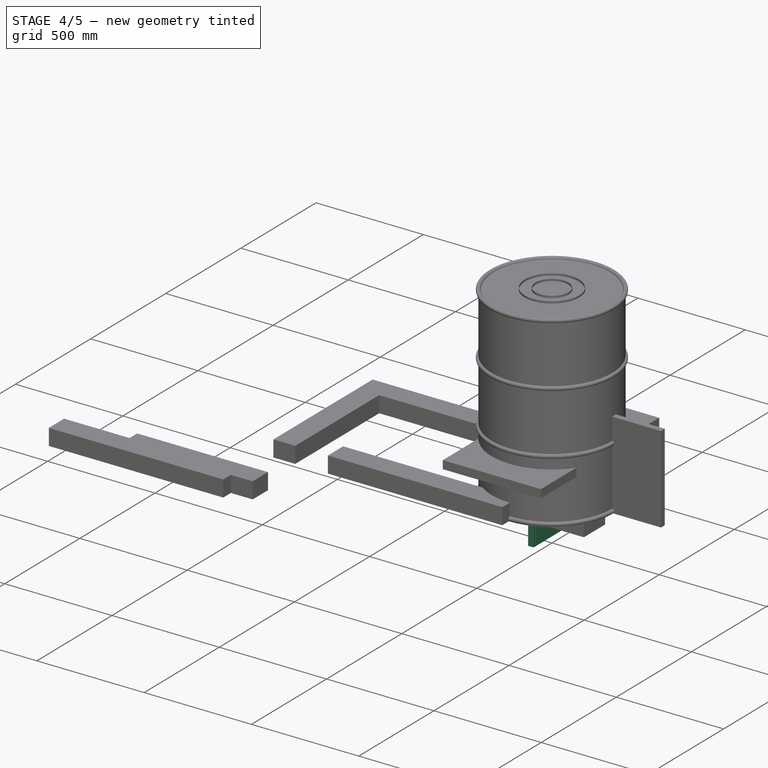
[diagram: stage 4 of 5 — iso view after this stage's code; geometry added in this stage tinted green]
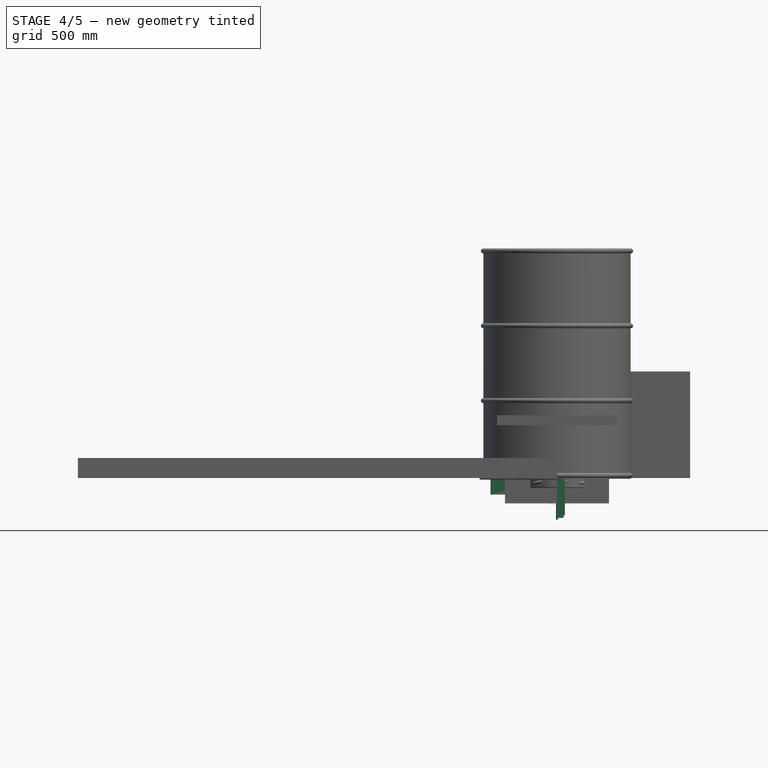
[diagram: stage 4 of 5 — front view after this stage's code; geometry added in this stage tinted green]
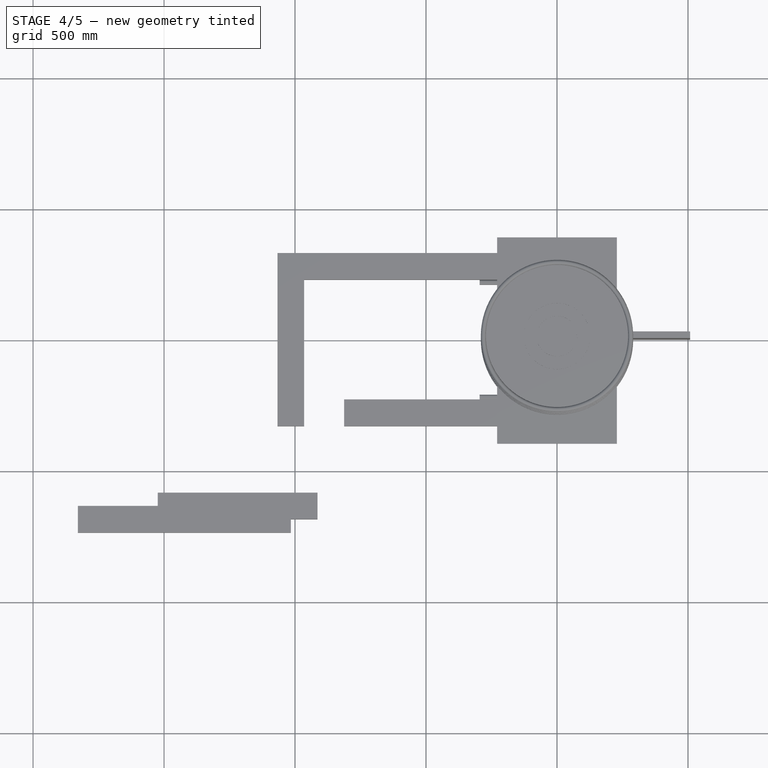
[diagram: stage 4 of 5 — top view after this stage's code; geometry added in this stage tinted green]
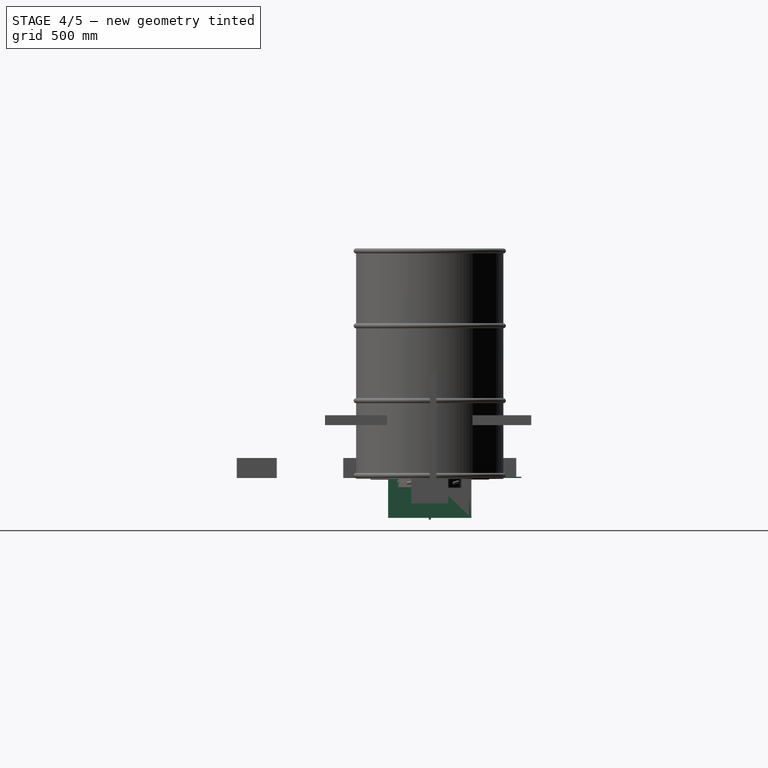
[diagram: stage 4 of 5 — right view after this stage's code; geometry added in this stage tinted green]
FEATURE [Sketcher::SketchObject] Sketch7954
  FullyConstrained = true
  MapMode = 5
  Support = -> [XY_Plane8227]
  sketch-geometry (4):
    g0: LineSegment StartX=0 StartY=0 StartZ=0 EndX=88.9 EndY=0 EndZ=0
    g1: LineSegment StartX=88.9 StartY=0 StartZ=0 EndX=88.9 EndY=228.6 EndZ=0
    g2: LineSegment StartX=88.9 StartY=228.6 StartZ=0 EndX=0 EndY=228.6 EndZ=0
    g3: LineSegment StartX=0 StartY=228.6 StartZ=0 EndX=0 EndY=0 EndZ=0
  constraints (12):
    c: Coincident(g0,g1)
    c: Coincident(g1,g2)
    c: Coincident(g2,g3)
    c: Coincident(g3,g0)
    c: Horizontal(g0)
    c: Horizontal(g2)
    c: Vertical(g1)
    c: Vertical(g3)
    c: PointOnObject(g0,g-1)
    c: DistanceY(g1,g1) = 228.6
    c: DistanceX(g0,g0) = 88.9
    c: PointOnObject(g-1,g3)
FEATURE [PartDesign::Pad] Pad6995
  Direction = (0,0,1)
  Length = 63.5
  Length2 = 9.92188
  Profile = -> Sketch7954
  ReferenceAxis = -> Sketch7954 [N_Axis]
  Refine = true
  Type = 0
FEATURE [Sketcher::SketchObject] Sketch7955
  FullyConstrained = false
  MapMode = 5
  Support = -> [XY_Plane8228]
  sketch-geometry (6):
    g0: GeomPoint X=-3.6e-15 Y=0 Z=0
    g1: GeomPoint X=-228.6 Y=-0.813948 Z=0
    g2: LineSegment StartX=-3.6e-15 StartY=0 StartZ=0 EndX=-228.6 EndY=0 EndZ=0
    g3: LineSegment StartX=-228.6 StartY=0 StartZ=0 EndX=-228.6 EndY=114.3 EndZ=0
    g4: LineSegment StartX=-228.6 StartY=114.3 StartZ=0 EndX=0 EndY=114.3 EndZ=0
    g5: LineSegment StartX=-3.6e-15 StartY=114.3 StartZ=0 EndX=-3.6e-15 EndY=0 EndZ=0
  constraints (14):
    c: Coincident(g2,g3)
    c: Coincident(g3,g4)
    c: Coincident(g4,g5)
    c: Coincident(g5,g2)
    c: Horizontal(g2)
    c: Horizontal(g4)
    c: Vertical(g3)
    c: Vertical(g5)
    c: Coincident(g2,g0)
    c: PointOnObject(g1,g3)
    c: DistanceX(g2,g2) = 228.6
    c: DistanceY(g3,g3) = 114.3
    c: PointOnObject(g-1,g2)
    c: PointOnObject(g-1,g5)
FEATURE [PartDesign::Pad] Pad6996
  Direction = (0,0,1)
  Length = 63.5
  Length2 = 9.92188
  Profile = -> Sketch7955
  ReferenceAxis = -> Sketch7955 [N_Axis]
  Refine = true
  Type = 0
FEATURE [PartDesign::Body] Body5393  label="2X.188 ANG-004"
  Group = -> [Sketch7006,Pad6096]
  Origin = -> Origin7196
  Placement = pos=(-282.575,-1e-15,79.375) rot=(0,0,1;3.14159rad)
  Tip = -> Pad6096
FEATURE [Sketcher::SketchObject] Sketch8171
  FullyConstrained = true
  MapMode = 5
  Support = -> [XY_Plane475]
  sketch-geometry (4):
    g0: Circle CenterX=152.4 CenterY=107.95 CenterZ=0 NormalX=0 NormalY=0 NormalZ=1 AngleXU=0 Radius=88.9
    g1: Circle CenterX=152.4 CenterY=-107.95 CenterZ=0 NormalX=0 NormalY=0 NormalZ=1 AngleXU=0 Radius=76.2
    g2: LineSegment StartX=152.4 StartY=-107.95 StartZ=0 EndX=152.4 EndY=107.95 EndZ=0
    g3: Circle CenterX=152.4 CenterY=107.95 CenterZ=0 NormalX=0 NormalY=0 NormalZ=1 AngleXU=0 Radius=63.5
  constraints (9):
    c: Coincident(g2,g1)
    c: Coincident(g2,g0)
    c: Diameter(g0) = 177.8
    c: Diameter(g1) = 152.4
    c: Symmetric(g0,g1,g-1)
    c: DistanceX(g-1,g0) = 152.4
    c: Coincident(g3,g0)
    c: Diameter(g3) = 127
    c: DistanceY(g2,g2) = 215.9
FEATURE [PartDesign::Body] Body409  label="COOK-TOP-01"
  Group = -> [Sketch422,Pad408,Sketch8171]
  Origin = -> Origin475
  Placement = pos=(-584.2,0,69.85) rot=(0,0,1;0rad)
  Tip = -> Pad408
FEATURE [Sketcher::SketchObject] Sketch8382
  FullyConstrained = true
  MapMode = 5
  Placement = pos=(0,0,0) rot=(0.57735,0.57735,0.57735;2.0944rad)
  Support = -> [YZ_Plane8625]
  sketch-geometry (8):
    g0: LineSegment StartX=-38.1 StartY=-63.5 StartZ=0 EndX=-38.1 EndY=0 EndZ=0
    g1: LineSegment StartX=-38.1 StartY=0 StartZ=0 EndX=38.1 EndY=0 EndZ=0
    g2: LineSegment StartX=38.1 StartY=0 StartZ=0 EndX=38.1 EndY=-63.5 EndZ=0
    g3: LineSegment StartX=38.1 StartY=-63.5 StartZ=0 EndX=34.925 EndY=-63.5 EndZ=0
    g4: LineSegment StartX=34.925 StartY=-63.5 StartZ=0 EndX=34.925 EndY=-3.175 EndZ=0
    g5: LineSegment StartX=34.925 StartY=-3.175 StartZ=0 EndX=-34.925 EndY=-3.175 EndZ=0
    g6: LineSegment StartX=-34.925 StartY=-3.175 StartZ=0 EndX=-34.925 EndY=-63.5 EndZ=0
    g7: LineSegment StartX=-34.925 StartY=-63.5 StartZ=0 EndX=-38.1 EndY=-63.5 EndZ=0
  constraints (23):
    c: Vertical(g0)
    c: Coincident(g0,g1)
    c: Horizontal(g1)
    c: Coincident(g1,g2)
    c: Vertical(g2)
    c: Coincident(g2,g3)
    c: Horizontal(g3)
    c: Coincident(g3,g4)
    c: Vertical(g4)
    c: Coincident(g4,g5)
    c: Horizontal(g5)
    c: Coincident(g5,g6)
    c: Vertical(g6)
    c: Coincident(g6,g7)
    c: Coincident(g7,g0)
    c: Horizontal(g7)
    c: Symmetric(g0,g1,g-1)
    c: Equal(g7,g3)
    c: DistanceX(g1,g1) = 76.2
    c: DistanceX(g3,g3) = 3.175
    c: DistanceY(g5,g0) = 3.175
    c: DistanceY(g0,g0) = 63.5
    c: Equal(g0,g2)
FEATURE [PartDesign::Pad] Pad7367
  Direction = (1,-2e-16,3e-16)
  Length = 254
  Length2 = 9.92188
  Placement = pos=(0,0,0) rot=(0.57735,0.57735,0.57735;2.0944rad)
  Profile = -> Sketch8382
  ReferenceAxis = -> Sketch8382 [N_Axis]
  Refine = true
  Reversed = true
  Type = 0
FEATURE [PartDesign::Body] Body6703  label="2X.188 ANG-006"
  Group = -> [Sketch8414,Pad7390]
  Origin = -> Origin8733
  Placement = pos=(-587.375,-114.3,-6.35) rot=(0,1,0;3.14159rad)
  Tip = -> Pad7390
FEATURE [Sketcher::SketchObject] Sketch8418
  FullyConstrained = true
  MapMode = 5
  Placement = pos=(0,0,0) rot=(1,0,0;1.5708rad)
  Support = -> [XZ_Plane8653]
  sketch-geometry (15):
    g0: LineSegment StartX=-50.8 StartY=17.4625 StartZ=0 EndX=0 EndY=17.4625 EndZ=0
    g1: LineSegment StartX=0 StartY=17.4625 StartZ=0 EndX=0 EndY=-17.4625 EndZ=0
    g2: LineSegment StartX=0 StartY=-17.4625 StartZ=0 EndX=-50.8 EndY=-17.4625 EndZ=0
    g3: ArcOfCircle CenterX=-3.048 CenterY=14.4145 CenterZ=0 NormalX=0 NormalY=0 NormalZ=1 AngleXU=0 Radius=3.048 StartAngle=3e-16 EndAngle=1.5708
    g4: ArcOfCircle CenterX=-3.048 CenterY=-14.4145 CenterZ=0 NormalX=0 NormalY=0 NormalZ=1 AngleXU=0 Radius=3.048 StartAngle=4.71239 EndAngle=6.28319
    g5: LineSegment StartX=-3.048 StartY=17.4625 StartZ=0 EndX=-50.8 EndY=17.4625 EndZ=0
    g6: LineSegment StartX=-50.8 StartY=17.4625 StartZ=0 EndX=-50.8 EndY=14.2875 EndZ=0
    g7: LineSegment StartX=-50.8 StartY=14.2875 StartZ=0 EndX=-4.7625 EndY=14.2875 EndZ=0
    g8: LineSegment StartX=-3.175 StartY=12.7 StartZ=0 EndX=-3.175 EndY=-12.7 EndZ=0
    g9: LineSegment StartX=-4.7625 StartY=-14.2875 StartZ=0 EndX=-50.8 EndY=-14.2875 EndZ=0
    g10: LineSegment StartX=-50.8 StartY=-14.2875 StartZ=0 EndX=-50.8 EndY=-17.4625 EndZ=0
    g11: LineSegment StartX=0 StartY=-14.4145 StartZ=0 EndX=0 EndY=14.4145 EndZ=0
    g12: LineSegment StartX=-50.8 StartY=-17.4625 StartZ=0 EndX=-3.048 EndY=-17.4625 EndZ=0
    g13: ArcOfCircle CenterX=-4.7625 CenterY=12.7 CenterZ=0 NormalX=0 NormalY=0 NormalZ=1 AngleXU=0 Radius=1.5875 StartAngle=0 EndAngle=1.5708
    g14: ArcOfCircle CenterX=-4.7625 CenterY=-12.7 CenterZ=0 NormalX=0 NormalY=0 NormalZ=1 AngleXU=0 Radius=1.5875 StartAngle=4.71239 EndAngle=6.28319
  constraints (39):
    c: Coincident(g0,g1)
    c: Coincident(g1,g2)
    c: Horizontal(g0)
    c: Horizontal(g2)
    c: Vertical(g1)
    c: Equal(g3,g4)
    c: Tangent(g3,g0) = 1.5708
    c: Tangent(g3,g1) = 1.5708
    c: Tangent(g4,g2) = 1.5708
    c: Tangent(g4,g1) = 1.5708
    c: Radius(g3) = 3.048
    c: Equal(g0,g2)
    c: DistanceX(g0,g0) = 50.8
    c: Tangent(g3,g5) = -1.5708
    c: Coincident(g5,g6)
    c: Vertical(g6)
    c: Coincident(g6,g7)
    c: Horizontal(g7)
    c: Vertical(g8)
    c: Horizontal(g9)
    c: Coincident(g9,g10)
    c: Coincident(g10,g2)
    c: Vertical(g10)
    c: Equal(g6,g10)
    c: DistanceY(g6,g6) = 3.175
    c: PointOnObject(g0,g6)
    c: Coincident(g11,g4)
    c: Coincident(g11,g3)
    c: Coincident(g12,g10)
    c: Coincident(g12,g4)
    c: Tangent(g7,g13) = 1.5708
    c: Tangent(g8,g13) = 1.5708
    c: Tangent(g9,g14) = 1.5708
    c: Tangent(g8,g14) = 1.5708
    c: Equal(g14,g13)
    c: Radius(g13) = 1.5875
    c: DistanceX(g8,g4) = 3.175
    c: Symmetric(g0,g1,g-1)
    c: DistanceY(g1,g0) = 34.925
FEATURE [PartDesign::Pad] Pad7398
  Direction = (0,-1,-2e-16)
  Length = 76.2
  Length2 = 9.92188
  Midplane = true
  Placement = pos=(0,0,0) rot=(1,0,0;1.5708rad)
  Profile = -> Sketch8418
  ReferenceAxis = -> Sketch8418 [N_Axis]
  Refine = true
  Type = 0
FEATURE [PartDesign::Body] Body6709  label="SLIDER-025"
  Group = -> [Sketch8420,Pad7399,Fillet581]
  Origin = -> Origin8741
  Placement = pos=(-6.35,9.525,1.1e-14) rot=(1,0,0;3.14159rad)
  Tip = -> Fillet581
FEATURE [Sketcher::SketchObject] Sketch8421
  FullyConstrained = true
  MapMode = 5
  Placement = pos=(0,-38.1,-8.5e-15) rot=(1,0,0;1.5708rad)
  Support = -> [DatumPlane019]
  sketch-geometry (4):
    g0: LineSegment StartX=-25.4 StartY=15.875 StartZ=0 EndX=-25.4 EndY=-15.875 EndZ=0
    g1: LineSegment StartX=-25.4 StartY=-15.875 StartZ=0 EndX=-6.35 EndY=-15.875 EndZ=0
    g2: LineSegment StartX=-6.35 StartY=-15.875 StartZ=0 EndX=-6.35 EndY=15.875 EndZ=0
    g3: LineSegment StartX=-6.35 StartY=15.875 StartZ=0 EndX=-25.4 EndY=15.875 EndZ=0
  constraints (12):
    c: Coincident(g0,g1)
    c: Horizontal(g1)
    c: Coincident(g1,g2)
    c: Vertical(g2)
    c: Coincident(g3,g0)
    c: Horizontal(g3)
    c: Symmetric(g0,g0,g-1)
    c: PointOnObject(g3,g2)
    c: DistanceX(g3,g3) = 19.05
    c: PointOnObject(g2,g3)
    c: DistanceX(g1,g-1) = 6.35
    c: DistanceY(g0,g0) = 31.75
FEATURE [PartDesign::Pad] Pad7397
  BaseFeature = -> Pad7398
  Direction = (0,-1,-2e-16)
  Length = 3.175
  Length2 = 9.92188
  Placement = pos=(0,0,0) rot=(1,0,0;1.5708rad)
  Profile = -> Sketch8421
  ReferenceAxis = -> Sketch8421 [N_Axis]
  Refine = true
  Reversed = true
  Type = 0
FEATURE [PartDesign::Mirrored] Mirrored017
  BaseFeature = -> Pad7397
  MirrorPlane = -> XZ_Plane8653
  Originals = -> [Pad7397]
  Placement = pos=(0,0,0) rot=(1,0,0;1.5708rad)
  Refine = true
FEATURE [PartDesign::Pocket] Pocket691
  BaseFeature = -> Mirrored017
  Direction = (-1,2e-16,-3e-16)
  Length = 5.15937
  Length2 = 5.15937
  Placement = pos=(0,0,0) rot=(1,0,0;1.5708rad)
  Profile = -> Sketch8419
  ReferenceAxis = -> Sketch8419 [N_Axis]
  Refine = true
  Type = 1
FEATURE [PartDesign::Body] Body6711  label="2X.188 ANG-008"
  Group = -> [Sketch8423,Pad7401]
  Origin = -> Origin8743
  Placement = pos=(-130.175,-114.3,-6.35) rot=(0,1,0;1.5708rad)
  Tip = -> Pad7401
FEATURE [Sketcher::SketchObject] Sketch8432
  FullyConstrained = true
  MapMode = 5
  Placement = pos=(0,-38.1,-8.5e-15) rot=(1,0,0;1.5708rad)
  Support = -> [DatumPlane021]
  sketch-geometry (8):
    g0: LineSegment StartX=-25.4 StartY=33.02 StartZ=0 EndX=-25.4 EndY=-33.02 EndZ=0
    g1: LineSegment StartX=-25.4 StartY=-33.02 StartZ=0 EndX=-6.35 EndY=-33.02 EndZ=0
    g2: LineSegment StartX=-6.35 StartY=-33.02 StartZ=0 EndX=-6.35 EndY=-1.5875 EndZ=0
    g3: LineSegment StartX=-6.35 StartY=-1.5875 StartZ=0 EndX=0 EndY=-1.5875 EndZ=0
    g4: LineSegment StartX=0 StartY=-1.5875 StartZ=0 EndX=0 EndY=1.5875 EndZ=0
    g5: LineSegment StartX=0 StartY=1.5875 StartZ=0 EndX=-6.35 EndY=1.5875 EndZ=0
    g6: LineSegment StartX=-6.35 StartY=1.5875 StartZ=0 EndX=-6.35 EndY=33.02 EndZ=0
    g7: LineSegment StartX=-6.35 StartY=33.02 StartZ=0 EndX=-25.4 EndY=33.02 EndZ=0
  constraints (22):
    c: Coincident(g0,g1)
    c: Horizontal(g1)
    c: Coincident(g1,g2)
    c: Vertical(g2)
    c: Coincident(g2,g3)
    c: Horizontal(g3)
    c: Coincident(g3,g4)
    c: Vertical(g4)
    c: Coincident(g4,g5)
    c: Horizontal(g5)
    c: Coincident(g5,g6)
    c: Vertical(g6)
    c: Coincident(g6,g7)
    c: Coincident(g7,g0)
    c: Horizontal(g7)
    c: Symmetric(g0,g0,g-1)
    c: Symmetric(g3,g4,g-1)
    c: DistanceY(g0,g0) = 66.04
    c: DistanceY(g4,g4) = 3.175
    c: DistanceX(g5,g5) = 6.35
    c: PointOnObject(g6,g2)
    c: DistanceX(g7,g7) = 19.05
FEATURE [Sketcher::SketchObject] Sketch8433
  FullyConstrained = true
  MapMode = 5
  Placement = pos=(0,0,0) rot=(0.57735,0.57735,0.57735;2.0944rad)
  Support = -> [YZ_Plane8666]
  sketch-geometry (4):
    g0: LineSegment StartX=-38.1 StartY=1.5875 StartZ=0 EndX=38.1 EndY=1.5875 EndZ=0
    g1: LineSegment StartX=38.1 StartY=1.5875 StartZ=0 EndX=38.1 EndY=-1.5875 EndZ=0
    g2: LineSegment StartX=38.1 StartY=-1.5875 StartZ=0 EndX=-38.1 EndY=-1.5875 EndZ=0
    g3: LineSegment StartX=-38.1 StartY=-1.5875 StartZ=0 EndX=-38.1 EndY=1.5875 EndZ=0
  constraints (11):
    c: Coincident(g0,g1)
    c: Coincident(g1,g2)
    c: Coincident(g2,g3)
    c: Coincident(g3,g0)
    c: Horizontal(g0)
    c: Horizontal(g2)
    c: Vertical(g1)
    c: Vertical(g3)
    c: Symmetric(g2,g0,g-1)
    c: DistanceX(g0,g0) = 76.2
    c: DistanceY(g1,g1) = 3.175
FEATURE [Sketcher::SketchObject] Sketch8434
  FullyConstrained = true
  MapMode = 5
  Placement = pos=(0,0,0) rot=(1,0,0;1.5708rad)
  Support = -> [XZ_Plane8664]
  sketch-geometry (15):
    g0: LineSegment StartX=-50.8 StartY=33.3375 StartZ=0 EndX=0 EndY=33.3375 EndZ=0
    g1: LineSegment StartX=0 StartY=33.3375 StartZ=0 EndX=0 EndY=-33.3375 EndZ=0
    g2: LineSegment StartX=0 StartY=-33.3375 StartZ=0 EndX=-50.8 EndY=-33.3375 EndZ=0
    g3: ArcOfCircle CenterX=-3.048 CenterY=30.2895 CenterZ=0 NormalX=0 NormalY=0 NormalZ=1 AngleXU=0 Radius=3.048 StartAngle=0 EndAngle=1.5708
    g4: ArcOfCircle CenterX=-3.048 CenterY=-30.2895 CenterZ=0 NormalX=0 NormalY=0 NormalZ=1 AngleXU=0 Radius=3.048 StartAngle=4.71239 EndAngle=6.28319
    g5: LineSegment StartX=-3.048 StartY=33.3375 StartZ=0 EndX=-50.8 EndY=33.3375 EndZ=0
    g6: LineSegment StartX=-50.8 StartY=33.3375 StartZ=0 EndX=-50.8 EndY=30.1625 EndZ=0
    g7: LineSegment StartX=-50.8 StartY=30.1625 StartZ=0 EndX=-4.7625 EndY=30.1625 EndZ=0
    g8: LineSegment StartX=-3.175 StartY=28.575 StartZ=0 EndX=-3.175 EndY=-28.575 EndZ=0
    g9: LineSegment StartX=-4.7625 StartY=-30.1625 StartZ=0 EndX=-50.8 EndY=-30.1625 EndZ=0
    g10: LineSegment StartX=-50.8 StartY=-30.1625 StartZ=0 EndX=-50.8 EndY=-33.3375 EndZ=0
    g11: LineSegment StartX=0 StartY=-30.2895 StartZ=0 EndX=0 EndY=30.2895 EndZ=0
    g12: LineSegment StartX=-50.8 StartY=-33.3375 StartZ=0 EndX=-3.048 EndY=-33.3375 EndZ=0
    g13: ArcOfCircle CenterX=-4.7625 CenterY=28.575 CenterZ=0 NormalX=0 NormalY=0 NormalZ=1 AngleXU=0 Radius=1.5875 StartAngle=0 EndAngle=1.5708
    g14: ArcOfCircle CenterX=-4.7625 CenterY=-28.575 CenterZ=0 NormalX=0 NormalY=0 NormalZ=1 AngleXU=0 Radius=1.5875 StartAngle=4.71239 EndAngle=6.28319
  constraints (39):
    c: Coincident(g0,g1)
    c: Coincident(g1,g2)
    c: Horizontal(g0)
    c: Horizontal(g2)
    c: Vertical(g1)
    c: Symmetric(g0,g1,g-1)
    c: Equal(g3,g4)
    c: Tangent(g3,g0) = 1.5708
    c: Tangent(g3,g1) = 1.5708
    c: Tangent(g4,g2) = 1.5708
    c: Tangent(g4,g1) = 1.5708
    c: Radius(g3) = 3.048
    c: DistanceY(g2,g0) = 66.675
    c: Equal(g0,g2)
    c: DistanceX(g0,g0) = 50.8
    c: Tangent(g3,g5) = -1.5708
    c: Coincident(g5,g6)
    c: Vertical(g6)
    c: Coincident(g6,g7)
    c: Horizontal(g7)
    c: Vertical(g8)
    c: Horizontal(g9)
    c: Coincident(g9,g10)
    c: Coincident(g10,g2)
    c: Vertical(g10)
    c: Equal(g6,g10)
    c: DistanceY(g6,g6) = 3.175
    c: PointOnObject(g0,g6)
    c: Coincident(g11,g4)
    c: Coincident(g11,g3)
    c: Coincident(g12,g10)
    c: Coincident(g12,g4)
    c: Tangent(g7,g13) = 1.5708
    c: Tangent(g8,g13) = 1.5708
    c: Tangent(g9,g14) = 1.5708
    c: Tangent(g8,g14) = 1.5708
    c: Equal(g14,g13)
    c: Radius(g13) = 1.5875
    c: DistanceX(g8,g4) = 3.175
FEATURE [PartDesign::Pad] Pad7411
  Direction = (0,-1,-2e-16)
  Length = 76.2
  Length2 = 9.92188
  Midplane = true
  Placement = pos=(0,0,0) rot=(1,0,0;1.5708rad)
  Profile = -> Sketch8434
  ReferenceAxis = -> Sketch8434 [N_Axis]
  Refine = true
  Type = 0
FEATURE [PartDesign::Pad] Pad7409
  BaseFeature = -> Pad7411
  Direction = (0,-1,-2e-16)
  Length = 3.175
  Length2 = 9.92188
  Placement = pos=(0,0,0) rot=(1,0,0;1.5708rad)
  Profile = -> Sketch8432
  ReferenceAxis = -> Sketch8432 [N_Axis]
  Refine = true
  Reversed = true
  Type = 0
FEATURE [PartDesign::Mirrored] Mirrored019
  BaseFeature = -> Pad7409
  MirrorPlane = -> XZ_Plane8664
  Originals = -> [Pad7409]
  Placement = pos=(0,0,0) rot=(1,0,0;1.5708rad)
  Refine = true
FEATURE [PartDesign::Pad] Pad7410
  BaseFeature = -> Mirrored019
  Direction = (1,-2e-16,3e-16)
  Length = 12.7
  Length2 = 9.92188
  Placement = pos=(0,0,0) rot=(1,0,0;1.5708rad)
  Profile = -> Sketch8433
  ReferenceAxis = -> Sketch8433 [N_Axis]
  Refine = true
  Reversed = true
  Type = 0
FEATURE [Sketcher::SketchObject] Sketch8435
  FullyConstrained = true
  MapMode = 5
  Placement = pos=(0,0,0) rot=(0.57735,0.57735,0.57735;2.0944rad)
  Support = -> [YZ_Plane8666]
  sketch-geometry (26):
    g0: ArcOfCircle CenterX=26.1938 CenterY=23.8125 CenterZ=0 NormalX=0 NormalY=0 NormalZ=1 AngleXU=0 Radius=5.55625 StartAngle=4.71239 EndAngle=7.85398
    g1: ArcOfCircle CenterX=-26.1937 CenterY=23.8125 CenterZ=0 NormalX=0 NormalY=0 NormalZ=1 AngleXU=0 Radius=5.55625 StartAngle=1.5708 EndAngle=4.71239
    g2: LineSegment StartX=26.1938 StartY=29.3687 StartZ=0 EndX=-26.1938 EndY=29.3687 EndZ=0
    g3: LineSegment StartX=-26.1937 StartY=18.2562 StartZ=0 EndX=26.1938 EndY=18.2563 EndZ=0
    g4: ArcOfCircle CenterX=26.1938 CenterY=7.9375 CenterZ=0 NormalX=0 NormalY=0 NormalZ=1 AngleXU=0 Radius=5.55625 StartAngle=4.71239 EndAngle=7.85398
    g5: ArcOfCircle CenterX=-26.1938 CenterY=7.9375 CenterZ=0 NormalX=0 NormalY=0 NormalZ=1 AngleXU=0 Radius=5.55625 StartAngle=1.5708 EndAngle=4.71239
    g6: LineSegment StartX=26.1938 StartY=13.4938 StartZ=0 EndX=-26.1938 EndY=13.4938 EndZ=0
    g7: LineSegment StartX=-26.1938 StartY=2.38125 StartZ=0 EndX=26.1937 EndY=2.38125 EndZ=0
    g8: ArcOfCircle CenterX=26.1938 CenterY=-7.9375 CenterZ=0 NormalX=0 NormalY=0 NormalZ=1 AngleXU=0 Radius=5.55625 StartAngle=4.71239 EndAngle=7.85398
    g9: ArcOfCircle CenterX=-26.1937 CenterY=-7.9375 CenterZ=0 NormalX=0 NormalY=0 NormalZ=1 AngleXU=0 Radius=5.55625 StartAngle=1.5708 EndAngle=4.71239
    g10: LineSegment StartX=26.1938 StartY=-2.38125 StartZ=0 EndX=-26.1938 EndY=-2.38125 EndZ=0
    g11: LineSegment StartX=-26.1937 StartY=-13.4937 StartZ=0 EndX=26.1938 EndY=-13.4938 EndZ=0
    g12: ArcOfCircle CenterX=26.1938 CenterY=-23.8125 CenterZ=0 NormalX=0 NormalY=0 NormalZ=1 AngleXU=0 Radius=5.55625 StartAngle=4.71239 EndAngle=7.85398
    g13: ArcOfCircle CenterX=-26.1938 CenterY=-23.8125 CenterZ=0 NormalX=0 NormalY=0 NormalZ=1 AngleXU=0 Radius=5.55625 StartAngle=1.5708 EndAngle=4.71239
    g14: LineSegment StartX=26.1938 StartY=-18.2563 StartZ=0 EndX=-26.1938 EndY=-18.2563 EndZ=0
    g15: LineSegment StartX=-26.1938 StartY=-29.3688 StartZ=0 EndX=26.1938 EndY=-29.3687 EndZ=0
    g16: LineSegment StartX=26.1938 StartY=23.8125 StartZ=0 EndX=26.1938 EndY=7.9375 EndZ=0
    g17: LineSegment StartX=26.1938 StartY=7.9375 StartZ=0 EndX=26.1938 EndY=-7.9375 EndZ=0
    g18: LineSegment StartX=26.1938 StartY=-7.9375 StartZ=0 EndX=26.1938 EndY=-23.8125 EndZ=0
    g19: GeomPoint X=26.1938 Y=0 Z=0
    g20: LineSegment StartX=-26.1937 StartY=23.8125 StartZ=0 EndX=-26.1938 EndY=7.9375 EndZ=0
    g21: LineSegment StartX=-26.1938 StartY=7.9375 StartZ=0 EndX=-26.1937 EndY=-7.9375 EndZ=0
    g22: LineSegment StartX=-26.1938 StartY=-23.8125 StartZ=0 EndX=-26.1937 EndY=-7.9375 EndZ=0
    g23: GeomPoint X=0 Y=29.3688 Z=0
    g24: GeomPoint X=-31.75 Y=23.8125 Z=0
    g25: GeomPoint X=31.75 Y=23.8125 Z=0
  constraints (60):
    c: Tangent(g0,g2) = -1.5708
    c: Tangent(g2,g1) = -1.5708
    c: Tangent(g1,g3) = -1.5708
    c: Tangent(g3,g0) = -1.5708
    c: Equal(g0,g1)
    c: Tangent(g4,g6) = -1.5708
    c: Tangent(g6,g5) = -1.5708
    c: Tangent(g5,g7) = -1.5708
    c: Tangent(g7,g4) = -1.5708
    c: Equal(g4,g5)
    c: Tangent(g8,g10) = -1.5708
    c: Tangent(g10,g9) = -1.5708
    c: Tangent(g9,g11) = -1.5708
    c: Tangent(g11,g8) = -1.5708
    c: Equal(g8,g9)
    c: Tangent(g12,g14) = -1.5708
    c: Tangent(g14,g13) = -1.5708
    c: Tangent(g13,g15) = -1.5708
    c: Tangent(g15,g12) = -1.5708
    c: Equal(g12,g13)
    c: Diameter(g12) = 11.1125
    c: Equal(g12,g8)
    c: Equal(g8,g4)
    c: Equal(g4,g0)
    c: Equal(g2,g6)
    c: Equal(g6,g10)
    c: Equal(g10,g14)
    c: Horizontal(g2)
    c: Horizontal(g6)
    c: Horizontal(g10)
    c: Horizontal(g14)
    c: Coincident(g16,g0)
    c: Coincident(g16,g4)
    c: Vertical(g16)
    c: Coincident(g17,g4)
    c: Coincident(g17,g8)
    c: Coincident(g18,g8)
    c: Coincident(g18,g12)
    c: Vertical(g18)
    c: Vertical(g17)
    c: Equal(g16,g17)
    c: Equal(g17,g18)
    c: PointOnObject(g19,g-1)
    c: Symmetric(g4,g8,g19)
    c: DistanceY(g16,g16) = 15.875
    c: Coincident(g20,g1)
    c: Coincident(g20,g5)
    c: Coincident(g21,g5)
    c: Coincident(g21,g9)
    c: Coincident(g22,g13)
    c: Coincident(g22,g9)
    c: Symmetric(g1,g0,g23)
    c: PointOnObject(g24,g1)
    c: PointOnObject(g25,g0)
    c: Horizontal(g0,g25)
    c: Horizontal(g1,g24)
    c: DistanceY(g13,g1) = 58.7375
    c: DistanceY(g12,g8) = 4.7625
    c: DistanceX(g24,g25) = 63.5
    c: PointOnObject(g23,g-2)
FEATURE [PartDesign::Pocket] Pocket693
  BaseFeature = -> Pad7410
  Direction = (-1,2e-16,-3e-16)
  Length = 5.15937
  Length2 = 5.15937
  Placement = pos=(0,0,0) rot=(1,0,0;1.5708rad)
  Profile = -> Sketch8435
  ReferenceAxis = -> Sketch8435 [N_Axis]
  Refine = true
  Type = 1
FEATURE [PartDesign::Body] Body6720  label="ADAPTER-PLATE-002"
  Group = -> [Sketch8439,Pad7414,Sketch8438,Sketch8440,Sketch8441,Sketch8442,Fold004,Fold005,Fold006,Fold007]
  Origin = -> Origin8754
  Placement = pos=(-15.875,0,101.6) rot=(0,0,1;0rad)
  Tip = -> Fold007
FEATURE [App::Part] Part046  label="STEEL"
  Group = -> [Body409,Body5393,Part376,Part377,Body6696,Body6701,Body6702,Body6703,FBVent023,Body6710,Body6711,FBVent025,Body6720]
  Origin = -> Origin411
  Placement = pos=(-1.304e-13,587.375,673.1) rot=(0,0,1;1.5708rad)
FEATURE [Sketcher::SketchObject] Sketch8444
  FullyConstrained = true
  MapMode = 5
  Placement = pos=(0,0,0) rot=(0.57735,0.57735,0.57735;2.0944rad)
  Support = -> [YZ_Plane8671]
  sketch-geometry (5):
    g0: LineSegment StartX=0 StartY=0 StartZ=0 EndX=0 EndY=95.25 EndZ=0
    g1: LineSegment StartX=0 StartY=95.25 StartZ=0 EndX=95.25 EndY=0 EndZ=0
    g2: LineSegment StartX=95.25 StartY=0 StartZ=0 EndX=0 EndY=0 EndZ=0
    g3: LineSegment StartX=0 StartY=95.25 StartZ=0 EndX=95.25 EndY=0 EndZ=0
    g4: LineSegment StartX=0 StartY=0 StartZ=0 EndX=95.25 EndY=0 EndZ=0
  constraints (13):
    c: Coincident(g-1,g0)
    c: Vertical(g0)
    c: Coincident(g0,g1)
    c: PointOnObject(g1,g-1)
    c: Coincident(g1,g2)
    c: Coincident(g2,g0)
    c: DistanceY(g0,g0) = 95.25
    c: DistanceX(g2,g2) = 95.25
    c: PointOnObject(g4,g2)
    c: PointOnObject(g3,g1)
    c: Coincident(g3,g0)
    c: Coincident(g4,g0)
    c: Coincident(g4,g3)
FEATURE [PartDesign::Pad] Pad7416
  Direction = (1,-2e-16,3e-16)
  Length = 12.7
  Length2 = 9.92188
  Placement = pos=(0,0,0) rot=(0.57735,0.57735,0.57735;2.0944rad)
  Profile = -> Sketch8444
  ReferenceAxis = -> Sketch8444 [N_Axis]
  Refine = true
  Type = 0
FEATURE [PartDesign::Body] Body6722  label="FB 45-S-014"
  Group = -> [Sketch8444,Pad7416]
  Origin = -> Origin8756
  Placement = pos=(-444.5,139.7,0) rot=(0,0,1;3.14159rad)
  Tip = -> Pad7416
FEATURE [App::Part] Part332  label="FB-COURSE-003"
  Group = -> [Body6345,Array404,Body6346,Array405,Body6344,Body6347,Body6348,Body6349,Body6350,Body6722]
  Origin = -> Origin8345
  Placement = pos=(-1.339e-13,-1.137e-13,127) rot=(0,0,1;4.71239rad)
FEATURE [Sketcher::SketchObject] Sketch8445
  FullyConstrained = true
  MapMode = 5
  Support = -> [XY_Plane8664]
  sketch-geometry (4):
    g0: LineSegment StartX=0 StartY=0 StartZ=0 EndX=88.9 EndY=0 EndZ=0
    g1: LineSegment StartX=88.9 StartY=0 StartZ=0 EndX=88.9 EndY=228.6 EndZ=0
    g2: LineSegment StartX=88.9 StartY=228.6 StartZ=0 EndX=0 EndY=228.6 EndZ=0
    g3: LineSegment StartX=0 StartY=228.6 StartZ=0 EndX=0 EndY=0 EndZ=0
  constraints (12):
    c: Coincident(g0,g1)
    c: Coincident(g1,g2)
    c: Coincident(g2,g3)
    c: Coincident(g3,g0)
    c: Horizontal(g0)
    c: Horizontal(g2)
    c: Vertical(g1)
    c: Vertical(g3)
    c: PointOnObject(g0,g-1)
    c: DistanceY(g1,g1) = 228.6
    c: DistanceX(g0,g0) = 88.9
    c: PointOnObject(g-1,g3)
FEATURE [PartDesign::Pad] Pad7417
  Direction = (0,0,1)
  Length = 63.5
  Length2 = 9.92188
  Profile = -> Sketch8445
  ReferenceAxis = -> Sketch8445 [N_Axis]
  Refine = true
  Type = 0
FEATURE [Sketcher::SketchObject] Sketch
  FullyConstrained = true
  MapMode = 5
  Placement = pos=(0,0,0) rot=(0.57735,0.57735,0.57735;2.0944rad)
  Support = -> [YZ_Plane8672]
  sketch-geometry (8):
    g0: LineSegment StartX=228.6 StartY=0 StartZ=0 EndX=222.25 EndY=0 EndZ=0
    g1: LineSegment StartX=222.25 StartY=0 StartZ=0 EndX=222.25 EndY=31.75 EndZ=0
    g2: LineSegment StartX=222.25 StartY=31.75 StartZ=0 EndX=228.6 EndY=31.75 EndZ=0
    g3: LineSegment StartX=228.6 StartY=31.75 StartZ=0 EndX=228.6 EndY=0 EndZ=0
    g4: LineSegment StartX=76.2 StartY=63.5 StartZ=0 EndX=82.55 EndY=63.5 EndZ=0
    g5: LineSegment StartX=82.55 StartY=63.5 StartZ=0 EndX=82.55 EndY=41.275 EndZ=0
    g6: LineSegment StartX=82.55 StartY=41.275 StartZ=0 EndX=76.2 EndY=41.275 EndZ=0
    g7: LineSegment StartX=76.2 StartY=41.275 StartZ=0 EndX=76.2 EndY=63.5 EndZ=0
  constraints (24):
    c: Coincident(g0,g1)
    c: Coincident(g1,g2)
    c: Coincident(g2,g3)
    c: Coincident(g3,g0)
    c: Horizontal(g0)
    c: Horizontal(g2)
    c: Vertical(g1)
    c: Vertical(g3)
    c: DistanceY(g3,g3) = 31.75
    c: PointOnObject(g-1,g0)
    c: DistanceX(g2,g2) = 6.35
    c: DistanceX(g-1,g0) = 228.6
    c: Coincident(g4,g5)
    c: Coincident(g5,g6)
    c: Coincident(g6,g7)
    c: Coincident(g7,g4)
    c: Horizontal(g4)
    c: Horizontal(g6)
    c: Vertical(g5)
    c: Vertical(g7)
    c: DistanceX(g-1,g6) = 76.2
    c: DistanceX(g4,g4) = 6.35
    c: DistanceY(g-1,g4) = 63.5
    c: DistanceY(g5,g5) = 22.225
FEATURE [PartDesign::Pocket] Pocket694
  BaseFeature = -> Pad7417
  Direction = (-1,2e-16,-3e-16)
  Length = 5.15937
  Length2 = 5.15937
  Profile = -> Sketch
  ReferenceAxis = -> Sketch [N_Axis]
  Refine = true
  Reversed = true
  Type = 1
FEATURE [PartDesign::Body] Body6723  label="BRICK-1507"
  Group = -> [Sketch8445,Pad7417,Sketch,Pocket694]
  Origin = -> Origin8757
  Placement = pos=(114.3,228.6,0) rot=(0,0,1;0rad)
  Tip = -> Pocket694
FEATURE [Sketcher::SketchObject] Sketch8446
  FullyConstrained = false
  MapMode = 5
  Support = -> [XY_Plane8665]
  sketch-geometry (6):
    g0: GeomPoint X=-3.6e-15 Y=0 Z=0
    g1: GeomPoint X=-228.6 Y=-0.813948 Z=0
    g2: LineSegment StartX=-3.6e-15 StartY=0 StartZ=0 EndX=-228.6 EndY=0 EndZ=0
    g3: LineSegment StartX=-228.6 StartY=0 StartZ=0 EndX=-228.6 EndY=114.3 EndZ=0
    g4: LineSegment StartX=-228.6 StartY=114.3 StartZ=0 EndX=0 EndY=114.3 EndZ=0
    g5: LineSegment StartX=-3.6e-15 StartY=114.3 StartZ=0 EndX=-3.6e-15 EndY=0 EndZ=0
  constraints (14):
    c: Coincident(g2,g3)
    c: Coincident(g3,g4)
    c: Coincident(g4,g5)
    c: Coincident(g5,g2)
    c: Horizontal(g2)
    c: Horizontal(g4)
    c: Vertical(g3)
    c: Vertical(g5)
    c: Coincident(g2,g0)
    c: PointOnObject(g1,g3)
    c: DistanceX(g2,g2) = 228.6
    c: DistanceY(g3,g3) = 114.3
    c: PointOnObject(g-1,g2)
    c: PointOnObject(g-1,g5)
FEATURE [PartDesign::Pad] Pad7418
  Direction = (0,0,1)
  Length = 63.5
  Length2 = 9.92188
  Profile = -> Sketch8446
  ReferenceAxis = -> Sketch8446 [N_Axis]
  Refine = true
  Type = 0
FEATURE [Sketcher::SketchObject] Sketch8447
  FullyConstrained = true
  MapMode = 5
  Placement = pos=(0,0,0) rot=(0.57735,0.57735,0.57735;2.0944rad)
  Support = -> [YZ_Plane8673]
  sketch-geometry (4):
    g0: LineSegment StartX=107.95 StartY=0 StartZ=0 EndX=114.3 EndY=0 EndZ=0
    g1: LineSegment StartX=114.3 StartY=0 StartZ=0 EndX=114.3 EndY=31.75 EndZ=0
    g2: LineSegment StartX=114.3 StartY=31.75 StartZ=0 EndX=107.95 EndY=31.75 EndZ=0
    g3: LineSegment StartX=107.95 StartY=31.75 StartZ=0 EndX=107.95 EndY=0 EndZ=0
  constraints (12):
    c: Coincident(g0,g1)
    c: Coincident(g1,g2)
    c: Coincident(g2,g3)
    c: Coincident(g3,g0)
    c: Horizontal(g0)
    c: Horizontal(g2)
    c: Vertical(g1)
    c: Vertical(g3)
    c: PointOnObject(g-1,g0)
    c: DistanceX(g2,g2) = 6.35
    c: DistanceY(g1,g1) = 31.75
    c: DistanceX(g-1,g0) = 114.3
FEATURE [PartDesign::Pocket] Pocket695
  BaseFeature = -> Pad7418
  Direction = (-1,2e-16,-3e-16)
  Length = 5.15937
  Length2 = 5.15937
  Profile = -> Sketch8447
  ReferenceAxis = -> Sketch8447 [N_Axis]
  Refine = true
  Type = 1
FEATURE [PartDesign::Body] Body6724  label="BRICK-1508"
  Group = -> [Sketch8446,Pad7418,Sketch8447,Pocket695]
  Origin = -> Origin8758
  Placement = pos=(38.1,342.9,0) rot=(0,0,1;0rad)
  Tip = -> Pocket695
FEATURE [Sketcher::SketchObject] Sketch8448
  FullyConstrained = true
  MapMode = 5
  Support = -> [XY_Plane8666]
  sketch-geometry (5):
    g0: GeomPoint X=76.2 Y=0 Z=0
    g1: LineSegment StartX=76.2 StartY=0 StartZ=0 EndX=0 EndY=0 EndZ=0
    g2: LineSegment StartX=0 StartY=0 StartZ=0 EndX=0 EndY=76.2 EndZ=0
    g3: LineSegment StartX=0 StartY=76.2 StartZ=0 EndX=76.2 EndY=76.2 EndZ=0
    g4: LineSegment StartX=76.2 StartY=76.2 StartZ=0 EndX=76.2 EndY=0 EndZ=0
  constraints (13):
    c: Coincident(g1,g2)
    c: Coincident(g2,g3)
    c: Coincident(g3,g4)
    c: Coincident(g4,g1)
    c: Horizontal(g1)
    c: Horizontal(g3)
    c: Vertical(g2)
    c: Vertical(g4)
    c: Coincident(g1,g0)
    c: DistanceX(g1,g1) = 76.2
    c: PointOnObject(g-1,g1)
    c: PointOnObject(g-1,g2)
    c: DistanceY(g4,g4) = 76.2
FEATURE [PartDesign::Pad] Pad7419
  Direction = (0,0,1)
  Length = 31.75
  Length2 = 9.92188
  Profile = -> Sketch8448
  ReferenceAxis = -> Sketch8448 [N_Axis]
  Refine = true
  Type = 0
FEATURE [PartDesign::Body] Body6725  label="BRICK-1509"
  Group = -> [Sketch8448,Pad7419]
  Origin = -> Origin8759
  Placement = pos=(38.1,228.6,31.75) rot=(0,0,1;0rad)
  Tip = -> Pad7419
FEATURE [Sketcher::SketchObject] Sketch8449
  FullyConstrained = false
  MapMode = 5
  Support = -> [XY_Plane8667]
  sketch-geometry (6):
    g0: GeomPoint X=41.275 Y=0 Z=0
    g1: GeomPoint X=-34.925 Y=-0.813948 Z=0
    g2: LineSegment StartX=41.275 StartY=0 StartZ=0 EndX=-34.925 EndY=0 EndZ=0
    g3: LineSegment StartX=-34.925 StartY=0 StartZ=0 EndX=-34.925 EndY=146.05 EndZ=0
    g4: LineSegment StartX=-34.925 StartY=146.05 StartZ=0 EndX=41.275 EndY=146.05 EndZ=0
    g5: LineSegment StartX=41.275 StartY=146.05 StartZ=0 EndX=41.275 EndY=0 EndZ=0
  constraints (14):
    c: Coincident(g2,g3)
    c: Coincident(g3,g4)
    c: Coincident(g4,g5)
    c: Coincident(g5,g2)
    c: Horizontal(g2)
    c: Horizontal(g4)
    c: Vertical(g3)
    c: Vertical(g5)
    c: Coincident(g2,g0)
    c: PointOnObject(g1,g3)
    c: DistanceX(g2,g2) = 76.2
    c: PointOnObject(g-1,g2)
    c: DistanceX(g-1,g2) = 41.275
    c: DistanceY(g5,g5) = 146.05
FEATURE [PartDesign::Pad] Pad7420
  Direction = (0,0,1)
  Length = 31.75
  Length2 = 9.92188
  Profile = -> Sketch8449
  ReferenceAxis = -> Sketch8449 [N_Axis]
  Refine = true
  Type = 0
FEATURE [PartDesign::Body] Body6726  label="BRICK-1510"
  Group = -> [Sketch8449,Pad7420]
  Origin = -> Origin8760
  Placement = pos=(73.025,311.15,31.75) rot=(0,0,1;0rad)
  Tip = -> Pad7420
FEATURE [Sketcher::SketchObject] Sketch8450
  FullyConstrained = false
  MapMode = 5
  Support = -> [XY_Plane8668]
  sketch-geometry (6):
    g0: GeomPoint X=-3.6e-15 Y=0 Z=0
    g1: GeomPoint X=-228.6 Y=-0.813948 Z=0
    g2: LineSegment StartX=-3.6e-15 StartY=0 StartZ=0 EndX=-228.6 EndY=0 EndZ=0
    g3: LineSegment StartX=-228.6 StartY=0 StartZ=0 EndX=-228.6 EndY=114.3 EndZ=0
    g4: LineSegment StartX=-228.6 StartY=114.3 StartZ=0 EndX=0 EndY=114.3 EndZ=0
    g5: LineSegment StartX=-3.6e-15 StartY=114.3 StartZ=0 EndX=-3.6e-15 EndY=0 EndZ=0
  constraints (14):
    c: Coincident(g2,g3)
    c: Coincident(g3,g4)
    c: Coincident(g4,g5)
    c: Coincident(g5,g2)
    c: Horizontal(g2)
    c: Horizontal(g4)
    c: Vertical(g3)
    c: Vertical(g5)
    c: Coincident(g2,g0)
    c: PointOnObject(g1,g3)
    c: DistanceX(g2,g2) = 228.6
    c: DistanceY(g3,g3) = 114.3
    c: PointOnObject(g-1,g2)
    c: PointOnObject(g-1,g5)
FEATURE [PartDesign::Pad] Pad7421
  Direction = (0,0,1)
  Length = 63.5
  Length2 = 9.92188
  Profile = -> Sketch8450
  ReferenceAxis = -> Sketch8450 [N_Axis]
  Refine = true
  Type = 0
FEATURE [Sketcher::SketchObject] Sketch8451
  FullyConstrained = true
  MapMode = 5
  Placement = pos=(0,0,0) rot=(0.57735,0.57735,0.57735;2.0944rad)
  Support = -> [YZ_Plane8676]
  sketch-geometry (4):
    g0: LineSegment StartX=76.2 StartY=41.275 StartZ=0 EndX=82.55 EndY=41.275 EndZ=0
    g1: LineSegment StartX=82.55 StartY=41.275 StartZ=0 EndX=82.55 EndY=63.5 EndZ=0
    g2: LineSegment StartX=82.55 StartY=63.5 StartZ=0 EndX=76.2 EndY=63.5 EndZ=0
    g3: LineSegment StartX=76.2 StartY=63.5 StartZ=0 EndX=76.2 EndY=41.275 EndZ=0
  constraints (12):
    c: Coincident(g0,g1)
    c: Coincident(g1,g2)
    c: Coincident(g2,g3)
    c: Coincident(g3,g0)
    c: Horizontal(g0)
    c: Horizontal(g2)
    c: Vertical(g1)
    c: Vertical(g3)
    c: DistanceX(g2,g2) = 6.35
    c: DistanceY(g1,g1) = 22.225
    c: DistanceX(g-1,g0) = 76.2
    c: DistanceY(g-1,g2) = 63.5
FEATURE [PartDesign::Pocket] Pocket696
  BaseFeature = -> Pad7421
  Direction = (-1,2e-16,-3e-16)
  Length = 5.15937
  Length2 = 5.15937
  Profile = -> Sketch8451
  ReferenceAxis = -> Sketch8451 [N_Axis]
  Refine = true
  Type = 1
FEATURE [PartDesign::Body] Body6727  label="BRICK-1511"
  Group = -> [Sketch8450,Pad7421,Sketch8451,Pocket696]
  Origin = -> Origin8761
  Placement = pos=(38.1,228.6,0) rot=(0,0,1;0rad)
  Tip = -> Pocket696
FEATURE [Part::Helix] Helix004
  Angle = 0
  AttacherType = Attacher::AttachEngine3D
  Height = 102
  LocalCoord = 0
  Pitch = 12.7
  Radius = 15.875
  SegmentLength = 0
  Style = 1
FEATURE [PartDesign::FeatureBase] BaseFeature004
  BaseFeature = -> Helix004
FEATURE [PartDesign::CoordinateSystem] LCS_01271
  AttacherType = Attacher::AttachEngine3D
  MapMode = 2
  Support = -> [X_Axis7838]
FEATURE [PartDesign::ShapeBinder] ShapeBinder222
  Placement = pos=(25.4,-1.7e-14,1.3e-14) rot=(0,0,1;0rad)
  TraceSupport = false
FEATURE [Sketcher::SketchObject] Sketch7439
  FullyConstrained = true
  MapMode = 5
  Support = -> [XY_Plane7618]
  sketch-geometry (9):
    g0: LineSegment StartX=0 StartY=0 StartZ=0 EndX=0 EndY=349.25 EndZ=0
    g1: LineSegment StartX=0 StartY=349.25 StartZ=0 EndX=25.4 EndY=349.25 EndZ=0
    g2: LineSegment StartX=25.4 StartY=349.25 StartZ=0 EndX=25.4 EndY=244.475 EndZ=0
    g3: LineSegment StartX=25.4 StartY=244.475 StartZ=0 EndX=6.35 EndY=244.475 EndZ=0
    g4: LineSegment StartX=6.35 StartY=244.475 StartZ=0 EndX=6.35 EndY=104.775 EndZ=0
    g5: LineSegment StartX=6.35 StartY=104.775 StartZ=0 EndX=25.4 EndY=104.775 EndZ=0
    g6: LineSegment StartX=25.4 StartY=104.775 StartZ=0 EndX=25.4 EndY=0 EndZ=0
    g7: LineSegment StartX=25.4 StartY=0 StartZ=0 EndX=0 EndY=0 EndZ=0
    g8: Circle CenterX=12.7 CenterY=34.925 CenterZ=0 NormalX=0 NormalY=0 NormalZ=1 AngleXU=0 Radius=4.7625
  constraints (26):
    c: Coincident(g-1,g0)
    c: Vertical(g0)
    c: Coincident(g0,g1)
    c: Horizontal(g1)
    c: Coincident(g1,g2)
    c: Vertical(g2)
    c: Coincident(g2,g3)
    c: Coincident(g3,g4)
    c: Vertical(g4)
    c: Coincident(g4,g5)
    c: Horizontal(g5)
    c: Coincident(g5,g6)
    c: PointOnObject(g6,g-1)
    c: Vertical(g6)
    c: Coincident(g6,g7)
    c: Coincident(g7,g0)
    c: Horizontal(g3)
    c: PointOnObject(g6,g2)
    c: DistanceX(g7,g7) = 25.4
    c: DistanceX(g3,g2) = 19.05
    c: DistanceY(g6,g8) = 34.925
    c: DistanceX(g8,g6) = 12.7
    c: Diameter(g8) = 9.525
    c: DistanceY(g6,g6) = 104.775
    c: Equal(g6,g2)
    c: DistanceY(g4,g4) = 139.7
FEATURE [PartDesign::Pad] Pad6514
  Direction = (0,0,1)
  Length = 4.7625
  Length2 = 100.013
  Profile = -> Sketch7439
  Refine = true
  Type = 0
FEATURE [PartDesign::Fillet] Fillet547
  Base = -> Pad6514 [Edge17,Edge14,Edge11,Edge8]
  BaseFeature = -> Pad6514
  Radius = 6.35
  Refine = true
  SupportTransform = false
  UseAllEdges = false
FEATURE [PartDesign::Body] Body5821  label="Hinge-FB-010"
  Group = -> [Sketch7439,Pad6514,Fillet547]
  Origin = -> Origin7711
  Placement = pos=(-3.175,-174.625,-154.781) rot=(0,0,1;0rad)
  Tip = -> Fillet547
FEATURE [Sketcher::SketchObject] Sketch7629
  FullyConstrained = true
  MapMode = 5
  Placement = pos=(0,0,0) rot=(1,0,0;1.5708rad)
  Support = -> [XZ_Plane7832]
  sketch-geometry (6):
    g0: LineSegment StartX=0 StartY=0 StartZ=0 EndX=37.2152 EndY=0 EndZ=0
    g1: LineSegment StartX=38.1 StartY=3.302 StartZ=0 EndX=0 EndY=3.302 EndZ=0
    g2: LineSegment StartX=0 StartY=3.302 StartZ=0 EndX=0 EndY=0 EndZ=0
    g3: LineSegment StartX=37.2152 StartY=0 StartZ=0 EndX=85.9424 EndY=-28.1326 EndZ=0
    g4: LineSegment StartX=85.9424 StartY=-28.1326 StartZ=0 EndX=87.5934 EndY=-25.273 EndZ=0
    g5: LineSegment StartX=87.5934 StartY=-25.273 StartZ=0 EndX=38.1 EndY=3.302 EndZ=0
  constraints (18):
    c: Horizontal(g0)
    c: PointOnObject(g1,g-2)
    c: Horizontal(g1)
    c: Coincident(g1,g2)
    c: Coincident(g2,g0)
    c: Vertical(g2)
    c: DistanceY(g2,g2) = 3.302
    c: DistanceX(g1,g1) = 38.1
    c: PointOnObject(g-1,g0)
    c: Coincident(g0,g3)
    c: Coincident(g3,g4)
    c: Coincident(g4,g5)
    c: Coincident(g5,g1)
    c: Parallel(g5,g3)
    c: Perpendicular(g3,g4)
    c: Equal(g4,g2)
    c: Distance(g5) = 57.15
    c: Angle(g-2,g3) = 1.0472
FEATURE [PartDesign::Pad] Pad6707
  Direction = (0,-1,-2e-16)
  Length = 152.4
  Length2 = 100.013
  Midplane = true
  Placement = pos=(0,0,0) rot=(1,0,0;1.5708rad)
  Profile = -> Sketch7629
  Refine = true
  Type = 0
FEATURE [PartDesign::ShapeBinder] ShapeBinder225
  Placement = pos=(0,0,0) rot=(1,0,0;1.5708rad)
  Support = -> [Pad6707]
  TraceSupport = false
FEATURE [Sketcher::SketchObject] Sketch7630
  FullyConstrained = true
  MapMode = 5
  Support = -> [XY_Plane7826]
  sketch-geometry (2):
    g0: Circle CenterX=12.7 CenterY=60.325 CenterZ=0 NormalX=0 NormalY=0 NormalZ=1 AngleXU=0 Radius=3.175
    g1: Circle CenterX=12.7 CenterY=-60.325 CenterZ=0 NormalX=0 NormalY=0 NormalZ=1 AngleXU=0 Radius=3.175
  constraints (5):
    c: Equal(g0,g1)
    c: Symmetric(g0,g1,g-1)
    c: DistanceY(g1,g0) = 120.65
    c: DistanceX(g-1,g0) = 12.7
    c: Diameter(g0) = 6.35
FEATURE [Sketcher::SketchObject] Sketch7631
  ExternalGeometry = -> [BaseFeature004]
  FullyConstrained = true
  MapMode = 5
  Placement = pos=(0,0,0) rot=(1,0,0;1.5708rad)
  Support = -> [XZ_Plane7833]
  sketch-geometry (1):
    g0: Circle CenterX=15.875 CenterY=0 CenterZ=0 NormalX=0 NormalY=0 NormalZ=1 AngleXU=0 Radius=3.175
  constraints (2):
    c: Diameter(g0) = 6.35
    c: Coincident(g0,g-3)
FEATURE [PartDesign::AdditiveHelix] AdditiveHelix004
  Angle = 0
  Axis = (0,2e-16,1)
  Base = (0,0,0)
  BaseFeature = -> BaseFeature004
  Growth = 0
  HasBeenEdited = true
  Height = 114.3
  LeftHanded = false
  Mode = 0
  Outside = false
  Pitch = 12.7
  Profile = -> Sketch7631
  ReferenceAxis = -> Sketch7631 [V_Axis]
  Refine = true
  Turns = 9
FEATURE [PartDesign::Body] Body6005  label="HANDLE-SPRING-005"
  BaseFeature = -> Helix004
  Group = -> [BaseFeature004,Sketch7631,AdditiveHelix004]
  Origin = -> Origin7920
  Placement = pos=(78.2129,-22.225,-57.15) rot=(0,0,1;2.61799rad)
  Tip = -> AdditiveHelix004
FEATURE [Sketcher::SketchObject] Sketch7632
  ExternalGeometry = -> [ShapeBinder225]
  FullyConstrained = true
  MapMode = 5
  Placement = pos=(10.9548,4.2e-15,18.9743) rot=(0.258819,0,0.965926;3.14159rad)
  Support = -> [ShapeBinder225]
  sketch-geometry (10):
    g0: LineSegment StartX=-44.0446 StartY=63.5 StartZ=0 EndX=-44.0446 EndY=-63.5 EndZ=0
    g1: LineSegment StartX=-44.0446 StartY=-63.5 StartZ=0 EndX=-75.7946 EndY=-63.5 EndZ=0
    g2: LineSegment StartX=-75.7946 StartY=-63.5 StartZ=0 EndX=-75.7946 EndY=63.5 EndZ=0
    g3: LineSegment StartX=-75.7946 StartY=63.5 StartZ=0 EndX=-44.0446 EndY=63.5 EndZ=0
    g4: GeomPoint X=-59.9196 Y=0 Z=0
    g5: LineSegment StartX=-75.7946 StartY=63.5 StartZ=0 EndX=-75.7946 EndY=38.1 EndZ=0
    g6: LineSegment StartX=-75.7946 StartY=38.1 StartZ=0 EndX=-113.895 EndY=38.1 EndZ=0
    g7: LineSegment StartX=-113.895 StartY=38.1 StartZ=0 EndX=-113.895 EndY=-38.1 EndZ=0
    g8: LineSegment StartX=-113.895 StartY=-38.1 StartZ=0 EndX=-75.7946 EndY=-38.1 EndZ=0
    g9: LineSegment StartX=-75.7946 StartY=-38.1 StartZ=0 EndX=-75.7946 EndY=-63.5 EndZ=0
  constraints (27):
    c: Coincident(g0,g1)
    c: Coincident(g1,g2)
    c: Coincident(g2,g3)
    c: Coincident(g3,g0)
    c: Horizontal(g1)
    c: Horizontal(g3)
    c: Vertical(g0)
    c: Vertical(g2)
    c: Symmetric(g1,g0,g4)
    c: PointOnObject(g4,g-1)
    c: DistanceY(g2,g-3) = 12.7
    c: DistanceX(g-3,g2) = 12.7
    c: DistanceX(g0,g-4) = 12.7
    c: DistanceX(g3,g3) = 31.75
    c: Coincident(g3,g5)
    c: PointOnObject(g5,g2)
    c: Coincident(g5,g6)
    c: Horizontal(g6)
    c: Coincident(g6,g7)
    c: Coincident(g7,g8)
    c: PointOnObject(g8,g2)
    c: Horizontal(g8)
    c: Coincident(g8,g9)
    c: Coincident(g9,g1)
    c: Symmetric(g6,g7,g-1)
    c: DistanceY(g9,g9) = 25.4
    c: DistanceX(g6,g6) = 38.1
FEATURE [PartDesign::Pocket] Pocket662
  BaseFeature = -> Pad6707
  Direction = (-0.5,-2e-16,-0.866025)
  Length = 5.15937
  Length2 = 5.15937
  Placement = pos=(0,0,0) rot=(1,0,0;1.5708rad)
  Profile = -> Sketch7632
  ReferenceAxis = -> Sketch7632 [N_Axis]
  Refine = true
  Type = 1
FEATURE [PartDesign::Pocket] Pocket663
  BaseFeature = -> Pocket662
  Direction = (0,0,-1)
  Length = 5.15937
  Length2 = 5.15937
  Placement = pos=(0,0,0) rot=(1,0,0;1.5708rad)
  Profile = -> Sketch7630
  ReferenceAxis = -> Sketch7630 [N_Axis]
  Refine = true
  Reversed = true
  Type = 1
FEATURE [PartDesign::Fillet] Fillet543
  Base = -> Pocket663 [Edge15,Edge11]
  BaseFeature = -> Pocket663
  Placement = pos=(0,0,0) rot=(1,0,0;1.5708rad)
  Radius = 19.05
  Refine = true
  SupportTransform = false
  UseAllEdges = false
FEATURE [PartDesign::Fillet] Fillet544
  Base = -> Fillet543 [Edge52,Edge51,Edge47,Edge49,Edge5,Edge39]
  BaseFeature = -> Fillet543
  Placement = pos=(0,0,0) rot=(1,0,0;1.5708rad)
  Radius = 9.525
  Refine = true
  SupportTransform = false
  UseAllEdges = false
FEATURE [PartDesign::Fillet] Fillet545
  Base = -> Fillet544 [Edge32]
  BaseFeature = -> Fillet544
  Placement = pos=(0,0,0) rot=(1,0,0;1.5708rad)
  Radius = 25.4
  Refine = true
  SupportTransform = false
  UseAllEdges = false
FEATURE [PartDesign::Fillet] Fillet546
  Base = -> Fillet545 [Edge38]
  BaseFeature = -> Fillet545
  Placement = pos=(0,0,0) rot=(1,0,0;1.5708rad)
  Radius = 19.05
  Refine = true
  SupportTransform = false
  UseAllEdges = false
FEATURE [PartDesign::Body] Body6013  label="HANDLE-005"
  Group = -> [Sketch7629,Pad6707,ShapeBinder225,Sketch7632,Pocket662,Sketch7630,Pocket663,Fillet543,Fillet544,Fillet545,Fillet546]
  Origin = -> Origin7919
  Placement = pos=(0,3.59e-13,4.6e-13) rot=(-1,0,0;1.5708rad)
  Tip = -> Fillet546
FEATURE [App::Part] Part270  label="HANDLE004"
  Group = -> [Body6013,Body6005]
  Origin = -> Origin7910
  Placement = pos=(-3.175,152.4,0) rot=(0,0,1;0rad)
FEATURE [Sketcher::SketchObject] Sketch7634
  FullyConstrained = true
  MapMode = 5
  Support = -> [XY_Plane7820]
  sketch-geometry (1):
    g0: Circle CenterX=0 CenterY=0 CenterZ=0 NormalX=0 NormalY=0 NormalZ=1 AngleXU=0 Radius=3.9751
  constraints (2):
    c: Coincident(g0,g-1)
    c: Diameter(g0) = 7.9502
FEATURE [PartDesign::Pad] Pad6701
  Direction = (0,0,1)
  Length = 317.5
  Length2 = 100.013
  Midplane = true
  Profile = -> Sketch7634
  ReferenceAxis = -> Sketch7634 [N_Axis]
  Refine = true
  Type = 0
FEATURE [PartDesign::Body] Body6006  label="Pin-013"
  Group = -> [Sketch7634,Pad6701]
  Origin = -> Origin7916
  Placement = pos=(9.525,-139.7,4.3e-14) rot=(0,0,1;0rad)
  Tip = -> Pad6701
FEATURE [Sketcher::SketchObject] Sketch7636
  FullyConstrained = true
  MapMode = 5
  Placement = pos=(0,0,0) rot=(0.57735,0.57735,0.57735;2.0944rad)
  Support = -> [YZ_Plane7831]
  sketch-geometry (8):
    g0: LineSegment StartX=-127 StartY=120.65 StartZ=0 EndX=127 EndY=120.65 EndZ=0
    g1: LineSegment StartX=127 StartY=120.65 StartZ=0 EndX=127 EndY=-120.65 EndZ=0
    g2: LineSegment StartX=127 StartY=-120.65 StartZ=0 EndX=-127 EndY=-120.65 EndZ=0
    g3: LineSegment StartX=-127 StartY=-120.65 StartZ=0 EndX=-127 EndY=120.65 EndZ=0
    g4: LineSegment StartX=-158.75 StartY=152.4 StartZ=0 EndX=158.75 EndY=152.4 EndZ=0
    g5: LineSegment StartX=158.75 StartY=152.4 StartZ=0 EndX=158.75 EndY=-152.4 EndZ=0
    g6: LineSegment StartX=158.75 StartY=-152.4 StartZ=0 EndX=-158.75 EndY=-152.4 EndZ=0
    g7: LineSegment StartX=-158.75 StartY=-152.4 StartZ=0 EndX=-158.75 EndY=152.4 EndZ=0
  constraints (23):
    c: Coincident(g0,g1)
    c: Coincident(g1,g2)
    c: Coincident(g2,g3)
    c: Coincident(g3,g0)
    c: Horizontal(g0)
    c: Horizontal(g2)
    c: Vertical(g1)
    c: Vertical(g3)
    c: Coincident(g4,g5)
    c: Coincident(g5,g6)
    c: Coincident(g6,g7)
    c: Coincident(g7,g4)
    c: Horizontal(g4)
    c: Horizontal(g6)
    c: Vertical(g5)
    c: Vertical(g7)
    c: DistanceY(g0,g4) = 31.75
    c: DistanceX(g0,g4) = 31.75
    c: DistanceX(g4,g0) = 31.75
    c: DistanceY(g5,g1) = 31.75
    c: DistanceX(g6,g6) = 317.5
    c: DistanceY(g5,g5) = 304.8
    c: Symmetric(g4,g5,g-1)
FEATURE [PartDesign::Pad] Pad6702
  Direction = (1,-2e-16,3e-16)
  Length = 25.4
  Length2 = 100.013
  Placement = pos=(0,0,0) rot=(0.57735,0.57735,0.57735;2.0944rad)
  Profile = -> Sketch7636
  Refine = true
  Type = 0
FEATURE [Sketcher::SketchObject] Sketch7635
  ExternalGeometry = -> [Pad6702]
  FullyConstrained = true
  MapMode = 5
  Placement = pos=(0,0,0) rot=(0.57735,0.57735,0.57735;2.0944rad)
  Support = -> [YZ_Plane7831]
  sketch-geometry (5):
    g0: LineSegment StartX=-155.448 StartY=149.098 StartZ=0 EndX=155.448 EndY=149.098 EndZ=0
    g1: LineSegment StartX=155.448 StartY=149.098 StartZ=0 EndX=155.448 EndY=-149.098 EndZ=0
    g2: LineSegment StartX=155.448 StartY=-149.098 StartZ=0 EndX=-155.448 EndY=-149.098 EndZ=0
    g3: LineSegment StartX=-155.448 StartY=-149.098 StartZ=0 EndX=-155.448 EndY=149.098 EndZ=0
    g4: GeomPoint X=-9e-16 Y=1.8e-15 Z=0
  constraints (12):
    c: Coincident(g0,g1)
    c: Coincident(g1,g2)
    c: Coincident(g2,g3)
    c: Coincident(g3,g0)
    c: Horizontal(g0)
    c: Horizontal(g2)
    c: Vertical(g1)
    c: Vertical(g3)
    c: DistanceX(g-3,g0) = 3.302
    c: DistanceY(g0,g-3) = 3.302
    c: Symmetric(g-3,g-4,g4)
    c: Symmetric(g2,g0,g4)
FEATURE [PartDesign::Pocket] Pocket660
  BaseFeature = -> Pad6702
  Direction = (-1,2e-16,-3e-16)
  Length = 22.225
  Length2 = 100.013
  Placement = pos=(0,0,0) rot=(0.57735,0.57735,0.57735;2.0944rad)
  Profile = -> Sketch7635
  Refine = true
  Reversed = true
  Type = 0
FEATURE [PartDesign::Body] Body6008  label="Frame-016"
  Group = -> [Sketch7636,Pad6702,Sketch7635,Pocket660]
  Origin = -> Origin7913
  Placement = pos=(-28.575,0,-1.2e-14) rot=(0,0,1;0rad)
  Tip = -> Pocket660
FEATURE [Sketcher::SketchObject] Sketch7637
  FullyConstrained = true
  MapMode = 5
  Placement = pos=(25.4,-1.7e-14,1.3e-14) rot=(0.57735,0.57735,0.57735;2.0944rad)
  Support = -> [ShapeBinder222]
  sketch-geometry (5):
    g0: LineSegment StartX=149.225 StartY=-142.875 StartZ=0 EndX=149.225 EndY=142.875 EndZ=0
    g1: LineSegment StartX=149.225 StartY=142.875 StartZ=0 EndX=-149.225 EndY=142.875 EndZ=0
    g2: LineSegment StartX=-149.225 StartY=142.875 StartZ=0 EndX=-149.225 EndY=-142.875 EndZ=0
    g3: LineSegment StartX=-149.225 StartY=-142.875 StartZ=0 EndX=149.225 EndY=-142.875 EndZ=0
    g4: GeomPoint X=0 Y=0 Z=0
  constraints (12):
    c: Coincident(g0,g1)
    c: Coincident(g1,g2)
    c: Coincident(g2,g3)
    c: Coincident(g3,g0)
    c: Horizontal(g1)
    c: Horizontal(g3)
    c: Vertical(g0)
    c: Vertical(g2)
    c: Symmetric(g1,g0,g4)
    c: Coincident(g4,g-1)
    c: DistanceX(g1,g1) = 298.45
    c: DistanceY(g0,g0) = 285.75
FEATURE [PartDesign::Pad] Pad6699
  Direction = (1,-2e-16,2e-16)
  Length = 4.7752
  Length2 = 100.013
  Placement = pos=(25.4,-1.7e-14,1.3e-14) rot=(0,0,1;0rad)
  Profile = -> Sketch7637
  Refine = true
  Type = 0
FEATURE [PartDesign::Body] Body6010  label="Glass-016"
  Group = -> [ShapeBinder222,Sketch7637,Pad6699]
  Origin = -> Origin7911
  Placement = pos=(-3.175,0,0) rot=(0,0,1;0rad)
  Tip = -> Pad6699
FEATURE [Sketcher::SketchObject] Sketch7640
  FullyConstrained = true
  MapMode = 5
  Placement = pos=(0,0,0) rot=(1,0,0;1.5708rad)
  Support = -> [XZ_Plane7829]
  sketch-geometry (6):
    g0: LineSegment StartX=0 StartY=0 StartZ=0 EndX=22.098 EndY=0 EndZ=0
    g1: LineSegment StartX=22.098 StartY=0 StartZ=0 EndX=22.098 EndY=-9.398 EndZ=0
    g2: LineSegment StartX=22.098 StartY=-9.398 StartZ=0 EndX=25.4 EndY=-9.398 EndZ=0
    g3: LineSegment StartX=25.4 StartY=-9.398 StartZ=0 EndX=25.4 EndY=3.302 EndZ=0
    g4: LineSegment StartX=25.4 StartY=3.302 StartZ=0 EndX=0 EndY=3.302 EndZ=0
    g5: LineSegment StartX=0 StartY=3.302 StartZ=0 EndX=0 EndY=0 EndZ=0
  constraints (17):
    c: Horizontal(g0)
    c: Coincident(g0,g1)
    c: Vertical(g1)
    c: Coincident(g1,g2)
    c: Horizontal(g2)
    c: Coincident(g2,g3)
    c: Vertical(g3)
    c: Coincident(g3,g4)
    c: PointOnObject(g4,g-2)
    c: Horizontal(g4)
    c: Coincident(g4,g5)
    c: Coincident(g5,g0)
    c: Equal(g5,g2)
    c: DistanceY(g5,g5) = 3.302
    c: DistanceY(g3,g3) = 12.7
    c: DistanceX(g4,g4) = 25.4
    c: Coincident(g0,g-1)
FEATURE [PartDesign::Pad] Pad6703
  Direction = (0,-1,-2e-16)
  Length = 127
  Length2 = 100.013
  Midplane = true
  Placement = pos=(0,0,0) rot=(1,0,0;1.5708rad)
  Profile = -> Sketch7640
  Refine = true
  Type = 0
FEATURE [PartDesign::Fillet] Fillet540
  Base = -> Pad6703 [Edge10,Edge9,Edge17,Edge18]
  BaseFeature = -> Pad6703
  Placement = pos=(0,0,0) rot=(1,0,0;1.5708rad)
  Radius = 6.35
  Refine = true
  SupportTransform = false
  UseAllEdges = false
FEATURE [PartDesign::Fillet] Fillet541
  Base = -> Fillet540 [Edge25]
  BaseFeature = -> Fillet540
  Placement = pos=(0,0,0) rot=(1,0,0;1.5708rad)
  Radius = 3.175
  Refine = true
  SupportTransform = false
  UseAllEdges = false
FEATURE [PartDesign::ShapeBinder] ShapeBinder224
  Placement = pos=(0,0,0) rot=(1,0,0;1.5708rad)
  Support = -> [Fillet541]
  TraceSupport = false
FEATURE [Sketcher::SketchObject] Sketch7626
  FullyConstrained = true
  MapMode = 5
  Placement = pos=(0,7e-16,3.302) rot=(0,0,1;3.14159rad)
  Support = -> [ShapeBinder224]
  sketch-geometry (3):
    g0: Circle CenterX=-7.9375 CenterY=53.975 CenterZ=0 NormalX=0 NormalY=0 NormalZ=1 AngleXU=0 Radius=2.38125
    g1: Circle CenterX=-7.9375 CenterY=-53.975 CenterZ=0 NormalX=0 NormalY=0 NormalZ=1 AngleXU=0 Radius=2.38125
    g2: LineSegment StartX=-7.9375 StartY=-53.975 StartZ=0 EndX=-7.9375 EndY=53.975 EndZ=0
  constraints (7):
    c: Coincident(g2,g1)
    c: Coincident(g2,g0)
    c: Equal(g0,g1)
    c: Symmetric(g0,g1,g-1)
    c: DistanceX(g0,g-1) = 7.9375
    c: DistanceY(g2,g2) = 107.95
    c: Diameter(g0) = 4.7625
FEATURE [PartDesign::Pocket] Pocket658
  BaseFeature = -> Fillet541
  Direction = (0,2e-16,-1)
  Length = 4.7625
  Length2 = 100.013
  Placement = pos=(0,0,0) rot=(1,0,0;1.5708rad)
  Profile = -> Sketch7626
  Refine = true
  Type = 1
FEATURE [PartDesign::Chamfer] Chamfer2378
  Angle = 45
  Base = -> Pocket658 [Edge14,Edge13]
  BaseFeature = -> Pocket658
  ChamferType = 0
  FlipDirection = false
  Placement = pos=(0,0,0) rot=(1,0,0;1.5708rad)
  Refine = true
  Size = 3.175
  Size2 = 1
  SupportTransform = false
  UseAllEdges = false
FEATURE [PartDesign::Body] Body6007  label="Glass-clamp-T-024"
  Group = -> [Sketch7640,Pad6703,Fillet540,Fillet541,ShapeBinder224,Sketch7626,Pocket658,Chamfer2378]
  Origin = -> Origin7912
  Placement = pos=(4.7625,-4e-15,146.05) rot=(0,0,1;0rad)
  Tip = -> Chamfer2378
FEATURE [PartDesign::FeatureBase] Clone377
  BaseFeature = -> Body6007
  Placement = pos=(4.7625,-19.05,3.175) rot=(0,0,1;0rad)
FEATURE [PartDesign::Body] Body6012  label="Glass-clamp-cl-008"
  BaseFeature = -> Body6007
  Group = -> [Clone377]
  Origin = -> Origin7918
  Placement = pos=(0,-19.05,-142.875) rot=(1,0,0;3.14159rad)
  Tip = -> Clone377
FEATURE [Sketcher::SketchObject] Sketch7643
  FullyConstrained = true
  MapMode = 5
  Support = -> [XY_Plane7824]
  sketch-geometry (9):
    g0: LineSegment StartX=0 StartY=0 StartZ=0 EndX=0 EndY=349.25 EndZ=0
    g1: LineSegment StartX=0 StartY=349.25 StartZ=0 EndX=25.4 EndY=349.25 EndZ=0
    g2: LineSegment StartX=25.4 StartY=349.25 StartZ=0 EndX=25.4 EndY=244.475 EndZ=0
    g3: LineSegment StartX=25.4 StartY=244.475 StartZ=0 EndX=6.35 EndY=244.475 EndZ=0
    g4: LineSegment StartX=6.35 StartY=244.475 StartZ=0 EndX=6.35 EndY=104.775 EndZ=0
    g5: LineSegment StartX=6.35 StartY=104.775 StartZ=0 EndX=25.4 EndY=104.775 EndZ=0
    g6: LineSegment StartX=25.4 StartY=104.775 StartZ=0 EndX=25.4 EndY=0 EndZ=0
    g7: LineSegment StartX=25.4 StartY=0 StartZ=0 EndX=0 EndY=0 EndZ=0
    g8: Circle CenterX=12.7 CenterY=34.925 CenterZ=0 NormalX=0 NormalY=0 NormalZ=1 AngleXU=0 Radius=4.7625
  constraints (26):
    c: Coincident(g-1,g0)
    c: Vertical(g0)
    c: Coincident(g0,g1)
    c: Horizontal(g1)
    c: Coincident(g1,g2)
    c: Vertical(g2)
    c: Coincident(g2,g3)
    c: Coincident(g3,g4)
    c: Vertical(g4)
    c: Coincident(g4,g5)
    c: Horizontal(g5)
    c: Coincident(g5,g6)
    c: PointOnObject(g6,g-1)
    c: Vertical(g6)
    c: Coincident(g6,g7)
    c: Coincident(g7,g0)
    c: Horizontal(g3)
    c: PointOnObject(g6,g2)
    c: DistanceX(g7,g7) = 25.4
    c: DistanceX(g3,g2) = 19.05
    c: DistanceY(g6,g8) = 34.925
    c: DistanceX(g8,g6) = 12.7
    c: Diameter(g8) = 9.525
    c: DistanceY(g6,g6) = 104.775
    c: Equal(g6,g2)
    c: DistanceY(g4,g4) = 139.7
FEATURE [PartDesign::Pad] Pad6704
  Direction = (0,0,1)
  Length = 4.7625
  Length2 = 100.013
  Profile = -> Sketch7643
  Refine = true
  Type = 0
FEATURE [PartDesign::Fillet] Fillet542
  Base = -> Pad6704 [Edge17,Edge14,Edge11,Edge8]
  BaseFeature = -> Pad6704
  Radius = 6.35
  Refine = true
  SupportTransform = false
  UseAllEdges = false
FEATURE [PartDesign::Body] Body6011  label="Hinge-FB-009"
  Group = -> [Sketch7643,Pad6704,Fillet542]
  Origin = -> Origin7917
  Placement = pos=(-3.175,-174.625,147.637) rot=(0,0,1;0rad)
  Tip = -> Fillet542
FEATURE [Sketcher::SketchObject] Sketch7915
  FullyConstrained = true
  MapMode = 5
  Placement = pos=(0,0,0) rot=(0.57735,0.57735,0.57735;2.0944rad)
  Support = -> [YZ_Plane8147]
  sketch-geometry (6):
    g0: LineSegment StartX=0 StartY=0 StartZ=0 EndX=0 EndY=-25.4 EndZ=0
    g1: LineSegment StartX=0 StartY=-25.4 StartZ=0 EndX=3.175 EndY=-25.4 EndZ=0
    g2: LineSegment StartX=3.175 StartY=-25.4 StartZ=0 EndX=3.175 EndY=-3.175 EndZ=0
    g3: LineSegment StartX=3.175 StartY=-3.175 StartZ=0 EndX=25.4 EndY=-3.175 EndZ=0
    g4: LineSegment StartX=25.4 StartY=-3.175 StartZ=0 EndX=25.4 EndY=0 EndZ=0
    g5: LineSegment StartX=25.4 StartY=0 StartZ=0 EndX=0 EndY=0 EndZ=0
  constraints (17):
    c: Coincident(g-1,g0)
    c: PointOnObject(g0,g-2)
    c: Coincident(g0,g1)
    c: Horizontal(g1)
    c: Coincident(g1,g2)
    c: Vertical(g2)
    c: Coincident(g2,g3)
    c: Horizontal(g3)
    c: Coincident(g3,g4)
    c: PointOnObject(g4,g-1)
    c: Vertical(g4)
    c: Coincident(g4,g5)
    c: Coincident(g5,g0)
    c: DistanceY(g0,g0) = 25.4
    c: DistanceX(g5,g5) = 25.4
    c: DistanceX(g1,g1) = 3.175
    c: Equal(g1,g4)
FEATURE [PartDesign::Pad] Pad6963
  Direction = (1,-2e-16,3e-16)
  Length = 304.8
  Length2 = 9.92188
  Midplane = true
  Placement = pos=(0,0,0) rot=(0.57735,0.57735,0.57735;2.0944rad)
  Profile = -> Sketch7915
  ReferenceAxis = -> Sketch7915 [N_Axis]
  Refine = true
  Type = 0
FEATURE [Sketcher::SketchObject] Sketch7916
  FullyConstrained = true
  MapMode = 5
  Placement = pos=(0,0,0) rot=(1,0,0;1.5708rad)
  Support = -> [XZ_Plane8145]
  sketch-geometry (6):
    g0: LineSegment StartX=-114.3 StartY=-38.1 StartZ=0 EndX=-152.4 EndY=1.0729e-12 EndZ=0
    g1: LineSegment StartX=-152.4 StartY=1.0729e-12 StartZ=0 EndX=-152.4 EndY=-38.1 EndZ=0
    g2: LineSegment StartX=-152.4 StartY=-38.1 StartZ=0 EndX=-114.3 EndY=-38.1 EndZ=0
    g3: LineSegment StartX=114.3 StartY=-38.1 StartZ=0 EndX=152.4 EndY=0 EndZ=0
    g4: LineSegment StartX=152.4 StartY=0 StartZ=0 EndX=152.4 EndY=-38.1 EndZ=0
    g5: LineSegment StartX=152.4 StartY=-38.1 StartZ=0 EndX=114.3 EndY=-38.1 EndZ=0
  constraints (17):
    c: Coincident(g0,g1)
    c: Vertical(g1)
    c: Coincident(g1,g2)
    c: Coincident(g2,g0)
    c: PointOnObject(g3,g-1)
    c: Coincident(g3,g4)
    c: Vertical(g4)
    c: Coincident(g4,g5)
    c: Coincident(g5,g3)
    c: Horizontal(g5)
    c: Horizontal(g2)
    c: Equal(g1,g2)
    c: Equal(g2,g5)
    c: Equal(g5,g4)
    c: Symmetric(g0,g3,g-1)
    c: DistanceX(g0,g3) = 304.8
    c: DistanceY(g4,g4) = 38.1
FEATURE [PartDesign::Pocket] Pocket667
  BaseFeature = -> Pad6963
  Direction = (0,1,2e-16)
  Length = 5.15937
  Length2 = 5.15937
  Placement = pos=(0,0,0) rot=(0.57735,0.57735,0.57735;2.0944rad)
  Profile = -> Sketch7916
  ReferenceAxis = -> Sketch7916 [N_Axis]
  Refine = true
  Type = 1
FEATURE [Sketcher::SketchObject] Sketch7917
  FullyConstrained = true
  MapMode = 5
  Placement = pos=(0,0,0) rot=(0.57735,0.57735,0.57735;2.0944rad)
  Support = -> [YZ_Plane8148]
  sketch-geometry (6):
    g0: LineSegment StartX=0 StartY=0 StartZ=0 EndX=0 EndY=-25.4 EndZ=0
    g1: LineSegment StartX=0 StartY=-25.4 StartZ=0 EndX=3.175 EndY=-25.4 EndZ=0
    g2: LineSegment StartX=3.175 StartY=-25.4 StartZ=0 EndX=3.175 EndY=-3.175 EndZ=0
    g3: LineSegment StartX=3.175 StartY=-3.175 StartZ=0 EndX=25.4 EndY=-3.175 EndZ=0
    g4: LineSegment StartX=25.4 StartY=-3.175 StartZ=0 EndX=25.4 EndY=0 EndZ=0
    g5: LineSegment StartX=25.4 StartY=0 StartZ=0 EndX=0 EndY=0 EndZ=0
  constraints (17):
    c: Coincident(g-1,g0)
    c: PointOnObject(g0,g-2)
    c: Coincident(g0,g1)
    c: Horizontal(g1)
    c: Coincident(g1,g2)
    c: Vertical(g2)
    c: Coincident(g2,g3)
    c: Horizontal(g3)
    c: Coincident(g3,g4)
    c: PointOnObject(g4,g-1)
    c: Vertical(g4)
    c: Coincident(g4,g5)
    c: Coincident(g5,g0)
    c: DistanceY(g0,g0) = 25.4
    c: DistanceX(g5,g5) = 25.4
    c: DistanceX(g1,g1) = 3.175
    c: Equal(g1,g4)
FEATURE [PartDesign::Pad] Pad6964
  Direction = (1,-2e-16,3e-16)
  Length = 292.1
  Length2 = 9.92188
  Midplane = true
  Placement = pos=(0,0,0) rot=(0.57735,0.57735,0.57735;2.0944rad)
  Profile = -> Sketch7917
  ReferenceAxis = -> Sketch7917 [N_Axis]
  Refine = true
  Type = 0
FEATURE [Sketcher::SketchObject] Sketch7918
  FullyConstrained = true
  MapMode = 5
  Placement = pos=(0,0,0) rot=(1,0,0;1.5708rad)
  Support = -> [XZ_Plane8146]
  sketch-geometry (6):
    g0: LineSegment StartX=-107.95 StartY=-38.1 StartZ=0 EndX=-146.05 EndY=4.97e-14 EndZ=0
    g1: LineSegment StartX=-146.05 StartY=4.97e-14 StartZ=0 EndX=-146.05 EndY=-38.1 EndZ=0
    g2: LineSegment StartX=-146.05 StartY=-38.1 StartZ=0 EndX=-107.95 EndY=-38.1 EndZ=0
    g3: LineSegment StartX=107.95 StartY=-38.1 StartZ=0 EndX=146.05 EndY=0 EndZ=0
    g4: LineSegment StartX=146.05 StartY=0 StartZ=0 EndX=146.05 EndY=-38.1 EndZ=0
    g5: LineSegment StartX=146.05 StartY=-38.1 StartZ=0 EndX=107.95 EndY=-38.1 EndZ=0
  constraints (17):
    c: Coincident(g0,g1)
    c: Vertical(g1)
    c: Coincident(g1,g2)
    c: Coincident(g2,g0)
    c: PointOnObject(g3,g-1)
    c: Coincident(g3,g4)
    c: Vertical(g4)
    c: Coincident(g4,g5)
    c: Coincident(g5,g3)
    c: Horizontal(g5)
    c: Horizontal(g2)
    c: Equal(g1,g2)
    c: Equal(g2,g5)
    c: Equal(g5,g4)
    c: Symmetric(g0,g3,g-1)
    c: DistanceX(g0,g3) = 292.1
    c: DistanceY(g4,g4) = 38.1
FEATURE [PartDesign::Pocket] Pocket669
  BaseFeature = -> Pad6964
  Direction = (0,1,2e-16)
  Length = 5.15937
  Length2 = 5.15937
  Placement = pos=(0,0,0) rot=(0.57735,0.57735,0.57735;2.0944rad)
  Profile = -> Sketch7918
  ReferenceAxis = -> Sketch7918 [N_Axis]
  Refine = true
  Type = 1
FEATURE [PartDesign::Body] Body6270  label="1x1x0.125-ANG-002"
  Group = -> [Sketch7917,Pad6964,Sketch7918,Pocket669]
  Origin = -> Origin8233
  Placement = pos=(-152.4,0,-15.875) rot=(0,-1,0;1.5708rad)
  Tip = -> Pocket669
FEATURE [Sketcher::SketchObject] Sketch7919
  FullyConstrained = true
  MapMode = 5
  Placement = pos=(0,0,0) rot=(0.57735,0.57735,0.57735;2.0944rad)
  Support = -> [YZ_Plane8149]
  sketch-geometry (6):
    g0: LineSegment StartX=0 StartY=0 StartZ=0 EndX=0 EndY=-25.4 EndZ=0
    g1: LineSegment StartX=0 StartY=-25.4 StartZ=0 EndX=3.175 EndY=-25.4 EndZ=0
    g2: LineSegment StartX=3.175 StartY=-25.4 StartZ=0 EndX=3.175 EndY=-3.175 EndZ=0
    g3: LineSegment StartX=3.175 StartY=-3.175 StartZ=0 EndX=25.4 EndY=-3.175 EndZ=0
    g4: LineSegment StartX=25.4 StartY=-3.175 StartZ=0 EndX=25.4 EndY=0 EndZ=0
    g5: LineSegment StartX=25.4 StartY=0 StartZ=0 EndX=0 EndY=0 EndZ=0
  constraints (17):
    c: Coincident(g-1,g0)
    c: PointOnObject(g0,g-2)
    c: Coincident(g0,g1)
    c: Horizontal(g1)
    c: Coincident(g1,g2)
    c: Vertical(g2)
    c: Coincident(g2,g3)
    c: Horizontal(g3)
    c: Coincident(g3,g4)
    c: PointOnObject(g4,g-1)
    c: Vertical(g4)
    c: Coincident(g4,g5)
    c: Coincident(g5,g0)
    c: DistanceY(g0,g0) = 25.4
    c: DistanceX(g5,g5) = 25.4
    c: DistanceX(g1,g1) = 3.175
    c: Equal(g1,g4)
FEATURE [PartDesign::Pad] Pad6965
  Direction = (1,-2e-16,3e-16)
  Length = 292.1
  Length2 = 9.92188
  Midplane = true
  Placement = pos=(0,0,0) rot=(0.57735,0.57735,0.57735;2.0944rad)
  Profile = -> Sketch7919
  ReferenceAxis = -> Sketch7919 [N_Axis]
  Refine = true
  Type = 0
FEATURE [Sketcher::SketchObject] Sketch7920
  FullyConstrained = true
  MapMode = 5
  Placement = pos=(0,0,0) rot=(1,0,0;1.5708rad)
  Support = -> [XZ_Plane8147]
  sketch-geometry (6):
    g0: LineSegment StartX=-107.95 StartY=-38.1 StartZ=0 EndX=-146.05 EndY=4.97e-14 EndZ=0
    g1: LineSegment StartX=-146.05 StartY=4.97e-14 StartZ=0 EndX=-146.05 EndY=-38.1 EndZ=0
    g2: LineSegment StartX=-146.05 StartY=-38.1 StartZ=0 EndX=-107.95 EndY=-38.1 EndZ=0
    g3: LineSegment StartX=107.95 StartY=-38.1 StartZ=0 EndX=146.05 EndY=0 EndZ=0
    g4: LineSegment StartX=146.05 StartY=0 StartZ=0 EndX=146.05 EndY=-38.1 EndZ=0
    g5: LineSegment StartX=146.05 StartY=-38.1 StartZ=0 EndX=107.95 EndY=-38.1 EndZ=0
  constraints (17):
    c: Coincident(g0,g1)
    c: Vertical(g1)
    c: Coincident(g1,g2)
    c: Coincident(g2,g0)
    c: PointOnObject(g3,g-1)
    c: Coincident(g3,g4)
    c: Vertical(g4)
    c: Coincident(g4,g5)
    c: Coincident(g5,g3)
    c: Horizontal(g5)
    c: Horizontal(g2)
    c: Equal(g1,g2)
    c: Equal(g2,g5)
    c: Equal(g5,g4)
    c: Symmetric(g0,g3,g-1)
    c: DistanceX(g0,g3) = 292.1
    c: DistanceY(g4,g4) = 38.1
FEATURE [PartDesign::Pocket] Pocket670
  BaseFeature = -> Pad6965
  Direction = (0,1,2e-16)
  Length = 5.15937
  Length2 = 5.15937
  Placement = pos=(0,0,0) rot=(0.57735,0.57735,0.57735;2.0944rad)
  Profile = -> Sketch7920
  ReferenceAxis = -> Sketch7920 [N_Axis]
  Refine = true
  Type = 1
FEATURE [Sketcher::SketchObject] Sketch7921
  FullyConstrained = true
  MapMode = 5
  Support = -> [XY_Plane8139]
  sketch-geometry (3):
    g0: Circle CenterX=-53.975 CenterY=9.525 CenterZ=0 NormalX=0 NormalY=0 NormalZ=1 AngleXU=0 Radius=2.38125
    g1: Circle CenterX=53.975 CenterY=9.525 CenterZ=0 NormalX=0 NormalY=0 NormalZ=1 AngleXU=0 Radius=2.38125
    g2: Circle CenterX=139.7 CenterY=12.7 CenterZ=0 NormalX=0 NormalY=0 NormalZ=1 AngleXU=0 Radius=3.96875
  constraints (8):
    c: Symmetric(g0,g1,g-2)
    c: DistanceX(g0,g1) = 107.95
    c: Diameter(g0) = 4.7625
    c: DistanceY(g-1,g1) = 9.525
    c: Equal(g1,g0)
    c: DistanceY(g-1,g2) = 12.7
    c: Diameter(g2) = 7.9375
    c: DistanceX(g-1,g2) = 139.7
FEATURE [PartDesign::Pocket] Pocket671
  BaseFeature = -> Pocket667
  Direction = (0,0,-1)
  Length = 5.15937
  Length2 = 5.15937
  Placement = pos=(0,0,0) rot=(0.57735,0.57735,0.57735;2.0944rad)
  Profile = -> Sketch7921
  ReferenceAxis = -> Sketch7921 [N_Axis]
  Refine = true
  Type = 1
FEATURE [PartDesign::Body] Body6269  label="1x1x0.125-ANG-0"
  Group = -> [Sketch7915,Pad6963,Sketch7916,Pocket667,Sketch7921,Pocket671]
  Origin = -> Origin8232
  Placement = pos=(4.5e-14,0,-161.925) rot=(0,1,0;3.14159rad)
  Tip = -> Pocket671
FEATURE [Sketcher::SketchObject] Sketch7922
  FullyConstrained = true
  MapMode = 5
  Placement = pos=(0,0,0) rot=(0.57735,0.57735,0.57735;2.0944rad)
  Support = -> [YZ_Plane8150]
  sketch-geometry (6):
    g0: LineSegment StartX=0 StartY=0 StartZ=0 EndX=0 EndY=-25.4 EndZ=0
    g1: LineSegment StartX=0 StartY=-25.4 StartZ=0 EndX=3.175 EndY=-25.4 EndZ=0
    g2: LineSegment StartX=3.175 StartY=-25.4 StartZ=0 EndX=3.175 EndY=-3.175 EndZ=0
    g3: LineSegment StartX=3.175 StartY=-3.175 StartZ=0 EndX=25.4 EndY=-3.175 EndZ=0
    g4: LineSegment StartX=25.4 StartY=-3.175 StartZ=0 EndX=25.4 EndY=0 EndZ=0
    g5: LineSegment StartX=25.4 StartY=0 StartZ=0 EndX=0 EndY=0 EndZ=0
  constraints (17):
    c: Coincident(g-1,g0)
    c: PointOnObject(g0,g-2)
    c: Coincident(g0,g1)
    c: Horizontal(g1)
    c: Coincident(g1,g2)
    c: Vertical(g2)
    c: Coincident(g2,g3)
    c: Horizontal(g3)
    c: Coincident(g3,g4)
    c: PointOnObject(g4,g-1)
    c: Vertical(g4)
    c: Coincident(g4,g5)
    c: Coincident(g5,g0)
    c: DistanceY(g0,g0) = 25.4
    c: DistanceX(g5,g5) = 25.4
    c: DistanceX(g1,g1) = 3.175
    c: Equal(g1,g4)
FEATURE [PartDesign::Pad] Pad6966
  Direction = (1,-2e-16,3e-16)
  Length = 304.8
  Length2 = 9.92188
  Midplane = true
  Placement = pos=(0,0,0) rot=(0.57735,0.57735,0.57735;2.0944rad)
  Profile = -> Sketch7922
  ReferenceAxis = -> Sketch7922 [N_Axis]
  Refine = true
  Type = 0
FEATURE [Sketcher::SketchObject] Sketch7923
  FullyConstrained = true
  MapMode = 5
  Placement = pos=(0,0,0) rot=(1,0,0;1.5708rad)
  Support = -> [XZ_Plane8148]
  sketch-geometry (6):
    g0: LineSegment StartX=-114.3 StartY=-38.1 StartZ=0 EndX=-152.4 EndY=1.0729e-12 EndZ=0
    g1: LineSegment StartX=-152.4 StartY=1.0729e-12 StartZ=0 EndX=-152.4 EndY=-38.1 EndZ=0
    g2: LineSegment StartX=-152.4 StartY=-38.1 StartZ=0 EndX=-114.3 EndY=-38.1 EndZ=0
    g3: LineSegment StartX=114.3 StartY=-38.1 StartZ=0 EndX=152.4 EndY=0 EndZ=0
    g4: LineSegment StartX=152.4 StartY=0 StartZ=0 EndX=152.4 EndY=-38.1 EndZ=0
    g5: LineSegment StartX=152.4 StartY=-38.1 StartZ=0 EndX=114.3 EndY=-38.1 EndZ=0
  constraints (17):
    c: Coincident(g0,g1)
    c: Vertical(g1)
    c: Coincident(g1,g2)
    c: Coincident(g2,g0)
    c: PointOnObject(g3,g-1)
    c: Coincident(g3,g4)
    c: Vertical(g4)
    c: Coincident(g4,g5)
    c: Coincident(g5,g3)
    c: Horizontal(g5)
    c: Horizontal(g2)
    c: Equal(g1,g2)
    c: Equal(g2,g5)
    c: Equal(g5,g4)
    c: Symmetric(g0,g3,g-1)
    c: DistanceX(g0,g3) = 304.8
    c: DistanceY(g4,g4) = 38.1
FEATURE [PartDesign::Pocket] Pocket672
  BaseFeature = -> Pad6966
  Direction = (0,1,2e-16)
  Length = 5.15937
  Length2 = 5.15937
  Placement = pos=(0,0,0) rot=(0.57735,0.57735,0.57735;2.0944rad)
  Profile = -> Sketch7923
  ReferenceAxis = -> Sketch7923 [N_Axis]
  Refine = true
  Type = 1
FEATURE [Sketcher::SketchObject] Sketch7924
  FullyConstrained = true
  MapMode = 5
  Support = -> [XY_Plane8142]
  sketch-geometry (3):
    g0: Circle CenterX=-53.975 CenterY=9.525 CenterZ=0 NormalX=0 NormalY=0 NormalZ=1 AngleXU=0 Radius=2.38125
    g1: Circle CenterX=53.975 CenterY=9.525 CenterZ=0 NormalX=0 NormalY=0 NormalZ=1 AngleXU=0 Radius=2.38125
    g2: Circle CenterX=-139.7 CenterY=12.7 CenterZ=0 NormalX=0 NormalY=0 NormalZ=1 AngleXU=0 Radius=3.96875
  constraints (8):
    c: Symmetric(g0,g1,g-2)
    c: DistanceX(g0,g1) = 107.95
    c: Diameter(g0) = 4.7625
    c: DistanceY(g-1,g1) = 9.525
    c: Equal(g1,g0)
    c: DistanceY(g-1,g2) = 12.7
    c: Diameter(g2) = 7.9375
    c: DistanceX(g2,g-1) = 139.7
FEATURE [PartDesign::Pocket] Pocket673
  BaseFeature = -> Pocket672
  Direction = (0,0,-1)
  Length = 5.15937
  Length2 = 5.15937
  Placement = pos=(0,0,0) rot=(0.57735,0.57735,0.57735;2.0944rad)
  Profile = -> Sketch7924
  ReferenceAxis = -> Sketch7924 [N_Axis]
  Refine = true
  Type = 1
FEATURE [PartDesign::Body] Body6272  label="1x1x0.125-ANG-004"
  Group = -> [Sketch7922,Pad6966,Sketch7923,Pocket672,Sketch7924,Pocket673]
  Origin = -> Origin8235
  Placement = pos=(0,0,130.175) rot=(0,0,1;0rad)
  Tip = -> Pocket673
FEATURE [Sketcher::SketchObject] Sketch7925
  FullyConstrained = true
  MapMode = 5
  Support = -> [XY_Plane8141]
  sketch-geometry (2):
    g0: Circle CenterX=-60.325 CenterY=12.7 CenterZ=0 NormalX=0 NormalY=0 NormalZ=1 AngleXU=0 Radius=2.38125
    g1: Circle CenterX=60.325 CenterY=12.7 CenterZ=0 NormalX=0 NormalY=0 NormalZ=1 AngleXU=0 Radius=2.38125
  constraints (5):
    c: Symmetric(g0,g1,g-2)
    c: DistanceY(g-1,g1) = 12.7
    c: DistanceX(g0,g1) = 120.65
    c: Diameter(g1) = 4.7625
    c: Equal(g1,g0)
FEATURE [PartDesign::Pocket] Pocket674
  BaseFeature = -> Pocket670
  Direction = (0,0,-1)
  Length = 5.15937
  Length2 = 5.15937
  Placement = pos=(0,0,0) rot=(0.57735,0.57735,0.57735;2.0944rad)
  Profile = -> Sketch7925
  ReferenceAxis = -> Sketch7925 [N_Axis]
  Refine = true
  Type = 1
FEATURE [PartDesign::Body] Body6271  label="1x1x0.125-ANG-003"
  Group = -> [Sketch7919,Pad6965,Sketch7920,Pocket670,Sketch7925,Pocket674]
  Origin = -> Origin8234
  Placement = pos=(152.4,0,-15.875) rot=(0,1,0;1.5708rad)
  Tip = -> Pocket674
FEATURE [App::Part] Part312  label="DOOR-01"
  Group = -> [Body6272,Body6270,Body6271,Body6269]
  Origin = -> Origin8231
  Placement = pos=(22.225,2.03e-14,15.875) rot=(0,0,1;1.5708rad)
FEATURE [Sketcher::SketchObject] Sketch8431
  FullyConstrained = true
  MapMode = 5
  Support = -> [XY_Plane8656]
  sketch-geometry (4):
    g0: LineSegment StartX=0 StartY=0 StartZ=0 EndX=0 EndY=50.8 EndZ=0
    g1: LineSegment StartX=25.4 StartY=50.8 StartZ=0 EndX=25.4 EndY=0 EndZ=0
    g2: LineSegment StartX=25.4 StartY=0 StartZ=0 EndX=0 EndY=0 EndZ=0
    g3: LineSegment StartX=0 StartY=50.8 StartZ=0 EndX=25.4 EndY=50.8 EndZ=0
  constraints (11):
    c: Coincident(g-1,g0)
    c: Vertical(g0)
    c: PointOnObject(g1,g-1)
    c: Vertical(g1)
    c: Coincident(g1,g2)
    c: Coincident(g2,g0)
    c: DistanceX(g2,g2) = 25.4
    c: DistanceY(g1,g1) = 50.8
    c: Coincident(g3,g0)
    c: Coincident(g3,g1)
    c: Horizontal(g3)
FEATURE [PartDesign::Pad] Pad7408
  Direction = (0,0,1)
  Length = 4.7625
  Length2 = 100.013
  Profile = -> Sketch8431
  ReferenceAxis = -> Sketch8431 [N_Axis]
  Refine = true
  Type = 0
FEATURE [PartDesign::Body] Body6716  label="FB-01"
  Group = -> [Sketch8431,Pad7408]
  Origin = -> Origin8749
  Placement = pos=(-15.875,101.6,144.066) rot=(0,0,1;3.14159rad)
  Tip = -> Pad7408
FEATURE [App::Part] Door013  label="DOOR-015"
  Group = -> [LCS_01271,Body6010,Body6007,Body6006,Body6008,Body6011,Body6012,Part270,Helix004,Body5821,Part312,Body6716]
  Origin = -> Origin7915
  Placement = pos=(4.63e-14,-79.375,517.525) rot=(0,0,1;4.71239rad)
FEATURE [Sketcher::SketchObject] Sketch8452
  FullyConstrained = false
  MapMode = 5
  Support = -> [XY_Plane8669]
  sketch-geometry (6):
    g0: GeomPoint X=41.275 Y=0 Z=0
    g1: GeomPoint X=-187.325 Y=-0.813948 Z=0
    g2: LineSegment StartX=41.275 StartY=0 StartZ=0 EndX=-187.325 EndY=0 EndZ=0
    g3: LineSegment StartX=-187.325 StartY=0 StartZ=0 EndX=-187.325 EndY=114.3 EndZ=0
    g4: LineSegment StartX=-187.325 StartY=114.3 StartZ=0 EndX=41.275 EndY=114.3 EndZ=0
    g5: LineSegment StartX=41.275 StartY=114.3 StartZ=0 EndX=41.275 EndY=0 EndZ=0
  constraints (14):
    c: Coincident(g2,g3)
    c: Coincident(g3,g4)
    c: Coincident(g4,g5)
    c: Coincident(g5,g2)
    c: Horizontal(g2)
    c: Horizontal(g4)
    c: Vertical(g3)
    c: Vertical(g5)
    c: Coincident(g2,g0)
    c: PointOnObject(g1,g3)
    c: DistanceX(g2,g2) = 228.6
    c: DistanceY(g3,g3) = 114.3
    c: PointOnObject(g-1,g2)
    c: DistanceX(g-1,g2) = 41.275
FEATURE [PartDesign::Pad] Pad7422
  Direction = (0,0,1)
  Length = 63.5
  Length2 = 9.92188
  Profile = -> Sketch8452
  ReferenceAxis = -> Sketch8452 [N_Axis]
  Refine = true
  Type = 0
FEATURE [PartDesign::Body] Body6728  label="BRICK-1512"
  Group = -> [Sketch8452,Pad7422]
  Origin = -> Origin8762
  Placement = pos=(-3.175,114.3,0) rot=(0,0,1;0rad)
  Tip = -> Pad7422
FEATURE [Sketcher::SketchObject] Sketch8453
  FullyConstrained = true
  MapMode = 5
  Placement = pos=(0,0,0) rot=(0.57735,0.57735,0.57735;2.0944rad)
  Support = -> [YZ_Plane8236]
  sketch-geometry (4):
    g0: LineSegment StartX=0 StartY=0 StartZ=0 EndX=6.35 EndY=0 EndZ=0
    g1: LineSegment StartX=6.35 StartY=0 StartZ=0 EndX=6.35 EndY=31.75 EndZ=0
    g2: LineSegment StartX=6.35 StartY=31.75 StartZ=0 EndX=0 EndY=31.75 EndZ=0
    g3: LineSegment StartX=0 StartY=31.75 StartZ=0 EndX=0 EndY=0 EndZ=0
  constraints (11):
    c: Coincident(g0,g1)
    c: Coincident(g1,g2)
    c: Coincident(g2,g3)
    c: Coincident(g3,g0)
    c: Horizontal(g0)
    c: Horizontal(g2)
    c: Vertical(g1)
    c: Vertical(g3)
    c: Coincident(g0,g-1)
    c: DistanceX(g2,g2) = 6.35
    c: DistanceY(g3,g3) = 31.75
FEATURE [PartDesign::Pocket] Pocket697
  BaseFeature = -> Pad6996
  Direction = (-1,2e-16,-3e-16)
  Length = 5.15937
  Length2 = 5.15937
  Profile = -> Sketch8453
  ReferenceAxis = -> Sketch8453 [N_Axis]
  Refine = true
  Type = 1
FEATURE [PartDesign::Body] Body6301  label="BRICK-1201"
  Group = -> [Sketch7955,Pad6996,Sketch8453,Pocket697]
  Origin = -> Origin8321
  Placement = pos=(38.1,0,0) rot=(0,0,1;0rad)
  Tip = -> Pocket697
FEATURE [Sketcher::SketchObject] Sketch8454
  FullyConstrained = true
  MapMode = 5
  Placement = pos=(0,0,0) rot=(0.57735,0.57735,0.57735;2.0944rad)
  Support = -> [YZ_Plane8235]
  sketch-geometry (4):
    g0: LineSegment StartX=0 StartY=0 StartZ=0 EndX=6.35 EndY=0 EndZ=0
    g1: LineSegment StartX=6.35 StartY=0 StartZ=0 EndX=6.35 EndY=31.75 EndZ=0
    g2: LineSegment StartX=6.35 StartY=31.75 StartZ=0 EndX=0 EndY=31.75 EndZ=0
    g3: LineSegment StartX=0 StartY=31.75 StartZ=0 EndX=0 EndY=0 EndZ=0
  constraints (11):
    c: Coincident(g0,g1)
    c: Coincident(g1,g2)
    c: Coincident(g2,g3)
    c: Coincident(g3,g0)
    c: Horizontal(g0)
    c: Horizontal(g2)
    c: Vertical(g1)
    c: Vertical(g3)
    c: Coincident(g0,g-1)
    c: DistanceX(g2,g2) = 6.35
    c: DistanceY(g1,g1) = 31.75
FEATURE [PartDesign::Pocket] Pocket698
  BaseFeature = -> Pad6995
  Direction = (-1,2e-16,-3e-16)
  Length = 5.15937
  Length2 = 5.15937
  Profile = -> Sketch8454
  ReferenceAxis = -> Sketch8454 [N_Axis]
  Refine = true
  Reversed = true
  Type = 1
FEATURE [PartDesign::Body] Body6300  label="BRICK-1200"
  Group = -> [Sketch7954,Pad6995,Sketch8454,Pocket698]
  Origin = -> Origin8320
  Placement = pos=(114.3,0,0) rot=(0,0,1;0rad)
  Tip = -> Pocket698
FEATURE [App::Part] Part336  label="FB-COURSE-006-TOP"
  Group = -> [Body6300,Body6301,Body6699,Body6723,Body6724,Body6725,Body6726,Body6727,Body6728]
  Origin = -> Origin8364
  Placement = pos=(0,0,469.9) rot=(0,0,1;0rad)
FEATURE [Sketcher::SketchObject] Sketch8473
  FullyConstrained = true
  MapMode = 5
  Support = -> [XY_Plane8711]
  sketch-geometry (7):
    g0: LineSegment StartX=-114.3 StartY=0 StartZ=0 EndX=114.3 EndY=0 EndZ=0
    g1: LineSegment StartX=114.3 StartY=0 StartZ=0 EndX=114.3 EndY=114.3 EndZ=0
    g2: LineSegment StartX=114.3 StartY=114.3 StartZ=0 EndX=-114.3 EndY=114.3 EndZ=0
    g3: LineSegment StartX=-114.3 StartY=114.3 StartZ=0 EndX=-114.3 EndY=0 EndZ=0
    g4: ArcOfCircle CenterX=0 CenterY=0 CenterZ=0 NormalX=0 NormalY=0 NormalZ=1 AngleXU=0 Radius=76.2 StartAngle=0 EndAngle=3.14159
    g5: LineSegment StartX=-114.3 StartY=0 StartZ=0 EndX=-76.2 EndY=0 EndZ=0
    g6: LineSegment StartX=76.2 StartY=0 StartZ=0 EndX=114.3 EndY=0 EndZ=0
  constraints (19):
    c: Coincident(g0,g1)
    c: Coincident(g1,g2)
    c: Coincident(g2,g3)
    c: Coincident(g3,g0)
    c: Horizontal(g0)
    c: Horizontal(g2)
    c: Vertical(g1)
    c: Vertical(g3)
    c: Coincident(g4,g-1)
    c: PointOnObject(g4,g0)
    c: PointOnObject(g4,g0)
    c: Symmetric(g0,g0,g4)
    c: DistanceX(g2,g2) = 228.6
    c: DistanceY(g1,g1) = 114.3
    c: Coincident(g5,g3)
    c: Coincident(g5,g4)
    c: Coincident(g6,g4)
    c: Coincident(g6,g1)
    c: Diameter(g4) = 152.4
FEATURE [PartDesign::Pad] Pad7451
  Direction = (0,0,1)
  Length = 63.5
  Length2 = 9.92188
  Profile = -> Sketch8473
  ReferenceAxis = -> Sketch8473 [N_Axis]
  Refine = true
  Type = 0
FEATURE [PartDesign::Body] Body6745  label="FB-R-036"
  Group = -> [Sketch8473,Pad7451]
  Origin = -> Origin8804
  Placement = pos=(0,0,63.5) rot=(0,0,1;0rad)
  Tip = -> Pad7451
FEATURE [Sketcher::SketchObject] Sketch8474
  FullyConstrained = true
  MapMode = 5
  Support = -> [XY_Plane8713]
  sketch-geometry (5):
    g0: LineSegment StartX=114.3 StartY=114.3 StartZ=0 EndX=0 EndY=114.3 EndZ=0
    g1: ArcOfCircle CenterX=0 CenterY=0 CenterZ=0 NormalX=0 NormalY=0 NormalZ=1 AngleXU=0 Radius=76.2 StartAngle=0 EndAngle=1.5708
    g2: LineSegment StartX=4.7e-15 StartY=76.2 StartZ=0 EndX=4.7e-15 EndY=114.3 EndZ=0
    g3: LineSegment StartX=114.3 StartY=114.3 StartZ=0 EndX=114.3 EndY=0 EndZ=0
    g4: LineSegment StartX=114.3 StartY=0 StartZ=0 EndX=76.2 EndY=0 EndZ=0
  constraints (15):
    c: Horizontal(g0)
    c: DistanceX(g0,g0) = 114.3
    c: Coincident(g1,g-1)
    c: Coincident(g2,g1)
    c: Coincident(g2,g0)
    c: Diameter(g1) = 152.4
    c: PointOnObject(g1,g-1)
    c: Coincident(g0,g3)
    c: PointOnObject(g3,g-1)
    c: Vertical(g3)
    c: Coincident(g3,g4)
    c: Coincident(g4,g1)
    c: DistanceY(g3,g3) = 114.3
    c: Vertical(g2)
    c: PointOnObject(g1,g2)
FEATURE [PartDesign::Pad] Pad7440
  Direction = (0,0,1)
  Length = 63.5
  Length2 = 9.92188
  Profile = -> Sketch8474
  ReferenceAxis = -> Sketch8474 [N_Axis]
  Refine = true
  Type = 0
FEATURE [PartDesign::Body] Body6746  label="FB-R-037"
  Group = -> [Sketch8474,Pad7440]
  Origin = -> Origin8806
  Placement = pos=(0,0,127) rot=(0,0,1;0rad)
  Tip = -> Pad7440
FEATURE [Sketcher::SketchObject] Sketch8475
  FullyConstrained = true
  MapMode = 5
  Support = -> [XY_Plane8714]
  sketch-geometry (7):
    g0: LineSegment StartX=-114.3 StartY=0 StartZ=0 EndX=114.3 EndY=0 EndZ=0
    g1: LineSegment StartX=114.3 StartY=0 StartZ=0 EndX=114.3 EndY=114.3 EndZ=0
    g2: LineSegment StartX=114.3 StartY=114.3 StartZ=0 EndX=-114.3 EndY=114.3 EndZ=0
    g3: LineSegment StartX=-114.3 StartY=114.3 StartZ=0 EndX=-114.3 EndY=0 EndZ=0
    g4: ArcOfCircle CenterX=0 CenterY=0 CenterZ=0 NormalX=0 NormalY=0 NormalZ=1 AngleXU=0 Radius=76.2 StartAngle=0 EndAngle=3.14159
    g5: LineSegment StartX=-114.3 StartY=0 StartZ=0 EndX=-76.2 EndY=0 EndZ=0
    g6: LineSegment StartX=76.2 StartY=0 StartZ=0 EndX=114.3 EndY=0 EndZ=0
  constraints (19):
    c: Coincident(g0,g1)
    c: Coincident(g1,g2)
    c: Coincident(g2,g3)
    c: Coincident(g3,g0)
    c: Horizontal(g0)
    c: Horizontal(g2)
    c: Vertical(g1)
    c: Vertical(g3)
    c: Coincident(g4,g-1)
    c: PointOnObject(g4,g0)
    c: PointOnObject(g4,g0)
    c: Symmetric(g0,g0,g4)
    c: DistanceX(g2,g2) = 228.6
    c: DistanceY(g1,g1) = 114.3
    c: Coincident(g5,g3)
    c: Coincident(g5,g4)
    c: Coincident(g6,g4)
    c: Coincident(g6,g1)
    c: Diameter(g4) = 152.4
FEATURE [PartDesign::Pad] Pad7442
  Direction = (0,0,1)
  Length = 63.5
  Length2 = 9.92188
  Profile = -> Sketch8475
  ReferenceAxis = -> Sketch8475 [N_Axis]
  Refine = true
  Type = 0
FEATURE [PartDesign::Body] Body6747  label="FB-R-038"
  Group = -> [Sketch8475,Pad7442]
  Origin = -> Origin8807
  Placement = pos=(0,0,190.5) rot=(0,0,1;0rad)
  Tip = -> Pad7442
FEATURE [Sketcher::SketchObject] Sketch8476
  FullyConstrained = true
  MapMode = 5
  Support = -> [XY_Plane8696]
  sketch-geometry (10):
    g0: LineSegment StartX=-114.3 StartY=0 StartZ=0 EndX=114.3 EndY=0 EndZ=0
    g1: LineSegment StartX=114.3 StartY=0 StartZ=0 EndX=114.3 EndY=114.3 EndZ=0
    g2: LineSegment StartX=114.3 StartY=114.3 StartZ=0 EndX=-114.3 EndY=114.3 EndZ=0
    g3: LineSegment StartX=-114.3 StartY=114.3 StartZ=0 EndX=-114.3 EndY=0 EndZ=0
    g4: ArcOfCircle CenterX=0 CenterY=0 CenterZ=0 NormalX=0 NormalY=0 NormalZ=1 AngleXU=0 Radius=76.2 StartAngle=0 EndAngle=3.14159
    g5: LineSegment StartX=-114.3 StartY=0 StartZ=0 EndX=-76.2 EndY=0 EndZ=0
    g6: LineSegment StartX=76.2 StartY=0 StartZ=0 EndX=114.3 EndY=0 EndZ=0
    g7: ArcOfCircle CenterX=0 CenterY=0 CenterZ=0 NormalX=0 NormalY=0 NormalZ=1 AngleXU=0 Radius=76.2 StartAngle=0 EndAngle=1.0472
    g8: LineSegment StartX=114.3 StartY=114.3 StartZ=0 EndX=38.1 EndY=114.3 EndZ=0
    g9: LineSegment StartX=38.1 StartY=114.3 StartZ=0 EndX=38.1 EndY=65.9911 EndZ=0
  constraints (27):
    c: Coincident(g0,g1)
    c: Coincident(g1,g2)
    c: Coincident(g2,g3)
    c: Coincident(g3,g0)
    c: Horizontal(g0)
    c: Horizontal(g2)
    c: Vertical(g1)
    c: Vertical(g3)
    c: Coincident(g4,g-1)
    c: PointOnObject(g4,g0)
    c: PointOnObject(g4,g0)
    c: Symmetric(g0,g0,g4)
    c: DistanceX(g2,g2) = 228.6
    c: DistanceY(g1,g1) = 114.3
    c: Coincident(g5,g3)
    c: Coincident(g5,g4)
    c: Coincident(g6,g4)
    c: Coincident(g6,g1)
    c: Diameter(g4) = 152.4
    c: Coincident(g7,g4)
    c: Coincident(g7,g6)
    c: Coincident(g1,g8)
    c: PointOnObject(g8,g2)
    c: Coincident(g8,g9)
    c: Coincident(g9,g7)
    c: Vertical(g9)
    c: DistanceX(g8,g8) = 76.2
FEATURE [PartDesign::Pad] Pad7443
  Direction = (0,0,1)
  Length = 63.5
  Length2 = 9.92188
  Profile = -> Sketch8476
  ReferenceAxis = -> Sketch8476 [N_Axis]
  Refine = true
  Type = 0
FEATURE [PartDesign::Body] Body6748  label="FB-R-039"
  Group = -> [Sketch8476,Pad7443]
  Origin = -> Origin8789
  Placement = pos=(0,0,190.5) rot=(0,0,1;3.14159rad)
  Tip = -> Pad7443
FEATURE [App::Part] Part388  label="FB-R-COURSE-017"
  Group = -> [Body6747,Body6748]
  Origin = -> Origin8797
FEATURE [Sketcher::SketchObject] Sketch8477
  FullyConstrained = true
  MapMode = 5
  Support = -> [XY_Plane8697]
  sketch-geometry (8):
    g0: LineSegment StartX=0 StartY=-114.3 StartZ=0 EndX=-114.3 EndY=-114.3 EndZ=0
    g1: LineSegment StartX=-114.3 StartY=-114.3 StartZ=0 EndX=-114.3 EndY=114.3 EndZ=0
    g2: LineSegment StartX=-114.3 StartY=114.3 StartZ=0 EndX=0 EndY=114.3 EndZ=0
    g3: LineSegment StartX=0 StartY=114.3 StartZ=0 EndX=0 EndY=-114.3 EndZ=0
    g4: LineSegment StartX=-114.3 StartY=-114.3 StartZ=0 EndX=-38.1 EndY=-114.3 EndZ=0
    g5: LineSegment StartX=-38.1 StartY=-114.3 StartZ=0 EndX=-38.1 EndY=-65.9911 EndZ=0
    g6: LineSegment StartX=0 StartY=114.3 StartZ=0 EndX=4.7e-15 EndY=76.2 EndZ=0
    g7: ArcOfCircle CenterX=0 CenterY=0 CenterZ=0 NormalX=0 NormalY=0 NormalZ=1 AngleXU=0 Radius=76.2 StartAngle=1.5708 EndAngle=4.18879
  constraints (22):
    c: Coincident(g0,g1)
    c: Coincident(g1,g2)
    c: Coincident(g2,g3)
    c: Coincident(g3,g0)
    c: Horizontal(g0)
    c: Horizontal(g2)
    c: Vertical(g1)
    c: Vertical(g3)
    c: Symmetric(g0,g2,g-1)
    c: DistanceX(g2,g2) = 114.3
    c: DistanceY(g1,g1) = 228.6
    c: Coincident(g4,g1)
    c: PointOnObject(g4,g0)
    c: Coincident(g5,g4)
    c: Vertical(g5)
    c: Coincident(g6,g2)
    c: PointOnObject(g6,g3)
    c: Coincident(g7,g-1)
    c: Coincident(g7,g6)
    c: Coincident(g7,g5)
    c: Diameter(g7) = 152.4
    c: DistanceX(g4,g4) = 76.2
FEATURE [PartDesign::Pad] Pad7444
  Direction = (0,0,1)
  Length = 63.5
  Length2 = 9.92188
  Profile = -> Sketch8477
  ReferenceAxis = -> Sketch8477 [N_Axis]
  Refine = true
  Type = 0
FEATURE [PartDesign::Body] Body6749  label="FB-R-040"
  Group = -> [Sketch8477,Pad7444]
  Origin = -> Origin8790
  Placement = pos=(0,0,254) rot=(0,0,1;0rad)
  Tip = -> Pad7444
FEATURE [Sketcher::SketchObject] Sketch8478
  FullyConstrained = true
  MapMode = 5
  Support = -> [XY_Plane8698]
  sketch-geometry (5):
    g0: LineSegment StartX=114.3 StartY=114.3 StartZ=0 EndX=0 EndY=114.3 EndZ=0
    g1: LineSegment StartX=0 StartY=76.2 StartZ=0 EndX=0 EndY=114.3 EndZ=0
    g2: ArcOfCircle CenterX=0 CenterY=0 CenterZ=0 NormalX=0 NormalY=0 NormalZ=1 AngleXU=0 Radius=76.2 StartAngle=0 EndAngle=1.5708
    g3: LineSegment StartX=76.2 StartY=0 StartZ=0 EndX=114.3 EndY=0 EndZ=0
    g4: LineSegment StartX=114.3 StartY=0 StartZ=0 EndX=114.3 EndY=114.3 EndZ=0
  constraints (15):
    c: Horizontal(g0)
    c: DistanceX(g0,g0) = 114.3
    c: Coincident(g1,g0)
    c: Vertical(g1)
    c: Coincident(g2,g-1)
    c: Coincident(g2,g1)
    c: PointOnObject(g2,g-1)
    c: Diameter(g2) = 152.4
    c: Coincident(g2,g3)
    c: Coincident(g3,g4)
    c: Coincident(g4,g0)
    c: Vertical(g4)
    c: Horizontal(g3)
    c: Equal(g0,g4)
    c: PointOnObject(g2,g1)
FEATURE [PartDesign::Pad] Pad7445
  Direction = (0,0,1)
  Length = 63.5
  Length2 = 9.92188
  Profile = -> Sketch8478
  ReferenceAxis = -> Sketch8478 [N_Axis]
  Refine = true
  Type = 0
FEATURE [PartDesign::Body] Body6750  label="FB-R-041"
  Group = -> [Sketch8478,Pad7445]
  Origin = -> Origin8791
  Placement = pos=(0,0,254) rot=(0,0,1;0rad)
  Tip = -> Pad7445
FEATURE [App::Part] Part392  label="FB-R-COURSE-020"
  Group = -> [Body6749,Body6750]
  Origin = -> Origin8798
FEATURE [Sketcher::SketchObject] Sketch8479
  FullyConstrained = true
  MapMode = 5
  Support = -> [XY_Plane8699]
  sketch-geometry (7):
    g0: LineSegment StartX=-114.3 StartY=0 StartZ=0 EndX=114.3 EndY=0 EndZ=0
    g1: LineSegment StartX=114.3 StartY=0 StartZ=0 EndX=114.3 EndY=114.3 EndZ=0
    g2: LineSegment StartX=114.3 StartY=114.3 StartZ=0 EndX=-114.3 EndY=114.3 EndZ=0
    g3: LineSegment StartX=-114.3 StartY=114.3 StartZ=0 EndX=-114.3 EndY=0 EndZ=0
    g4: ArcOfCircle CenterX=0 CenterY=0 CenterZ=0 NormalX=0 NormalY=0 NormalZ=1 AngleXU=0 Radius=76.2 StartAngle=0 EndAngle=3.14159
    g5: LineSegment StartX=-114.3 StartY=0 StartZ=0 EndX=-76.2 EndY=0 EndZ=0
    g6: LineSegment StartX=76.2 StartY=0 StartZ=0 EndX=114.3 EndY=0 EndZ=0
  constraints (19):
    c: Coincident(g0,g1)
    c: Coincident(g1,g2)
    c: Coincident(g2,g3)
    c: Coincident(g3,g0)
    c: Horizontal(g0)
    c: Horizontal(g2)
    c: Vertical(g1)
    c: Vertical(g3)
    c: Coincident(g4,g-1)
    c: PointOnObject(g4,g0)
    c: PointOnObject(g4,g0)
    c: Symmetric(g0,g0,g4)
    c: DistanceX(g2,g2) = 228.6
    c: DistanceY(g1,g1) = 114.3
    c: Coincident(g5,g3)
    c: Coincident(g5,g4)
    c: Coincident(g6,g4)
    c: Coincident(g6,g1)
    c: Diameter(g4) = 152.4
FEATURE [PartDesign::Pad] Pad7446
  Direction = (0,0,1)
  Length = 63.5
  Length2 = 9.92188
  Profile = -> Sketch8479
  ReferenceAxis = -> Sketch8479 [N_Axis]
  Refine = true
  Type = 0
FEATURE [PartDesign::Body] Body6751  label="FB-R-042"
  Group = -> [Sketch8479,Pad7446]
  Origin = -> Origin8792
  Placement = pos=(0,0,317.5) rot=(0,0,1;0rad)
  Tip = -> Pad7446
FEATURE [Sketcher::SketchObject] Sketch8480
  FullyConstrained = true
  MapMode = 5
  Support = -> [XY_Plane8700]
  sketch-geometry (11):
    g0: LineSegment StartX=-114.3 StartY=0 StartZ=0 EndX=114.3 EndY=0 EndZ=0
    g1: LineSegment StartX=114.3 StartY=0 StartZ=0 EndX=114.3 EndY=114.3 EndZ=0
    g2: LineSegment StartX=114.3 StartY=114.3 StartZ=0 EndX=-114.3 EndY=114.3 EndZ=0
    g3: LineSegment StartX=-114.3 StartY=114.3 StartZ=0 EndX=-114.3 EndY=0 EndZ=0
    g4: ArcOfCircle CenterX=0 CenterY=0 CenterZ=0 NormalX=0 NormalY=0 NormalZ=1 AngleXU=0 Radius=76.2 StartAngle=0 EndAngle=3.14159
    g5: LineSegment StartX=-114.3 StartY=0 StartZ=0 EndX=-76.2 EndY=9.3e-15 EndZ=0
    g6: LineSegment StartX=76.2 StartY=0 StartZ=0 EndX=114.3 EndY=0 EndZ=0
    g7: LineSegment StartX=-114.3 StartY=0 StartZ=0 EndX=-114.3 EndY=107.95 EndZ=0
    g8: LineSegment StartX=-114.3 StartY=107.95 StartZ=0 EndX=-38.1 EndY=107.95 EndZ=0
    g9: LineSegment StartX=-38.1 StartY=107.95 StartZ=0 EndX=-38.1 EndY=114.3 EndZ=0
    g10: LineSegment StartX=-38.1 StartY=114.3 StartZ=0 EndX=114.3 EndY=114.3 EndZ=0
  constraints (30):
    c: Coincident(g0,g1)
    c: Coincident(g1,g2)
    c: Coincident(g2,g3)
    c: Coincident(g3,g0)
    c: Horizontal(g0)
    c: Horizontal(g2)
    c: Vertical(g1)
    c: Vertical(g3)
    c: Coincident(g4,g-1)
    c: PointOnObject(g4,g0)
    c: PointOnObject(g4,g0)
    c: Symmetric(g0,g0,g4)
    c: DistanceX(g2,g2) = 228.6
    c: DistanceY(g1,g1) = 114.3
    c: Coincident(g5,g3)
    c: Coincident(g5,g4)
    c: Coincident(g6,g4)
    c: Coincident(g6,g1)
    c: Diameter(g4) = 152.4
    c: Coincident(g5,g7)
    c: PointOnObject(g7,g3)
    c: Coincident(g7,g8)
    c: Horizontal(g8)
    c: Coincident(g8,g9)
    c: PointOnObject(g9,g2)
    c: Vertical(g9)
    c: Coincident(g9,g10)
    c: Coincident(g10,g1)
    c: DistanceX(g8,g8) = 76.2
    c: DistanceY(g9,g9) = 6.35
FEATURE [PartDesign::Pad] Pad7447
  Direction = (0,0,1)
  Length = 63.5
  Length2 = 9.92188
  Profile = -> Sketch8480
  ReferenceAxis = -> Sketch8480 [N_Axis]
  Refine = true
  Type = 0
FEATURE [PartDesign::Body] Body6752  label="FB-R-043"
  Group = -> [Sketch8480,Pad7447]
  Origin = -> Origin8793
  Placement = pos=(0,0,317.5) rot=(0,0,1;3.14159rad)
  Tip = -> Pad7447
FEATURE [App::Part] Part389  label="FB-R-COURSE-018"
  Group = -> [Body6751,Body6752]
  Origin = -> Origin8799
FEATURE [Sketcher::SketchObject] Sketch8481
  FullyConstrained = true
  MapMode = 5
  Support = -> [XY_Plane8708]
  sketch-geometry (7):
    g0: LineSegment StartX=-114.3 StartY=0 StartZ=0 EndX=114.3 EndY=0 EndZ=0
    g1: LineSegment StartX=114.3 StartY=0 StartZ=0 EndX=114.3 EndY=114.3 EndZ=0
    g2: LineSegment StartX=114.3 StartY=114.3 StartZ=0 EndX=-114.3 EndY=114.3 EndZ=0
    g3: LineSegment StartX=-114.3 StartY=114.3 StartZ=0 EndX=-114.3 EndY=0 EndZ=0
    g4: ArcOfCircle CenterX=0 CenterY=0 CenterZ=0 NormalX=0 NormalY=0 NormalZ=1 AngleXU=0 Radius=76.2 StartAngle=0 EndAngle=3.14159
    g5: LineSegment StartX=-114.3 StartY=0 StartZ=0 EndX=-76.2 EndY=0 EndZ=0
    g6: LineSegment StartX=76.2 StartY=0 StartZ=0 EndX=114.3 EndY=0 EndZ=0
  constraints (19):
    c: Coincident(g0,g1)
    c: Coincident(g1,g2)
    c: Coincident(g2,g3)
    c: Coincident(g3,g0)
    c: Horizontal(g0)
    c: Horizontal(g2)
    c: Vertical(g1)
    c: Vertical(g3)
    c: Coincident(g4,g-1)
    c: PointOnObject(g4,g0)
    c: PointOnObject(g4,g0)
    c: Symmetric(g0,g0,g4)
    c: DistanceX(g2,g2) = 228.6
    c: DistanceY(g1,g1) = 114.3
    c: Coincident(g5,g3)
    c: Coincident(g5,g4)
    c: Coincident(g6,g4)
    c: Coincident(g6,g1)
    c: Diameter(g4) = 152.4
FEATURE [PartDesign::Pad] Pad7448
  Direction = (0,0,1)
  Length = 63.5
  Length2 = 9.92188
  Profile = -> Sketch8481
  ReferenceAxis = -> Sketch8481 [N_Axis]
  Refine = true
  Type = 0
FEATURE [PartDesign::Body] Body6753  label="FB-R-044"
  Group = -> [Sketch8481,Pad7448]
  Origin = -> Origin8801
  Placement = pos=(0,0,381) rot=(0,0,1;1.5708rad)
  Tip = -> Pad7448
FEATURE [Sketcher::SketchObject] Sketch8482
  FullyConstrained = true
  MapMode = 5
  Support = -> [XY_Plane8709]
  sketch-geometry (7):
    g0: LineSegment StartX=-114.3 StartY=0 StartZ=0 EndX=114.3 EndY=0 EndZ=0
    g1: LineSegment StartX=114.3 StartY=0 StartZ=0 EndX=114.3 EndY=114.3 EndZ=0
    g2: LineSegment StartX=114.3 StartY=114.3 StartZ=0 EndX=-114.3 EndY=114.3 EndZ=0
    g3: LineSegment StartX=-114.3 StartY=114.3 StartZ=0 EndX=-114.3 EndY=0 EndZ=0
    g4: ArcOfCircle CenterX=0 CenterY=0 CenterZ=0 NormalX=0 NormalY=0 NormalZ=1 AngleXU=0 Radius=76.2 StartAngle=0 EndAngle=3.14159
    g5: LineSegment StartX=-114.3 StartY=0 StartZ=0 EndX=-76.2 EndY=0 EndZ=0
    g6: LineSegment StartX=76.2 StartY=0 StartZ=0 EndX=114.3 EndY=0 EndZ=0
  constraints (19):
    c: Coincident(g0,g1)
    c: Coincident(g1,g2)
    c: Coincident(g2,g3)
    c: Coincident(g3,g0)
    c: Horizontal(g0)
    c: Horizontal(g2)
    c: Vertical(g1)
    c: Vertical(g3)
    c: Coincident(g4,g-1)
    c: PointOnObject(g4,g0)
    c: PointOnObject(g4,g0)
    c: Symmetric(g0,g0,g4)
    c: DistanceX(g2,g2) = 228.6
    c: DistanceY(g1,g1) = 114.3
    c: Coincident(g5,g3)
    c: Coincident(g5,g4)
    c: Coincident(g6,g4)
    c: Coincident(g6,g1)
    c: Diameter(g4) = 152.4
FEATURE [PartDesign::Pad] Pad7449
  Direction = (0,0,1)
  Length = 63.5
  Length2 = 9.92188
  Profile = -> Sketch8482
  ReferenceAxis = -> Sketch8482 [N_Axis]
  Refine = true
  Type = 0
FEATURE [PartDesign::Body] Body6754  label="FB-R-045"
  Group = -> [Sketch8482,Pad7449]
  Origin = -> Origin8802
  Placement = pos=(0,0,381) rot=(0,0,-1;1.5708rad)
  Tip = -> Pad7449
FEATURE [App::Part] Part390  label="FB-R-COURSE-019"
  Group = -> [Body6753,Body6754]
  Origin = -> Origin8800
FEATURE [Sketcher::SketchObject] Sketch8483
  FullyConstrained = true
  MapMode = 5
  Support = -> [XY_Plane8694]
  sketch-geometry (8):
    g0: LineSegment StartX=0 StartY=-114.3 StartZ=0 EndX=-114.3 EndY=-114.3 EndZ=0
    g1: LineSegment StartX=-114.3 StartY=-114.3 StartZ=0 EndX=-114.3 EndY=114.3 EndZ=0
    g2: LineSegment StartX=-114.3 StartY=114.3 StartZ=0 EndX=0 EndY=114.3 EndZ=0
    g3: LineSegment StartX=0 StartY=114.3 StartZ=0 EndX=0 EndY=-114.3 EndZ=0
    g4: LineSegment StartX=-114.3 StartY=-114.3 StartZ=0 EndX=-38.1 EndY=-114.3 EndZ=0
    g5: LineSegment StartX=-38.1 StartY=-114.3 StartZ=0 EndX=-38.1 EndY=-65.9911 EndZ=0
    g6: LineSegment StartX=0 StartY=114.3 StartZ=0 EndX=4.7e-15 EndY=76.2 EndZ=0
    g7: ArcOfCircle CenterX=0 CenterY=0 CenterZ=0 NormalX=0 NormalY=0 NormalZ=1 AngleXU=0 Radius=76.2 StartAngle=1.5708 EndAngle=4.18879
  constraints (22):
    c: Coincident(g0,g1)
    c: Coincident(g1,g2)
    c: Coincident(g2,g3)
    c: Coincident(g3,g0)
    c: Horizontal(g0)
    c: Horizontal(g2)
    c: Vertical(g1)
    c: Vertical(g3)
    c: Symmetric(g0,g2,g-1)
    c: DistanceX(g2,g2) = 114.3
    c: DistanceY(g1,g1) = 228.6
    c: Coincident(g4,g1)
    c: PointOnObject(g4,g0)
    c: Coincident(g5,g4)
    c: Vertical(g5)
    c: Coincident(g6,g2)
    c: PointOnObject(g6,g3)
    c: Coincident(g7,g-1)
    c: Coincident(g7,g6)
    c: Coincident(g7,g5)
    c: Diameter(g7) = 152.4
    c: DistanceX(g4,g7) = 38.1
FEATURE [PartDesign::Pad] Pad7450
  Direction = (0,0,1)
  Length = 63.5
  Length2 = 9.92188
  Profile = -> Sketch8483
  ReferenceAxis = -> Sketch8483 [N_Axis]
  Refine = true
  Type = 0
FEATURE [PartDesign::Body] Body6755  label="FB-R-046"
  Group = -> [Sketch8483,Pad7450]
  Origin = -> Origin8787
  Tip = -> Pad7450
FEATURE [Sketcher::SketchObject] Sketch8484
  FullyConstrained = true
  MapMode = 5
  Support = -> [XY_Plane8712]
  sketch-geometry (10):
    g0: LineSegment StartX=-114.3 StartY=0 StartZ=0 EndX=114.3 EndY=0 EndZ=0
    g1: LineSegment StartX=114.3 StartY=0 StartZ=0 EndX=114.3 EndY=114.3 EndZ=0
    g2: LineSegment StartX=114.3 StartY=114.3 StartZ=0 EndX=-114.3 EndY=114.3 EndZ=0
    g3: LineSegment StartX=-114.3 StartY=114.3 StartZ=0 EndX=-114.3 EndY=0 EndZ=0
    g4: ArcOfCircle CenterX=0 CenterY=0 CenterZ=0 NormalX=0 NormalY=0 NormalZ=1 AngleXU=0 Radius=76.2 StartAngle=0 EndAngle=3.14159
    g5: LineSegment StartX=-114.3 StartY=0 StartZ=0 EndX=-76.2 EndY=9.3e-15 EndZ=0
    g6: LineSegment StartX=76.2 StartY=0 StartZ=0 EndX=114.3 EndY=0 EndZ=0
    g7: ArcOfCircle CenterX=0 CenterY=0 CenterZ=0 NormalX=0 NormalY=0 NormalZ=1 AngleXU=0 Radius=76.2 StartAngle=0 EndAngle=1.0472
    g8: LineSegment StartX=114.3 StartY=114.3 StartZ=0 EndX=38.1 EndY=114.3 EndZ=0
    g9: LineSegment StartX=38.1 StartY=114.3 StartZ=0 EndX=38.1 EndY=65.9911 EndZ=0
  constraints (27):
    c: Coincident(g0,g1)
    c: Coincident(g1,g2)
    c: Coincident(g2,g3)
    c: Coincident(g3,g0)
    c: Horizontal(g0)
    c: Horizontal(g2)
    c: Vertical(g1)
    c: Vertical(g3)
    c: Coincident(g4,g-1)
    c: PointOnObject(g4,g0)
    c: PointOnObject(g4,g0)
    c: Symmetric(g0,g0,g4)
    c: DistanceX(g2,g2) = 228.6
    c: DistanceY(g1,g1) = 114.3
    c: Coincident(g5,g3)
    c: Coincident(g5,g4)
    c: Coincident(g6,g4)
    c: Coincident(g6,g1)
    c: Diameter(g4) = 152.4
    c: Coincident(g7,g4)
    c: Coincident(g7,g6)
    c: Coincident(g1,g8)
    c: PointOnObject(g8,g2)
    c: Coincident(g8,g9)
    c: Coincident(g9,g7)
    c: Vertical(g9)
    c: DistanceX(g8,g8) = 76.2
FEATURE [PartDesign::Pad] Pad7439
  Direction = (0,0,1)
  Length = 63.5
  Length2 = 9.92188
  Profile = -> Sketch8484
  ReferenceAxis = -> Sketch8484 [N_Axis]
  Refine = true
  Type = 0
FEATURE [PartDesign::Body] Body6756  label="FB-R-047"
  Group = -> [Sketch8484,Pad7439]
  Origin = -> Origin8805
  Placement = pos=(0,0,63.5) rot=(0,0,1;3.14159rad)
  Tip = -> Pad7439
FEATURE [App::Part] Part386  label="FB-R-COURSE-015"
  Group = -> [Body6745,Body6756]
  Origin = -> Origin8795
FEATURE [Sketcher::SketchObject] Sketch8485
  FullyConstrained = true
  MapMode = 5
  Support = -> [XY_Plane8695]
  sketch-geometry (8):
    g0: LineSegment StartX=0 StartY=-114.3 StartZ=0 EndX=-114.3 EndY=-114.3 EndZ=0
    g1: LineSegment StartX=-114.3 StartY=-114.3 StartZ=0 EndX=-114.3 EndY=114.3 EndZ=0
    g2: LineSegment StartX=-114.3 StartY=114.3 StartZ=0 EndX=0 EndY=114.3 EndZ=0
    g3: LineSegment StartX=0 StartY=114.3 StartZ=0 EndX=0 EndY=-114.3 EndZ=0
    g4: LineSegment StartX=-114.3 StartY=-114.3 StartZ=0 EndX=-38.1 EndY=-114.3 EndZ=0
    g5: LineSegment StartX=-38.1 StartY=-114.3 StartZ=0 EndX=-38.1 EndY=-65.9911 EndZ=0
    g6: LineSegment StartX=0 StartY=114.3 StartZ=0 EndX=4.7e-15 EndY=76.2 EndZ=0
    g7: ArcOfCircle CenterX=0 CenterY=0 CenterZ=0 NormalX=0 NormalY=0 NormalZ=1 AngleXU=0 Radius=76.2 StartAngle=1.5708 EndAngle=4.18879
  constraints (22):
    c: Coincident(g0,g1)
    c: Coincident(g1,g2)
    c: Coincident(g2,g3)
    c: Coincident(g3,g0)
    c: Horizontal(g0)
    c: Horizontal(g2)
    c: Vertical(g1)
    c: Vertical(g3)
    c: Symmetric(g0,g2,g-1)
    c: DistanceX(g2,g2) = 114.3
    c: DistanceY(g1,g1) = 228.6
    c: Coincident(g4,g1)
    c: PointOnObject(g4,g0)
    c: Coincident(g5,g4)
    c: Vertical(g5)
    c: Coincident(g6,g2)
    c: PointOnObject(g6,g3)
    c: Coincident(g7,g-1)
    c: Coincident(g7,g6)
    c: Coincident(g7,g5)
    c: Diameter(g7) = 152.4
    c: DistanceX(g4,g4) = 76.2
FEATURE [PartDesign::Pad] Pad7441
  Direction = (0,0,1)
  Length = 63.5
  Length2 = 9.92188
  Profile = -> Sketch8485
  ReferenceAxis = -> Sketch8485 [N_Axis]
  Refine = true
  Type = 0
FEATURE [PartDesign::Body] Body6757  label="FB-R-048"
  Group = -> [Sketch8485,Pad7441]
  Origin = -> Origin8788
  Placement = pos=(0,0,127) rot=(0,0,1;0rad)
  Tip = -> Pad7441
FEATURE [App::Part] Part387  label="FB-R-COURSE-016"
  Group = -> [Body6746,Body6757]
  Origin = -> Origin8796
FEATURE [Sketcher::SketchObject] Sketch8486
  FullyConstrained = true
  MapMode = 5
  Support = -> [XY_Plane8715]
  sketch-geometry (6):
    g0: LineSegment StartX=114.3 StartY=114.3 StartZ=0 EndX=114.3 EndY=38.1 EndZ=0
    g1: LineSegment StartX=114.3 StartY=38.1 StartZ=0 EndX=65.9911 EndY=38.1 EndZ=0
    g2: LineSegment StartX=-114.3 StartY=114.3 StartZ=0 EndX=-114.3 EndY=0 EndZ=0
    g3: LineSegment StartX=-114.3 StartY=0 StartZ=0 EndX=-76.2 EndY=0 EndZ=0
    g4: ArcOfCircle CenterX=0 CenterY=0 CenterZ=0 NormalX=0 NormalY=0 NormalZ=1 AngleXU=0 Radius=76.2 StartAngle=0.523599 EndAngle=3.14159
    g5: LineSegment StartX=-114.3 StartY=114.3 StartZ=0 EndX=114.3 EndY=114.3 EndZ=0
  constraints (19):
    c: Vertical(g0)
    c: PointOnObject(g2,g-1)
    c: Vertical(g2)
    c: Coincident(g2,g3)
    c: PointOnObject(g3,g-1)
    c: Coincident(g4,g-1)
    c: Coincident(g4,g1)
    c: PointOnObject(g4,g-1)
    c: Diameter(g4) = 152.4
    c: PointOnObject(g3,g4)
    c: Horizontal(g1)
    c: DistanceY(g2,g2) = 114.3
    c: PointOnObject(g0,g1)
    c: PointOnObject(g1,g0)
    c: Symmetric(g2,g0,g-2)
    c: Coincident(g5,g2)
    c: Coincident(g5,g0)
    c: DistanceX(g5,g5) = 228.6
    c: DistanceY(g4,g0) = 38.1
FEATURE [PartDesign::Pad] Pad7452
  Direction = (0,0,1)
  Length = 63.5
  Length2 = 9.92188
  Profile = -> Sketch8486
  ReferenceAxis = -> Sketch8486 [N_Axis]
  Refine = true
  Type = 0
FEATURE [PartDesign::Body] Body6758  label="FB-R-099"
  Group = -> [Sketch8486,Pad7452]
  Origin = -> Origin8808
  Placement = pos=(0,0,6e-15) rot=(0,0,-1;1.5708rad)
  Tip = -> Pad7452
FEATURE [App::Part] Part393  label="FB-R-COURSE-021"
  Group = -> [Body6755,Body6758]
  Origin = -> Origin8794
FEATURE [Sketcher::SketchObject] Sketch8487
  FullyConstrained = true
  MapMode = 5
  Support = -> [XY_Plane8717]
  sketch-geometry (15):
    g0: LineSegment StartX=114.3 StartY=114.3 StartZ=0 EndX=0 EndY=114.3 EndZ=0
    g1: ArcOfCircle CenterX=0 CenterY=0 CenterZ=0 NormalX=0 NormalY=0 NormalZ=1 AngleXU=0 Radius=76.2 StartAngle=0.523599 EndAngle=1.5708
    g2: LineSegment StartX=0 StartY=76.2 StartZ=0 EndX=0 EndY=114.3 EndZ=0
    g3: LineSegment StartX=114.3 StartY=114.3 StartZ=0 EndX=114.3 EndY=38.1 EndZ=0
    g4: LineSegment StartX=114.3 StartY=38.1 StartZ=0 EndX=65.9911 EndY=38.1 EndZ=0
    g5: LineSegment StartX=0 StartY=114.3 StartZ=0 EndX=114.3 EndY=114.3 EndZ=0
    g6: LineSegment StartX=114.3 StartY=114.3 StartZ=0 EndX=114.3 EndY=39.6875 EndZ=0
    g7: LineSegment StartX=114.3 StartY=39.6875 StartZ=0 EndX=114.3 EndY=38.1 EndZ=0
    g8: LineSegment StartX=114.3 StartY=39.6875 StartZ=0 EndX=107.95 EndY=39.6875 EndZ=0
    g9: LineSegment StartX=107.95 StartY=39.6875 StartZ=0 EndX=107.95 EndY=38.1 EndZ=0
    g10: LineSegment StartX=107.95 StartY=38.1 StartZ=0 EndX=65.9911 EndY=38.1 EndZ=0
    g11: LineSegment StartX=0 StartY=114.3 StartZ=0 EndX=107.95 EndY=114.3 EndZ=0
    g12: LineSegment StartX=107.95 StartY=114.3 StartZ=0 EndX=107.95 EndY=112.712 EndZ=0
    g13: LineSegment StartX=107.95 StartY=112.712 StartZ=0 EndX=114.3 EndY=112.712 EndZ=0
    g14: LineSegment StartX=114.3 StartY=112.712 StartZ=0 EndX=114.3 EndY=39.6875 EndZ=0
  constraints (43):
    c: Horizontal(g0)
    c: DistanceX(g0,g0) = 114.3
    c: Coincident(g1,g-1)
    c: Coincident(g2,g1)
    c: Coincident(g2,g0)
    c: Diameter(g1) = 152.4
    c: Coincident(g0,g3)
    c: Vertical(g3)
    c: Coincident(g3,g4)
    c: Coincident(g4,g1)
    c: Vertical(g2)
    c: PointOnObject(g1,g2)
    c: DistanceY(g1,g0) = 114.3
    c: Horizontal(g4)
    c: Coincident(g2,g5)
    c: PointOnObject(g5,g0)
    c: Coincident(g5,g6)
    c: Coincident(g6,g7)
    c: Coincident(g7,g4)
    c: PointOnObject(g8,g3)
    c: Horizontal(g8)
    c: Coincident(g8,g9)
    c: PointOnObject(g9,g4)
    c: Vertical(g9)
    c: Coincident(g9,g10)
    c: Coincident(g10,g1)
    c: DistanceX(g8,g8) = 6.35
    c: DistanceY(g9,g9) = 1.5875
    c: Vertical(g6)
    c: PointOnObject(g0,g6)
    c: PointOnObject(g6,g8)
    c: Coincident(g2,g11)
    c: PointOnObject(g11,g0)
    c: Coincident(g11,g12)
    c: Vertical(g12)
    c: Coincident(g12,g13)
    c: PointOnObject(g13,g3)
    c: Horizontal(g13)
    c: Coincident(g13,g14)
    c: Coincident(g14,g8)
    c: Equal(g9,g12)
    c: PointOnObject(g9,g12)
    c: DistanceY(g3,g0) = 76.2
FEATURE [PartDesign::Pad] Pad7453
  Direction = (0,0,1)
  Length = 127
  Length2 = 9.92188
  Profile = -> Sketch8487
  ReferenceAxis = -> Sketch8487 [N_Axis]
  Refine = true
  Type = 0
FEATURE [Sketcher::SketchObject] Sketch8488
  FullyConstrained = true
  MapMode = 5
  Placement = pos=(0,0,0) rot=(0.57735,0.57735,0.57735;2.0944rad)
  Support = -> [YZ_Plane8725]
  sketch-geometry (6):
    g0: Circle CenterX=68.2625 CenterY=104.775 CenterZ=0 NormalX=0 NormalY=0 NormalZ=1 AngleXU=0 Radius=7.9375
    g1: Circle CenterX=68.2625 CenterY=63.5 CenterZ=0 NormalX=0 NormalY=0 NormalZ=1 AngleXU=0 Radius=7.9375
    g2: Circle CenterX=68.2625 CenterY=22.225 CenterZ=0 NormalX=0 NormalY=0 NormalZ=1 AngleXU=0 Radius=7.9375
    g3: LineSegment StartX=68.2625 StartY=22.225 StartZ=0 EndX=68.2625 EndY=63.5 EndZ=0
    g4: LineSegment StartX=68.2625 StartY=63.5 StartZ=0 EndX=68.2625 EndY=104.775 EndZ=0
    g5: GeomPoint X=0 Y=127 Z=0
  constraints (16):
    c: Coincident(g3,g2)
    c: Coincident(g3,g1)
    c: Vertical(g3)
    c: Coincident(g4,g1)
    c: Coincident(g4,g0)
    c: Vertical(g4)
    c: Equal(g2,g1)
    c: Equal(g1,g0)
    c: Equal(g4,g3)
    c: Diameter(g0) = 15.875
    c: DistanceY(g3,g3) = 41.275
    c: DistanceX(g-1,g2) = 68.2625
    c: DistanceY(g-1,g2) = 22.225
    c: PointOnObject(g5,g-2)
    c: DistanceY(g-1,g5) = 127
    c: DistanceY(g0,g5) = 22.225
FEATURE [PartDesign::Pocket] Pocket701
  BaseFeature = -> Pad7453
  Direction = (-1,2e-16,-3e-16)
  Length = 5.15937
  Length2 = 5.15937
  Profile = -> Sketch8488
  ReferenceAxis = -> Sketch8488 [N_Axis]
  Refine = true
  Reversed = true
  Type = 1
FEATURE [PartDesign::Body] Body6759  label="FB-R-2nd-AIR-035"
  Group = -> [Sketch8487,Pad7453,Sketch8488,Pocket701]
  Origin = -> Origin8810
  Placement = pos=(0,0,6e-15) rot=(0,0,-1;1.5708rad)
  Tip = -> Pocket701
FEATURE [Sketcher::SketchObject] Sketch8489
  FullyConstrained = true
  MapMode = 5
  Support = -> [XY_Plane8718]
  sketch-geometry (15):
    g0: LineSegment StartX=114.3 StartY=114.3 StartZ=0 EndX=0 EndY=114.3 EndZ=0
    g1: ArcOfCircle CenterX=0 CenterY=0 CenterZ=0 NormalX=0 NormalY=0 NormalZ=1 AngleXU=0 Radius=76.2 StartAngle=0.523599 EndAngle=1.5708
    g2: LineSegment StartX=0 StartY=76.2 StartZ=0 EndX=0 EndY=114.3 EndZ=0
    g3: LineSegment StartX=114.3 StartY=114.3 StartZ=0 EndX=114.3 EndY=38.1 EndZ=0
    g4: LineSegment StartX=114.3 StartY=38.1 StartZ=0 EndX=65.9911 EndY=38.1 EndZ=0
    g5: LineSegment StartX=0 StartY=114.3 StartZ=0 EndX=114.3 EndY=114.3 EndZ=0
    g6: LineSegment StartX=114.3 StartY=114.3 StartZ=0 EndX=114.3 EndY=39.6875 EndZ=0
    g7: LineSegment StartX=114.3 StartY=39.6875 StartZ=0 EndX=114.3 EndY=38.1 EndZ=0
    g8: LineSegment StartX=114.3 StartY=39.6875 StartZ=0 EndX=107.95 EndY=39.6875 EndZ=0
    g9: LineSegment StartX=107.95 StartY=39.6875 StartZ=0 EndX=107.95 EndY=38.1 EndZ=0
    g10: LineSegment StartX=107.95 StartY=38.1 StartZ=0 EndX=65.9911 EndY=38.1 EndZ=0
    g11: LineSegment StartX=0 StartY=114.3 StartZ=0 EndX=107.95 EndY=114.3 EndZ=0
    g12: LineSegment StartX=107.95 StartY=114.3 StartZ=0 EndX=107.95 EndY=112.712 EndZ=0
    g13: LineSegment StartX=107.95 StartY=112.712 StartZ=0 EndX=114.3 EndY=112.712 EndZ=0
    g14: LineSegment StartX=114.3 StartY=112.712 StartZ=0 EndX=114.3 EndY=39.6875 EndZ=0
  constraints (43):
    c: Horizontal(g0)
    c: DistanceX(g0,g0) = 114.3
    c: Coincident(g1,g-1)
    c: Coincident(g2,g1)
    c: Coincident(g2,g0)
    c: Diameter(g1) = 152.4
    c: Coincident(g0,g3)
    c: Vertical(g3)
    c: Coincident(g3,g4)
    c: Coincident(g4,g1)
    c: Vertical(g2)
    c: PointOnObject(g1,g2)
    c: DistanceY(g1,g0) = 114.3
    c: Horizontal(g4)
    c: Coincident(g2,g5)
    c: PointOnObject(g5,g0)
    c: Coincident(g5,g6)
    c: Coincident(g6,g7)
    c: Coincident(g7,g4)
    c: PointOnObject(g8,g3)
    c: Horizontal(g8)
    c: Coincident(g8,g9)
    c: PointOnObject(g9,g4)
    c: Vertical(g9)
    c: Coincident(g9,g10)
    c: Coincident(g10,g1)
    c: DistanceX(g8,g8) = 6.35
    c: DistanceY(g9,g9) = 1.5875
    c: Vertical(g6)
    c: PointOnObject(g0,g6)
    c: PointOnObject(g6,g8)
    c: Coincident(g2,g11)
    c: PointOnObject(g11,g0)
    c: Coincident(g11,g12)
    c: Vertical(g12)
    c: Coincident(g12,g13)
    c: PointOnObject(g13,g3)
    c: Horizontal(g13)
    c: Coincident(g13,g14)
    c: Coincident(g14,g8)
    c: Equal(g9,g12)
    c: PointOnObject(g9,g12)
    c: DistanceY(g3,g0) = 76.2
FEATURE [PartDesign::Pad] Pad7454
  Direction = (0,0,1)
  Length = 127
  Length2 = 9.92188
  Profile = -> Sketch8489
  ReferenceAxis = -> Sketch8489 [N_Axis]
  Refine = true
  Type = 0
FEATURE [Sketcher::SketchObject] Sketch8490
  FullyConstrained = true
  MapMode = 5
  Placement = pos=(0,0,0) rot=(0.57735,0.57735,0.57735;2.0944rad)
  Support = -> [YZ_Plane8726]
  sketch-geometry (6):
    g0: Circle CenterX=68.2625 CenterY=104.775 CenterZ=0 NormalX=0 NormalY=0 NormalZ=1 AngleXU=0 Radius=7.9375
    g1: Circle CenterX=68.2625 CenterY=63.5 CenterZ=0 NormalX=0 NormalY=0 NormalZ=1 AngleXU=0 Radius=7.9375
    g2: Circle CenterX=68.2625 CenterY=22.225 CenterZ=0 NormalX=0 NormalY=0 NormalZ=1 AngleXU=0 Radius=7.9375
    g3: LineSegment StartX=68.2625 StartY=22.225 StartZ=0 EndX=68.2625 EndY=63.5 EndZ=0
    g4: LineSegment StartX=68.2625 StartY=63.5 StartZ=0 EndX=68.2625 EndY=104.775 EndZ=0
    g5: GeomPoint X=0 Y=127 Z=0
  constraints (16):
    c: Coincident(g3,g2)
    c: Coincident(g3,g1)
    c: Vertical(g3)
    c: Coincident(g4,g1)
    c: Coincident(g4,g0)
    c: Vertical(g4)
    c: Equal(g2,g1)
    c: Equal(g1,g0)
    c: Equal(g4,g3)
    c: Diameter(g0) = 15.875
    c: DistanceY(g3,g3) = 41.275
    c: DistanceX(g-1,g2) = 68.2625
    c: DistanceY(g-1,g2) = 22.225
    c: PointOnObject(g5,g-2)
    c: DistanceY(g-1,g5) = 127
    c: DistanceY(g0,g5) = 22.225
FEATURE [PartDesign::Pocket] Pocket702
  BaseFeature = -> Pad7454
  Direction = (-1,2e-16,-3e-16)
  Length = 5.15937
  Length2 = 5.15937
  Profile = -> Sketch8490
  ReferenceAxis = -> Sketch8490 [N_Axis]
  Refine = true
  Reversed = true
  Type = 1
FEATURE [PartDesign::AdditivePipe] AdditivePipe001
  AuxilleryCurvelinear = true
  AuxillerySpineTangent = false
  BaseFeature = -> Pad001
  Binormal = (0,0,0)
  Mode = 0
  Profile = -> Sketch002
  Refine = true
  Spine = -> ReferenceHelix [Edge1]
  SpineTangent = false
  Transformation = 0
  Transition = 0
FEATURE [PartDesign::PolarPattern] PolarPattern
  Angle = 360
  Axis = -> Z_Axis8009
  BaseFeature = -> AdditivePipe001
  Occurrences = 8
  Originals = -> [AdditivePipe001]
  Refine = true
FEATURE [PartDesign::Fillet] Fillet
  Base = -> PolarPattern [Edge89,Edge95,Edge85,Edge87,Edge81,Edge83,Edge77,Edge79,Edge73,Edge75,Edge69,Edge71,Edge67,Edge92,Edge65,Edge91]
  BaseFeature = -> PolarPattern
  Radius = 4.36562
  Refine = true
  SupportTransform = false
  UseAllEdges = false
FEATURE [PartDesign::Fillet] Fillet001
  Base = -> Fillet [Edge84,Edge14,Edge4]
  BaseFeature = -> Fillet
  Radius = 3.302
  Refine = true
  SupportTransform = false
  UseAllEdges = false
FEATURE [PartDesign::Fillet] Fillet003
  Base = -> PolarPattern001 [Edge14,Edge77]
  BaseFeature = -> PolarPattern001
  Radius = 3.81
  Refine = true
  SupportTransform = false
  UseAllEdges = false
FEATURE [Sketcher::SketchObject] Sketch7790
  FullyConstrained = true
  MapMode = 5
  Placement = pos=(0,0,876.3) rot=(0,0,1;0rad)
  Support = -> [DatumPlane]
  sketch-geometry (2):
    g0: Circle CenterX=0 CenterY=0 CenterZ=0 NormalX=0 NormalY=0 NormalZ=1 AngleXU=0 Radius=77.7875
    g1: Circle CenterX=0 CenterY=0 CenterZ=0 NormalX=0 NormalY=0 NormalZ=1 AngleXU=0 Radius=125.412
  constraints (4):
    c: Coincident(g0,g-1)
    c: Coincident(g1,g0)
    c: Diameter(g1) = 250.825
    c: Diameter(g0) = 155.575
FEATURE [PartDesign::Pocket] Pocket664
  BaseFeature = -> Fillet003
  Direction = (0,0,-1)
  Length = 38.1
  Length2 = 5.15937
  Profile = -> Sketch7790
  ReferenceAxis = -> Sketch7790 [N_Axis]
  Refine = true
  Type = 0
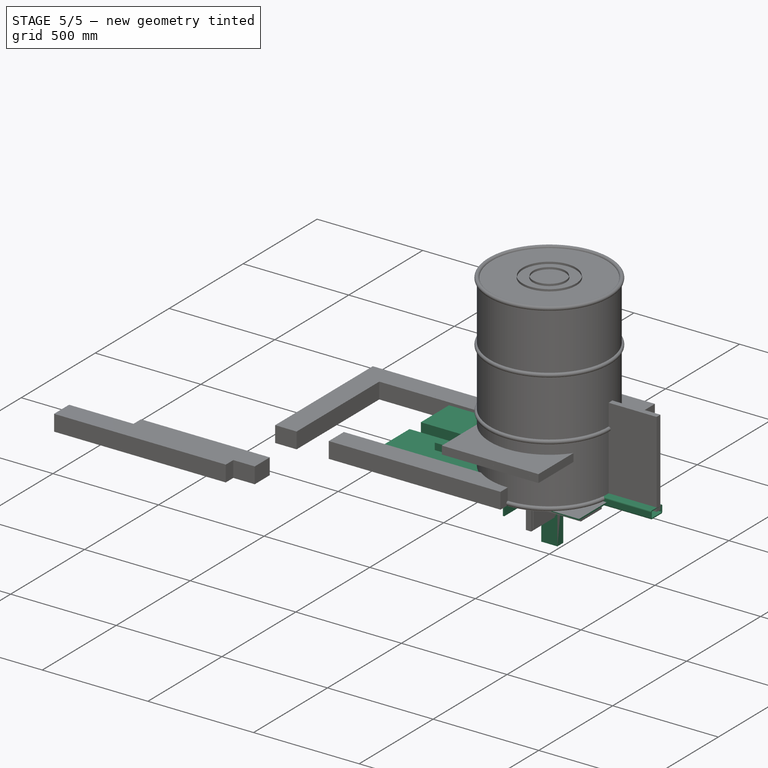
[diagram: stage 5 of 5 — iso view after this stage's code; geometry added in this stage tinted green]
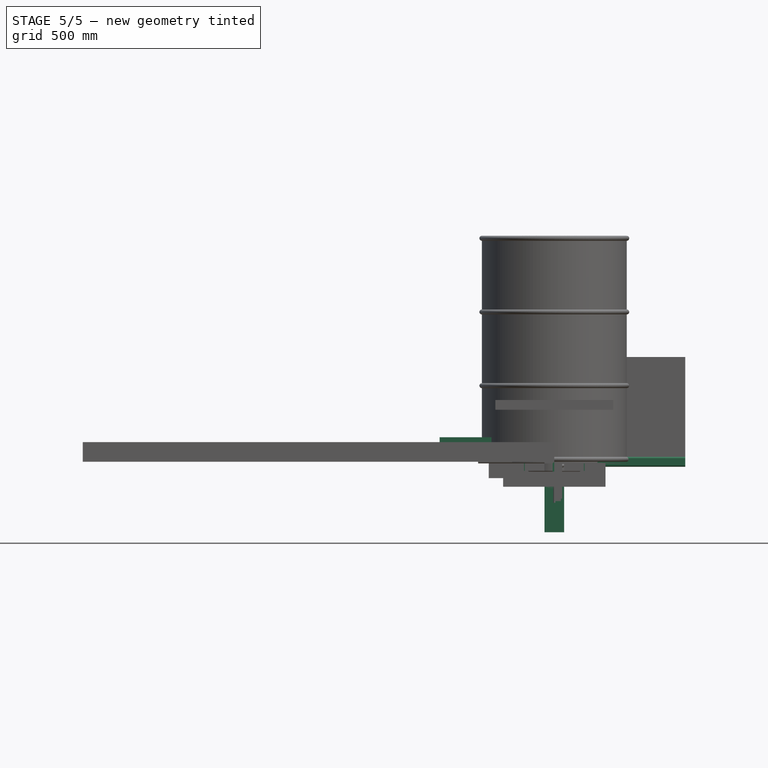
[diagram: stage 5 of 5 — front view after this stage's code; geometry added in this stage tinted green]
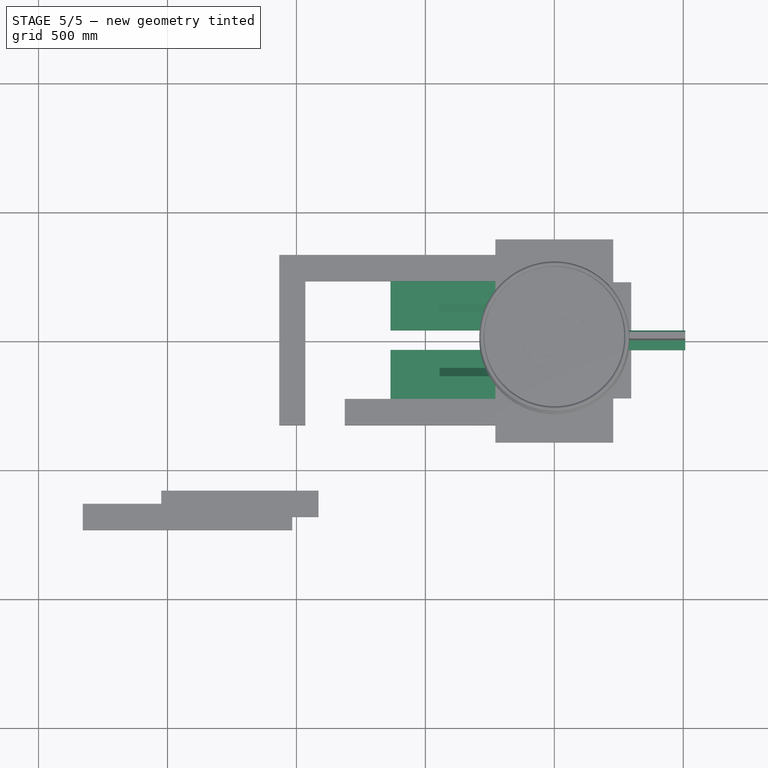
[diagram: stage 5 of 5 — top view after this stage's code; geometry added in this stage tinted green]
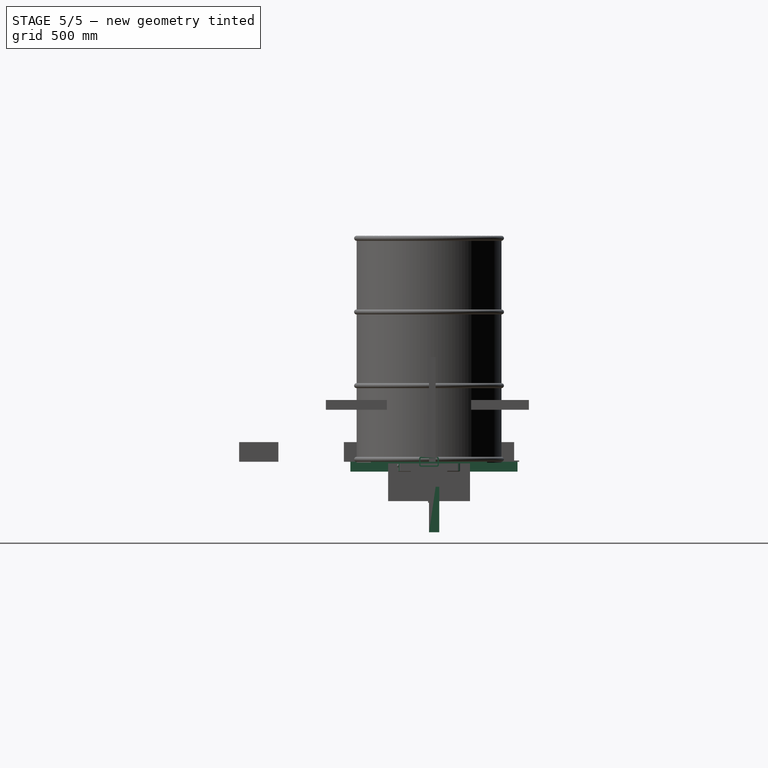
[diagram: stage 5 of 5 — right view after this stage's code; geometry added in this stage tinted green]
FEATURE [Sketcher::SketchObject] Sketch7956
  FullyConstrained = true
  MapMode = 5
  Support = -> [XY_Plane8184]
  sketch-geometry (4):
    g0: LineSegment StartX=0 StartY=-57.15 StartZ=0 EndX=-228.6 EndY=-57.15 EndZ=0
    g1: LineSegment StartX=-228.6 StartY=-57.15 StartZ=0 EndX=-228.6 EndY=57.15 EndZ=0
    g2: LineSegment StartX=-228.6 StartY=57.15 StartZ=0 EndX=0 EndY=57.15 EndZ=0
    g3: LineSegment StartX=0 StartY=57.15 StartZ=0 EndX=0 EndY=-57.15 EndZ=0
  constraints (11):
    c: Coincident(g0,g1)
    c: Coincident(g1,g2)
    c: Coincident(g2,g3)
    c: Coincident(g3,g0)
    c: Horizontal(g0)
    c: Horizontal(g2)
    c: Vertical(g1)
    c: Vertical(g3)
    c: Symmetric(g2,g0,g-1)
    c: DistanceX(g2,g2) = 228.6
    c: DistanceY(g3,g3) = 114.3
FEATURE [PartDesign::Pad] Pad6997
  Direction = (0,0,1)
  Length = 63.5
  Length2 = 9.92188
  Profile = -> Sketch7956
  ReferenceAxis = -> Sketch7956 [N_Axis]
  Refine = true
  Type = 0
FEATURE [PartDesign::Body] Body6302  label="BRICK-1202"
  Group = -> [Sketch7956,Pad6997]
  Origin = -> Origin8277
  Placement = pos=(-4e-15,57.15,5.68e-14) rot=(0,0,1;0rad)
  Tip = -> Pad6997
FEATURE [Sketcher::SketchObject] Sketch7957
  FullyConstrained = true
  MapMode = 5
  Support = -> [XY_Plane8185]
  sketch-geometry (4):
    g0: LineSegment StartX=0 StartY=-57.15 StartZ=0 EndX=-228.6 EndY=-57.15 EndZ=0
    g1: LineSegment StartX=-228.6 StartY=-57.15 StartZ=0 EndX=-228.6 EndY=57.15 EndZ=0
    g2: LineSegment StartX=-228.6 StartY=57.15 StartZ=0 EndX=0 EndY=57.15 EndZ=0
    g3: LineSegment StartX=0 StartY=57.15 StartZ=0 EndX=0 EndY=-57.15 EndZ=0
  constraints (11):
    c: Coincident(g0,g1)
    c: Coincident(g1,g2)
    c: Coincident(g2,g3)
    c: Coincident(g3,g0)
    c: Horizontal(g0)
    c: Horizontal(g2)
    c: Vertical(g1)
    c: Vertical(g3)
    c: Symmetric(g2,g0,g-1)
    c: DistanceX(g2,g2) = 228.6
    c: DistanceY(g3,g3) = 114.3
FEATURE [PartDesign::Pad] Pad6998
  Direction = (0,0,1)
  Length = 63.5
  Length2 = 9.92188
  Profile = -> Sketch7957
  ReferenceAxis = -> Sketch7957 [N_Axis]
  Refine = true
  Type = 0
FEATURE [PartDesign::Body] Body6303  label="BRICK-1203"
  Group = -> [Sketch7957,Pad6998]
  Origin = -> Origin8278
  Placement = pos=(-228.6,57.15,5.68e-14) rot=(0,0,1;0rad)
  Tip = -> Pad6998
FEATURE [Sketcher::SketchObject] Sketch7958
  FullyConstrained = true
  MapMode = 5
  Support = -> [XY_Plane8186]
  sketch-geometry (4):
    g0: LineSegment StartX=0 StartY=-57.15 StartZ=0 EndX=-114.3 EndY=-57.15 EndZ=0
    g1: LineSegment StartX=-114.3 StartY=-57.15 StartZ=0 EndX=-114.3 EndY=57.15 EndZ=0
    g2: LineSegment StartX=-114.3 StartY=57.15 StartZ=0 EndX=0 EndY=57.15 EndZ=0
    g3: LineSegment StartX=0 StartY=57.15 StartZ=0 EndX=0 EndY=-57.15 EndZ=0
  constraints (11):
    c: Coincident(g0,g1)
    c: Coincident(g1,g2)
    c: Coincident(g2,g3)
    c: Coincident(g3,g0)
    c: Horizontal(g0)
    c: Horizontal(g2)
    c: Vertical(g1)
    c: Vertical(g3)
    c: Symmetric(g2,g0,g-1)
    c: DistanceX(g2,g2) = 114.3
    c: DistanceY(g3,g3) = 114.3
FEATURE [PartDesign::Pad] Pad6999
  Direction = (0,0,1)
  Length = 63.5
  Length2 = 9.92188
  Profile = -> Sketch7958
  ReferenceAxis = -> Sketch7958 [N_Axis]
  Refine = true
  Type = 0
FEATURE [PartDesign::Body] Body6304  label="BRICK-1204"
  Group = -> [Sketch7958,Pad6999]
  Origin = -> Origin8279
  Placement = pos=(-457.2,57.15,5.68e-14) rot=(0,0,1;0rad)
  Tip = -> Pad6999
FEATURE [Sketcher::SketchObject] Sketch7959
  FullyConstrained = true
  MapMode = 5
  Support = -> [XY_Plane8187]
  sketch-geometry (4):
    g0: LineSegment StartX=0 StartY=-57.15 StartZ=0 EndX=-114.3 EndY=-57.15 EndZ=0
    g1: LineSegment StartX=-114.3 StartY=-57.15 StartZ=0 EndX=-114.3 EndY=57.15 EndZ=0
    g2: LineSegment StartX=-114.3 StartY=57.15 StartZ=0 EndX=0 EndY=57.15 EndZ=0
    g3: LineSegment StartX=0 StartY=57.15 StartZ=0 EndX=0 EndY=-57.15 EndZ=0
  constraints (11):
    c: Coincident(g0,g1)
    c: Coincident(g1,g2)
    c: Coincident(g2,g3)
    c: Coincident(g3,g0)
    c: Horizontal(g0)
    c: Horizontal(g2)
    c: Vertical(g1)
    c: Vertical(g3)
    c: Symmetric(g2,g0,g-1)
    c: DistanceX(g2,g2) = 114.3
    c: DistanceY(g3,g3) = 114.3
FEATURE [PartDesign::Pad] Pad7000
  Direction = (0,0,1)
  Length = 63.5
  Length2 = 9.92188
  Profile = -> Sketch7959
  ReferenceAxis = -> Sketch7959 [N_Axis]
  Refine = true
  Type = 0
FEATURE [PartDesign::Body] Body6305  label="BRICK-1205"
  Group = -> [Sketch7959,Pad7000]
  Origin = -> Origin8280
  Placement = pos=(0,171.45,5.68e-14) rot=(0,0,1;0rad)
  Tip = -> Pad7000
FEATURE [Sketcher::SketchObject] Sketch7960
  FullyConstrained = true
  MapMode = 5
  Support = -> [XY_Plane8188]
  sketch-geometry (4):
    g0: LineSegment StartX=0 StartY=-57.15 StartZ=0 EndX=-228.6 EndY=-57.15 EndZ=0
    g1: LineSegment StartX=-228.6 StartY=-57.15 StartZ=0 EndX=-228.6 EndY=57.15 EndZ=0
    g2: LineSegment StartX=-228.6 StartY=57.15 StartZ=0 EndX=0 EndY=57.15 EndZ=0
    g3: LineSegment StartX=0 StartY=57.15 StartZ=0 EndX=0 EndY=-57.15 EndZ=0
  constraints (11):
    c: Coincident(g0,g1)
    c: Coincident(g1,g2)
    c: Coincident(g2,g3)
    c: Coincident(g3,g0)
    c: Horizontal(g0)
    c: Horizontal(g2)
    c: Vertical(g1)
    c: Vertical(g3)
    c: Symmetric(g2,g0,g-1)
    c: DistanceX(g2,g2) = 228.6
    c: DistanceY(g3,g3) = 114.3
FEATURE [PartDesign::Pad] Pad7001
  Direction = (0,0,1)
  Length = 63.5
  Length2 = 9.92188
  Profile = -> Sketch7960
  ReferenceAxis = -> Sketch7960 [N_Axis]
  Refine = true
  Type = 0
FEATURE [PartDesign::Body] Body6306  label="BRICK-1206"
  Group = -> [Sketch7960,Pad7001]
  Origin = -> Origin8281
  Placement = pos=(-114.3,171.45,5.68e-14) rot=(0,0,1;0rad)
  Tip = -> Pad7001
FEATURE [Sketcher::SketchObject] Sketch7961
  FullyConstrained = true
  MapMode = 5
  Support = -> [XY_Plane8189]
  sketch-geometry (4):
    g0: LineSegment StartX=0 StartY=-57.15 StartZ=0 EndX=-228.6 EndY=-57.15 EndZ=0
    g1: LineSegment StartX=-228.6 StartY=-57.15 StartZ=0 EndX=-228.6 EndY=57.15 EndZ=0
    g2: LineSegment StartX=-228.6 StartY=57.15 StartZ=0 EndX=0 EndY=57.15 EndZ=0
    g3: LineSegment StartX=0 StartY=57.15 StartZ=0 EndX=0 EndY=-57.15 EndZ=0
  constraints (11):
    c: Coincident(g0,g1)
    c: Coincident(g1,g2)
    c: Coincident(g2,g3)
    c: Coincident(g3,g0)
    c: Horizontal(g0)
    c: Horizontal(g2)
    c: Vertical(g1)
    c: Vertical(g3)
    c: Symmetric(g2,g0,g-1)
    c: DistanceX(g2,g2) = 228.6
    c: DistanceY(g3,g3) = 114.3
FEATURE [PartDesign::Pad] Pad7002
  Direction = (0,0,1)
  Length = 63.5
  Length2 = 9.92188
  Profile = -> Sketch7961
  ReferenceAxis = -> Sketch7961 [N_Axis]
  Refine = true
  Type = 0
FEATURE [PartDesign::Body] Body6307  label="BRICK-1207"
  Group = -> [Sketch7961,Pad7002]
  Origin = -> Origin8282
  Placement = pos=(-342.9,171.45,5.68e-14) rot=(0,0,1;0rad)
  Tip = -> Pad7002
FEATURE [Sketcher::SketchObject] Sketch7962
  FullyConstrained = true
  MapMode = 5
  Support = -> [XY_Plane8190]
  sketch-geometry (4):
    g0: LineSegment StartX=0 StartY=-57.15 StartZ=0 EndX=-114.3 EndY=-57.15 EndZ=0
    g1: LineSegment StartX=-114.3 StartY=-57.15 StartZ=0 EndX=-114.3 EndY=57.15 EndZ=0
    g2: LineSegment StartX=-114.3 StartY=57.15 StartZ=0 EndX=0 EndY=57.15 EndZ=0
    g3: LineSegment StartX=0 StartY=57.15 StartZ=0 EndX=0 EndY=-57.15 EndZ=0
  constraints (11):
    c: Coincident(g0,g1)
    c: Coincident(g1,g2)
    c: Coincident(g2,g3)
    c: Coincident(g3,g0)
    c: Horizontal(g0)
    c: Horizontal(g2)
    c: Vertical(g1)
    c: Vertical(g3)
    c: Symmetric(g2,g0,g-1)
    c: DistanceX(g2,g2) = 114.3
    c: DistanceY(g3,g3) = 114.3
FEATURE [PartDesign::Pad] Pad7003
  Direction = (0,0,1)
  Length = 63.5
  Length2 = 9.92188
  Profile = -> Sketch7962
  ReferenceAxis = -> Sketch7962 [N_Axis]
  Refine = true
  Type = 0
FEATURE [PartDesign::Body] Body6308  label="BRICK-1208"
  Group = -> [Sketch7962,Pad7003]
  Origin = -> Origin8283
  Placement = pos=(0,-57.15,5.68e-14) rot=(0,0,1;0rad)
  Tip = -> Pad7003
FEATURE [Sketcher::SketchObject] Sketch7963
  FullyConstrained = true
  MapMode = 5
  Support = -> [XY_Plane8191]
  sketch-geometry (4):
    g0: LineSegment StartX=0 StartY=-57.15 StartZ=0 EndX=-228.6 EndY=-57.15 EndZ=0
    g1: LineSegment StartX=-228.6 StartY=-57.15 StartZ=0 EndX=-228.6 EndY=57.15 EndZ=0
    g2: LineSegment StartX=-228.6 StartY=57.15 StartZ=0 EndX=0 EndY=57.15 EndZ=0
    g3: LineSegment StartX=0 StartY=57.15 StartZ=0 EndX=0 EndY=-57.15 EndZ=0
  constraints (11):
    c: Coincident(g0,g1)
    c: Coincident(g1,g2)
    c: Coincident(g2,g3)
    c: Coincident(g3,g0)
    c: Horizontal(g0)
    c: Horizontal(g2)
    c: Vertical(g1)
    c: Vertical(g3)
    c: Symmetric(g2,g0,g-1)
    c: DistanceX(g2,g2) = 228.6
    c: DistanceY(g3,g3) = 114.3
FEATURE [PartDesign::Pad] Pad7004
  Direction = (0,0,1)
  Length = 63.5
  Length2 = 9.92188
  Profile = -> Sketch7963
  ReferenceAxis = -> Sketch7963 [N_Axis]
  Refine = true
  Type = 0
FEATURE [PartDesign::Body] Body6309  label="BRICK-1209"
  Group = -> [Sketch7963,Pad7004]
  Origin = -> Origin8284
  Placement = pos=(-114.3,-57.15,5.68e-14) rot=(0,0,1;0rad)
  Tip = -> Pad7004
FEATURE [Sketcher::SketchObject] Sketch7964
  FullyConstrained = true
  MapMode = 5
  Support = -> [XY_Plane8192]
  sketch-geometry (4):
    g0: LineSegment StartX=0 StartY=-57.15 StartZ=0 EndX=-228.6 EndY=-57.15 EndZ=0
    g1: LineSegment StartX=-228.6 StartY=-57.15 StartZ=0 EndX=-228.6 EndY=57.15 EndZ=0
    g2: LineSegment StartX=-228.6 StartY=57.15 StartZ=0 EndX=0 EndY=57.15 EndZ=0
    g3: LineSegment StartX=0 StartY=57.15 StartZ=0 EndX=0 EndY=-57.15 EndZ=0
  constraints (11):
    c: Coincident(g0,g1)
    c: Coincident(g1,g2)
    c: Coincident(g2,g3)
    c: Coincident(g3,g0)
    c: Horizontal(g0)
    c: Horizontal(g2)
    c: Vertical(g1)
    c: Vertical(g3)
    c: Symmetric(g2,g0,g-1)
    c: DistanceX(g2,g2) = 228.6
    c: DistanceY(g3,g3) = 114.3
FEATURE [PartDesign::Pad] Pad7005
  Direction = (0,0,1)
  Length = 63.5
  Length2 = 9.92188
  Profile = -> Sketch7964
  ReferenceAxis = -> Sketch7964 [N_Axis]
  Refine = true
  Type = 0
FEATURE [PartDesign::Body] Body6310  label="BRICK-1210"
  Group = -> [Sketch7964,Pad7005]
  Origin = -> Origin8285
  Placement = pos=(-342.9,-57.15,5.68e-14) rot=(0,0,1;0rad)
  Tip = -> Pad7005
FEATURE [Sketcher::SketchObject] Sketch7966
  FullyConstrained = true
  MapMode = 5
  Support = -> [XY_Plane8195]
  sketch-geometry (4):
    g0: LineSegment StartX=0 StartY=0 StartZ=0 EndX=-114.3 EndY=0 EndZ=0
    g1: LineSegment StartX=-114.3 StartY=0 StartZ=0 EndX=-114.3 EndY=190.5 EndZ=0
    g2: LineSegment StartX=-114.3 StartY=190.5 StartZ=0 EndX=0 EndY=190.5 EndZ=0
    g3: LineSegment StartX=0 StartY=190.5 StartZ=0 EndX=0 EndY=0 EndZ=0
  constraints (11):
    c: Coincident(g0,g1)
    c: Coincident(g1,g2)
    c: Coincident(g2,g3)
    c: Coincident(g3,g0)
    c: Horizontal(g0)
    c: Horizontal(g2)
    c: Vertical(g1)
    c: Vertical(g3)
    c: DistanceX(g2,g2) = 114.3
    c: DistanceY(g3,g3) = 190.5
    c: Coincident(g0,g-1)
FEATURE [PartDesign::Pad] Pad7007
  Direction = (0,0,1)
  Length = 63.5
  Length2 = 9.92188
  Profile = -> Sketch7966
  ReferenceAxis = -> Sketch7966 [N_Axis]
  Refine = true
  Type = 0
FEATURE [PartDesign::Body] Body6312  label="BRICK-1212"
  Group = -> [Sketch7966,Pad7007]
  Origin = -> Origin8288
  Placement = pos=(-57.15,38.1,0) rot=(0,0,1;0rad)
  Tip = -> Pad7007
FEATURE [Part::FeaturePython] Array401  # Draft array (typed FeaturePython)
  AlwaysSyncPlacement = false
  Angle = 360
  ArrayType = 0
  Axis = (0,0,1)
  Base = -> Body6312
  Center = (0,0,0)
  Count = 5
  ExpandArray = false
  Fuse = false
  IntervalAxis = (0,0,0)
  IntervalX = (-114.3,0,0)
  IntervalY = (0,100.012,0)
  IntervalZ = (0,0,100.012)
  NumberCircles = 3
  NumberPolar = 5
  NumberX = 5
  NumberY = 1
  NumberZ = 1
  Placement = pos=(-6.34999,-266.7,-6.10352e-05) rot=(0,0,1;0rad)
  PlacementList = 5 placements: arithmetic series from (-57.15,38.1,0) step (-114.3,0,0) to (-514.35,38.1,0)
  RadialDistance = 50
  ScaleList = (5) [(1,1,1),(1,1,1),(1,1,1),(1,1,1),(1,1,1)]
  Symmetry = 1
  TangentialDistance = 25
FEATURE [Sketcher::SketchObject] Sketch7967
  FullyConstrained = true
  MapMode = 5
  Support = -> [XY_Plane8196]
  sketch-geometry (4):
    g0: LineSegment StartX=0 StartY=0 StartZ=0 EndX=-63.5 EndY=0 EndZ=0
    g1: LineSegment StartX=-63.5 StartY=0 StartZ=0 EndX=-63.5 EndY=190.5 EndZ=0
    g2: LineSegment StartX=-63.5 StartY=190.5 StartZ=0 EndX=0 EndY=190.5 EndZ=0
    g3: LineSegment StartX=0 StartY=190.5 StartZ=0 EndX=0 EndY=0 EndZ=0
  constraints (11):
    c: Coincident(g0,g1)
    c: Coincident(g1,g2)
    c: Coincident(g2,g3)
    c: Coincident(g3,g0)
    c: Horizontal(g0)
    c: Horizontal(g2)
    c: Vertical(g1)
    c: Vertical(g3)
    c: DistanceX(g2,g2) = 63.5
    c: DistanceY(g3,g3) = 190.5
    c: Coincident(g0,g-1)
FEATURE [PartDesign::Pad] Pad7008
  Direction = (0,0,1)
  Length = 63.5
  Length2 = 9.92188
  Midplane = true
  Profile = -> Sketch7967
  ReferenceAxis = -> Sketch7967 [N_Axis]
  Refine = true
  Type = 0
FEATURE [PartDesign::Body] Body6313  label="BRICK-1213"
  Group = -> [Sketch7967,Pad7008]
  Origin = -> Origin8289
  Placement = pos=(8.5e-14,-228.6,31.75) rot=(0,0,1;0rad)
  Tip = -> Pad7008
FEATURE [Sketcher::SketchObject] Sketch7968
  FullyConstrained = true
  MapMode = 5
  Support = -> [XY_Plane8198]
  sketch-geometry (4):
    g0: LineSegment StartX=0 StartY=-57.15 StartZ=0 EndX=-228.6 EndY=-57.15 EndZ=0
    g1: LineSegment StartX=-228.6 StartY=-57.15 StartZ=0 EndX=-228.6 EndY=57.15 EndZ=0
    g2: LineSegment StartX=-228.6 StartY=57.15 StartZ=0 EndX=0 EndY=57.15 EndZ=0
    g3: LineSegment StartX=0 StartY=57.15 StartZ=0 EndX=0 EndY=-57.15 EndZ=0
  constraints (11):
    c: Coincident(g0,g1)
    c: Coincident(g1,g2)
    c: Coincident(g2,g3)
    c: Coincident(g3,g0)
    c: Horizontal(g0)
    c: Horizontal(g2)
    c: Vertical(g1)
    c: Vertical(g3)
    c: Symmetric(g2,g0,g-1)
    c: DistanceX(g2,g2) = 228.6
    c: DistanceY(g3,g3) = 114.3
FEATURE [PartDesign::Pad] Pad7009
  Direction = (0,0,1)
  Length = 63.5
  Length2 = 9.92188
  Profile = -> Sketch7968
  ReferenceAxis = -> Sketch7968 [N_Axis]
  Refine = true
  Type = 0
FEATURE [PartDesign::Body] Body6314  label="BRICK-1214"
  Group = -> [Sketch7968,Pad7009]
  Origin = -> Origin8291
  Placement = pos=(-628.65,-4.1e-14,5.7e-14) rot=(0,0,1;1.5708rad)
  Tip = -> Pad7009
FEATURE [Sketcher::SketchObject] Sketch7969
  FullyConstrained = true
  MapMode = 5
  Support = -> [XY_Plane8199]
  sketch-geometry (4):
    g0: LineSegment StartX=0 StartY=-57.15 StartZ=0 EndX=-228.6 EndY=-57.15 EndZ=0
    g1: LineSegment StartX=-228.6 StartY=-57.15 StartZ=0 EndX=-228.6 EndY=57.15 EndZ=0
    g2: LineSegment StartX=-228.6 StartY=57.15 StartZ=0 EndX=0 EndY=57.15 EndZ=0
    g3: LineSegment StartX=0 StartY=57.15 StartZ=0 EndX=0 EndY=-57.15 EndZ=0
  constraints (11):
    c: Coincident(g0,g1)
    c: Coincident(g1,g2)
    c: Coincident(g2,g3)
    c: Coincident(g3,g0)
    c: Horizontal(g0)
    c: Horizontal(g2)
    c: Vertical(g1)
    c: Vertical(g3)
    c: Symmetric(g2,g0,g-1)
    c: DistanceX(g2,g2) = 228.6
    c: DistanceY(g3,g3) = 114.3
FEATURE [PartDesign::Pad] Pad7010
  Direction = (0,0,1)
  Length = 63.5
  Length2 = 9.92188
  Profile = -> Sketch7969
  ReferenceAxis = -> Sketch7969 [N_Axis]
  Refine = true
  Type = 0
FEATURE [PartDesign::Body] Body6315  label="BRICK-1215"
  Group = -> [Sketch7969,Pad7010]
  Origin = -> Origin8292
  Placement = pos=(-628.65,1.5e-14,5.7e-14) rot=(0,0,-1;1.5708rad)
  Tip = -> Pad7010
FEATURE [Sketcher::SketchObject] Sketch7970
  FullyConstrained = true
  MapMode = 5
  Support = -> [XY_Plane8200]
  sketch-geometry (4):
    g0: LineSegment StartX=0 StartY=-57.15 StartZ=0 EndX=-228.6 EndY=-57.15 EndZ=0
    g1: LineSegment StartX=-228.6 StartY=-57.15 StartZ=0 EndX=-228.6 EndY=57.15 EndZ=0
    g2: LineSegment StartX=-228.6 StartY=57.15 StartZ=0 EndX=0 EndY=57.15 EndZ=0
    g3: LineSegment StartX=0 StartY=57.15 StartZ=0 EndX=0 EndY=-57.15 EndZ=0
  constraints (11):
    c: Coincident(g0,g1)
    c: Coincident(g1,g2)
    c: Coincident(g2,g3)
    c: Coincident(g3,g0)
    c: Horizontal(g0)
    c: Horizontal(g2)
    c: Vertical(g1)
    c: Vertical(g3)
    c: Symmetric(g2,g0,g-1)
    c: DistanceX(g2,g2) = 228.6
    c: DistanceY(g3,g3) = 114.3
FEATURE [PartDesign::Pad] Pad7011
  Direction = (0,0,1)
  Length = 63.5
  Length2 = 9.92188
  Profile = -> Sketch7970
  ReferenceAxis = -> Sketch7970 [N_Axis]
  Refine = true
  Type = 0
FEATURE [PartDesign::Body] Body6316  label="BRICK-1216"
  Group = -> [Sketch7970,Pad7011]
  Origin = -> Origin8293
  Placement = pos=(-742.95,-114.3,5.7e-14) rot=(0,0,-1;1.5708rad)
  Tip = -> Pad7011
FEATURE [Sketcher::SketchObject] Sketch7971
  FullyConstrained = true
  MapMode = 5
  Support = -> [XY_Plane8201]
  sketch-geometry (4):
    g0: LineSegment StartX=0 StartY=-57.15 StartZ=0 EndX=-228.6 EndY=-57.15 EndZ=0
    g1: LineSegment StartX=-228.6 StartY=-57.15 StartZ=0 EndX=-228.6 EndY=57.15 EndZ=0
    g2: LineSegment StartX=-228.6 StartY=57.15 StartZ=0 EndX=0 EndY=57.15 EndZ=0
    g3: LineSegment StartX=0 StartY=57.15 StartZ=0 EndX=0 EndY=-57.15 EndZ=0
  constraints (11):
    c: Coincident(g0,g1)
    c: Coincident(g1,g2)
    c: Coincident(g2,g3)
    c: Coincident(g3,g0)
    c: Horizontal(g0)
    c: Horizontal(g2)
    c: Vertical(g1)
    c: Vertical(g3)
    c: Symmetric(g2,g0,g-1)
    c: DistanceX(g2,g2) = 228.6
    c: DistanceY(g3,g3) = 114.3
FEATURE [PartDesign::Pad] Pad7012
  Direction = (0,0,1)
  Length = 63.5
  Length2 = 9.92188
  Profile = -> Sketch7971
  ReferenceAxis = -> Sketch7971 [N_Axis]
  Refine = true
  Type = 0
FEATURE [PartDesign::Body] Body6317  label="BRICK-1217"
  Group = -> [Sketch7971,Pad7012]
  Origin = -> Origin8294
  Placement = pos=(0,-171.45,5.68e-14) rot=(0,0,1;0rad)
  Tip = -> Pad7012
FEATURE [Sketcher::SketchObject] Sketch7972
  FullyConstrained = true
  MapMode = 5
  Support = -> [XY_Plane8202]
  sketch-geometry (4):
    g0: LineSegment StartX=0 StartY=-57.15 StartZ=0 EndX=-228.6 EndY=-57.15 EndZ=0
    g1: LineSegment StartX=-228.6 StartY=-57.15 StartZ=0 EndX=-228.6 EndY=57.15 EndZ=0
    g2: LineSegment StartX=-228.6 StartY=57.15 StartZ=0 EndX=0 EndY=57.15 EndZ=0
    g3: LineSegment StartX=0 StartY=57.15 StartZ=0 EndX=0 EndY=-57.15 EndZ=0
  constraints (11):
    c: Coincident(g0,g1)
    c: Coincident(g1,g2)
    c: Coincident(g2,g3)
    c: Coincident(g3,g0)
    c: Horizontal(g0)
    c: Horizontal(g2)
    c: Vertical(g1)
    c: Vertical(g3)
    c: Symmetric(g2,g0,g-1)
    c: DistanceX(g2,g2) = 228.6
    c: DistanceY(g3,g3) = 114.3
FEATURE [PartDesign::Pad] Pad7013
  Direction = (0,0,1)
  Length = 63.5
  Length2 = 9.92188
  Profile = -> Sketch7972
  ReferenceAxis = -> Sketch7972 [N_Axis]
  Refine = true
  Type = 0
FEATURE [PartDesign::Body] Body6318  label="BRICK-1218"
  Group = -> [Sketch7972,Pad7013]
  Origin = -> Origin8295
  Placement = pos=(-228.6,-171.45,5.68e-14) rot=(0,0,1;0rad)
  Tip = -> Pad7013
FEATURE [Sketcher::SketchObject] Sketch7973
  FullyConstrained = true
  MapMode = 5
  Support = -> [XY_Plane8203]
  sketch-geometry (4):
    g0: LineSegment StartX=0 StartY=-57.15 StartZ=0 EndX=-114.3 EndY=-57.15 EndZ=0
    g1: LineSegment StartX=-114.3 StartY=-57.15 StartZ=0 EndX=-114.3 EndY=57.15 EndZ=0
    g2: LineSegment StartX=-114.3 StartY=57.15 StartZ=0 EndX=0 EndY=57.15 EndZ=0
    g3: LineSegment StartX=0 StartY=57.15 StartZ=0 EndX=0 EndY=-57.15 EndZ=0
  constraints (11):
    c: Coincident(g0,g1)
    c: Coincident(g1,g2)
    c: Coincident(g2,g3)
    c: Coincident(g3,g0)
    c: Horizontal(g0)
    c: Horizontal(g2)
    c: Vertical(g1)
    c: Vertical(g3)
    c: Symmetric(g2,g0,g-1)
    c: DistanceX(g2,g2) = 114.3
    c: DistanceY(g3,g3) = 114.3
FEATURE [PartDesign::Pad] Pad7014
  Direction = (0,0,1)
  Length = 63.5
  Length2 = 9.92188
  Profile = -> Sketch7973
  ReferenceAxis = -> Sketch7973 [N_Axis]
  Refine = true
  Type = 0
FEATURE [PartDesign::Body] Body6319  label="BRICK-1219"
  Group = -> [Sketch7973,Pad7014]
  Origin = -> Origin8296
  Placement = pos=(-457.2,-171.45,5.68e-14) rot=(0,0,1;0rad)
  Tip = -> Pad7014
FEATURE [Sketcher::SketchObject] Sketch7974
  FullyConstrained = true
  MapMode = 5
  Support = -> [XY_Plane8204]
  sketch-geometry (4):
    g0: LineSegment StartX=0 StartY=-57.15 StartZ=0 EndX=-114.3 EndY=-57.15 EndZ=0
    g1: LineSegment StartX=-114.3 StartY=-57.15 StartZ=0 EndX=-114.3 EndY=57.15 EndZ=0
    g2: LineSegment StartX=-114.3 StartY=57.15 StartZ=0 EndX=0 EndY=57.15 EndZ=0
    g3: LineSegment StartX=0 StartY=57.15 StartZ=0 EndX=0 EndY=-57.15 EndZ=0
  constraints (11):
    c: Coincident(g0,g1)
    c: Coincident(g1,g2)
    c: Coincident(g2,g3)
    c: Coincident(g3,g0)
    c: Horizontal(g0)
    c: Horizontal(g2)
    c: Vertical(g1)
    c: Vertical(g3)
    c: Symmetric(g2,g0,g-1)
    c: DistanceX(g2,g2) = 114.3
    c: DistanceY(g3,g3) = 114.3
FEATURE [PartDesign::Pad] Pad7015
  Direction = (0,0,1)
  Length = 63.5
  Length2 = 9.92188
  Profile = -> Sketch7974
  ReferenceAxis = -> Sketch7974 [N_Axis]
  Refine = true
  Type = 0
FEATURE [PartDesign::Body] Body6320  label="BRICK-1220"
  Group = -> [Sketch7974,Pad7015]
  Origin = -> Origin8297
  Placement = pos=(-685.8,171.45,5.68e-14) rot=(0,0,1;0rad)
  Tip = -> Pad7015
FEATURE [Sketcher::SketchObject] Sketch7975
  FullyConstrained = true
  MapMode = 5
  Support = -> [XY_Plane8205]
  sketch-geometry (4):
    g0: LineSegment StartX=0 StartY=-57.15 StartZ=0 EndX=-114.3 EndY=-57.15 EndZ=0
    g1: LineSegment StartX=-114.3 StartY=-57.15 StartZ=0 EndX=-114.3 EndY=57.15 EndZ=0
    g2: LineSegment StartX=-114.3 StartY=57.15 StartZ=0 EndX=0 EndY=57.15 EndZ=0
    g3: LineSegment StartX=0 StartY=57.15 StartZ=0 EndX=0 EndY=-57.15 EndZ=0
  constraints (11):
    c: Coincident(g0,g1)
    c: Coincident(g1,g2)
    c: Coincident(g2,g3)
    c: Coincident(g3,g0)
    c: Horizontal(g0)
    c: Horizontal(g2)
    c: Vertical(g1)
    c: Vertical(g3)
    c: Symmetric(g2,g0,g-1)
    c: DistanceX(g2,g2) = 114.3
    c: DistanceY(g3,g3) = 114.3
FEATURE [PartDesign::Pad] Pad7016
  Direction = (0,0,1)
  Length = 63.5
  Length2 = 9.92188
  Profile = -> Sketch7975
  ReferenceAxis = -> Sketch7975 [N_Axis]
  Refine = true
  Type = 0
FEATURE [PartDesign::Body] Body6321  label="BRICK-1221"
  Group = -> [Sketch7975,Pad7016]
  Origin = -> Origin8298
  Placement = pos=(-685.8,-171.45,5.68e-14) rot=(0,0,1;0rad)
  Tip = -> Pad7016
FEATURE [App::Part] Part324  label="FB-COURSE-001"
  Group = -> [Body6302,Body6303,Body6304,Body6305,Body6306,Body6307,Body6308,Body6309,Body6310,Body6314,Body6315,Body6316,Body6317,Body6318,Body6319,Body6320,Body6321]
  Origin = -> Origin8290
  Placement = pos=(1.8e-15,-1.4e-15,0) rot=(0,0,1;4.71239rad)
FEATURE [Sketcher::SketchObject] Sketch7987
  FullyConstrained = true
  MapMode = 5
  Support = -> [XY_Plane8219]
  sketch-geometry (4):
    g0: LineSegment StartX=0 StartY=0 StartZ=0 EndX=-114.3 EndY=0 EndZ=0
    g1: LineSegment StartX=-114.3 StartY=0 StartZ=0 EndX=-114.3 EndY=114.3 EndZ=0
    g2: LineSegment StartX=-114.3 StartY=114.3 StartZ=0 EndX=0 EndY=114.3 EndZ=0
    g3: LineSegment StartX=0 StartY=114.3 StartZ=0 EndX=0 EndY=0 EndZ=0
  constraints (11):
    c: Coincident(g0,g1)
    c: Coincident(g1,g2)
    c: Coincident(g2,g3)
    c: Coincident(g3,g0)
    c: Horizontal(g0)
    c: Horizontal(g2)
    c: Vertical(g1)
    c: Vertical(g3)
    c: DistanceX(g2,g2) = 114.3
    c: DistanceY(g3,g3) = 114.3
    c: Coincident(g0,g-1)
FEATURE [PartDesign::Pad] Pad7028
  Direction = (0,0,1)
  Length = 63.5
  Length2 = 9.92188
  Profile = -> Sketch7987
  ReferenceAxis = -> Sketch7987 [N_Axis]
  Refine = true
  Type = 0
FEATURE [PartDesign::Body] Body6333  label="BRICK-1222"
  Group = -> [Sketch7987,Pad7028]
  Origin = -> Origin8312
  Placement = pos=(-457.2,-82.55,-5.7e-14) rot=(0.57735,0.57735,-0.57735;2.0944rad)
  Tip = -> Pad7028
FEATURE [Sketcher::SketchObject] Sketch7988
  FullyConstrained = true
  MapMode = 5
  Support = -> [XY_Plane8222]
  sketch-geometry (4):
    g0: LineSegment StartX=0 StartY=0 StartZ=0 EndX=-114.3 EndY=0 EndZ=0
    g1: LineSegment StartX=-114.3 StartY=0 StartZ=0 EndX=-114.3 EndY=228.6 EndZ=0
    g2: LineSegment StartX=-114.3 StartY=228.6 StartZ=0 EndX=0 EndY=228.6 EndZ=0
    g3: LineSegment StartX=0 StartY=228.6 StartZ=0 EndX=0 EndY=0 EndZ=0
  constraints (11):
    c: Coincident(g0,g1)
    c: Coincident(g1,g2)
    c: Coincident(g2,g3)
    c: Coincident(g3,g0)
    c: Horizontal(g0)
    c: Horizontal(g2)
    c: Vertical(g1)
    c: Vertical(g3)
    c: DistanceX(g2,g2) = 114.3
    c: DistanceY(g3,g3) = 228.6
    c: Coincident(g0,g-1)
FEATURE [PartDesign::Pad] Pad7029
  Direction = (0,0,1)
  Length = 63.5
  Length2 = 9.92188
  Profile = -> Sketch7988
  ReferenceAxis = -> Sketch7988 [N_Axis]
  Refine = true
  Type = 0
FEATURE [PartDesign::Body] Body6334  label="BRICK-1223"
  Group = -> [Sketch7988,Pad7029]
  Origin = -> Origin8315
  Placement = pos=(-342.9,260.35,-2.8e-14) rot=(0.57735,0.57735,-0.57735;2.0944rad)
  Tip = -> Pad7029
FEATURE [Sketcher::SketchObject] Sketch7989
  FullyConstrained = true
  MapMode = 5
  Support = -> [XY_Plane8223]
  sketch-geometry (4):
    g0: LineSegment StartX=0 StartY=0 StartZ=0 EndX=-114.3 EndY=0 EndZ=0
    g1: LineSegment StartX=-114.3 StartY=0 StartZ=0 EndX=-114.3 EndY=114.3 EndZ=0
    g2: LineSegment StartX=-114.3 StartY=114.3 StartZ=0 EndX=0 EndY=114.3 EndZ=0
    g3: LineSegment StartX=0 StartY=114.3 StartZ=0 EndX=0 EndY=0 EndZ=0
  constraints (11):
    c: Coincident(g0,g1)
    c: Coincident(g1,g2)
    c: Coincident(g2,g3)
    c: Coincident(g3,g0)
    c: Horizontal(g0)
    c: Horizontal(g2)
    c: Vertical(g1)
    c: Vertical(g3)
    c: DistanceX(g2,g2) = 114.3
    c: Coincident(g0,g-1)
    c: DistanceY(g1,g1) = 114.3
FEATURE [PartDesign::Pad] Pad7030
  Direction = (0,0,1)
  Length = 63.5
  Length2 = 9.92188
  Profile = -> Sketch7989
  ReferenceAxis = -> Sketch7989 [N_Axis]
  Refine = true
  Type = 0
FEATURE [PartDesign::Body] Body6335  label="BRICK-1224"
  Group = -> [Sketch7989,Pad7030]
  Origin = -> Origin8316
  Placement = pos=(-114.3,260.35,-2.8e-14) rot=(0.57735,0.57735,-0.57735;2.0944rad)
  Tip = -> Pad7030
FEATURE [Sketcher::SketchObject] Sketch7990
  FullyConstrained = true
  MapMode = 5
  Support = -> [XY_Plane8224]
  sketch-geometry (4):
    g0: LineSegment StartX=0 StartY=0 StartZ=0 EndX=-114.3 EndY=0 EndZ=0
    g1: LineSegment StartX=-114.3 StartY=0 StartZ=0 EndX=-114.3 EndY=228.6 EndZ=0
    g2: LineSegment StartX=-114.3 StartY=228.6 StartZ=0 EndX=0 EndY=228.6 EndZ=0
    g3: LineSegment StartX=0 StartY=228.6 StartZ=0 EndX=0 EndY=0 EndZ=0
  constraints (11):
    c: Coincident(g0,g1)
    c: Coincident(g1,g2)
    c: Coincident(g2,g3)
    c: Coincident(g3,g0)
    c: Horizontal(g0)
    c: Horizontal(g2)
    c: Vertical(g1)
    c: Vertical(g3)
    c: DistanceX(g2,g2) = 114.3
    c: DistanceY(g3,g3) = 228.6
    c: Coincident(g0,g-1)
FEATURE [PartDesign::Pad] Pad7031
  Direction = (0,0,1)
  Length = 63.5
  Length2 = 9.92188
  Profile = -> Sketch7990
  ReferenceAxis = -> Sketch7990 [N_Axis]
  Refine = true
  Type = 0
FEATURE [PartDesign::Body] Body6336  label="BRICK-1225"
  Group = -> [Sketch7990,Pad7031]
  Origin = -> Origin8317
  Placement = pos=(-342.9,-82.55,-5.7e-14) rot=(0.57735,0.57735,-0.57735;2.0944rad)
  Tip = -> Pad7031
FEATURE [Sketcher::SketchObject] Sketch7991
  FullyConstrained = true
  MapMode = 5
  Support = -> [XY_Plane8225]
  sketch-geometry (4):
    g0: LineSegment StartX=0 StartY=0 StartZ=0 EndX=-114.3 EndY=0 EndZ=0
    g1: LineSegment StartX=-114.3 StartY=0 StartZ=0 EndX=-114.3 EndY=114.3 EndZ=0
    g2: LineSegment StartX=-114.3 StartY=114.3 StartZ=0 EndX=0 EndY=114.3 EndZ=0
    g3: LineSegment StartX=0 StartY=114.3 StartZ=0 EndX=0 EndY=0 EndZ=0
  constraints (11):
    c: Coincident(g0,g1)
    c: Coincident(g1,g2)
    c: Coincident(g2,g3)
    c: Coincident(g3,g0)
    c: Horizontal(g0)
    c: Horizontal(g2)
    c: Vertical(g1)
    c: Vertical(g3)
    c: DistanceX(g2,g2) = 114.3
    c: DistanceY(g3,g3) = 114.3
    c: Coincident(g0,g-1)
FEATURE [PartDesign::Pad] Pad7032
  Direction = (0,0,1)
  Length = 63.5
  Length2 = 9.92188
  Profile = -> Sketch7991
  ReferenceAxis = -> Sketch7991 [N_Axis]
  Refine = true
  Type = 0
FEATURE [PartDesign::Body] Body6337  label="BRICK-1226"
  Group = -> [Sketch7991,Pad7032]
  Origin = -> Origin8318
  Placement = pos=(-114.3,-82.55,-5.7e-14) rot=(0.57735,0.57735,-0.57735;2.0944rad)
  Tip = -> Pad7032
FEATURE [Sketcher::SketchObject] Sketch7994
  FullyConstrained = true
  MapMode = 5
  Support = -> [XY_Plane8180]
  sketch-geometry (8):
    g0: LineSegment StartX=0 StartY=0 StartZ=0 EndX=-114.3 EndY=0 EndZ=0
    g1: LineSegment StartX=-114.3 StartY=0 StartZ=0 EndX=-114.3 EndY=228.6 EndZ=0
    g2: LineSegment StartX=-114.3 StartY=228.6 StartZ=0 EndX=0 EndY=228.6 EndZ=0
    g3: LineSegment StartX=0 StartY=228.6 StartZ=0 EndX=0 EndY=0 EndZ=0
    g4: LineSegment StartX=-114.3 StartY=0 StartZ=0 EndX=-114.3 EndY=193.675 EndZ=0
    g5: LineSegment StartX=-114.3 StartY=193.675 StartZ=0 EndX=-107.95 EndY=193.675 EndZ=0
    g6: LineSegment StartX=-107.95 StartY=193.675 StartZ=0 EndX=-107.95 EndY=228.6 EndZ=0
    g7: LineSegment StartX=-107.95 StartY=228.6 StartZ=0 EndX=0 EndY=228.6 EndZ=0
  constraints (22):
    c: Coincident(g0,g1)
    c: Coincident(g1,g2)
    c: Coincident(g2,g3)
    c: Coincident(g3,g0)
    c: Horizontal(g0)
    c: Horizontal(g2)
    c: Vertical(g1)
    c: Vertical(g3)
    c: DistanceX(g2,g2) = 114.3
    c: DistanceY(g3,g3) = 228.6
    c: Coincident(g0,g-1)
    c: Coincident(g0,g4)
    c: PointOnObject(g4,g1)
    c: Coincident(g4,g5)
    c: Horizontal(g5)
    c: Coincident(g5,g6)
    c: PointOnObject(g6,g2)
    c: Vertical(g6)
    c: Coincident(g6,g7)
    c: Coincident(g7,g3)
    c: DistanceY(g6,g6) = 34.925
    c: DistanceX(g5,g5) = 6.35
FEATURE [PartDesign::Pad] Pad7035
  Direction = (0,0,1)
  Length = 63.5
  Length2 = 9.92188
  Profile = -> Sketch7994
  ReferenceAxis = -> Sketch7994 [N_Axis]
  Refine = true
  Type = 0
FEATURE [PartDesign::Body] Body6340  label="BRICK-1228"
  Group = -> [Sketch7994,Pad7035]
  Origin = -> Origin8273
  Placement = pos=(-228.6,203.2,2.1e-14) rot=(0.57735,0.57735,-0.57735;2.0944rad)
  Tip = -> Pad7035
FEATURE [Sketcher::SketchObject] Sketch7995
  FullyConstrained = true
  MapMode = 5
  Support = -> [XY_Plane8181]
  sketch-geometry (8):
    g0: LineSegment StartX=0 StartY=0 StartZ=0 EndX=-114.3 EndY=0 EndZ=0
    g1: LineSegment StartX=-114.3 StartY=0 StartZ=0 EndX=-114.3 EndY=228.6 EndZ=0
    g2: LineSegment StartX=-114.3 StartY=228.6 StartZ=0 EndX=0 EndY=228.6 EndZ=0
    g3: LineSegment StartX=0 StartY=228.6 StartZ=0 EndX=0 EndY=0 EndZ=0
    g4: LineSegment StartX=-114.3 StartY=228.6 StartZ=0 EndX=-114.3 EndY=38.1 EndZ=0
    g5: LineSegment StartX=-114.3 StartY=38.1 StartZ=0 EndX=-107.95 EndY=38.1 EndZ=0
    g6: LineSegment StartX=-107.95 StartY=38.1 StartZ=0 EndX=-107.95 EndY=0 EndZ=0
    g7: LineSegment StartX=-107.95 StartY=0 StartZ=0 EndX=0 EndY=0 EndZ=0
  constraints (22):
    c: Coincident(g0,g1)
    c: Coincident(g1,g2)
    c: Coincident(g2,g3)
    c: Coincident(g3,g0)
    c: Horizontal(g0)
    c: Horizontal(g2)
    c: Vertical(g1)
    c: Vertical(g3)
    c: DistanceX(g2,g2) = 114.3
    c: DistanceY(g3,g3) = 228.6
    c: Coincident(g0,g-1)
    c: Coincident(g2,g4)
    c: PointOnObject(g4,g1)
    c: Coincident(g4,g5)
    c: Horizontal(g5)
    c: Coincident(g5,g6)
    c: PointOnObject(g6,g0)
    c: Vertical(g6)
    c: Coincident(g6,g7)
    c: Coincident(g7,g3)
    c: DistanceX(g5,g5) = 6.35
    c: DistanceY(g6,g6) = 38.1
FEATURE [PartDesign::Pad] Pad7036
  Direction = (0,0,1)
  Length = 63.5
  Length2 = 9.92188
  Profile = -> Sketch7995
  ReferenceAxis = -> Sketch7995 [N_Axis]
  Refine = true
  Type = 0
FEATURE [PartDesign::Body] Body6341  label="BRICK-1229"
  Group = -> [Sketch7995,Pad7036]
  Origin = -> Origin8274
  Placement = pos=(-457.2,-139.7,-8.5e-14) rot=(0.57735,0.57735,-0.57735;2.0944rad)
  Tip = -> Pad7036
FEATURE [Sketcher::SketchObject] Sketch7996
  FullyConstrained = true
  MapMode = 5
  Support = -> [XY_Plane8182]
  sketch-geometry (8):
    g0: LineSegment StartX=0 StartY=0 StartZ=0 EndX=-114.3 EndY=0 EndZ=0
    g1: LineSegment StartX=-114.3 StartY=0 StartZ=0 EndX=-114.3 EndY=228.6 EndZ=0
    g2: LineSegment StartX=-114.3 StartY=228.6 StartZ=0 EndX=0 EndY=228.6 EndZ=0
    g3: LineSegment StartX=0 StartY=228.6 StartZ=0 EndX=0 EndY=0 EndZ=0
    g4: LineSegment StartX=0 StartY=228.6 StartZ=0 EndX=-107.95 EndY=228.6 EndZ=0
    g5: LineSegment StartX=-107.95 StartY=228.6 StartZ=0 EndX=-107.95 EndY=193.675 EndZ=0
    g6: LineSegment StartX=-107.95 StartY=193.675 StartZ=0 EndX=-114.3 EndY=193.675 EndZ=0
    g7: LineSegment StartX=-114.3 StartY=193.675 StartZ=0 EndX=-114.3 EndY=0 EndZ=0
  constraints (22):
    c: Coincident(g0,g1)
    c: Coincident(g1,g2)
    c: Coincident(g2,g3)
    c: Coincident(g3,g0)
    c: Horizontal(g0)
    c: Horizontal(g2)
    c: Vertical(g1)
    c: Vertical(g3)
    c: DistanceX(g2,g2) = 114.3
    c: DistanceY(g3,g3) = 228.6
    c: Coincident(g0,g-1)
    c: Coincident(g3,g4)
    c: PointOnObject(g4,g2)
    c: Coincident(g4,g5)
    c: Vertical(g5)
    c: Coincident(g5,g6)
    c: PointOnObject(g6,g1)
    c: Horizontal(g6)
    c: Coincident(g6,g7)
    c: Coincident(g7,g0)
    c: DistanceX(g6,g6) = 6.35
    c: DistanceY(g5,g5) = 34.925
FEATURE [PartDesign::Pad] Pad7037
  Direction = (0,0,1)
  Length = 63.5
  Length2 = 9.92188
  Profile = -> Sketch7996
  ReferenceAxis = -> Sketch7996 [N_Axis]
  Refine = true
  Type = 0
FEATURE [PartDesign::Body] Body6342  label="BRICK-1230"
  Group = -> [Sketch7996,Pad7037]
  Origin = -> Origin8275
  Placement = pos=(-228.6,-139.7,-1.6e-13) rot=(0.57735,0.57735,-0.57735;2.0944rad)
  Tip = -> Pad7037
FEATURE [Sketcher::SketchObject] Sketch7997
  FullyConstrained = true
  MapMode = 5
  Support = -> [XY_Plane8177]
  sketch-geometry (8):
    g0: LineSegment StartX=0 StartY=0 StartZ=0 EndX=-114.3 EndY=0 EndZ=0
    g1: LineSegment StartX=-114.3 StartY=0 StartZ=0 EndX=-114.3 EndY=228.6 EndZ=0
    g2: LineSegment StartX=-114.3 StartY=228.6 StartZ=0 EndX=0 EndY=228.6 EndZ=0
    g3: LineSegment StartX=0 StartY=228.6 StartZ=0 EndX=0 EndY=0 EndZ=0
    g4: LineSegment StartX=-114.3 StartY=228.6 StartZ=0 EndX=-114.3 EndY=38.1 EndZ=0
    g5: LineSegment StartX=-114.3 StartY=38.1 StartZ=0 EndX=-107.95 EndY=38.1 EndZ=0
    g6: LineSegment StartX=-107.95 StartY=38.1 StartZ=0 EndX=-107.95 EndY=0 EndZ=0
    g7: LineSegment StartX=-107.95 StartY=0 StartZ=0 EndX=0 EndY=0 EndZ=0
  constraints (22):
    c: Coincident(g0,g1)
    c: Coincident(g1,g2)
    c: Coincident(g2,g3)
    c: Coincident(g3,g0)
    c: Horizontal(g0)
    c: Horizontal(g2)
    c: Vertical(g1)
    c: Vertical(g3)
    c: DistanceX(g2,g2) = 114.3
    c: DistanceY(g3,g3) = 228.6
    c: Coincident(g0,g-1)
    c: Coincident(g2,g4)
    c: PointOnObject(g4,g1)
    c: Coincident(g4,g5)
    c: Horizontal(g5)
    c: Coincident(g5,g6)
    c: PointOnObject(g6,g0)
    c: Vertical(g6)
    c: Coincident(g6,g7)
    c: Coincident(g7,g3)
    c: DistanceX(g5,g5) = 6.35
    c: DistanceY(g6,g6) = 38.1
FEATURE [PartDesign::Pad] Pad7038
  Direction = (0,0,1)
  Length = 63.5
  Length2 = 9.92188
  Profile = -> Sketch7997
  ReferenceAxis = -> Sketch7997 [N_Axis]
  Refine = true
  Type = 0
FEATURE [PartDesign::Body] Body6343  label="BRICK-1231"
  Group = -> [Sketch7997,Pad7038]
  Origin = -> Origin8270
  Placement = pos=(-457.2,203.2,-1.85e-13) rot=(0.57735,0.57735,-0.57735;2.0944rad)
  Tip = -> Pad7038
FEATURE [App::Part] Part321  label="FB-COURSE-005"
  Group = -> [Body6340,Body6341,Body6342,Body6343]
  Origin = -> Origin8269
  Placement = pos=(0,0,355.6) rot=(0,0,1;4.71239rad)
FEATURE [Sketcher::SketchObject] Sketch7998
  FullyConstrained = true
  MapMode = 5
  Support = -> [XY_Plane8229]
  sketch-geometry (4):
    g0: LineSegment StartX=0 StartY=0 StartZ=0 EndX=-228.6 EndY=0 EndZ=0
    g1: LineSegment StartX=-228.6 StartY=0 StartZ=0 EndX=-228.6 EndY=63.5 EndZ=0
    g2: LineSegment StartX=-228.6 StartY=63.5 StartZ=0 EndX=0 EndY=63.5 EndZ=0
    g3: LineSegment StartX=0 StartY=63.5 StartZ=0 EndX=0 EndY=0 EndZ=0
  constraints (11):
    c: Coincident(g0,g1)
    c: Coincident(g1,g2)
    c: Coincident(g2,g3)
    c: Coincident(g3,g0)
    c: Horizontal(g0)
    c: Horizontal(g2)
    c: Vertical(g1)
    c: Vertical(g3)
    c: Coincident(g0,g-1)
    c: DistanceY(g3,g3) = 63.5
    c: DistanceX(g2,g2) = 228.6
FEATURE [PartDesign::Pad] Pad7039
  Direction = (0,0,1)
  Length = 114.3
  Length2 = 9.92188
  Profile = -> Sketch7998
  ReferenceAxis = -> Sketch7998 [N_Axis]
  Refine = true
  Type = 0
FEATURE [PartDesign::Body] Body6344  label="BRICK-1232"
  Group = -> [Sketch7998,Pad7039]
  Origin = -> Origin8322
  Placement = pos=(0,139.7,0) rot=(0,0,1;0rad)
  Tip = -> Pad7039
FEATURE [Sketcher::SketchObject] Sketch7999
  FullyConstrained = true
  MapMode = 5
  Placement = pos=(0,0,0) rot=(0.57735,0.57735,0.57735;2.0944rad)
  Support = -> [YZ_Plane8238]
  sketch-geometry (3):
    g0: LineSegment StartX=0 StartY=0 StartZ=0 EndX=0 EndY=95.25 EndZ=0
    g1: LineSegment StartX=0 StartY=95.25 StartZ=0 EndX=-95.25 EndY=0 EndZ=0
    g2: LineSegment StartX=-95.25 StartY=0 StartZ=0 EndX=0 EndY=0 EndZ=0
  constraints (8):
    c: Coincident(g-1,g0)
    c: Vertical(g0)
    c: Coincident(g0,g1)
    c: PointOnObject(g1,g-1)
    c: Coincident(g1,g2)
    c: Coincident(g2,g0)
    c: DistanceY(g0,g0) = 95.25
    c: DistanceX(g2,g2) = 95.25
FEATURE [PartDesign::Pad] Pad7040
  Direction = (1,-2e-16,3e-16)
  Length = 63.5
  Length2 = 9.92188
  Placement = pos=(0,0,0) rot=(0.57735,0.57735,0.57735;2.0944rad)
  Profile = -> Sketch7999
  ReferenceAxis = -> Sketch7999 [N_Axis]
  Refine = true
  Reversed = true
  Type = 0
FEATURE [PartDesign::Body] Body6345  label="FB-BOTTOM 45S-007"
  Group = -> [Sketch7999,Pad7040]
  Origin = -> Origin8323
  Tip = -> Pad7040
FEATURE [Part::FeaturePython] Array404  # Draft array (typed FeaturePython)
  AlwaysSyncPlacement = false
  Angle = 360
  ArrayType = 0
  Axis = (0,0,1)
  Base = -> Body6345
  Center = (0,0,0)
  Count = 7
  ExpandArray = false
  Fuse = false
  IntervalAxis = (0,0,0)
  IntervalX = (63.5,0,0)
  IntervalY = (0,100.012,0)
  IntervalZ = (0,0,100.012)
  NumberCircles = 3
  NumberPolar = 5
  NumberX = 7
  NumberY = 1
  NumberZ = 1
  Placement = pos=(-63.5001,-139.7,6.10352e-05) rot=(0,0,1;3.14159rad)
  PlacementList = 7 placements: arithmetic series from (0,0,0) step (63.5,0,0) to (381,0,0)
  RadialDistance = 50
  ScaleList = (7) [(1,1,1),(1,1,1),(1,1,1),(1,1,1),(1,1,1),(1,1,1),(1,1,1)]
  Symmetry = 1
  TangentialDistance = 25
FEATURE [Sketcher::SketchObject] Sketch8000
  FullyConstrained = true
  MapMode = 5
  Placement = pos=(0,0,0) rot=(0.57735,0.57735,0.57735;2.0944rad)
  Support = -> [YZ_Plane8239]
  sketch-geometry (3):
    g0: LineSegment StartX=0 StartY=0 StartZ=0 EndX=0 EndY=95.25 EndZ=0
    g1: LineSegment StartX=0 StartY=95.25 StartZ=0 EndX=95.25 EndY=0 EndZ=0
    g2: LineSegment StartX=95.25 StartY=0 StartZ=0 EndX=0 EndY=0 EndZ=0
  constraints (8):
    c: Coincident(g-1,g0)
    c: Vertical(g0)
    c: Coincident(g0,g1)
    c: PointOnObject(g1,g-1)
    c: Coincident(g1,g2)
    c: Coincident(g2,g0)
    c: DistanceY(g0,g0) = 95.25
    c: DistanceX(g2,g2) = 95.25
FEATURE [PartDesign::Pad] Pad7041
  Direction = (1,-2e-16,3e-16)
  Length = 63.5
  Length2 = 9.92188
  Placement = pos=(0,0,0) rot=(0.57735,0.57735,0.57735;2.0944rad)
  Profile = -> Sketch8000
  ReferenceAxis = -> Sketch8000 [N_Axis]
  Refine = true
  Reversed = true
  Type = 0
FEATURE [PartDesign::Body] Body6346  label="FB-BOTTOM 45S-008"
  Group = -> [Sketch8000,Pad7041]
  Origin = -> Origin8324
  Tip = -> Pad7041
FEATURE [Part::FeaturePython] Array405  # Draft array (typed FeaturePython)
  AlwaysSyncPlacement = false
  Angle = 360
  ArrayType = 0
  Axis = (0,0,1)
  Base = -> Body6346
  Center = (0,0,0)
  Count = 7
  ExpandArray = false
  Fuse = false
  IntervalAxis = (0,0,0)
  IntervalX = (63.5,0,0)
  IntervalY = (0,100.012,0)
  IntervalZ = (0,0,100.012)
  NumberCircles = 3
  NumberPolar = 5
  NumberX = 7
  NumberY = 1
  NumberZ = 1
  Placement = pos=(-63.5,139.7,-3.24249e-05) rot=(0,0,1;3.14159rad)
  PlacementList = 7 placements: arithmetic series from (0,0,0) step (63.5,0,0) to (381,0,0)
  RadialDistance = 50
  ScaleList = (7) [(1,1,1),(1,1,1),(1,1,1),(1,1,1),(1,1,1),(1,1,1),(1,1,1)]
  Symmetry = 1
  TangentialDistance = 25
FEATURE [Sketcher::SketchObject] Sketch8001
  FullyConstrained = true
  MapMode = 5
  Support = -> [XY_Plane8232]
  sketch-geometry (4):
    g0: LineSegment StartX=0 StartY=0 StartZ=0 EndX=-228.6 EndY=0 EndZ=0
    g1: LineSegment StartX=-228.6 StartY=0 StartZ=0 EndX=-228.6 EndY=63.5 EndZ=0
    g2: LineSegment StartX=-228.6 StartY=63.5 StartZ=0 EndX=0 EndY=63.5 EndZ=0
    g3: LineSegment StartX=0 StartY=63.5 StartZ=0 EndX=0 EndY=0 EndZ=0
  constraints (11):
    c: Coincident(g0,g1)
    c: Coincident(g1,g2)
    c: Coincident(g2,g3)
    c: Coincident(g3,g0)
    c: Horizontal(g0)
    c: Horizontal(g2)
    c: Vertical(g1)
    c: Vertical(g3)
    c: Coincident(g0,g-1)
    c: DistanceY(g3,g3) = 63.5
    c: DistanceX(g2,g2) = 228.6
FEATURE [PartDesign::Pad] Pad7042
  Direction = (0,0,1)
  Length = 114.3
  Length2 = 9.92188
  Profile = -> Sketch8001
  ReferenceAxis = -> Sketch8001 [N_Axis]
  Refine = true
  Type = 0
FEATURE [PartDesign::Body] Body6347  label="BRICK-1233"
  Group = -> [Sketch8001,Pad7042]
  Origin = -> Origin8325
  Placement = pos=(0,-203.2,0) rot=(0,0,1;0rad)
  Tip = -> Pad7042
FEATURE [Sketcher::SketchObject] Sketch8002
  FullyConstrained = true
  MapMode = 5
  Support = -> [XY_Plane8233]
  sketch-geometry (4):
    g0: LineSegment StartX=0 StartY=0 StartZ=0 EndX=-228.6 EndY=0 EndZ=0
    g1: LineSegment StartX=-228.6 StartY=0 StartZ=0 EndX=-228.6 EndY=63.5 EndZ=0
    g2: LineSegment StartX=-228.6 StartY=63.5 StartZ=0 EndX=0 EndY=63.5 EndZ=0
    g3: LineSegment StartX=0 StartY=63.5 StartZ=0 EndX=0 EndY=0 EndZ=0
  constraints (11):
    c: Coincident(g0,g1)
    c: Coincident(g1,g2)
    c: Coincident(g2,g3)
    c: Coincident(g3,g0)
    c: Horizontal(g0)
    c: Horizontal(g2)
    c: Vertical(g1)
    c: Vertical(g3)
    c: Coincident(g0,g-1)
    c: DistanceY(g3,g3) = 63.5
    c: DistanceX(g2,g2) = 228.6
FEATURE [PartDesign::Pad] Pad7043
  Direction = (0,0,1)
  Length = 114.3
  Length2 = 9.92188
  Profile = -> Sketch8002
  ReferenceAxis = -> Sketch8002 [N_Axis]
  Refine = true
  Type = 0
FEATURE [PartDesign::Body] Body6348  label="BRICK-1234"
  Group = -> [Sketch8002,Pad7043]
  Origin = -> Origin8326
  Placement = pos=(-228.6,139.7,0) rot=(0,0,1;0rad)
  Tip = -> Pad7043
FEATURE [Sketcher::SketchObject] Sketch8003
  FullyConstrained = true
  MapMode = 5
  Support = -> [XY_Plane8234]
  sketch-geometry (4):
    g0: LineSegment StartX=0 StartY=0 StartZ=0 EndX=-228.6 EndY=0 EndZ=0
    g1: LineSegment StartX=-228.6 StartY=0 StartZ=0 EndX=-228.6 EndY=63.5 EndZ=0
    g2: LineSegment StartX=-228.6 StartY=63.5 StartZ=0 EndX=0 EndY=63.5 EndZ=0
    g3: LineSegment StartX=0 StartY=63.5 StartZ=0 EndX=0 EndY=0 EndZ=0
  constraints (11):
    c: Coincident(g0,g1)
    c: Coincident(g1,g2)
    c: Coincident(g2,g3)
    c: Coincident(g3,g0)
    c: Horizontal(g0)
    c: Horizontal(g2)
    c: Vertical(g1)
    c: Vertical(g3)
    c: Coincident(g0,g-1)
    c: DistanceY(g3,g3) = 63.5
    c: DistanceX(g2,g2) = 228.6
FEATURE [PartDesign::Pad] Pad7044
  Direction = (0,0,1)
  Length = 114.3
  Length2 = 9.92188
  Profile = -> Sketch8003
  ReferenceAxis = -> Sketch8003 [N_Axis]
  Refine = true
  Type = 0
FEATURE [PartDesign::Body] Body6349  label="BRICK-1235"
  Group = -> [Sketch8003,Pad7044]
  Origin = -> Origin8327
  Placement = pos=(-228.6,-203.2,0) rot=(0,0,1;0rad)
  Tip = -> Pad7044
FEATURE [Sketcher::SketchObject] Sketch8004
  FullyConstrained = true
  MapMode = 5
  Placement = pos=(0,0,0) rot=(0.57735,0.57735,0.57735;2.0944rad)
  Support = -> [YZ_Plane8243]
  sketch-geometry (3):
    g0: LineSegment StartX=0 StartY=0 StartZ=0 EndX=0 EndY=95.25 EndZ=0
    g1: LineSegment StartX=0 StartY=95.25 StartZ=0 EndX=95.25 EndY=0 EndZ=0
    g2: LineSegment StartX=95.25 StartY=0 StartZ=0 EndX=0 EndY=0 EndZ=0
  constraints (8):
    c: Coincident(g-1,g0)
    c: Vertical(g0)
    c: Coincident(g0,g1)
    c: PointOnObject(g1,g-1)
    c: Coincident(g1,g2)
    c: Coincident(g2,g0)
    c: DistanceY(g0,g0) = 95.25
    c: DistanceX(g2,g2) = 95.25
FEATURE [PartDesign::Pad] Pad7045
  Direction = (1,-2e-16,3e-16)
  Length = 12.7
  Length2 = 9.92188
  Placement = pos=(0,0,0) rot=(0.57735,0.57735,0.57735;2.0944rad)
  Profile = -> Sketch8004
  ReferenceAxis = -> Sketch8004 [N_Axis]
  Refine = true
  Reversed = true
  Type = 0
FEATURE [PartDesign::Body] Body6350  label="FB 45-S-010"
  Group = -> [Sketch8004,Pad7045]
  Origin = -> Origin8328
  Placement = pos=(-444.5,-139.7,0) rot=(0,0,1;0rad)
  Tip = -> Pad7045
FEATURE [Sketcher::SketchObject] Sketch8007
  FullyConstrained = true
  MapMode = 5
  Support = -> [XY_Plane8240]
  sketch-geometry (4):
    g0: LineSegment StartX=0 StartY=0 StartZ=0 EndX=-114.3 EndY=0 EndZ=0
    g1: LineSegment StartX=-114.3 StartY=0 StartZ=0 EndX=-114.3 EndY=190.5 EndZ=0
    g2: LineSegment StartX=-114.3 StartY=190.5 StartZ=0 EndX=0 EndY=190.5 EndZ=0
    g3: LineSegment StartX=0 StartY=190.5 StartZ=0 EndX=0 EndY=0 EndZ=0
  constraints (11):
    c: Coincident(g0,g1)
    c: Coincident(g1,g2)
    c: Coincident(g2,g3)
    c: Coincident(g3,g0)
    c: Horizontal(g0)
    c: Horizontal(g2)
    c: Vertical(g1)
    c: Vertical(g3)
    c: DistanceX(g2,g2) = 114.3
    c: Coincident(g0,g-1)
    c: DistanceY(g3,g3) = 190.5
FEATURE [PartDesign::Pad] Pad7048
  Direction = (0,0,1)
  Length = 63.5
  Length2 = 9.92188
  Profile = -> Sketch8007
  ReferenceAxis = -> Sketch8007 [N_Axis]
  Refine = true
  Type = 0
FEATURE [PartDesign::Body] Body6353  label="BRICK-1236"
  Group = -> [Sketch8007,Pad7048]
  Origin = -> Origin8333
  Placement = pos=(-57.15,38.1,0) rot=(0,0,1;0rad)
  Tip = -> Pad7048
FEATURE [Part::FeaturePython] Array406  # Draft array (typed FeaturePython)
  AlwaysSyncPlacement = false
  Angle = 360
  ArrayType = 0
  Axis = (0,0,1)
  Base = -> Body6353
  Center = (0,0,0)
  Count = 5
  ExpandArray = false
  Fuse = false
  IntervalAxis = (0,0,0)
  IntervalX = (-114.3,0,0)
  IntervalY = (0,100.012,0)
  IntervalZ = (0,0,100.012)
  NumberCircles = 3
  NumberPolar = 5
  NumberX = 5
  NumberY = 1
  NumberZ = 1
  Placement = pos=(-6.35001,0,0) rot=(0,0,1;0rad)
  PlacementList = 5 placements: arithmetic series from (-57.15,38.1,0) step (-114.3,0,0) to (-514.35,38.1,0)
  RadialDistance = 50
  ScaleList = (5) [(1,1,1),(1,1,1),(1,1,1),(1,1,1),(1,1,1)]
  Symmetry = 1
  TangentialDistance = 25
FEATURE [Sketcher::SketchObject] Sketch8010
  FullyConstrained = true
  MapMode = 5
  Support = -> [XY_Plane8244]
  sketch-geometry (4):
    g0: LineSegment StartX=0 StartY=0 StartZ=0 EndX=-63.5 EndY=0 EndZ=0
    g1: LineSegment StartX=-63.5 StartY=0 StartZ=0 EndX=-63.5 EndY=190.5 EndZ=0
    g2: LineSegment StartX=-63.5 StartY=190.5 StartZ=0 EndX=0 EndY=190.5 EndZ=0
    g3: LineSegment StartX=0 StartY=190.5 StartZ=0 EndX=0 EndY=0 EndZ=0
  constraints (11):
    c: Coincident(g0,g1)
    c: Coincident(g1,g2)
    c: Coincident(g2,g3)
    c: Coincident(g3,g0)
    c: Horizontal(g0)
    c: Horizontal(g2)
    c: Vertical(g1)
    c: Vertical(g3)
    c: DistanceX(g2,g2) = 63.5
    c: Coincident(g0,g-1)
    c: DistanceY(g3,g3) = 190.5
FEATURE [PartDesign::Pad] Pad7052
  Direction = (0,0,1)
  Length = 63.5
  Length2 = 9.92188
  Profile = -> Sketch8010
  ReferenceAxis = -> Sketch8010 [N_Axis]
  Refine = true
  Type = 0
FEATURE [PartDesign::Body] Body6357  label="BRICK-1239"
  Group = -> [Sketch8010,Pad7052]
  Origin = -> Origin8337
  Placement = pos=(1.14e-13,38.1,0) rot=(0,0,1;0rad)
  Tip = -> Pad7052
FEATURE [Sketcher::SketchObject] Sketch8012
  FullyConstrained = true
  MapMode = 5
  Support = -> [XY_Plane8246]
  sketch-geometry (4):
    g0: LineSegment StartX=0 StartY=0 StartZ=0 EndX=-228.6 EndY=0 EndZ=0
    g1: LineSegment StartX=-228.6 StartY=0 StartZ=0 EndX=-228.6 EndY=76.2 EndZ=0
    g2: LineSegment StartX=-228.6 StartY=76.2 StartZ=0 EndX=0 EndY=76.2 EndZ=0
    g3: LineSegment StartX=0 StartY=76.2 StartZ=0 EndX=0 EndY=0 EndZ=0
  constraints (11):
    c: Coincident(g0,g1)
    c: Coincident(g1,g2)
    c: Coincident(g2,g3)
    c: Coincident(g3,g0)
    c: Horizontal(g0)
    c: Horizontal(g2)
    c: Vertical(g1)
    c: Vertical(g3)
    c: DistanceX(g2,g2) = 228.6
    c: Coincident(g0,g-1)
    c: DistanceY(g3,g3) = 76.2
FEATURE [PartDesign::Pad] Pad7054
  Direction = (0,0,1)
  Length = 63.5
  Length2 = 9.92188
  Profile = -> Sketch8012
  ReferenceAxis = -> Sketch8012 [N_Axis]
  Refine = true
  Type = 0
FEATURE [PartDesign::Body] Body6359  label="BRICK-1241"
  Group = -> [Sketch8012,Pad7054]
  Origin = -> Origin8339
  Placement = pos=(-355.6,-38.1,0) rot=(0,0,1;0rad)
  Tip = -> Pad7054
FEATURE [Sketcher::SketchObject] Sketch8017
  FullyConstrained = true
  MapMode = 5
  Support = -> [XY_Plane8250]
  sketch-geometry (4):
    g0: LineSegment StartX=-7.1e-15 StartY=0 StartZ=0 EndX=-50.8 EndY=0 EndZ=0
    g1: LineSegment StartX=-50.8 StartY=0 StartZ=0 EndX=-50.8 EndY=76.2 EndZ=0
    g2: LineSegment StartX=-50.8 StartY=76.2 StartZ=0 EndX=-7.1e-15 EndY=76.2 EndZ=0
    g3: LineSegment StartX=-7.1e-15 StartY=76.2 StartZ=0 EndX=-7.1e-15 EndY=0 EndZ=0
  constraints (11):
    c: Coincident(g0,g1)
    c: Coincident(g1,g2)
    c: Coincident(g2,g3)
    c: Coincident(g3,g0)
    c: Horizontal(g0)
    c: Horizontal(g2)
    c: Vertical(g1)
    c: Vertical(g3)
    c: DistanceX(g2,g2) = 50.8
    c: Coincident(g0,g-1)
    c: DistanceY(g3,g3) = 76.2
FEATURE [PartDesign::Pad] Pad7058
  Direction = (0,0,1)
  Length = 63.5
  Length2 = 9.92188
  Profile = -> Sketch8017
  ReferenceAxis = -> Sketch8017 [N_Axis]
  Refine = true
  Type = 0
FEATURE [PartDesign::Body] Body6363  label="BRICK-1243"
  Group = -> [Sketch8017,Pad7058]
  Origin = -> Origin8343
  Placement = pos=(-584.2,-38.1,0) rot=(0,0,1;0rad)
  Tip = -> Pad7058
FEATURE [Sketcher::SketchObject] Sketch8021
  FullyConstrained = true
  MapMode = 5
  Support = -> [XY_Plane8254]
  sketch-geometry (4):
    g0: LineSegment StartX=0 StartY=0 StartZ=0 EndX=-114.3 EndY=0 EndZ=0
    g1: LineSegment StartX=-114.3 StartY=0 StartZ=0 EndX=-114.3 EndY=63.5 EndZ=0
    g2: LineSegment StartX=-114.3 StartY=63.5 StartZ=0 EndX=0 EndY=63.5 EndZ=0
    g3: LineSegment StartX=0 StartY=63.5 StartZ=0 EndX=0 EndY=0 EndZ=0
  constraints (11):
    c: Coincident(g0,g1)
    c: Coincident(g1,g2)
    c: Coincident(g2,g3)
    c: Coincident(g3,g0)
    c: Horizontal(g0)
    c: Horizontal(g2)
    c: Vertical(g1)
    c: Vertical(g3)
    c: Coincident(g0,g-1)
    c: DistanceY(g3,g3) = 63.5
    c: DistanceX(g2,g2) = 114.3
FEATURE [PartDesign::Pad] Pad7060
  Direction = (0,0,1)
  Length = 114.3
  Length2 = 9.92188
  Profile = -> Sketch8021
  ReferenceAxis = -> Sketch8021 [N_Axis]
  Refine = true
  Type = 0
FEATURE [PartDesign::Body] Body6365  label="BRICK-1244"
  Group = -> [Sketch8021,Pad7060]
  Origin = -> Origin8347
  Placement = pos=(-342.9,196.85,0) rot=(0,0,1;0rad)
  Tip = -> Pad7060
FEATURE [App::Part] Part328  label="FB-COURSE-004"
  Group = -> [Body6334,Body6335,Body6336,Body6337,Body6333,Body6365]
  Origin = -> Origin8313
  Placement = pos=(-57.15,1.27e-14,241.3) rot=(0,0,1;4.71239rad)
FEATURE [Sketcher::SketchObject] Sketch8041
  FullyConstrained = true
  MapMode = 5
  Support = -> [XY_Plane8272]
  sketch-geometry (4):
    g0: LineSegment StartX=0 StartY=0 StartZ=0 EndX=-88.9 EndY=0 EndZ=0
    g1: LineSegment StartX=-88.9 StartY=0 StartZ=0 EndX=-88.9 EndY=63.5 EndZ=0
    g2: LineSegment StartX=-88.9 StartY=63.5 StartZ=0 EndX=0 EndY=63.5 EndZ=0
    g3: LineSegment StartX=0 StartY=63.5 StartZ=0 EndX=0 EndY=0 EndZ=0
  constraints (11):
    c: Coincident(g0,g1)
    c: Coincident(g1,g2)
    c: Coincident(g2,g3)
    c: Coincident(g3,g0)
    c: Horizontal(g0)
    c: Horizontal(g2)
    c: Vertical(g1)
    c: Vertical(g3)
    c: Coincident(g0,g-1)
    c: DistanceY(g3,g3) = 63.5
    c: DistanceX(g2,g2) = 88.9
FEATURE [PartDesign::Pad] Pad7074
  Direction = (0,0,1)
  Length = 228.6
  Length2 = 9.92188
  Profile = -> Sketch8041
  ReferenceAxis = -> Sketch8041 [N_Axis]
  Refine = true
  Type = 0
FEATURE [PartDesign::Body] Body6379  label="BRICK-1246"
  Group = -> [Sketch8041,Pad7074]
  Origin = -> Origin8365
  Placement = pos=(114.3,520.7,127) rot=(0,0,1;3.14159rad)
  Tip = -> Pad7074
FEATURE [Sketcher::SketchObject] Sketch8042
  FullyConstrained = true
  MapMode = 5
  Support = -> [XY_Plane8273]
  sketch-geometry (4):
    g0: LineSegment StartX=0 StartY=0 StartZ=0 EndX=-88.9 EndY=0 EndZ=0
    g1: LineSegment StartX=-88.9 StartY=0 StartZ=0 EndX=-88.9 EndY=63.5 EndZ=0
    g2: LineSegment StartX=-88.9 StartY=63.5 StartZ=0 EndX=0 EndY=63.5 EndZ=0
    g3: LineSegment StartX=0 StartY=63.5 StartZ=0 EndX=0 EndY=0 EndZ=0
  constraints (11):
    c: Coincident(g0,g1)
    c: Coincident(g1,g2)
    c: Coincident(g2,g3)
    c: Coincident(g3,g0)
    c: Horizontal(g0)
    c: Horizontal(g2)
    c: Vertical(g1)
    c: Vertical(g3)
    c: Coincident(g0,g-1)
    c: DistanceY(g3,g3) = 63.5
    c: DistanceX(g2,g2) = 88.9
FEATURE [PartDesign::Pad] Pad7075
  Direction = (0,0,1)
  Length = 177.8
  Length2 = 9.92188
  Profile = -> Sketch8042
  ReferenceAxis = -> Sketch8042 [N_Axis]
  Refine = true
  Type = 0
FEATURE [PartDesign::Body] Body6380  label="BRICK-1247"
  Group = -> [Sketch8042,Pad7075]
  Origin = -> Origin8366
  Placement = pos=(114.3,520.7,355.6) rot=(0,0,1;3.14159rad)
  Tip = -> Pad7075
FEATURE [Sketcher::SketchObject] Sketch8043
  FullyConstrained = true
  MapMode = 5
  Support = -> [XY_Plane8274]
  sketch-geometry (4):
    g0: LineSegment StartX=0 StartY=0 StartZ=0 EndX=-88.9 EndY=0 EndZ=0
    g1: LineSegment StartX=-88.9 StartY=0 StartZ=0 EndX=-88.9 EndY=63.5 EndZ=0
    g2: LineSegment StartX=-88.9 StartY=63.5 StartZ=0 EndX=0 EndY=63.5 EndZ=0
    g3: LineSegment StartX=0 StartY=63.5 StartZ=0 EndX=0 EndY=0 EndZ=0
  constraints (11):
    c: Coincident(g0,g1)
    c: Coincident(g1,g2)
    c: Coincident(g2,g3)
    c: Coincident(g3,g0)
    c: Horizontal(g0)
    c: Horizontal(g2)
    c: Vertical(g1)
    c: Vertical(g3)
    c: Coincident(g0,g-1)
    c: DistanceY(g3,g3) = 63.5
    c: DistanceX(g2,g2) = 88.9
FEATURE [PartDesign::Pad] Pad7076
  Direction = (0,0,1)
  Length = 228.6
  Length2 = 9.92188
  Profile = -> Sketch8043
  ReferenceAxis = -> Sketch8043 [N_Axis]
  Refine = true
  Type = 0
FEATURE [PartDesign::Body] Body6381  label="BRICK-1248"
  Group = -> [Sketch8043,Pad7076]
  Origin = -> Origin8367
  Placement = pos=(-203.2,520.7,127) rot=(0,0,1;3.14159rad)
  Tip = -> Pad7076
FEATURE [Sketcher::SketchObject] Sketch8044
  FullyConstrained = true
  MapMode = 5
  Support = -> [XY_Plane8275]
  sketch-geometry (4):
    g0: LineSegment StartX=0 StartY=0 StartZ=0 EndX=-88.9 EndY=0 EndZ=0
    g1: LineSegment StartX=-88.9 StartY=0 StartZ=0 EndX=-88.9 EndY=63.5 EndZ=0
    g2: LineSegment StartX=-88.9 StartY=63.5 StartZ=0 EndX=0 EndY=63.5 EndZ=0
    g3: LineSegment StartX=0 StartY=63.5 StartZ=0 EndX=0 EndY=0 EndZ=0
  constraints (11):
    c: Coincident(g0,g1)
    c: Coincident(g1,g2)
    c: Coincident(g2,g3)
    c: Coincident(g3,g0)
    c: Horizontal(g0)
    c: Horizontal(g2)
    c: Vertical(g1)
    c: Vertical(g3)
    c: Coincident(g0,g-1)
    c: DistanceY(g3,g3) = 63.5
    c: DistanceX(g2,g2) = 88.9
FEATURE [PartDesign::Pad] Pad7077
  Direction = (0,0,1)
  Length = 177.8
  Length2 = 9.92188
  Profile = -> Sketch8044
  ReferenceAxis = -> Sketch8044 [N_Axis]
  Refine = true
  Type = 0
FEATURE [PartDesign::Body] Body6382  label="BRICK-1249"
  Group = -> [Sketch8044,Pad7077]
  Origin = -> Origin8368
  Placement = pos=(-203.2,520.7,355.6) rot=(0,0,1;3.14159rad)
  Tip = -> Pad7077
FEATURE [App::Part] Part337  label="FB-BACK-WALL-007"
  Group = -> [Body6379,Body6380,Body6381,Body6382]
  Origin = -> Origin8369
FEATURE [Sketcher::SketchObject] Sketch8378
  FullyConstrained = true
  MapMode = 5
  Support = -> [XY_Plane8609]
  sketch-geometry (4):
    g0: LineSegment StartX=0 StartY=-57.15 StartZ=0 EndX=-228.6 EndY=-57.15 EndZ=0
    g1: LineSegment StartX=-228.6 StartY=-57.15 StartZ=0 EndX=-228.6 EndY=57.15 EndZ=0
    g2: LineSegment StartX=-228.6 StartY=57.15 StartZ=0 EndX=0 EndY=57.15 EndZ=0
    g3: LineSegment StartX=0 StartY=57.15 StartZ=0 EndX=0 EndY=-57.15 EndZ=0
  constraints (11):
    c: Coincident(g0,g1)
    c: Coincident(g1,g2)
    c: Coincident(g2,g3)
    c: Coincident(g3,g0)
    c: Horizontal(g0)
    c: Horizontal(g2)
    c: Vertical(g1)
    c: Vertical(g3)
    c: Symmetric(g2,g0,g-1)
    c: DistanceX(g2,g2) = 228.6
    c: DistanceY(g3,g3) = 114.3
FEATURE [PartDesign::Pad] Pad7362
  Direction = (0,0,1)
  Length = 63.5
  Length2 = 9.92188
  Profile = -> Sketch8378
  ReferenceAxis = -> Sketch8378 [N_Axis]
  Refine = true
  Type = 0
FEATURE [PartDesign::Body] Body6676  label="BRICK-1503"
  Group = -> [Sketch8378,Pad7362]
  Origin = -> Origin8702
  Placement = pos=(-692.15,-1.71e-13,5.7e-14) rot=(0,0,1;1.5708rad)
  Tip = -> Pad7362
FEATURE [Sketcher::SketchObject] Sketch8379
  FullyConstrained = true
  MapMode = 5
  Support = -> [XY_Plane8610]
  sketch-geometry (4):
    g0: LineSegment StartX=0 StartY=-57.15 StartZ=0 EndX=-228.6 EndY=-57.15 EndZ=0
    g1: LineSegment StartX=-228.6 StartY=-57.15 StartZ=0 EndX=-228.6 EndY=57.15 EndZ=0
    g2: LineSegment StartX=-228.6 StartY=57.15 StartZ=0 EndX=0 EndY=57.15 EndZ=0
    g3: LineSegment StartX=0 StartY=57.15 StartZ=0 EndX=0 EndY=-57.15 EndZ=0
  constraints (11):
    c: Coincident(g0,g1)
    c: Coincident(g1,g2)
    c: Coincident(g2,g3)
    c: Coincident(g3,g0)
    c: Horizontal(g0)
    c: Horizontal(g2)
    c: Vertical(g1)
    c: Vertical(g3)
    c: Symmetric(g2,g0,g-1)
    c: DistanceX(g2,g2) = 228.6
    c: DistanceY(g3,g3) = 114.3
FEATURE [PartDesign::Pad] Pad7363
  Direction = (0,0,1)
  Length = 63.5
  Length2 = 9.92188
  Profile = -> Sketch8379
  ReferenceAxis = -> Sketch8379 [N_Axis]
  Refine = true
  Type = 0
FEATURE [PartDesign::Body] Body6677  label="BRICK-1504"
  Group = -> [Sketch8379,Pad7363]
  Origin = -> Origin8703
  Placement = pos=(-692.15,228.6,5.7e-14) rot=(0,0,1;1.5708rad)
  Tip = -> Pad7363
FEATURE [App::Part] Part325  label="FB-COURSE-002"
  Group = -> [Body6312,Array401,Body6313,Body6353,Array406,Body6357,Body6359,Body6363,Body6676,Body6677]
  Origin = -> Origin8286
  Placement = pos=(-8.9e-15,-2.68e-14,63.5) rot=(0,0,1;4.71239rad)
FEATURE [Sketcher::SketchObject] Sketch8410
  FullyConstrained = false
  MapMode = 5
  Support = -> [XY_Plane8636]
  sketch-geometry (6):
    g0: GeomPoint X=41.275 Y=0 Z=0
    g1: GeomPoint X=-34.925 Y=-0.813948 Z=0
    g2: LineSegment StartX=41.275 StartY=0 StartZ=0 EndX=-34.925 EndY=0 EndZ=0
    g3: LineSegment StartX=-34.925 StartY=0 StartZ=0 EndX=-34.925 EndY=228.6 EndZ=0
    g4: LineSegment StartX=-34.925 StartY=228.6 StartZ=0 EndX=41.275 EndY=228.6 EndZ=0
    g5: LineSegment StartX=41.275 StartY=228.6 StartZ=0 EndX=41.275 EndY=0 EndZ=0
  constraints (14):
    c: Coincident(g2,g3)
    c: Coincident(g3,g4)
    c: Coincident(g4,g5)
    c: Coincident(g5,g2)
    c: Horizontal(g2)
    c: Horizontal(g4)
    c: Vertical(g3)
    c: Vertical(g5)
    c: Coincident(g2,g0)
    c: PointOnObject(g1,g3)
    c: DistanceX(g2,g2) = 76.2
    c: DistanceY(g3,g3) = 228.6
    c: PointOnObject(g-1,g2)
    c: DistanceX(g-1,g2) = 41.275
FEATURE [PartDesign::Pad] Pad7386
  Direction = (0,0,1)
  Length = 31.75
  Length2 = 9.92188
  Profile = -> Sketch8410
  ReferenceAxis = -> Sketch8410 [N_Axis]
  Refine = true
  Type = 0
FEATURE [PartDesign::Body] Body6699  label="BRICK-1505"
  Group = -> [Sketch8410,Pad7386]
  Origin = -> Origin8729
  Placement = pos=(73.025,0,31.75) rot=(0,0,1;0rad)
  Tip = -> Pad7386
FEATURE [PartDesign::Plane] DatumPlane019
  AttachmentOffset = pos=(0,0,38.1) rot=(0,0,1;0rad)
  Length = 88.1126
  MapMode = 5
  Placement = pos=(0,-38.1,-8.5e-15) rot=(1,0,0;1.5708rad)
  ResizeMode = 0
  Support = -> [XZ_Plane8653]
  Width = 62.3126
FEATURE [PartDesign::Plane] DatumPlane021
  AttachmentOffset = pos=(0,0,38.1) rot=(0,0,1;0rad)
  Length = 90.0182
  MapMode = 5
  Placement = pos=(0,-38.1,-8.5e-15) rot=(1,0,0;1.5708rad)
  ResizeMode = 0
  Support = -> [XZ_Plane8664]
  Width = 80.8933
FEATURE [PartDesign::CoordinateSystem] LCS_01275
  AttacherType = Attacher::AttachEngine3D
  MapMode = 2
  Support = -> [X_Axis8661]
FEATURE [PartDesign::CoordinateSystem] LCS_01277
  AttacherType = Attacher::AttachEngine3D
  MapMode = 2
  Support = -> [X_Axis8672]
FEATURE [Sketcher::SketchObject] Sketch422
  FullyConstrained = true
  MapMode = 5
  Support = -> [XY_Plane475]
  sketch-geometry (4):
    g0: LineSegment StartX=298.45 StartY=-225.425 StartZ=0 EndX=0 EndY=-225.425 EndZ=0
    g1: LineSegment StartX=0 StartY=-225.425 StartZ=0 EndX=0 EndY=225.425 EndZ=0
    g2: LineSegment StartX=0 StartY=225.425 StartZ=0 EndX=298.45 EndY=225.425 EndZ=0
    g3: LineSegment StartX=298.45 StartY=225.425 StartZ=0 EndX=298.45 EndY=-225.425 EndZ=0
  constraints (11):
    c: Coincident(g0,g1)
    c: Coincident(g1,g2)
    c: Coincident(g2,g3)
    c: Coincident(g3,g0)
    c: Horizontal(g0)
    c: Horizontal(g2)
    c: DistanceY(g3,g3) = 450.85
    c: Symmetric(g1,g0,g-1)
    c: Vertical(g3)
    c: PointOnObject(g-1,g1)
    c: DistanceX(g2,g2) = 298.45
FEATURE [PartDesign::Pad] Pad408
  Direction = (0,0,1)
  Length = 6.35
  Length2 = 9.92188
  Profile = -> Sketch422
  ReferenceAxis = -> Sketch422 [N_Axis]
  Refine = true
  Reversed = true
  Type = 0
FEATURE [Sketcher::SketchObject] Sketch7006
  FullyConstrained = true
  MapMode = 5
  Placement = pos=(0,0,0) rot=(1,0,0;1.5708rad)
  Support = -> [XZ_Plane7109]
  sketch-geometry (6):
    g0: LineSegment StartX=0 StartY=0 StartZ=0 EndX=-38.1 EndY=0 EndZ=0
    g1: LineSegment StartX=-38.1 StartY=0 StartZ=0 EndX=-38.1 EndY=-6.35 EndZ=0
    g2: LineSegment StartX=-38.1 StartY=-6.35 StartZ=0 EndX=-6.35 EndY=-6.35 EndZ=0
    g3: LineSegment StartX=-6.35 StartY=-6.35 StartZ=0 EndX=-6.35 EndY=-38.1 EndZ=0
    g4: LineSegment StartX=-6.35 StartY=-38.1 StartZ=0 EndX=0 EndY=-38.1 EndZ=0
    g5: LineSegment StartX=0 StartY=-38.1 StartZ=0 EndX=0 EndY=0 EndZ=0
  constraints (17):
    c: Coincident(g-1,g0)
    c: Horizontal(g0)
    c: Coincident(g0,g1)
    c: Vertical(g1)
    c: Coincident(g1,g2)
    c: Horizontal(g2)
    c: Coincident(g2,g3)
    c: Vertical(g3)
    c: Coincident(g3,g4)
    c: PointOnObject(g4,g-2)
    c: Horizontal(g4)
    c: Coincident(g4,g5)
    c: Coincident(g5,g0)
    c: Equal(g1,g4)
    c: Equal(g0,g5)
    c: DistanceX(g0,g0) = 38.1
    c: DistanceX(g4,g4) = 6.35
FEATURE [PartDesign::Pad] Pad6096
  Direction = (0,-1,-2e-16)
  Length = 609.6
  Length2 = 9.92188
  Midplane = true
  Placement = pos=(0,0,0) rot=(1,0,0;1.5708rad)
  Profile = -> Sketch7006
  ReferenceAxis = -> Sketch7006 [N_Axis]
  Refine = true
  Type = 0
FEATURE [Sketcher::SketchObject] Sketch8384
  FullyConstrained = true
  MapMode = 5
  Support = -> [XY_Plane8617]
  sketch-geometry (4):
    g0: ArcOfCircle CenterX=-25.4 CenterY=-25.4 CenterZ=0 NormalX=0 NormalY=0 NormalZ=1 AngleXU=0 Radius=3.175 StartAngle=3.14159 EndAngle=6.28319
    g1: ArcOfCircle CenterX=-25.4 CenterY=25.4 CenterZ=0 NormalX=0 NormalY=0 NormalZ=1 AngleXU=0 Radius=3.175 StartAngle=5e-16 EndAngle=3.14159
    g2: LineSegment StartX=-22.225 StartY=-25.4 StartZ=0 EndX=-22.225 EndY=25.4 EndZ=0
    g3: LineSegment StartX=-28.575 StartY=25.4 StartZ=0 EndX=-28.575 EndY=-25.4 EndZ=0
  constraints (9):
    c: Tangent(g0,g2) = -1.5708
    c: Tangent(g2,g1) = -1.5708
    c: Tangent(g1,g3) = -1.5708
    c: Tangent(g3,g0) = -1.5708
    c: Equal(g0,g1)
    c: Symmetric(g0,g1,g-1)
    c: DistanceX(g1,g1) = 6.35
    c: DistanceY(g0,g1) = 50.8
    c: DistanceX(g0,g-1) = 25.4
FEATURE [PartDesign::Pocket] Pocket686
  BaseFeature = -> Pad7367
  Direction = (0,0,-1)
  Length = 5.15937
  Length2 = 5.15937
  Placement = pos=(0,0,0) rot=(0.57735,0.57735,0.57735;2.0944rad)
  Profile = -> Sketch8384
  ReferenceAxis = -> Sketch8384 [N_Axis]
  Refine = true
  Type = 1
FEATURE [PartDesign::LinearPattern] LinearPattern003
  BaseFeature = -> Pocket686
  Direction = -> X_Axis8632
  Length = 203.2
  Occurrences = 15
  Originals = -> [Pocket686]
  Placement = pos=(0,0,0) rot=(0.57735,0.57735,0.57735;2.0944rad)
  Refine = true
  Reversed = true
FEATURE [PartDesign::Fillet] Fillet569
  Base = -> LinearPattern003 [Edge2,Edge10]
  BaseFeature = -> LinearPattern003
  Placement = pos=(0,0,0) rot=(0.57735,0.57735,0.57735;2.0944rad)
  Radius = 6.35
  Refine = true
  SupportTransform = false
  UseAllEdges = false
FEATURE [PartDesign::Fillet] Fillet570
  Base = -> Fillet569 [Edge86,Edge88]
  BaseFeature = -> Fillet569
  Placement = pos=(0,0,0) rot=(0.57735,0.57735,0.57735;2.0944rad)
  Radius = 3.175
  Refine = true
  SupportTransform = false
  UseAllEdges = false
FEATURE [PartDesign::Body] Body6681  label="BOTTOM-VENT-004"
  Group = -> [Sketch8382,Pad7367,Sketch8384,Pocket686,LinearPattern003,Fillet569,Fillet570]
  Origin = -> Origin8710
  Placement = pos=(381,0,63.5) rot=(0,0,1;0rad)
  Tip = -> Fillet570
FEATURE [Sketcher::SketchObject] Sketch8385
  FullyConstrained = true
  MapMode = 5
  Placement = pos=(0,0,0) rot=(0.57735,0.57735,0.57735;2.0944rad)
  Support = -> [YZ_Plane8626]
  sketch-geometry (20):
    g0: LineSegment StartX=-38.1 StartY=25.4 StartZ=0 EndX=-38.1 EndY=-25.4 EndZ=0
    g1: LineSegment StartX=-31.75 StartY=-31.75 StartZ=0 EndX=31.75 EndY=-31.75 EndZ=0
    g2: LineSegment StartX=38.1 StartY=-25.4 StartZ=0 EndX=38.1 EndY=25.4 EndZ=0
    g3: LineSegment StartX=31.75 StartY=31.75 StartZ=0 EndX=-31.75 EndY=31.75 EndZ=0
    g4: GeomPoint X=0 Y=0 Z=0
    g5: ArcOfCircle CenterX=-31.75 CenterY=25.4 CenterZ=0 NormalX=0 NormalY=0 NormalZ=1 AngleXU=0 Radius=6.35 StartAngle=1.5708 EndAngle=3.14159
    g6: ArcOfCircle CenterX=-31.75 CenterY=-25.4 CenterZ=0 NormalX=0 NormalY=0 NormalZ=1 AngleXU=0 Radius=6.35 StartAngle=3.14159 EndAngle=4.71239
    g7: ArcOfCircle CenterX=31.75 CenterY=-25.4 CenterZ=0 NormalX=0 NormalY=0 NormalZ=1 AngleXU=0 Radius=6.35 StartAngle=4.71239 EndAngle=6.28319
    g8: ArcOfCircle CenterX=31.75 CenterY=25.4 CenterZ=0 NormalX=0 NormalY=0 NormalZ=1 AngleXU=0 Radius=6.35 StartAngle=0 EndAngle=1.5708
    g9: LineSegment StartX=-33.3375 StartY=23.8125 StartZ=0 EndX=-33.3375 EndY=-23.8125 EndZ=0
    g10: LineSegment StartX=-30.1625 StartY=-26.9875 StartZ=0 EndX=30.1625 EndY=-26.9875 EndZ=0
    g11: LineSegment StartX=33.3375 StartY=-23.8125 StartZ=0 EndX=33.3375 EndY=23.8125 EndZ=0
    g12: LineSegment StartX=30.1625 StartY=26.9875 StartZ=0 EndX=-30.1625 EndY=26.9875 EndZ=0
    g13: GeomPoint X=0 Y=0 Z=0
    g14: ArcOfCircle CenterX=-30.1625 CenterY=23.8125 CenterZ=0 NormalX=0 NormalY=0 NormalZ=1 AngleXU=0 Radius=3.175 StartAngle=1.5708 EndAngle=3.14159
    g15: ArcOfCircle CenterX=30.1625 CenterY=23.8125 CenterZ=0 NormalX=0 NormalY=0 NormalZ=1 AngleXU=0 Radius=3.175 StartAngle=6.345e-13 EndAngle=1.5708
    g16: ArcOfCircle CenterX=30.1625 CenterY=-23.8125 CenterZ=0 NormalX=0 NormalY=0 NormalZ=1 AngleXU=0 Radius=3.175 StartAngle=4.71239 EndAngle=6.28319
    g17: ArcOfCircle CenterX=-30.1625 CenterY=-23.8125 CenterZ=0 NormalX=0 NormalY=0 NormalZ=1 AngleXU=0 Radius=3.175 StartAngle=3.14159 EndAngle=4.71239
    g18: LineSegment StartX=-30.1625 StartY=26.9875 StartZ=0 EndX=-30.1625 EndY=31.75 EndZ=0
    g19: LineSegment StartX=-33.3375 StartY=23.8125 StartZ=0 EndX=-38.1 EndY=23.8125 EndZ=0
  constraints (45):
    c: Horizontal(g1)
    c: Horizontal(g3)
    c: Vertical(g0)
    c: Vertical(g2)
    c: Coincident(g4,g-1)
    c: Tangent(g0,g5) = -1.5708
    c: Tangent(g3,g5) = -1.5708
    c: Tangent(g0,g6) = -1.5708
    c: Tangent(g1,g6) = -1.5708
    c: Tangent(g1,g7) = -1.5708
    c: Tangent(g2,g7) = -1.5708
    c: Tangent(g2,g8) = -1.5708
    c: Tangent(g3,g8) = -1.5708
    c: Equal(g6,g7)
    c: Radius(g8) = 6.35
    c: DistanceX(g0,g2) = 76.2
    c: DistanceY(g1,g3) = 63.5
    c: Symmetric(g6,g5,g-1)
    c: Symmetric(g5,g8,g-2)
    c: Horizontal(g10)
    c: Horizontal(g12)
    c: Vertical(g9)
    c: Vertical(g11)
    c: Coincident(g13,g4)
    c: Tangent(g9,g14) = -1.5708
    c: Tangent(g12,g14) = -1.5708
    c: Tangent(g12,g15) = -1.5708
    c: Tangent(g11,g15) = -1.5708
    c: Tangent(g11,g16) = -1.5708
    c: Tangent(g10,g16) = -1.5708
    c: Tangent(g10,g17) = -1.5708
    c: Tangent(g9,g17) = -1.5708
    c: Equal(g16,g17)
    c: Radius(g14) = 3.175
    c: Coincident(g18,g12)
    c: PointOnObject(g18,g3)
    c: Vertical(g18)
    c: Coincident(g19,g9)
    c: PointOnObject(g19,g0)
    c: Horizontal(g19)
    c: Equal(g18,g19)
    c: DistanceY(g18,g18) = 4.7625
    c: Symmetric(g14,g15,g-2)
    c: Symmetric(g15,g16,g-1)
    c: DistanceX(g9,g11) = 66.675
FEATURE [PartDesign::Pad] Pad7368
  Direction = (1,-2e-16,3e-16)
  Length = 158.75
  Length2 = 38.1
  Placement = pos=(0,0,0) rot=(0.57735,0.57735,0.57735;2.0944rad)
  Profile = -> Sketch8385
  ReferenceAxis = -> Sketch8385 [N_Axis]
  Refine = true
  Type = 0
FEATURE [PartDesign::Body] Body6682  label="3x2x188-HSS-011"
  Group = -> [Sketch8385,Pad7368]
  Origin = -> Origin8711
  Placement = pos=(539.75,4.1e-14,31.75) rot=(0,0,1;3.14159rad)
  Tip = -> Pad7368
FEATURE [App::Part] Part376  label="BTM-AIR-008"
  Group = -> [Body6681,Body6682]
  Origin = -> Origin8709
  Placement = pos=(-104.775,9.45e-14,-406.4) rot=(0,0,-1;3.14159rad)
FEATURE [Sketcher::SketchObject] Sketch8389
  FullyConstrained = true
  MapMode = 5
  Placement = pos=(0,0,0) rot=(0.57735,0.57735,0.57735;2.0944rad)
  Support = -> [YZ_Plane8630]
  sketch-geometry (20):
    g0: LineSegment StartX=-38.1 StartY=12.7 StartZ=0 EndX=-38.1 EndY=-12.7 EndZ=0
    g1: LineSegment StartX=-31.75 StartY=-19.05 StartZ=0 EndX=31.75 EndY=-19.05 EndZ=0
    g2: LineSegment StartX=38.1 StartY=-12.7 StartZ=0 EndX=38.1 EndY=12.7 EndZ=0
    g3: LineSegment StartX=31.75 StartY=19.05 StartZ=0 EndX=-31.75 EndY=19.05 EndZ=0
    g4: GeomPoint X=0 Y=0 Z=0
    g5: ArcOfCircle CenterX=-31.75 CenterY=12.7 CenterZ=0 NormalX=0 NormalY=0 NormalZ=1 AngleXU=0 Radius=6.35 StartAngle=1.5708 EndAngle=3.14159
    g6: ArcOfCircle CenterX=-31.75 CenterY=-12.7 CenterZ=0 NormalX=0 NormalY=0 NormalZ=1 AngleXU=0 Radius=6.35 StartAngle=3.14159 EndAngle=4.71239
    g7: ArcOfCircle CenterX=31.75 CenterY=-12.7 CenterZ=0 NormalX=0 NormalY=0 NormalZ=1 AngleXU=0 Radius=6.35 StartAngle=4.71239 EndAngle=6.28319
    g8: ArcOfCircle CenterX=31.75 CenterY=12.7 CenterZ=0 NormalX=0 NormalY=0 NormalZ=1 AngleXU=0 Radius=6.35 StartAngle=0 EndAngle=1.5708
    g9: LineSegment StartX=-33.3375 StartY=11.1125 StartZ=0 EndX=-33.3375 EndY=-11.1125 EndZ=0
    g10: LineSegment StartX=-30.1625 StartY=-14.2875 StartZ=0 EndX=30.1625 EndY=-14.2875 EndZ=0
    g11: LineSegment StartX=33.3375 StartY=-11.1125 StartZ=0 EndX=33.3375 EndY=11.1125 EndZ=0
    g12: LineSegment StartX=30.1625 StartY=14.2875 StartZ=0 EndX=-30.1625 EndY=14.2875 EndZ=0
    g13: GeomPoint X=0 Y=0 Z=0
    g14: ArcOfCircle CenterX=-30.1625 CenterY=11.1125 CenterZ=0 NormalX=0 NormalY=0 NormalZ=1 AngleXU=0 Radius=3.175 StartAngle=1.5708 EndAngle=3.14159
    g15: ArcOfCircle CenterX=30.1625 CenterY=11.1125 CenterZ=0 NormalX=0 NormalY=0 NormalZ=1 AngleXU=0 Radius=3.175 StartAngle=0 EndAngle=1.5708
    g16: ArcOfCircle CenterX=30.1625 CenterY=-11.1125 CenterZ=0 NormalX=0 NormalY=0 NormalZ=1 AngleXU=0 Radius=3.175 StartAngle=4.71239 EndAngle=6.28319
    g17: ArcOfCircle CenterX=-30.1625 CenterY=-11.1125 CenterZ=0 NormalX=0 NormalY=0 NormalZ=1 AngleXU=0 Radius=3.175 StartAngle=3.14159 EndAngle=4.71239
    g18: LineSegment StartX=-30.1625 StartY=14.2875 StartZ=0 EndX=-30.1625 EndY=19.05 EndZ=0
    g19: LineSegment StartX=-33.3375 StartY=11.1125 StartZ=0 EndX=-38.1 EndY=11.1125 EndZ=0
  constraints (45):
    c: Horizontal(g1)
    c: Horizontal(g3)
    c: Vertical(g0)
    c: Vertical(g2)
    c: Coincident(g4,g-1)
    c: Tangent(g0,g5) = -1.5708
    c: Tangent(g3,g5) = -1.5708
    c: Tangent(g0,g6) = -1.5708
    c: Tangent(g1,g6) = -1.5708
    c: Tangent(g1,g7) = -1.5708
    c: Tangent(g2,g7) = -1.5708
    c: Tangent(g2,g8) = -1.5708
    c: Tangent(g3,g8) = -1.5708
    c: Equal(g6,g7)
    c: Radius(g8) = 6.35
    c: DistanceX(g0,g2) = 76.2
    c: DistanceY(g1,g3) = 38.1
    c: Symmetric(g6,g5,g-1)
    c: Symmetric(g5,g8,g-2)
    c: Horizontal(g10)
    c: Horizontal(g12)
    c: Vertical(g9)
    c: Vertical(g11)
    c: Coincident(g13,g4)
    c: Tangent(g9,g14) = -1.5708
    c: Tangent(g12,g14) = -1.5708
    c: Tangent(g12,g15) = -1.5708
    c: Tangent(g11,g15) = -1.5708
    c: Tangent(g11,g16) = -1.5708
    c: Tangent(g10,g16) = -1.5708
    c: Tangent(g10,g17) = -1.5708
    c: Tangent(g9,g17) = -1.5708
    c: Equal(g16,g17)
    c: Radius(g14) = 3.175
    c: Coincident(g18,g12)
    c: PointOnObject(g18,g3)
    c: Vertical(g18)
    c: Coincident(g19,g9)
    c: PointOnObject(g19,g0)
    c: Horizontal(g19)
    c: Equal(g18,g19)
    c: DistanceY(g18,g18) = 4.7625
    c: Symmetric(g14,g15,g-2)
    c: Symmetric(g15,g16,g-1)
    c: DistanceX(g9,g11) = 66.675
FEATURE [PartDesign::Pad] Pad7371
  Direction = (1,-2e-16,3e-16)
  Length = 508
  Length2 = 38.1
  Placement = pos=(0,0,0) rot=(0.57735,0.57735,0.57735;2.0944rad)
  Profile = -> Sketch8389
  ReferenceAxis = -> Sketch8389 [N_Axis]
  Refine = true
  Type = 0
FEATURE [Sketcher::SketchObject] Sketch8393
  FullyConstrained = true
  MapMode = 5
  Placement = pos=(0,0,0) rot=(0.57735,0.57735,0.57735;2.0944rad)
  Support = -> [YZ_Plane8633]
  sketch-geometry (4):
    g0: LineSegment StartX=0 StartY=0 StartZ=0 EndX=25.4 EndY=0 EndZ=0
    g1: LineSegment StartX=25.4 StartY=0 StartZ=0 EndX=25.4 EndY=6.35 EndZ=0
    g2: LineSegment StartX=25.4 StartY=6.35 StartZ=0 EndX=0 EndY=6.35 EndZ=0
    g3: LineSegment StartX=0 StartY=6.35 StartZ=0 EndX=0 EndY=0 EndZ=0
  constraints (11):
    c: Coincident(g0,g1)
    c: Coincident(g1,g2)
    c: Coincident(g2,g3)
    c: Coincident(g3,g0)
    c: Horizontal(g0)
    c: Horizontal(g2)
    c: Vertical(g1)
    c: Vertical(g3)
    c: Coincident(g0,g-1)
    c: DistanceX(g0,g0) = 25.4
    c: DistanceY(g1,g1) = 6.35
FEATURE [PartDesign::Pad] Pad7374
  Direction = (1,-2e-16,3e-16)
  Length = 384.175
  Length2 = 9.92188
  Placement = pos=(0,0,0) rot=(0.57735,0.57735,0.57735;2.0944rad)
  Profile = -> Sketch8393
  ReferenceAxis = -> Sketch8393 [N_Axis]
  Refine = true
  Type = 0
FEATURE [PartDesign::Body] Body6688  label="FB-0.25x1-001"
  Group = -> [Sketch8393,Pad7374]
  Origin = -> Origin8718
  Placement = pos=(59.9281,6.35,336.55) rot=(0,0,1;0rad)
  Tip = -> Pad7374
FEATURE [Sketcher::SketchObject] Sketch8394
  FullyConstrained = true
  MapMode = 5
  Placement = pos=(0,0,0) rot=(0.57735,0.57735,0.57735;2.0944rad)
  Support = -> [YZ_Plane8634]
  sketch-geometry (4):
    g0: LineSegment StartX=0 StartY=0 StartZ=0 EndX=25.4 EndY=0 EndZ=0
    g1: LineSegment StartX=25.4 StartY=0 StartZ=0 EndX=25.4 EndY=6.35 EndZ=0
    g2: LineSegment StartX=25.4 StartY=6.35 StartZ=0 EndX=0 EndY=6.35 EndZ=0
    g3: LineSegment StartX=0 StartY=6.35 StartZ=0 EndX=0 EndY=0 EndZ=0
  constraints (11):
    c: Coincident(g0,g1)
    c: Coincident(g1,g2)
    c: Coincident(g2,g3)
    c: Coincident(g3,g0)
    c: Horizontal(g0)
    c: Horizontal(g2)
    c: Vertical(g1)
    c: Vertical(g3)
    c: Coincident(g0,g-1)
    c: DistanceX(g0,g0) = 25.4
    c: DistanceY(g1,g1) = 6.35
FEATURE [PartDesign::Pad] Pad7375
  Direction = (1,-2e-16,3e-16)
  Length = 384.175
  Length2 = 9.92188
  Placement = pos=(0,0,0) rot=(0.57735,0.57735,0.57735;2.0944rad)
  Profile = -> Sketch8394
  ReferenceAxis = -> Sketch8394 [N_Axis]
  Refine = true
  Type = 0
FEATURE [PartDesign::Body] Body6689  label="FB-0.25x1-002"
  Group = -> [Sketch8394,Pad7375]
  Origin = -> Origin8719
  Placement = pos=(59.9281,-95.25,336.55) rot=(0,0,1;0rad)
  Tip = -> Pad7375
FEATURE [Sketcher::SketchObject] Sketch8396
  FullyConstrained = true
  MapMode = 5
  Support = -> [XY_Plane8622]
  sketch-geometry (6):
    g0: LineSegment StartX=22.225 StartY=30.1625 StartZ=0 EndX=0 EndY=30.1625 EndZ=0
    g1: LineSegment StartX=0 StartY=30.1625 StartZ=0 EndX=0 EndY=-30.1625 EndZ=0
    g2: LineSegment StartX=0 StartY=-30.1625 StartZ=0 EndX=22.225 EndY=-30.1625 EndZ=0
    g3: LineSegment StartX=28.575 StartY=-23.8125 StartZ=0 EndX=28.575 EndY=23.8125 EndZ=0
    g4: ArcOfCircle CenterX=22.225 CenterY=23.8125 CenterZ=0 NormalX=0 NormalY=0 NormalZ=1 AngleXU=0 Radius=6.35 StartAngle=0 EndAngle=1.5708
    g5: ArcOfCircle CenterX=22.225 CenterY=-23.8125 CenterZ=0 NormalX=0 NormalY=0 NormalZ=1 AngleXU=0 Radius=6.35 StartAngle=4.71239 EndAngle=6.28319
  constraints (15):
    c: Horizontal(g0)
    c: Coincident(g0,g1)
    c: Vertical(g1)
    c: Symmetric(g1,g0,g-1)
    c: DistanceY(g1,g1) = 60.325
    c: Coincident(g1,g2)
    c: Horizontal(g2)
    c: Vertical(g3)
    c: Tangent(g0,g4) = -1.5708
    c: Tangent(g3,g4) = -1.5708
    c: Tangent(g2,g5) = -1.5708
    c: Tangent(g3,g5) = -1.5708
    c: DistanceX(g0,g3) = 28.575
    c: Radius(g4) = 6.35
    c: Equal(g4,g5)
FEATURE [PartDesign::Pocket] Pocket
  BaseFeature = -> Pad7371
  Direction = (0,0,-1)
  Length = 5.15937
  Length2 = 5.15937
  Placement = pos=(0,0,0) rot=(0.57735,0.57735,0.57735;2.0944rad)
  Profile = -> Sketch8396
  ReferenceAxis = -> Sketch8396 [N_Axis]
  Refine = true
  Type = 1
FEATURE [PartDesign::Body] Body6685  label="3x2x188-HSS-012"
  Group = -> [Sketch8389,Pad7371,Sketch8396,Pocket]
  Origin = -> Origin8715
  Placement = pos=(21.8281,-31.75,355.6) rot=(0,0,1;0rad)
  Tip = -> Pocket
FEATURE [Sketcher::SketchObject] Sketch8406
  FullyConstrained = true
  MapMode = 5
  Support = -> [XY_Plane8633]
  sketch-geometry (10):
    g0: LineSegment StartX=-38.1 StartY=39.6875 StartZ=0 EndX=-38.1 EndY=0 EndZ=0
    g1: LineSegment StartX=-38.1 StartY=0 StartZ=0 EndX=38.1 EndY=0 EndZ=0
    g2: LineSegment StartX=38.1 StartY=0 StartZ=0 EndX=38.1 EndY=39.6875 EndZ=0
    g3: LineSegment StartX=38.1 StartY=39.6875 StartZ=0 EndX=33.3375 EndY=39.6875 EndZ=0
    g4: LineSegment StartX=33.3375 StartY=39.6875 StartZ=0 EndX=30.1625 EndY=4.7625 EndZ=0
    g5: LineSegment StartX=30.1625 StartY=4.7625 StartZ=0 EndX=-30.1625 EndY=4.7625 EndZ=0
    g6: LineSegment StartX=-30.1625 StartY=4.7625 StartZ=0 EndX=-33.3375 EndY=39.6875 EndZ=0
    g7: LineSegment StartX=-33.3375 StartY=39.6875 StartZ=0 EndX=-38.1 EndY=39.6875 EndZ=0
    g8: LineSegment StartX=-30.1625 StartY=4.7625 StartZ=0 EndX=-30.1625 EndY=0 EndZ=0
    g9: GeomPoint X=31.75 Y=22.225 Z=0
  constraints (26):
    c: Vertical(g0)
    c: Coincident(g0,g1)
    c: Horizontal(g1)
    c: Coincident(g1,g2)
    c: Vertical(g2)
    c: Coincident(g2,g3)
    c: Horizontal(g3)
    c: Coincident(g3,g4)
    c: Coincident(g4,g5)
    c: Coincident(g5,g6)
    c: Coincident(g6,g7)
    c: Coincident(g7,g0)
    c: Horizontal(g7)
    c: Symmetric(g0,g1,g-1)
    c: Equal(g7,g3)
    c: DistanceX(g1,g1) = 76.2
    c: Coincident(g8,g5)
    c: PointOnObject(g8,g1)
    c: Vertical(g8)
    c: Equal(g8,g7)
    c: DistanceY(g0,g0) = 39.6875
    c: Equal(g2,g0)
    c: Symmetric(g5,g4,g-2)
    c: Symmetric(g3,g4,g9)
    c: DistanceX(g9,g2) = 6.35
    c: DistanceX(g7,g7) = 4.7625
FEATURE [PartDesign::Pad] Pad7383
  Direction = (0,0,1)
  Length = 273.05
  Length2 = 9.92188
  Profile = -> Sketch8406
  ReferenceAxis = -> Sketch8406 [N_Axis]
  Refine = true
  Reversed = true
  Type = 0
FEATURE [PartDesign::Fillet] Fillet579
  Base = -> Pad7383 [Edge14,Edge17]
  BaseFeature = -> Pad7383
  Radius = 6.35
  Refine = true
  SupportTransform = false
  UseAllEdges = false
FEATURE [PartDesign::Body] Body6696  label="C3x6.0-002"
  Group = -> [Sketch8406,Pad7383,Fillet579]
  Origin = -> Origin8726
  Placement = pos=(-163.513,-76.2,-6.35) rot=(0,0,-1;1.5708rad)
  Tip = -> Fillet579
FEATURE [Sketcher::SketchObject] Sketch8409
  FullyConstrained = true
  MapMode = 5
  Placement = pos=(0,0,0) rot=(0.57735,0.57735,0.57735;2.0944rad)
  Support = -> [YZ_Plane8643]
  sketch-geometry (8):
    g0: LineSegment StartX=-35.7187 StartY=11.1125 StartZ=0 EndX=-35.7187 EndY=-19.05 EndZ=0
    g1: LineSegment StartX=-35.7187 StartY=-19.05 StartZ=0 EndX=35.7187 EndY=-19.05 EndZ=0
    g2: LineSegment StartX=35.7187 StartY=-19.05 StartZ=0 EndX=35.7187 EndY=11.1125 EndZ=0
    g3: LineSegment StartX=30.9562 StartY=15.875 StartZ=0 EndX=-30.9562 EndY=15.875 EndZ=0
    g4: GeomPoint X=0 Y=0 Z=0
    g5: ArcOfCircle CenterX=-30.9562 CenterY=11.1125 CenterZ=0 NormalX=0 NormalY=0 NormalZ=1 AngleXU=0 Radius=4.7625 StartAngle=1.5708 EndAngle=3.14159
    g6: ArcOfCircle CenterX=30.9562 CenterY=11.1125 CenterZ=0 NormalX=0 NormalY=0 NormalZ=1 AngleXU=0 Radius=4.7625 StartAngle=2e-16 EndAngle=1.5708
    g7: GeomPoint X=0 Y=0 Z=0
  constraints (17):
    c: Horizontal(g1)
    c: Horizontal(g3)
    c: Vertical(g0)
    c: Vertical(g2)
    c: Coincident(g4,g-1)
    c: Tangent(g0,g5) = -1.5708
    c: Tangent(g3,g5) = -1.5708
    c: Tangent(g2,g6) = -1.5708
    c: Tangent(g3,g6) = -1.5708
    c: Radius(g6) = 4.7625
    c: DistanceX(g0,g2) = 71.4375
    c: Symmetric(g5,g6,g-2)
    c: Coincident(g7,g4)
    c: Coincident(g1,g0)
    c: Coincident(g2,g1)
    c: DistanceY(g0,g4) = 19.05
    c: DistanceY(g0,g3) = 34.925
FEATURE [PartDesign::Pad] Pad7385
  Direction = (1,-2e-16,3e-16)
  Length = 6.35
  Length2 = 38.1
  Placement = pos=(0,0,0) rot=(0.57735,0.57735,0.57735;2.0944rad)
  Profile = -> Sketch8409
  ReferenceAxis = -> Sketch8409 [N_Axis]
  Refine = true
  Type = 0
FEATURE [PartDesign::Body] Body6698  label="3x2x188-CAP-001"
  Group = -> [Sketch8409,Pad7385]
  Origin = -> Origin8728
  Placement = pos=(15.4781,-31.75,355.6) rot=(0,0,1;0rad)
  Tip = -> Pad7385
FEATURE [App::Part] Part377  label="2nd AIR INTAKE002"
  Group = -> [Body6685,Body6688,Body6689,Body6698]
  Origin = -> Origin8714
  Placement = pos=(-108.347,-107.95,-342.9) rot=(0,0,-1;3.14159rad)
FEATURE [Sketcher::SketchObject] Sketch8412
  FullyConstrained = true
  MapMode = 5
  Support = -> [XY_Plane8638]
  sketch-geometry (4):
    g0: LineSegment StartX=-33.3375 StartY=34.925 StartZ=0 EndX=-30.1625 EndY=0 EndZ=0
    g1: LineSegment StartX=-30.1625 StartY=0 StartZ=0 EndX=30.1625 EndY=0 EndZ=0
    g2: LineSegment StartX=30.1625 StartY=0 StartZ=0 EndX=33.3375 EndY=34.925 EndZ=0
    g3: LineSegment StartX=33.3375 StartY=34.925 StartZ=0 EndX=-33.3375 EndY=34.925 EndZ=0
  constraints (12):
    c: Coincident(g0,g1)
    c: Horizontal(g1)
    c: Coincident(g1,g2)
    c: Coincident(g3,g0)
    c: Horizontal(g3)
    c: Symmetric(g0,g1,g-1)
    c: Equal(g2,g0)
    c: PointOnObject(g3,g2)
    c: PointOnObject(g2,g3)
    c: DistanceX(g1,g1) = 60.325
    c: DistanceX(g3,g3) = 66.675
    c: DistanceY(g1,g2) = 34.925
FEATURE [PartDesign::Pad] Pad7388
  Direction = (0,0,1)
  Length = 6.35
  Length2 = 9.92188
  Profile = -> Sketch8412
  ReferenceAxis = -> Sketch8412 [N_Axis]
  Refine = true
  Reversed = true
  Type = 0
FEATURE [PartDesign::Fillet] Fillet586
  Base = -> Pad7388 [Edge2,Edge5]
  BaseFeature = -> Pad7388
  Radius = 6.35
  Refine = true
  SupportTransform = false
  UseAllEdges = false
FEATURE [PartDesign::Body] Body6701  label="C3x6.0-CAP-003"
  Group = -> [Sketch8412,Pad7388,Fillet586]
  Origin = -> Origin8731
  Placement = pos=(-158.75,-76.2,-273.05) rot=(0,0,-1;1.5708rad)
  Tip = -> Fillet586
FEATURE [Sketcher::SketchObject] Sketch8413
  FullyConstrained = true
  MapMode = 5
  Placement = pos=(0,0,0) rot=(1,0,0;1.5708rad)
  Support = -> [XZ_Plane8645]
  sketch-geometry (6):
    g0: LineSegment StartX=0 StartY=0 StartZ=0 EndX=-38.1 EndY=0 EndZ=0
    g1: LineSegment StartX=-38.1 StartY=0 StartZ=0 EndX=-38.1 EndY=-6.35 EndZ=0
    g2: LineSegment StartX=-38.1 StartY=-6.35 StartZ=0 EndX=-6.35 EndY=-6.35 EndZ=0
    g3: LineSegment StartX=-6.35 StartY=-6.35 StartZ=0 EndX=-6.35 EndY=-38.1 EndZ=0
    g4: LineSegment StartX=-6.35 StartY=-38.1 StartZ=0 EndX=0 EndY=-38.1 EndZ=0
    g5: LineSegment StartX=0 StartY=-38.1 StartZ=0 EndX=0 EndY=0 EndZ=0
  constraints (17):
    c: Coincident(g-1,g0)
    c: Horizontal(g0)
    c: Coincident(g0,g1)
    c: Vertical(g1)
    c: Coincident(g1,g2)
    c: Horizontal(g2)
    c: Coincident(g2,g3)
    c: Vertical(g3)
    c: Coincident(g3,g4)
    c: PointOnObject(g4,g-2)
    c: Horizontal(g4)
    c: Coincident(g4,g5)
    c: Coincident(g5,g0)
    c: Equal(g1,g4)
    c: Equal(g0,g5)
    c: DistanceX(g0,g0) = 38.1
    c: DistanceX(g4,g4) = 6.35
FEATURE [PartDesign::Pad] Pad7389
  Direction = (0,-1,-2e-16)
  Length = 342.9
  Length2 = 9.92188
  Placement = pos=(0,0,0) rot=(1,0,0;1.5708rad)
  Profile = -> Sketch8413
  ReferenceAxis = -> Sketch8413 [N_Axis]
  Refine = true
  Reversed = true
  Type = 0
FEATURE [PartDesign::Body] Body6702  label="2X.188 ANG-005"
  Group = -> [Sketch8413,Pad7389]
  Origin = -> Origin8732
  Placement = pos=(-587.375,-38.1,-6.35) rot=(0,1,0;3.14159rad)
  Tip = -> Pad7389
FEATURE [Sketcher::SketchObject] Sketch8414
  FullyConstrained = true
  MapMode = 5
  Placement = pos=(0,0,0) rot=(1,0,0;1.5708rad)
  Support = -> [XZ_Plane8646]
  sketch-geometry (6):
    g0: LineSegment StartX=0 StartY=0 StartZ=0 EndX=-38.1 EndY=0 EndZ=0
    g1: LineSegment StartX=-38.1 StartY=0 StartZ=0 EndX=-38.1 EndY=-6.35 EndZ=0
    g2: LineSegment StartX=-38.1 StartY=-6.35 StartZ=0 EndX=-6.35 EndY=-6.35 EndZ=0
    g3: LineSegment StartX=-6.35 StartY=-6.35 StartZ=0 EndX=-6.35 EndY=-38.1 EndZ=0
    g4: LineSegment StartX=-6.35 StartY=-38.1 StartZ=0 EndX=0 EndY=-38.1 EndZ=0
    g5: LineSegment StartX=0 StartY=-38.1 StartZ=0 EndX=0 EndY=0 EndZ=0
  constraints (17):
    c: Coincident(g-1,g0)
    c: Horizontal(g0)
    c: Coincident(g0,g1)
    c: Vertical(g1)
    c: Coincident(g1,g2)
    c: Horizontal(g2)
    c: Coincident(g2,g3)
    c: Vertical(g3)
    c: Coincident(g3,g4)
    c: PointOnObject(g4,g-2)
    c: Horizontal(g4)
    c: Coincident(g4,g5)
    c: Coincident(g5,g0)
    c: Equal(g1,g4)
    c: Equal(g0,g5)
    c: DistanceX(g0,g0) = 38.1
    c: DistanceX(g4,g4) = 6.35
FEATURE [PartDesign::Pad] Pad7390
  Direction = (0,-1,-2e-16)
  Length = 190.5
  Length2 = 9.92188
  Placement = pos=(0,0,0) rot=(1,0,0;1.5708rad)
  Profile = -> Sketch8414
  ReferenceAxis = -> Sketch8414 [N_Axis]
  Refine = true
  Type = 0
FEATURE [Sketcher::SketchObject] Sketch8419
  FullyConstrained = true
  MapMode = 5
  Placement = pos=(0,0,0) rot=(0.57735,0.57735,0.57735;2.0944rad)
  Support = -> [YZ_Plane8655]
  sketch-geometry (26):
    g0: ArcOfCircle CenterX=26.1937 CenterY=23.8125 CenterZ=0 NormalX=0 NormalY=0 NormalZ=1 AngleXU=0 Radius=5.55625 StartAngle=4.71239 EndAngle=7.85398
    g1: ArcOfCircle CenterX=-26.1938 CenterY=23.8125 CenterZ=0 NormalX=0 NormalY=0 NormalZ=1 AngleXU=0 Radius=5.55625 StartAngle=1.5708 EndAngle=4.71239
    g2: LineSegment StartX=26.1937 StartY=29.3688 StartZ=0 EndX=-26.1938 EndY=29.3688 EndZ=0
    g3: LineSegment StartX=-26.1938 StartY=18.2563 StartZ=0 EndX=26.1938 EndY=18.2563 EndZ=0
    g4: ArcOfCircle CenterX=26.1937 CenterY=7.9375 CenterZ=0 NormalX=0 NormalY=0 NormalZ=1 AngleXU=0 Radius=5.55625 StartAngle=4.71239 EndAngle=7.85398
    g5: ArcOfCircle CenterX=-26.1937 CenterY=7.9375 CenterZ=0 NormalX=0 NormalY=0 NormalZ=1 AngleXU=0 Radius=5.55625 StartAngle=1.5708 EndAngle=4.71239
    g6: LineSegment StartX=26.1937 StartY=13.4938 StartZ=0 EndX=-26.1937 EndY=13.4938 EndZ=0
    g7: LineSegment StartX=-26.1937 StartY=2.38125 StartZ=0 EndX=26.1937 EndY=2.38125 EndZ=0
    g8: ArcOfCircle CenterX=26.1937 CenterY=-7.9375 CenterZ=0 NormalX=0 NormalY=0 NormalZ=1 AngleXU=0 Radius=5.55625 StartAngle=4.71239 EndAngle=7.85398
    g9: ArcOfCircle CenterX=-26.1937 CenterY=-7.9375 CenterZ=0 NormalX=0 NormalY=0 NormalZ=1 AngleXU=0 Radius=5.55625 StartAngle=1.5708 EndAngle=4.71239
    g10: LineSegment StartX=26.1937 StartY=-2.38125 StartZ=0 EndX=-26.1937 EndY=-2.38125 EndZ=0
    g11: LineSegment StartX=-26.1937 StartY=-13.4938 StartZ=0 EndX=26.1937 EndY=-13.4938 EndZ=0
    g12: ArcOfCircle CenterX=26.1937 CenterY=-23.8125 CenterZ=0 NormalX=0 NormalY=0 NormalZ=1 AngleXU=0 Radius=5.55625 StartAngle=4.71239 EndAngle=7.85398
    g13: ArcOfCircle CenterX=-26.1938 CenterY=-23.8125 CenterZ=0 NormalX=0 NormalY=0 NormalZ=1 AngleXU=0 Radius=5.55625 StartAngle=1.5708 EndAngle=4.71239
    g14: LineSegment StartX=26.1937 StartY=-18.2563 StartZ=0 EndX=-26.1938 EndY=-18.2563 EndZ=0
    g15: LineSegment StartX=-26.1937 StartY=-29.3687 StartZ=0 EndX=26.1937 EndY=-29.3687 EndZ=0
    g16: LineSegment StartX=26.1937 StartY=23.8125 StartZ=0 EndX=26.1937 EndY=7.9375 EndZ=0
    g17: LineSegment StartX=26.1937 StartY=7.9375 StartZ=0 EndX=26.1937 EndY=-7.9375 EndZ=0
    g18: LineSegment StartX=26.1937 StartY=-7.9375 StartZ=0 EndX=26.1937 EndY=-23.8125 EndZ=0
    g19: GeomPoint X=26.1937 Y=0 Z=0
    g20: LineSegment StartX=-26.1938 StartY=23.8125 StartZ=0 EndX=-26.1937 EndY=7.9375 EndZ=0
    g21: LineSegment StartX=-26.1937 StartY=7.9375 StartZ=0 EndX=-26.1937 EndY=-7.9375 EndZ=0
    g22: LineSegment StartX=-26.1938 StartY=-23.8125 StartZ=0 EndX=-26.1937 EndY=-7.9375 EndZ=0
    g23: GeomPoint X=0 Y=29.3688 Z=0
    g24: GeomPoint X=-31.75 Y=23.8125 Z=0
    g25: GeomPoint X=31.75 Y=23.8125 Z=0
  constraints (60):
    c: Tangent(g0,g2) = -1.5708
    c: Tangent(g2,g1) = -1.5708
    c: Tangent(g1,g3) = -1.5708
    c: Tangent(g3,g0) = -1.5708
    c: Equal(g0,g1)
    c: Tangent(g4,g6) = -1.5708
    c: Tangent(g6,g5) = -1.5708
    c: Tangent(g5,g7) = -1.5708
    c: Tangent(g7,g4) = -1.5708
    c: Equal(g4,g5)
    c: Tangent(g8,g10) = -1.5708
    c: Tangent(g10,g9) = -1.5708
    c: Tangent(g9,g11) = -1.5708
    c: Tangent(g11,g8) = -1.5708
    c: Equal(g8,g9)
    c: Tangent(g12,g14) = -1.5708
    c: Tangent(g14,g13) = -1.5708
    c: Tangent(g13,g15) = -1.5708
    c: Tangent(g15,g12) = -1.5708
    c: Equal(g12,g13)
    c: Diameter(g12) = 11.1125
    c: Equal(g12,g8)
    c: Equal(g8,g4)
    c: Equal(g4,g0)
    c: Equal(g2,g6)
    c: Equal(g6,g10)
    c: Equal(g10,g14)
    c: Horizontal(g2)
    c: Horizontal(g6)
    c: Horizontal(g10)
    c: Horizontal(g14)
    c: Coincident(g16,g0)
    c: Coincident(g16,g4)
    c: Vertical(g16)
    c: Coincident(g17,g4)
    c: Coincident(g17,g8)
    c: Coincident(g18,g8)
    c: Coincident(g18,g12)
    c: Vertical(g18)
    c: Vertical(g17)
    c: Equal(g16,g17)
    c: Equal(g17,g18)
    c: PointOnObject(g19,g-1)
    c: Symmetric(g4,g8,g19)
    c: DistanceY(g16,g16) = 15.875
    c: Coincident(g20,g1)
    c: Coincident(g20,g5)
    c: Coincident(g21,g5)
    c: Coincident(g21,g9)
    c: Coincident(g22,g13)
    c: Coincident(g22,g9)
    c: Symmetric(g1,g0,g23)
    c: PointOnObject(g24,g1)
    c: PointOnObject(g25,g0)
    c: Horizontal(g0,g25)
    c: Horizontal(g1,g24)
    c: DistanceY(g13,g1) = 58.7375
    c: DistanceY(g12,g8) = 4.7625
    c: DistanceX(g24,g25) = 63.5
    c: PointOnObject(g23,g-2)
FEATURE [Sketcher::SketchObject] Sketch8420
  FullyConstrained = true
  MapMode = 5
  Support = -> [XY_Plane8648]
  sketch-geometry (8):
    g0: LineSegment StartX=3.45182e-11 StartY=0 StartZ=0 EndX=3.45182e-11 EndY=-79.248 EndZ=0
    g1: LineSegment StartX=16.002 StartY=-95.25 StartZ=0 EndX=28.575 EndY=-95.25 EndZ=0
    g2: LineSegment StartX=28.575 StartY=-95.25 StartZ=0 EndX=28.575 EndY=-92.075 EndZ=0
    g3: LineSegment StartX=28.575 StartY=-92.075 StartZ=0 EndX=15.875 EndY=-92.075 EndZ=0
    g4: LineSegment StartX=3.175 StartY=-79.375 StartZ=0 EndX=3.175 EndY=0 EndZ=0
    g5: LineSegment StartX=3.175 StartY=0 StartZ=0 EndX=3.45182e-11 EndY=0 EndZ=0
    g6: ArcOfCircle CenterX=15.875 CenterY=-79.375 CenterZ=0 NormalX=0 NormalY=0 NormalZ=1 AngleXU=0 Radius=12.7 StartAngle=3.14159 EndAngle=4.71239
    g7: ArcOfCircle CenterX=16.002 CenterY=-79.248 CenterZ=0 NormalX=0 NormalY=0 NormalZ=1 AngleXU=0 Radius=16.002 StartAngle=3.14159 EndAngle=4.71239
  constraints (21):
    c: Coincident(g-1,g0)
    c: Vertical(g0)
    c: Horizontal(g1)
    c: Coincident(g1,g2)
    c: Vertical(g2)
    c: Coincident(g2,g3)
    c: Horizontal(g3)
    c: PointOnObject(g4,g-1)
    c: Vertical(g4)
    c: Coincident(g4,g5)
    c: Coincident(g5,g0)
    c: Tangent(g3,g6) = 1.5708
    c: Tangent(g4,g6) = 1.5708
    c: Tangent(g1,g7) = -1.5708
    c: Tangent(g0,g7) = -1.5708
    c: Radius(g7) = 16.002
    c: Radius(g6) = 12.7
    c: Equal(g5,g2)
    c: DistanceY(g2,g2) = 3.175
    c: DistanceX(g0,g1) = 28.575
    c: DistanceY(g1,g0) = 95.25
FEATURE [PartDesign::Pad] Pad7399
  Direction = (0,0,1)
  Length = 28.575
  Length2 = 100.013
  Midplane = true
  Profile = -> Sketch8420
  ReferenceAxis = -> Sketch8420 [N_Axis]
  Refine = true
  Type = 0
FEATURE [PartDesign::Fillet] Fillet581
  Base = -> Pad7399 [Edge19,Edge18]
  BaseFeature = -> Pad7399
  Radius = 12.7
  Refine = true
  SupportTransform = false
  UseAllEdges = false
FEATURE [PartDesign::Body] Body6708  label="VENT-019"
  Group = -> [Sketch8418,Pad7398,DatumPlane019,Sketch8421,Pad7397,Mirrored017,Sketch8419,Pocket691]
  Origin = -> Origin8740
  Tip = -> Pocket691
FEATURE [App::Part] FBVent023  label="2nd- AIR-010"
  Group = -> [LCS_01275,Body6708,Body6709]
  Origin = -> Origin8739
  Placement = pos=(-695.325,-76.2,14.2875) rot=(0,0,1;3.14159rad)
FEATURE [Sketcher::SketchObject] Sketch8422
  FullyConstrained = true
  MapMode = 5
  Placement = pos=(0,0,0) rot=(1,0,0;1.5708rad)
  Support = -> [XZ_Plane8655]
  sketch-geometry (6):
    g0: LineSegment StartX=0 StartY=0 StartZ=0 EndX=-38.1 EndY=0 EndZ=0
    g1: LineSegment StartX=-38.1 StartY=0 StartZ=0 EndX=-38.1 EndY=-6.35 EndZ=0
    g2: LineSegment StartX=-38.1 StartY=-6.35 StartZ=0 EndX=-6.35 EndY=-6.35 EndZ=0
    g3: LineSegment StartX=-6.35 StartY=-6.35 StartZ=0 EndX=-6.35 EndY=-38.1 EndZ=0
    g4: LineSegment StartX=-6.35 StartY=-38.1 StartZ=0 EndX=0 EndY=-38.1 EndZ=0
    g5: LineSegment StartX=0 StartY=-38.1 StartZ=0 EndX=0 EndY=0 EndZ=0
  constraints (17):
    c: Coincident(g-1,g0)
    c: Horizontal(g0)
    c: Coincident(g0,g1)
    c: Vertical(g1)
    c: Coincident(g1,g2)
    c: Horizontal(g2)
    c: Coincident(g2,g3)
    c: Vertical(g3)
    c: Coincident(g3,g4)
    c: PointOnObject(g4,g-2)
    c: Horizontal(g4)
    c: Coincident(g4,g5)
    c: Coincident(g5,g0)
    c: Equal(g1,g4)
    c: Equal(g0,g5)
    c: DistanceX(g0,g0) = 38.1
    c: DistanceX(g4,g4) = 6.35
FEATURE [PartDesign::Pad] Pad7400
  Direction = (0,-1,-2e-16)
  Length = 342.9
  Length2 = 9.92188
  Placement = pos=(0,0,0) rot=(1,0,0;1.5708rad)
  Profile = -> Sketch8422
  ReferenceAxis = -> Sketch8422 [N_Axis]
  Refine = true
  Reversed = true
  Type = 0
FEATURE [PartDesign::Body] Body6710  label="2X.188 ANG-007"
  Group = -> [Sketch8422,Pad7400]
  Origin = -> Origin8742
  Placement = pos=(-130.175,-38.1,-6.35) rot=(0,1,0;1.5708rad)
  Tip = -> Pad7400
FEATURE [Sketcher::SketchObject] Sketch8423
  FullyConstrained = true
  MapMode = 5
  Placement = pos=(0,0,0) rot=(1,0,0;1.5708rad)
  Support = -> [XZ_Plane8656]
  sketch-geometry (6):
    g0: LineSegment StartX=0 StartY=0 StartZ=0 EndX=-38.1 EndY=0 EndZ=0
    g1: LineSegment StartX=-38.1 StartY=0 StartZ=0 EndX=-38.1 EndY=-6.35 EndZ=0
    g2: LineSegment StartX=-38.1 StartY=-6.35 StartZ=0 EndX=-6.35 EndY=-6.35 EndZ=0
    g3: LineSegment StartX=-6.35 StartY=-6.35 StartZ=0 EndX=-6.35 EndY=-38.1 EndZ=0
    g4: LineSegment StartX=-6.35 StartY=-38.1 StartZ=0 EndX=0 EndY=-38.1 EndZ=0
    g5: LineSegment StartX=0 StartY=-38.1 StartZ=0 EndX=0 EndY=0 EndZ=0
  constraints (17):
    c: Coincident(g-1,g0)
    c: Horizontal(g0)
    c: Coincident(g0,g1)
    c: Vertical(g1)
    c: Coincident(g1,g2)
    c: Horizontal(g2)
    c: Coincident(g2,g3)
    c: Vertical(g3)
    c: Coincident(g3,g4)
    c: PointOnObject(g4,g-2)
    c: Horizontal(g4)
    c: Coincident(g4,g5)
    c: Coincident(g5,g0)
    c: Equal(g1,g4)
    c: Equal(g0,g5)
    c: DistanceX(g0,g0) = 38.1
    c: DistanceX(g4,g4) = 6.35
FEATURE [PartDesign::Pad] Pad7401
  Direction = (0,-1,-2e-16)
  Length = 190.5
  Length2 = 9.92188
  Placement = pos=(0,0,0) rot=(1,0,0;1.5708rad)
  Profile = -> Sketch8423
  ReferenceAxis = -> Sketch8423 [N_Axis]
  Refine = true
  Type = 0
FEATURE [PartDesign::Body] Body6717  label="VENT-021"
  Group = -> [Sketch8434,Pad7411,DatumPlane021,Sketch8432,Pad7409,Mirrored019,Sketch8433,Pad7410,Sketch8435,Pocket693]
  Origin = -> Origin8751
  Tip = -> Pocket693
FEATURE [Sketcher::SketchObject] Sketch8436
  FullyConstrained = true
  MapMode = 5
  Support = -> [XY_Plane8659]
  sketch-geometry (8):
    g0: LineSegment StartX=0 StartY=0 StartZ=0 EndX=0 EndY=-76.2 EndZ=0
    g1: LineSegment StartX=12.7 StartY=-88.9 StartZ=0 EndX=25.4 EndY=-88.9 EndZ=0
    g2: LineSegment StartX=25.4 StartY=-88.9 StartZ=0 EndX=25.4 EndY=-85.725 EndZ=0
    g3: LineSegment StartX=25.4 StartY=-85.725 StartZ=0 EndX=12.7 EndY=-85.725 EndZ=0
    g4: LineSegment StartX=3.175 StartY=-76.2 StartZ=0 EndX=3.175 EndY=0 EndZ=0
    g5: LineSegment StartX=3.175 StartY=0 StartZ=0 EndX=0 EndY=0 EndZ=0
    g6: ArcOfCircle CenterX=12.7 CenterY=-76.2 CenterZ=0 NormalX=0 NormalY=0 NormalZ=1 AngleXU=0 Radius=9.525 StartAngle=3.14159 EndAngle=4.71239
    g7: ArcOfCircle CenterX=12.7 CenterY=-76.2 CenterZ=0 NormalX=0 NormalY=0 NormalZ=1 AngleXU=0 Radius=12.7 StartAngle=3.14159 EndAngle=4.71239
  constraints (20):
    c: Coincident(g-1,g0)
    c: Vertical(g0)
    c: Horizontal(g1)
    c: Coincident(g1,g2)
    c: Vertical(g2)
    c: Coincident(g2,g3)
    c: Horizontal(g3)
    c: PointOnObject(g4,g-1)
    c: Vertical(g4)
    c: Coincident(g4,g5)
    c: Coincident(g5,g0)
    c: Tangent(g3,g6) = 1.5708
    c: Tangent(g4,g6) = 1.5708
    c: Tangent(g1,g7) = -1.5708
    c: Tangent(g0,g7) = -1.5708
    c: DistanceX(g5,g5) = 3.175
    c: DistanceY(g1,g0) = 88.9
    c: Coincident(g7,g6)
    c: DistanceX(g0,g2) = 25.4
    c: Radius(g7) = 12.7
FEATURE [PartDesign::Pad] Pad7412
  Direction = (0,0,1)
  Length = 28.575
  Length2 = 100.013
  Profile = -> Sketch8436
  ReferenceAxis = -> Sketch8436 [N_Axis]
  Refine = true
  Type = 0
FEATURE [PartDesign::Fillet] Fillet584
  Base = -> Pad7412 [Edge19,Edge18]
  BaseFeature = -> Pad7412
  Radius = 12.7
  Refine = true
  SupportTransform = false
  UseAllEdges = false
FEATURE [PartDesign::Body] Body6718  label="SLIDER-027"
  Group = -> [Sketch8436,Pad7412,Fillet584]
  Origin = -> Origin8752
  Placement = pos=(-6.35,-20.6375,-1.5875) rot=(1,0,0;3.14159rad)
  Tip = -> Fillet584
FEATURE [Sketcher::SketchObject] Sketch8437
  FullyConstrained = true
  MapMode = 5
  Support = -> [XY_Plane8660]
  sketch-geometry (8):
    g0: LineSegment StartX=0 StartY=0 StartZ=0 EndX=0 EndY=-76.2 EndZ=0
    g1: LineSegment StartX=12.7 StartY=-88.9 StartZ=0 EndX=25.4 EndY=-88.9 EndZ=0
    g2: LineSegment StartX=25.4 StartY=-88.9 StartZ=0 EndX=25.4 EndY=-85.725 EndZ=0
    g3: LineSegment StartX=25.4 StartY=-85.725 StartZ=0 EndX=12.7 EndY=-85.725 EndZ=0
    g4: LineSegment StartX=3.175 StartY=-76.2 StartZ=0 EndX=3.175 EndY=0 EndZ=0
    g5: LineSegment StartX=3.175 StartY=0 StartZ=0 EndX=0 EndY=0 EndZ=0
    g6: ArcOfCircle CenterX=12.7 CenterY=-76.2 CenterZ=0 NormalX=0 NormalY=0 NormalZ=1 AngleXU=0 Radius=9.525 StartAngle=3.14159 EndAngle=4.71239
    g7: ArcOfCircle CenterX=12.7 CenterY=-76.2 CenterZ=0 NormalX=0 NormalY=0 NormalZ=1 AngleXU=0 Radius=12.7 StartAngle=3.14159 EndAngle=4.71239
  constraints (20):
    c: Coincident(g-1,g0)
    c: Vertical(g0)
    c: Horizontal(g1)
    c: Coincident(g1,g2)
    c: Vertical(g2)
    c: Coincident(g2,g3)
    c: Horizontal(g3)
    c: PointOnObject(g4,g-1)
    c: Vertical(g4)
    c: Coincident(g4,g5)
    c: Coincident(g5,g0)
    c: Tangent(g3,g6) = 1.5708
    c: Tangent(g4,g6) = 1.5708
    c: Tangent(g1,g7) = -1.5708
    c: Tangent(g0,g7) = -1.5708
    c: DistanceX(g5,g5) = 3.175
    c: DistanceY(g1,g0) = 88.9
    c: Coincident(g7,g6)
    c: DistanceX(g0,g2) = 25.4
    c: Radius(g7) = 12.7
FEATURE [PartDesign::Pad] Pad7413
  Direction = (0,0,1)
  Length = 28.575
  Length2 = 100.013
  Profile = -> Sketch8437
  ReferenceAxis = -> Sketch8437 [N_Axis]
  Refine = true
  Type = 0
FEATURE [PartDesign::Fillet] Fillet585
  Base = -> Pad7413 [Edge19,Edge18]
  BaseFeature = -> Pad7413
  Radius = 12.7
  Refine = true
  SupportTransform = false
  UseAllEdges = false
FEATURE [PartDesign::Body] Body6719  label="SLIDER-028"
  Group = -> [Sketch8437,Pad7413,Fillet585]
  Origin = -> Origin8753
  Placement = pos=(-6.35,-20.6375,30.1625) rot=(1,0,0;3.14159rad)
  Tip = -> Fillet585
FEATURE [App::Part] FBVent025  label="PRIMARY AIR-010"
  Group = -> [LCS_01277,Body6717,Body6718,Body6719]
  Origin = -> Origin8750
  Placement = pos=(-695.325,-1.368e-13,-374.65) rot=(0,-1,0;3.14159rad)
FEATURE [Sketcher::SketchObject] Sketch8438
  FullyConstrained = true
  MapMode = 5
  Support = -> [XY_Plane8661]
  sketch-geometry (5):
    g0: LineSegment StartX=113.506 StartY=-113.506 StartZ=0 EndX=113.506 EndY=113.506 EndZ=0
    g1: LineSegment StartX=113.506 StartY=113.506 StartZ=0 EndX=-113.506 EndY=113.506 EndZ=0
    g2: LineSegment StartX=-113.506 StartY=113.506 StartZ=0 EndX=-113.506 EndY=-113.506 EndZ=0
    g3: LineSegment StartX=-113.506 StartY=-113.506 StartZ=0 EndX=113.506 EndY=-113.506 EndZ=0
    g4: GeomPoint X=3e-16 Y=-2.1e-15 Z=0
  constraints (12):
    c: Coincident(g0,g1)
    c: Coincident(g1,g2)
    c: Coincident(g2,g3)
    c: Coincident(g3,g0)
    c: Horizontal(g1)
    c: Horizontal(g3)
    c: Vertical(g0)
    c: Vertical(g2)
    c: Symmetric(g1,g0,g4)
    c: Coincident(g4,g-1)
    c: Equal(g1,g2)
    c: DistanceX(g1,g1) = 227.012
FEATURE [Sketcher::SketchObject] Sketch8439
  FullyConstrained = true
  MapMode = 5
  Support = -> [XY_Plane8661]
  sketch-geometry (19):
    g0: Circle CenterX=0 CenterY=0 CenterZ=0 NormalX=0 NormalY=0 NormalZ=1 AngleXU=0 Radius=76.2
    g1: GeomPoint X=0 Y=0 Z=0
    g2: LineSegment StartX=-113.506 StartY=113.506 StartZ=0 EndX=-113.506 EndY=-113.506 EndZ=0
    g3: LineSegment StartX=-113.506 StartY=-113.506 StartZ=0 EndX=113.506 EndY=-113.506 EndZ=0
    g4: LineSegment StartX=113.506 StartY=-113.506 StartZ=0 EndX=113.506 EndY=113.506 EndZ=0
    g5: LineSegment StartX=113.506 StartY=113.506 StartZ=0 EndX=-113.506 EndY=113.506 EndZ=0
    g6: GeomPoint X=0 Y=0 Z=0
    g7: LineSegment StartX=-113.506 StartY=113.506 StartZ=0 EndX=-113.506 EndY=151.606 EndZ=0
    g8: LineSegment StartX=-113.506 StartY=151.606 StartZ=0 EndX=113.506 EndY=151.606 EndZ=0
    g9: LineSegment StartX=113.506 StartY=151.606 StartZ=0 EndX=113.506 EndY=113.506 EndZ=0
    g10: LineSegment StartX=113.506 StartY=113.506 StartZ=0 EndX=151.606 EndY=113.506 EndZ=0
    g11: LineSegment StartX=151.606 StartY=113.506 StartZ=0 EndX=151.606 EndY=-113.506 EndZ=0
    g12: LineSegment StartX=151.606 StartY=-113.506 StartZ=0 EndX=113.506 EndY=-113.506 EndZ=0
    g13: LineSegment StartX=113.506 StartY=-113.506 StartZ=0 EndX=113.506 EndY=-151.606 EndZ=0
    g14: LineSegment StartX=113.506 StartY=-151.606 StartZ=0 EndX=-113.506 EndY=-151.606 EndZ=0
    g15: LineSegment StartX=-113.506 StartY=-151.606 StartZ=0 EndX=-113.506 EndY=-113.506 EndZ=0
    g16: LineSegment StartX=-113.506 StartY=-113.506 StartZ=0 EndX=-151.606 EndY=-113.506 EndZ=0
    g17: LineSegment StartX=-151.606 StartY=-113.506 StartZ=0 EndX=-151.606 EndY=113.506 EndZ=0
    g18: LineSegment StartX=-151.606 StartY=113.506 StartZ=0 EndX=-113.506 EndY=113.506 EndZ=0
  constraints (47):
    c: Coincident(g0,g-1)
    c: Coincident(g1,g0)
    c: Diameter(g0) = 152.4
    c: Coincident(g2,g3)
    c: Coincident(g3,g4)
    c: Coincident(g4,g5)
    c: Coincident(g5,g2)
    c: Horizontal(g3)
    c: Horizontal(g5)
    c: Vertical(g2)
    c: Vertical(g4)
    c: Symmetric(g3,g2,g6)
    c: Coincident(g6,g0)
    c: Equal(g5,g2)
    c: DistanceX(g5,g5) = 227.012
    c: Coincident(g2,g7)
    c: Vertical(g7)
    c: Coincident(g7,g8)
    c: Horizontal(g8)
    c: Coincident(g8,g9)
    c: Coincident(g9,g4)
    c: Vertical(g9)
    c: Coincident(g9,g10)
    c: Horizontal(g10)
    c: Coincident(g10,g11)
    c: Vertical(g11)
    c: Coincident(g11,g12)
    c: Coincident(g12,g3)
    c: Horizontal(g12)
    c: Coincident(g12,g13)
    c: Vertical(g13)
    c: Coincident(g13,g14)
    c: Horizontal(g14)
    c: Coincident(g14,g15)
    c: Coincident(g15,g2)
    c: Coincident(g15,g16)
    c: Horizontal(g16)
    c: Coincident(g16,g17)
    c: Vertical(g17)
    c: Coincident(g17,g18)
    c: Coincident(g18,g7)
    c: Horizontal(g18)
    c: Vertical(g15)
    c: Equal(g9,g13)
    c: Equal(g13,g12)
    c: Equal(g12,g16)
    c: DistanceY(g9,g9) = 38.1
FEATURE [PartDesign::Pad] Pad7414
  Direction = (0,0,1)
  Length = 3.175
  Length2 = 9.92188
  Profile = -> Sketch8439
  ReferenceAxis = -> Sketch8439 [N_Axis]
  Refine = true
  Type = 0
FEATURE [PartDesign::FeaturePython] Fold004  # WARN: FeaturePython — macro-defined, semantics opaque (R4)
  BaseFeature = -> Pad7414
  BendLine = -> Sketch8438
  Position = 0
  angle = 90
  baseObject = -> Pad7414 [Face14]
  invert = false
  invertbend = false
  kfactor = 0.5
  radius = 1
  unfold = false
FEATURE [Sketcher::SketchObject] Sketch8440
  FullyConstrained = true
  MapMode = 5
  Support = -> [XY_Plane8661]
  sketch-geometry (5):
    g0: LineSegment StartX=113.506 StartY=-113.506 StartZ=0 EndX=113.506 EndY=113.506 EndZ=0
    g1: LineSegment StartX=113.506 StartY=113.506 StartZ=0 EndX=-113.506 EndY=113.506 EndZ=0
    g2: LineSegment StartX=-113.506 StartY=113.506 StartZ=0 EndX=-113.506 EndY=-113.506 EndZ=0
    g3: LineSegment StartX=-113.506 StartY=-113.506 StartZ=0 EndX=113.506 EndY=-113.506 EndZ=0
    g4: GeomPoint X=0 Y=-6e-16 Z=0
  constraints (12):
    c: Coincident(g0,g1)
    c: Coincident(g1,g2)
    c: Coincident(g2,g3)
    c: Coincident(g3,g0)
    c: Horizontal(g1)
    c: Horizontal(g3)
    c: Vertical(g0)
    c: Vertical(g2)
    c: Symmetric(g1,g0,g4)
    c: Coincident(g4,g-1)
    c: Equal(g1,g2)
    c: DistanceX(g1,g1) = 227.012
FEATURE [PartDesign::FeaturePython] Fold005  # WARN: FeaturePython — macro-defined, semantics opaque (R4)
  BaseFeature = -> Fold004
  BendLine = -> Sketch8440
  Position = 0
  angle = 90
  baseObject = -> Fold004 [Face5]
  invert = false
  invertbend = false
  kfactor = 0.5
  radius = 1
  unfold = false
FEATURE [Sketcher::SketchObject] Sketch8441
  FullyConstrained = true
  MapMode = 5
  Support = -> [XY_Plane8661]
  sketch-geometry (5):
    g0: LineSegment StartX=113.506 StartY=-113.506 StartZ=0 EndX=113.506 EndY=113.506 EndZ=0
    g1: LineSegment StartX=113.506 StartY=113.506 StartZ=0 EndX=-113.506 EndY=113.506 EndZ=0
    g2: LineSegment StartX=-113.506 StartY=113.506 StartZ=0 EndX=-113.506 EndY=-113.506 EndZ=0
    g3: LineSegment StartX=-113.506 StartY=-113.506 StartZ=0 EndX=113.506 EndY=-113.506 EndZ=0
    g4: GeomPoint X=2e-15 Y=-1.8e-15 Z=0
  constraints (12):
    c: Coincident(g0,g1)
    c: Coincident(g1,g2)
    c: Coincident(g2,g3)
    c: Coincident(g3,g0)
    c: Horizontal(g1)
    c: Horizontal(g3)
    c: Vertical(g0)
    c: Vertical(g2)
    c: Symmetric(g1,g0,g4)
    c: Coincident(g4,g-1)
    c: Equal(g1,g2)
    c: DistanceX(g1,g1) = 227.012
FEATURE [Sketcher::SketchObject] Sketch8442
  FullyConstrained = true
  MapMode = 5
  Support = -> [XY_Plane8661]
  sketch-geometry (5):
    g0: LineSegment StartX=113.506 StartY=-113.506 StartZ=0 EndX=113.506 EndY=113.506 EndZ=0
    g1: LineSegment StartX=113.506 StartY=113.506 StartZ=0 EndX=-113.506 EndY=113.506 EndZ=0
    g2: LineSegment StartX=-113.506 StartY=113.506 StartZ=0 EndX=-113.506 EndY=-113.506 EndZ=0
    g3: LineSegment StartX=-113.506 StartY=-113.506 StartZ=0 EndX=113.506 EndY=-113.506 EndZ=0
    g4: GeomPoint X=-3e-16 Y=-3e-16 Z=0
  constraints (12):
    c: Coincident(g0,g1)
    c: Coincident(g1,g2)
    c: Coincident(g2,g3)
    c: Coincident(g3,g0)
    c: Horizontal(g1)
    c: Horizontal(g3)
    c: Vertical(g0)
    c: Vertical(g2)
    c: Symmetric(g1,g0,g4)
    c: Coincident(g4,g-1)
    c: Equal(g1,g2)
    c: DistanceX(g1,g1) = 227.012
FEATURE [PartDesign::FeaturePython] Fold006  # WARN: FeaturePython — macro-defined, semantics opaque (R4)
  BaseFeature = -> Fold005
  BendLine = -> Sketch8442
  Position = 0
  angle = 90
  baseObject = -> Fold005 [Face5]
  invert = false
  invertbend = false
  kfactor = 0.5
  radius = 1
  unfold = false
FEATURE [PartDesign::FeaturePython] Fold007  # WARN: FeaturePython — macro-defined, semantics opaque (R4)
  BaseFeature = -> Fold006
  BendLine = -> Sketch8441
  Position = 0
  angle = 90
  baseObject = -> Fold006 [Face5]
  invert = false
  invertbend = false
  kfactor = 0.5
  radius = 1
  unfold = false
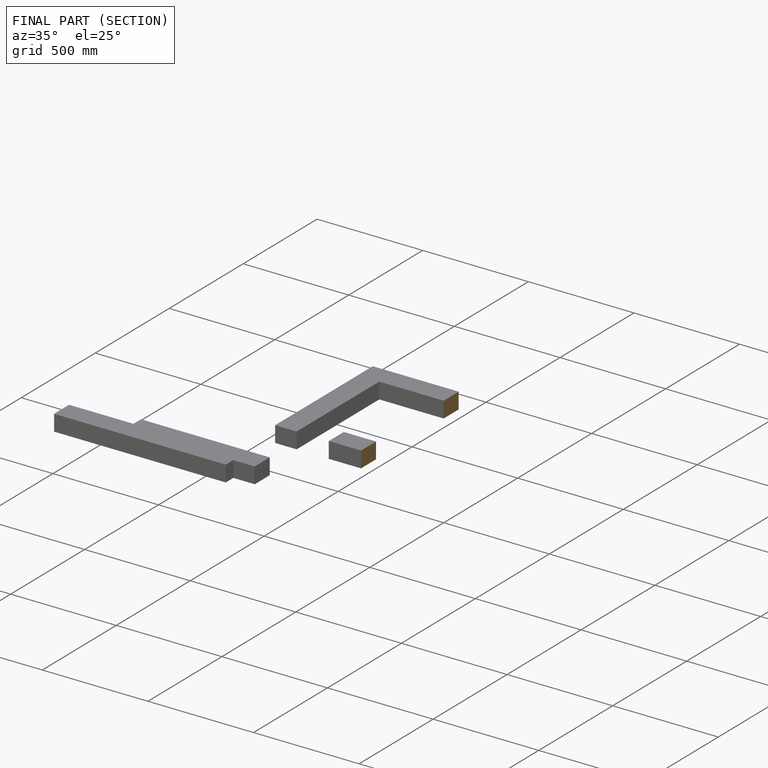
[diagram: finished part — half-section view (interior)]
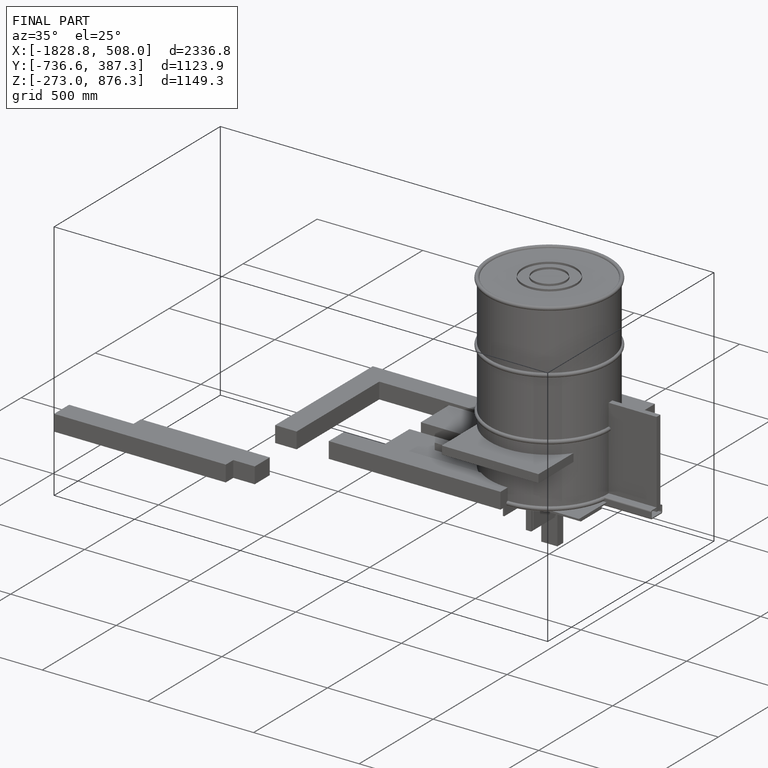
[diagram: finished part — iso view with bounding-box wireframe]
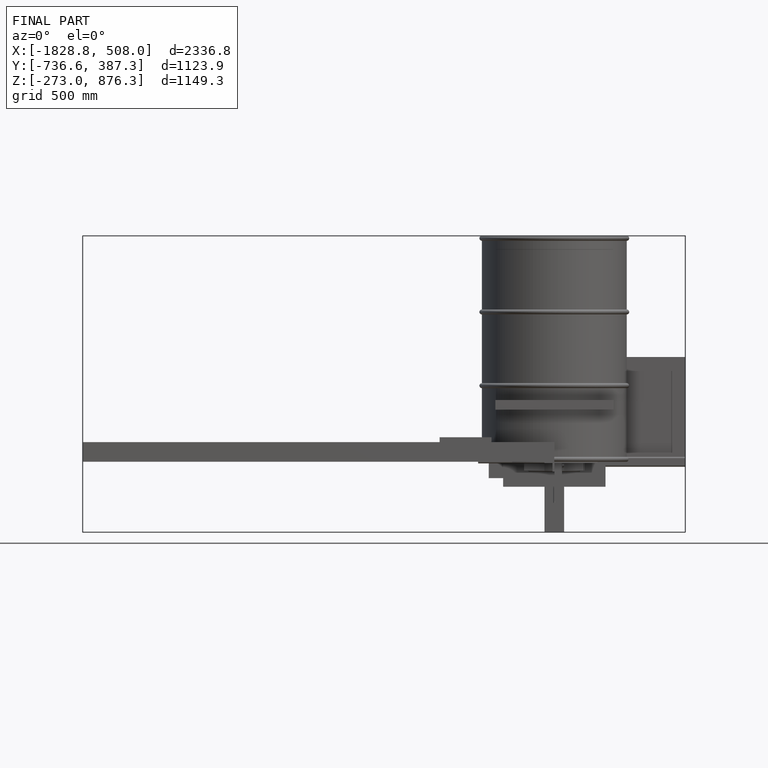
[diagram: finished part — front view with bounding-box wireframe]
